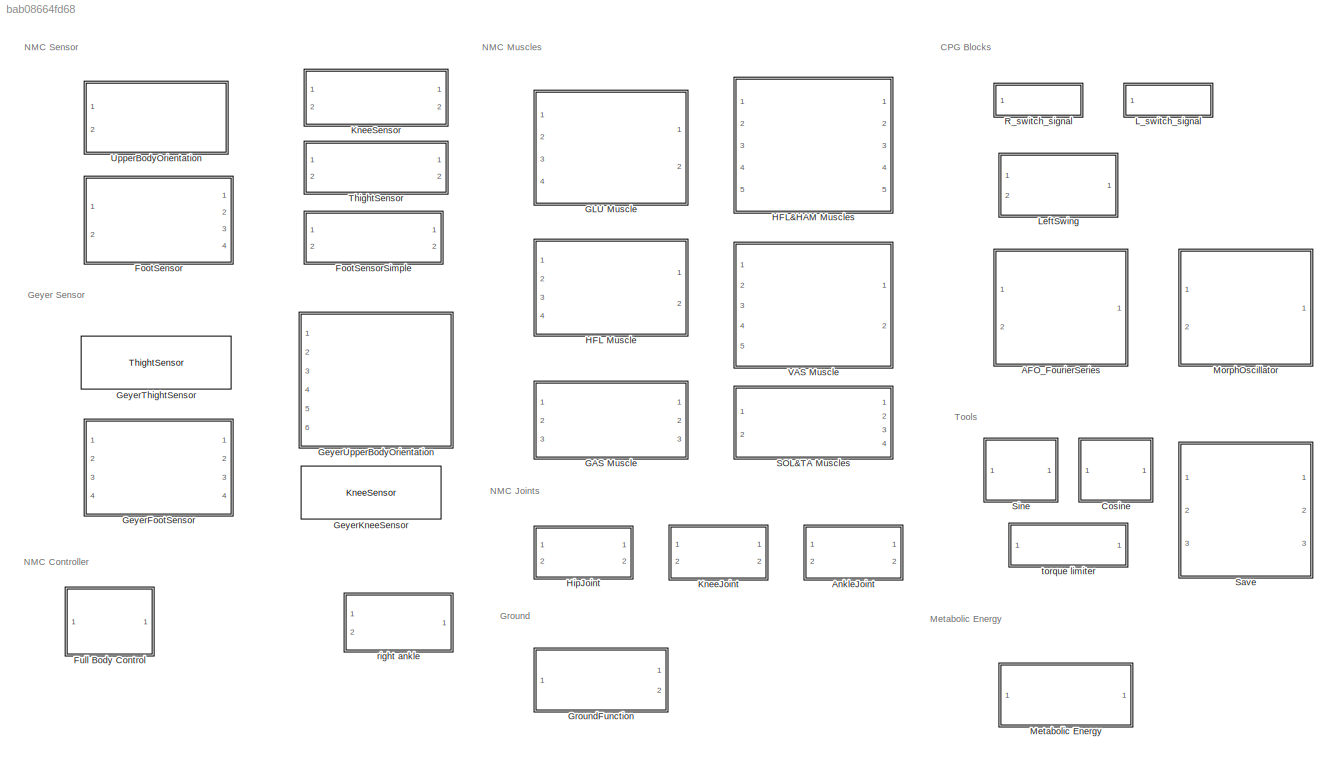
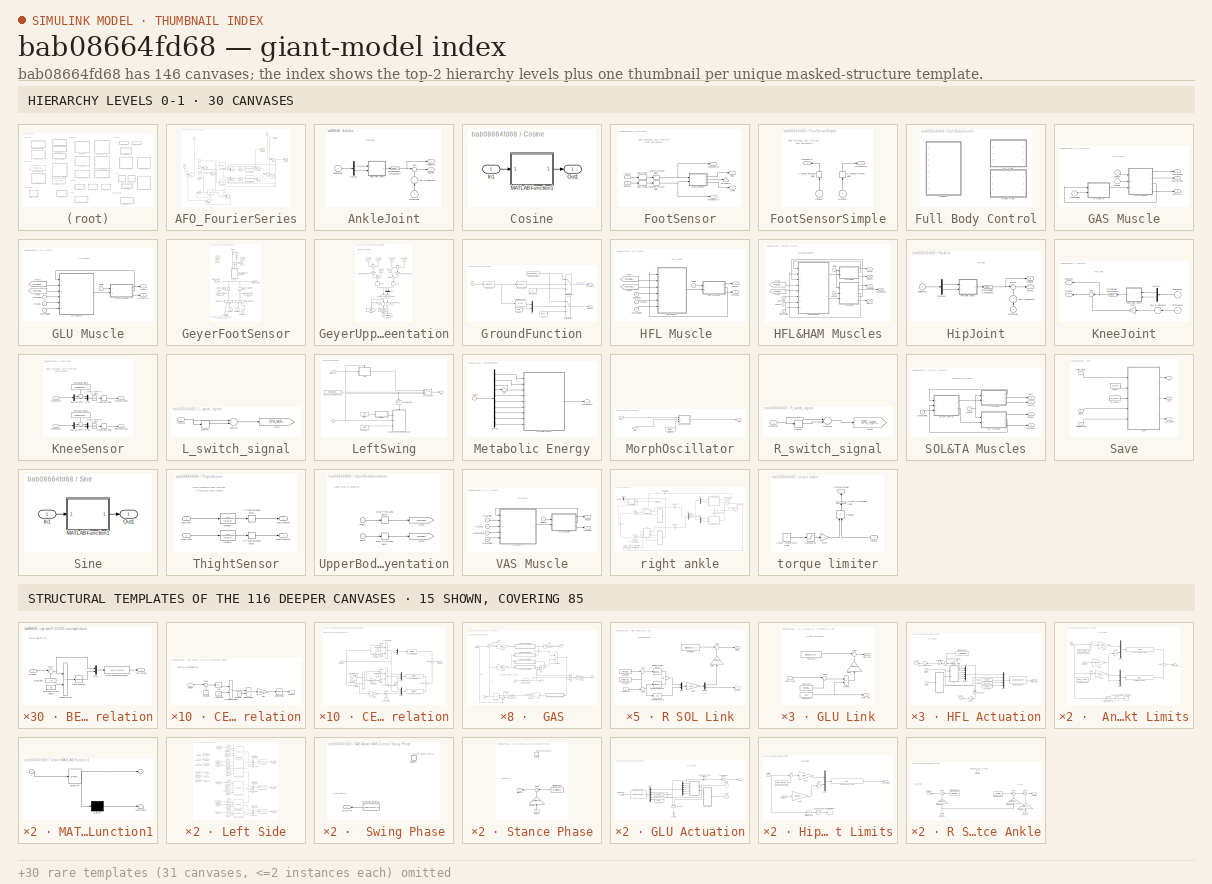
[diagram: thumbnail index - top-2 hierarchy levels (30 canvases) + 15 structural-template representatives of the remaining 116 canvases]
MODEL slx_bab08664fd68
KIND library
CONFIG AbsTol = auto
CONFIG EnableMultiTasking = on
CONFIG FixedStep = auto
CONFIG MaxStep = auto
CONFIG MinStep = auto
CONFIG RelTol = 1e-3
CONFIG SampleTimeConstraint = Unconstrained
CONFIG Solver = VariableStepAuto
CONFIG SolverName = VariableStepAuto
CONFIG StartTime = 0.0
CONFIG StopTime = 10.0
BLOCK [SubSystem] AFO_FourierSeries
  Ports = [2, 1]
  RequestExecContextInheritance = off
  Variant = off
BLOCK [Sum] AFO_FourierSeries/Add
  InputSameDT = off
  OutDataTypeStr = Inherit: Inherit via internal rule
  Ports = [2, 1]
  SaturateOnIntegerOverflow = off
BLOCK [Constant] AFO_FourierSeries/C
  Value = 0:1:AFOFS_DIM-1
BLOCK [Constant] AFO_FourierSeries/C1
BLOCK [Constant] AFO_FourierSeries/C3
  Value = 2*pi
BLOCK [Reference] AFO_FourierSeries/Cosine1  REF=cpg_lib/Cosine  (lib defined in slx_bab08664fd68)
  Ports = [1, 1]
  SourceBlock = cpg_lib/Cosine
  SourceType = SubSystem
BLOCK [Constant] AFO_FourierSeries/K
  Commented = on
  Value = -1
BLOCK [Product] AFO_FourierSeries/Product
  InputSameDT = off
  OutDataTypeStr = Inherit: Inherit via internal rule
  Ports = [2, 1]
  RndMeth = Floor
  SaturateOnIntegerOverflow = off
BLOCK [Product] AFO_FourierSeries/Product1
  InputSameDT = off
  Inputs = 3
  OutDataTypeStr = Inherit: Inherit via internal rule
  Ports = [3, 1]
  RndMeth = Floor
  SaturateOnIntegerOverflow = off
BLOCK [Product] AFO_FourierSeries/Product2
  InputSameDT = off
  Inputs = 3
  OutDataTypeStr = Inherit: Inherit via internal rule
  Ports = [3, 1]
  RndMeth = Floor
  SaturateOnIntegerOverflow = off
BLOCK [Product] AFO_FourierSeries/Product3
  InputSameDT = off
  OutDataTypeStr = Inherit: Inherit via internal rule
  Ports = [2, 1]
  RndMeth = Floor
  SaturateOnIntegerOverflow = off
BLOCK [Product] AFO_FourierSeries/Product4
  InputSameDT = off
  OutDataTypeStr = Inherit: Inherit via internal rule
  Ports = [2, 1]
  RndMeth = Floor
  SaturateOnIntegerOverflow = off
BLOCK [Product] AFO_FourierSeries/Product5
  Commented = on
  InputSameDT = off
  Inputs = 3
  OutDataTypeStr = Inherit: Inherit via internal rule
  Ports = [3, 1]
  RndMeth = Floor
  SaturateOnIntegerOverflow = off
BLOCK [Product] AFO_FourierSeries/Product6
  InputSameDT = off
  OutDataTypeStr = Inherit: Inherit via internal rule
  Ports = [2, 1]
  RndMeth = Floor
  SaturateOnIntegerOverflow = off
BLOCK [Product] AFO_FourierSeries/Product8
  InputSameDT = off
  OutDataTypeStr = Inherit: Inherit via internal rule
  Ports = [2, 1]
  RndMeth = Floor
  SaturateOnIntegerOverflow = off
BLOCK [Scope] AFO_FourierSeries/Scope1
  NumInputPorts = 1
  Ports = [1]
  ScopeSpecificationString = Simulink.scopes.TimeScopeBlockCfg('CurrentConfiguration', extmgr.ConfigurationSet(extmgr.Configuration('Core','General UI',true),extmgr.Configuration('Core','Source UI',true),extmgr.Configuration('Sources','WiredSimulink',true,'DataLoggingVariableName','ScopeData2'),extmgr.Configuration('Visuals','Time Domain',true,'SerializedDisplays',{struct('MinYLimReal','-0.02492','MaxYLimReal','0.03429','YLab...<+1762ch>
BLOCK [Scope] AFO_FourierSeries/Scope2
  NumInputPorts = 1
  Ports = [1]
  ScopeSpecificationString = Simulink.scopes.TimeScopeBlockCfg('CurrentConfiguration', extmgr.ConfigurationSet(extmgr.Configuration('Core','General UI',true),extmgr.Configuration('Core','Source UI',true),extmgr.Configuration('Sources','WiredSimulink',true,'DataLoggingVariableName','ScopeData3'),extmgr.Configuration('Visuals','Time Domain',true,'SerializedDisplays',{struct('MinYLimReal','-0.00257','MaxYLimReal','0.00104','YLab...<+1412ch>
BLOCK [Reference] AFO_FourierSeries/Sine  REF=cpg_lib/Sine  (lib defined in slx_bab08664fd68)
  Ports = [1, 1]
  SourceBlock = cpg_lib/Sine
  SourceType = SubSystem
BLOCK [Reference] AFO_FourierSeries/Sine1  REF=simulink/Lookup
Tables/Sine
  Commented = on
  Ports = [1, 1]
  SourceBlock = simulink/Lookup\nTables/Sine
  SourceType = Sine and Cosine
BLOCK [Sum] AFO_FourierSeries/Subtract
  InputSameDT = off
  Inputs = +-
  OutDataTypeStr = Inherit: Inherit via internal rule
  Ports = [2, 1]
  SaturateOnIntegerOverflow = off
BLOCK [Integrator] AFO_FourierSeries/alpha_c
  Ports = [1, 1]
BLOCK [Integrator] AFO_FourierSeries/beta_c
  Ports = [1, 1]
BLOCK [Sum] AFO_FourierSeries/error
  InputSameDT = off
  Inputs = +-
  OutDataTypeStr = Inherit: Inherit via internal rule
  Ports = [2, 1]
  SaturateOnIntegerOverflow = off
BLOCK [Inport] AFO_FourierSeries/freq
  IconDisplay = Port number
  Port = 2
BLOCK [Constant] AFO_FourierSeries/nu
  Value = 30
BLOCK [Integrator] AFO_FourierSeries/phi
  Ports = [1, 1]
BLOCK [Reference] AFO_FourierSeries/saveInMemory1  REF=cpg_lib/saveInMemory  (lib defined in slx_bab08664fd68)
  Ports = [1, 1]
  SourceBlock = cpg_lib/saveInMemory
  SourceType = SubSystem
BLOCK [Reference] AFO_FourierSeries/saveInMemory2  REF=cpg_lib/saveInMemory  (lib defined in slx_bab08664fd68)
  Ports = [1, 1]
  SourceBlock = cpg_lib/saveInMemory
  SourceType = SubSystem
BLOCK [Outport] AFO_FourierSeries/ylearn
  IconDisplay = Port number
BLOCK [Sum] AFO_FourierSeries/ylearned
  InputSameDT = off
  Inputs = +
  OutDataTypeStr = Inherit: Inherit via internal rule
  Ports = [1, 1]
  SaturateOnIntegerOverflow = off
BLOCK [Inport] AFO_FourierSeries/yteach
  IconDisplay = Port number
BLOCK [SubSystem] AnkleJoint
  Ports = [2, 2]
  RequestExecContextInheritance = off
  Variant = off
BLOCK [SubSystem] AnkleJoint/ Ankle Joint Limits
  Ports = [2, 1]
  RequestExecContextInheritance = off
  Variant = off
BLOCK [Gain] AnkleJoint/ Ankle Joint Limits/Gain1
  Gain = c_jointstop
  OutDataTypeStr = Inherit: Inherit via internal rule
  ParamDataTypeStr = Inherit: Inherit via internal rule
  SaturateOnIntegerOverflow = off
BLOCK [Gain] AnkleJoint/ Ankle Joint Limits/Gain2
  Gain = -1
  OutDataTypeStr = Inherit: Inherit via internal rule
  ParamDataTypeStr = Inherit: Inherit via internal rule
  SaturateOnIntegerOverflow = off
BLOCK [Gain] AnkleJoint/ Ankle Joint Limits/Gain3
  Gain = c_jointstop
  OutDataTypeStr = Inherit: Inherit via internal rule
  ParamDataTypeStr = Inherit: Inherit via internal rule
  SaturateOnIntegerOverflow = off
BLOCK [Gain] AnkleJoint/ Ankle Joint Limits/Gain4
  Gain = 1/w_max_jointstop
  OutDataTypeStr = Inherit: Inherit via internal rule
  ParamDataTypeStr = Inherit: Inherit via internal rule
  SaturateOnIntegerOverflow = off
BLOCK [Reference] AnkleJoint/ Ankle Joint Limits/Limit Ankle Range  REF=simulink/Logic and Bit
Operations/Interval Test
  Ports = [1, 1]
  SourceBlock = simulink/Logic and Bit\nOperations/Interval Test
  SourceType = Interval Test
BLOCK [Logic] AnkleJoint/ Ankle Joint Limits/Logical Operator3
  AllPortsSameDT = off
  Operator = NOT
  OutDataTypeStr = boolean
  Ports = [1, 1]
BLOCK [Outport] AnkleJoint/ Ankle Joint Limits/M_stop [Nm]
  IconDisplay = Port number
BLOCK [Mux] AnkleJoint/ Ankle Joint Limits/Mux1
  DisplayOption = bar
  Inputs = 2
  Ports = [2, 1]
BLOCK [Mux] AnkleJoint/ Ankle Joint Limits/Mux3
  DisplayOption = bar
  Inputs = 2
  Ports = [2, 1]
BLOCK [Fcn] AnkleJoint/ Ankle Joint Limits/Overextension Torque
  Expr = - u(1)  *  (1-u(2)) * (u(2)<1) * (u(1)>0)
BLOCK [Fcn] AnkleJoint/ Ankle Joint Limits/Overflexion Torque
  Expr = - u(1)  *  (1-u(2)) * (u(2)<1) * (u(1)<0)
BLOCK [Stop] AnkleJoint/ Ankle Joint Limits/Stop Simulation1
BLOCK [Sum] AnkleJoint/ Ankle Joint Limits/Sum
  IconShape = round
  InputSameDT = off
  Inputs = |+-
  OutDataTypeStr = Inherit: Inherit via internal rule
  Ports = [2, 1]
  SaturateOnIntegerOverflow = off
BLOCK [Sum] AnkleJoint/ Ankle Joint Limits/Sum1
  IconShape = round
  InputSameDT = off
  Inputs = |+-
  OutDataTypeStr = Inherit: Inherit via internal rule
  Ports = [2, 1]
  SaturateOnIntegerOverflow = off
BLOCK [Sum] AnkleJoint/ Ankle Joint Limits/Sum2
  IconShape = round
  InputSameDT = off
  OutDataTypeStr = Inherit: Inherit via internal rule
  Ports = [2, 1]
  SaturateOnIntegerOverflow = off
BLOCK [Inport] AnkleJoint/ Ankle Joint Limits/dphi [rad//s]
  IconDisplay = Port number
  Port = 2
BLOCK [Constant] AnkleJoint/ Ankle Joint Limits/overextension angle
  Value = phi12_UpLimit
BLOCK [Constant] AnkleJoint/ Ankle Joint Limits/overflexion angle
  Value = phi12_LowLimit
BLOCK [Inport] AnkleJoint/ Ankle Joint Limits/phi [rad]
  IconDisplay = Port number
BLOCK [Outport] AnkleJoint/AnkleStop
  IconDisplay = Port number
  Port = 2
BLOCK [Demux] AnkleJoint/Demux
  DisplayOption = bar
  Outputs = 2
  Ports = [1, 2]
BLOCK [Reference] AnkleJoint/GotoDisabler_Component1  REF=nmc/GotoDisabler_Component  (lib defined in slx_a1408701ce5b)
  Ports = [1, 1]
  SourceBlock = nmc/GotoDisabler_Component
BLOCK [Inport] AnkleJoint/PreTauAnkle
  IconDisplay = Port number
  Port = 2
BLOCK [Sum] AnkleJoint/Sum
  IconShape = round
  InputSameDT = off
  Inputs = |++
  OutDataTypeStr = Inherit: Inherit via internal rule
  Ports = [2, 1]
  SaturateOnIntegerOverflow = off
BLOCK [Sum] AnkleJoint/Sum of Elements
  InputSameDT = off
  Inputs = +
  OutDataTypeStr = Inherit: Inherit via internal rule
  Ports = [1, 1]
  SaturateOnIntegerOverflow = off
BLOCK [Outport] AnkleJoint/TauAnkle
  IconDisplay = Port number
BLOCK [Inport] AnkleJoint/phidphiAnkle
  IconDisplay = Port number
BLOCK [SubSystem] Cosine
  Ports = [1, 1]
  RequestExecContextInheritance = off
  Variant = off
BLOCK [Inport] Cosine/In1
  IconDisplay = Port number
BLOCK [SubSystem] Cosine/MATLAB Function1
  ErrorFcn = Stateflow.Translate.translate
  PermitHierarchicalResolution = ExplicitOnly
  Ports = [1, 1]
  RequestExecContextInheritance = off
  SFBlockType = MATLAB Function
  TreatAsAtomicUnit = on
  Variant = off
BLOCK [Demux] Cosine/MATLAB Function1/ Demux 
  Outputs = 1
  Ports = [1, 1]
BLOCK [S-Function] Cosine/MATLAB Function1/ SFunction 
  EnableBusSupport = off
  FunctionName = sf_sfun
  PortCounts = [1 2]
  Ports = [1, 2]
  SFcnIsStateOwnerBlock = off
  SFunctionDeploymentMode = off
  Tag = Stateflow S-Function cpg_lib 2
BLOCK [Terminator] Cosine/MATLAB Function1/ Terminator 
BLOCK [Inport] Cosine/MATLAB Function1/t
  IconDisplay = Port number
BLOCK [Outport] Cosine/MATLAB Function1/y
  IconDisplay = Port number
BLOCK [Outport] Cosine/Out1
  IconDisplay = Port number
BLOCK [SubSystem] FootSensor
  Ports = [2, 4]
  RequestExecContextInheritance = off
  Variant = off
BLOCK [DataTypeConversion] FootSensor/Data Type1
  OutDataTypeStr = double
  RndMeth = Floor
  SaturateOnIntegerOverflow = off
BLOCK [DataTypeConversion] FootSensor/Data Type3
  OutDataTypeStr = double
  RndMeth = Floor
  SaturateOnIntegerOverflow = off
BLOCK [TransportDelay] FootSensor/L Stance afferent delay
  DelayTime = MidDelay
  Ports = [1, 1]
BLOCK [Inport] FootSensor/LStance
  IconDisplay = Port number
BLOCK [Outport] FootSensor/LonR
  IconDisplay = Port number
  Port = 4
BLOCK [Outport] FootSensor/LstanceOut
  IconDisplay = Port number
BLOCK [TransportDelay] FootSensor/R Stance afferent delay
  DelayTime = MidDelay
  Ports = [1, 1]
BLOCK [Inport] FootSensor/RStance
  IconDisplay = Port number
  Port = 2
BLOCK [Outport] FootSensor/RonL
  IconDisplay = Port number
  Port = 3
BLOCK [Outport] FootSensor/RstanceOut
  IconDisplay = Port number
  Port = 2
BLOCK [Terminator] FootSensor/Terminator
BLOCK [SubSystem] FootSensor/cross_infulence
  Ports = [2, 3]
  RequestExecContextInheritance = off
  Variant = off
BLOCK [HitCross] FootSensor/cross_infulence/DSup ends
  HitCrossingDirection = falling
  HitCrossingOffset = 0.5
  Ports = [1, 1]
  ZeroCross = off
BLOCK [DataTypeConversion] FootSensor/cross_infulence/Data Type
  OutDataTypeStr = double
  RndMeth = Floor
  SaturateOnIntegerOverflow = off
BLOCK [DataTypeConversion] FootSensor/cross_infulence/Data Type1
  OutDataTypeStr = double
  RndMeth = Floor
  SaturateOnIntegerOverflow = off
BLOCK [DataTypeConversion] FootSensor/cross_infulence/Data Type2
  OutDataTypeStr = double
  RndMeth = Floor
  SaturateOnIntegerOverflow = off
BLOCK [DataTypeConversion] FootSensor/cross_infulence/Data Type3
  OutDataTypeStr = double
  RndMeth = Floor
  SaturateOnIntegerOverflow = off
BLOCK [Logic] FootSensor/cross_infulence/Double Support?
  AllPortsSameDT = off
  Ports = [2, 1]
BLOCK [Logic] FootSensor/cross_infulence/Double Support?1
  AllPortsSameDT = off
  Ports = [2, 1]
BLOCK [Logic] FootSensor/cross_infulence/Double Support?4
  AllPortsSameDT = off
  Ports = [2, 1]
BLOCK [Outport] FootSensor/cross_infulence/Flight
  IconDisplay = Port number
  OutDataTypeStr = double
  Port = 2
BLOCK [Logic] FootSensor/cross_infulence/Flight?
  AllPortsSameDT = off
  Operator = NOR
  Ports = [2, 1]
BLOCK [HitCross] FootSensor/cross_infulence/LLeg starts DSup
  HitCrossingDirection = rising
  HitCrossingOffset = 0.5
  Ports = [1, 1]
  ZeroCross = off
BLOCK [Inport] FootSensor/cross_infulence/LStance
  IconDisplay = Port number
  OutDataTypeStr = double
BLOCK [Outport] FootSensor/cross_infulence/LonR
  IconDisplay = Port number
  OutDataTypeStr = double
  Port = 3
BLOCK [Memory] FootSensor/cross_infulence/Memory
BLOCK [Memory] FootSensor/cross_infulence/Memory3
BLOCK [HitCross] FootSensor/cross_infulence/RLeg starts DSup
  HitCrossingDirection = rising
  HitCrossingOffset = 0.5
  Ports = [1, 1]
  ZeroCross = off
BLOCK [Inport] FootSensor/cross_infulence/RStance
  IconDisplay = Port number
  OutDataTypeStr = double
  Port = 2
BLOCK [Outport] FootSensor/cross_infulence/RonL
  IconDisplay = Port number
  OutDataTypeStr = double
BLOCK [Reference] FootSensor/cross_infulence/S-R Flip-Flop  REF=simulink_extras/Flip Flops/S-R
Flip-Flop
  Ports = [2, 2]
  SourceBlock = simulink_extras/Flip Flops/S-R\nFlip-Flop
  SourceType = SRFlipFlop
BLOCK [Reference] FootSensor/cross_infulence/S-R Flip-Flop1  REF=simulink_extras/Flip Flops/S-R
Flip-Flop
  Ports = [2, 2]
  SourceBlock = simulink_extras/Flip Flops/S-R\nFlip-Flop
  SourceType = SRFlipFlop
BLOCK [Terminator] FootSensor/cross_infulence/Terminator1
BLOCK [Terminator] FootSensor/cross_infulence/Terminator2
BLOCK [SubSystem] FootSensorSimple
  Ports = [2, 2]
  RequestExecContextInheritance = off
  Variant = off
BLOCK [TransportDelay] FootSensorSimple/L Stance afferent delay
  DelayTime = MidDelay
  Ports = [1, 1]
BLOCK [Inport] FootSensorSimple/LStance
  IconDisplay = Port number
BLOCK [Outport] FootSensorSimple/LstanceOut
  IconDisplay = Port number
BLOCK [TransportDelay] FootSensorSimple/R Stance afferent delay
  DelayTime = MidDelay
  Ports = [1, 1]
BLOCK [Inport] FootSensorSimple/RStance
  IconDisplay = Port number
  Port = 2
BLOCK [Outport] FootSensorSimple/RstanceOut
  IconDisplay = Port number
  Port = 2
BLOCK [SubSystem] Full Body Control
  Ports = []
  RequestExecContextInheritance = off
  Variant = off
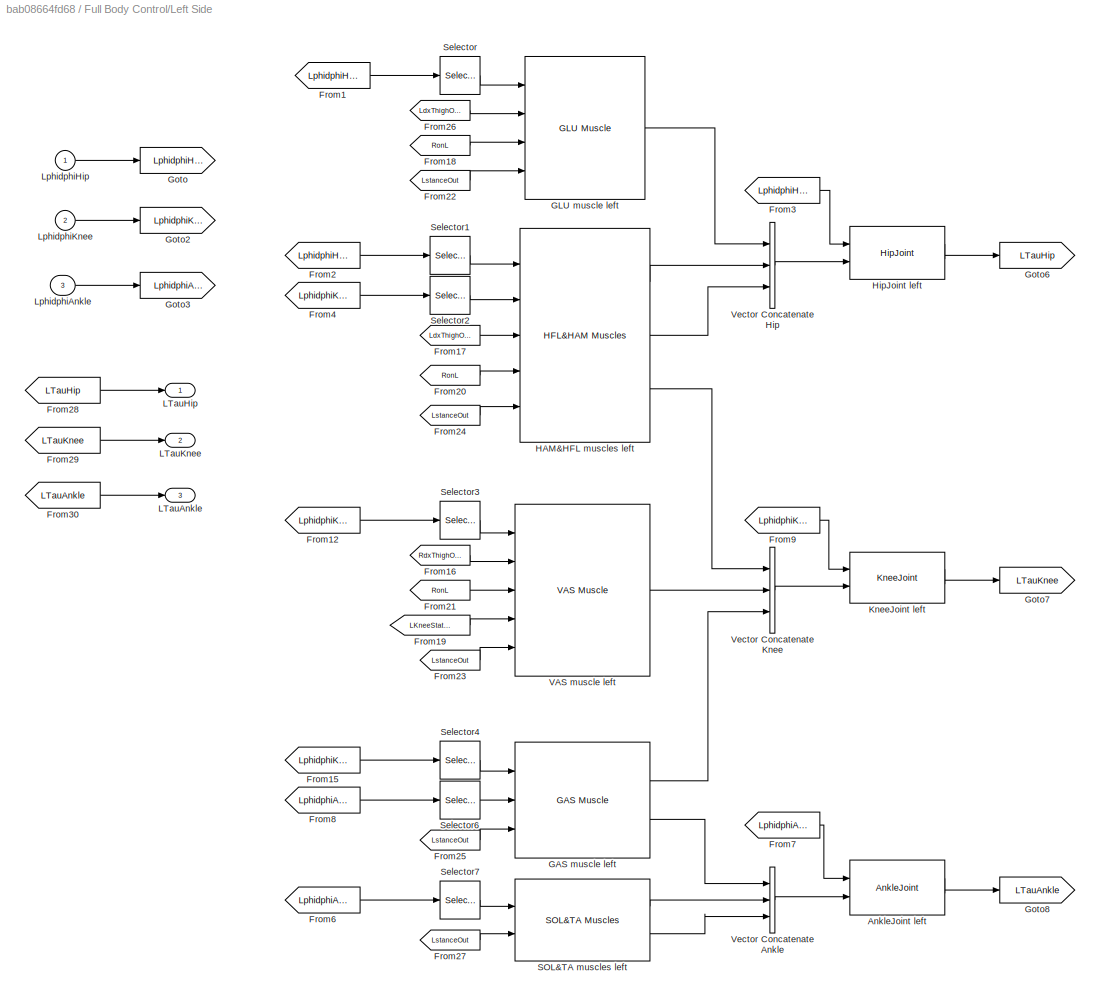
BLOCK [SubSystem] Full Body Control/Left Side
  Ports = [3, 3]
  RequestExecContextInheritance = off
  Variant = off
BLOCK [Reference] Full Body Control/Left Side/AnkleJoint left  REF=cpg_lib/AnkleJoint  (lib defined in slx_bab08664fd68)
  Ports = [2, 2]
  SourceBlock = cpg_lib/AnkleJoint
  SourceType = SubSystem
BLOCK [From] Full Body Control/Left Side/From1
  CloseFcn = tagdialog Close
  GotoTag = LphidphiHip
BLOCK [From] Full Body Control/Left Side/From12
  CloseFcn = tagdialog Close
  GotoTag = LphidphiKnee
BLOCK [From] Full Body Control/Left Side/From15
  CloseFcn = tagdialog Close
  GotoTag = LphidphiKnee
BLOCK [From] Full Body Control/Left Side/From16
  GotoTag = RdxThighOut
  TagVisibility = global
BLOCK [From] Full Body Control/Left Side/From17
  GotoTag = LdxThighOut
  TagVisibility = global
BLOCK [From] Full Body Control/Left Side/From18
  GotoTag = RonL
  TagVisibility = global
BLOCK [From] Full Body Control/Left Side/From19
  GotoTag = LKneeStateOut
  TagVisibility = global
BLOCK [From] Full Body Control/Left Side/From2
  CloseFcn = tagdialog Close
  GotoTag = LphidphiHip
BLOCK [From] Full Body Control/Left Side/From20
  GotoTag = RonL
  TagVisibility = global
BLOCK [From] Full Body Control/Left Side/From21
  GotoTag = RonL
  TagVisibility = global
BLOCK [From] Full Body Control/Left Side/From22
  GotoTag = LstanceOut
  TagVisibility = global
BLOCK [From] Full Body Control/Left Side/From23
  GotoTag = LstanceOut
  TagVisibility = global
BLOCK [From] Full Body Control/Left Side/From24
  GotoTag = LstanceOut
  TagVisibility = global
BLOCK [From] Full Body Control/Left Side/From25
  GotoTag = LstanceOut
  TagVisibility = global
BLOCK [From] Full Body Control/Left Side/From26
  GotoTag = LdxThighOut
  TagVisibility = global
BLOCK [From] Full Body Control/Left Side/From27
  GotoTag = LstanceOut
  TagVisibility = global
BLOCK [From] Full Body Control/Left Side/From28
  CloseFcn = tagdialog Close
  GotoTag = LTauHip
BLOCK [From] Full Body Control/Left Side/From29
  CloseFcn = tagdialog Close
  GotoTag = LTauKnee
BLOCK [From] Full Body Control/Left Side/From3
  CloseFcn = tagdialog Close
  GotoTag = LphidphiHip
BLOCK [From] Full Body Control/Left Side/From30
  CloseFcn = tagdialog Close
  GotoTag = LTauAnkle
BLOCK [From] Full Body Control/Left Side/From4
  CloseFcn = tagdialog Close
  GotoTag = LphidphiKnee
BLOCK [From] Full Body Control/Left Side/From6
  CloseFcn = tagdialog Close
  GotoTag = LphidphiAnkle
BLOCK [From] Full Body Control/Left Side/From7
  CloseFcn = tagdialog Close
  GotoTag = LphidphiAnkle
BLOCK [From] Full Body Control/Left Side/From8
  CloseFcn = tagdialog Close
  GotoTag = LphidphiAnkle
BLOCK [From] Full Body Control/Left Side/From9
  CloseFcn = tagdialog Close
  GotoTag = LphidphiKnee
BLOCK [Reference] Full Body Control/Left Side/GAS muscle left  REF=cpg_lib/GAS Muscle  (lib defined in slx_bab08664fd68)
  Ports = [3, 2]
  SourceBlock = cpg_lib/GAS Muscle
  SourceType = SubSystem
BLOCK [Reference] Full Body Control/Left Side/GLU muscle left  REF=cpg_lib/GLU Muscle  (lib defined in slx_bab08664fd68)
  Ports = [4, 1]
  SourceBlock = cpg_lib/GLU Muscle
  SourceType = SubSystem
BLOCK [Goto] Full Body Control/Left Side/Goto
  GotoTag = LphidphiHip
BLOCK [Goto] Full Body Control/Left Side/Goto2
  GotoTag = LphidphiKnee
BLOCK [Goto] Full Body Control/Left Side/Goto3
  GotoTag = LphidphiAnkle
BLOCK [Goto] Full Body Control/Left Side/Goto6
  GotoTag = LTauHip
BLOCK [Goto] Full Body Control/Left Side/Goto7
  GotoTag = LTauKnee
BLOCK [Goto] Full Body Control/Left Side/Goto8
  GotoTag = LTauAnkle
BLOCK [Reference] Full Body Control/Left Side/HAM&HFL muscles left  REF=cpg_lib/HFL&HAM Muscles  (lib defined in slx_bab08664fd68)
  Ports = [5, 3]
  SourceBlock = cpg_lib/HFL&HAM Muscles
  SourceType = SubSystem
BLOCK [Reference] Full Body Control/Left Side/HipJoint left  REF=cpg_lib/HipJoint  (lib defined in slx_bab08664fd68)
  Ports = [2, 2]
  SourceBlock = cpg_lib/HipJoint
  SourceType = SubSystem
BLOCK [Reference] Full Body Control/Left Side/KneeJoint left  REF=cpg_lib/KneeJoint  (lib defined in slx_bab08664fd68)
  Ports = [2, 2]
  SourceBlock = cpg_lib/KneeJoint
  SourceType = SubSystem
BLOCK [Outport] Full Body Control/Left Side/LTauAnkle
  IconDisplay = Port number
  Port = 3
BLOCK [Outport] Full Body Control/Left Side/LTauHip
  IconDisplay = Port number
BLOCK [Outport] Full Body Control/Left Side/LTauKnee
  IconDisplay = Port number
  Port = 2
BLOCK [Inport] Full Body Control/Left Side/LphidphiAnkle
  IconDisplay = Port number
  Port = 3
BLOCK [Inport] Full Body Control/Left Side/LphidphiHip
  IconDisplay = Port number
BLOCK [Inport] Full Body Control/Left Side/LphidphiKnee
  IconDisplay = Port number
  Port = 2
BLOCK [Reference] Full Body Control/Left Side/SOL&TA muscles left  REF=cpg_lib/SOL&TA Muscles  (lib defined in slx_bab08664fd68)
  Ports = [2, 2]
  SourceBlock = cpg_lib/SOL&TA Muscles
  SourceType = SubSystem
BLOCK [Selector] Full Body Control/Left Side/Selector
  IndexOptions = Index vector (dialog)
  Indices = [1 ]
  InputPortWidth = 2
  OutputSizes = 1
  Ports = [1, 1]
BLOCK [Selector] Full Body Control/Left Side/Selector1
  IndexOptions = Index vector (dialog)
  Indices = [1 ]
  InputPortWidth = 2
  OutputSizes = 1
  Ports = [1, 1]
BLOCK [Selector] Full Body Control/Left Side/Selector2
  IndexOptions = Index vector (dialog)
  Indices = [1 ]
  InputPortWidth = 2
  OutputSizes = 1
  Ports = [1, 1]
BLOCK [Selector] Full Body Control/Left Side/Selector3
  IndexOptions = Index vector (dialog)
  Indices = [1 ]
  InputPortWidth = 2
  OutputSizes = 1
  Ports = [1, 1]
BLOCK [Selector] Full Body Control/Left Side/Selector4
  IndexOptions = Index vector (dialog)
  Indices = [1 ]
  InputPortWidth = 2
  OutputSizes = 1
  Ports = [1, 1]
BLOCK [Selector] Full Body Control/Left Side/Selector6
  IndexOptions = Index vector (dialog)
  Indices = [1 ]
  InputPortWidth = 2
  OutputSizes = 1
  Ports = [1, 1]
BLOCK [Selector] Full Body Control/Left Side/Selector7
  IndexOptions = Index vector (dialog)
  Indices = [1 ]
  InputPortWidth = 2
  OutputSizes = 1
  Ports = [1, 1]
BLOCK [Reference] Full Body Control/Left Side/VAS muscle left  REF=cpg_lib/VAS Muscle  (lib defined in slx_bab08664fd68)
  Ports = [5, 1]
  SourceBlock = cpg_lib/VAS Muscle
  SourceType = SubSystem
BLOCK [Concatenate] Full Body Control/Left Side/Vector ConcatenateAnkle
  NumInputs = 3
  Ports = [3, 1]
BLOCK [Concatenate] Full Body Control/Left Side/Vector ConcatenateHip
  NumInputs = 3
  Ports = [3, 1]
BLOCK [Concatenate] Full Body Control/Left Side/Vector ConcatenateKnee
  NumInputs = 3
  Ports = [3, 1]
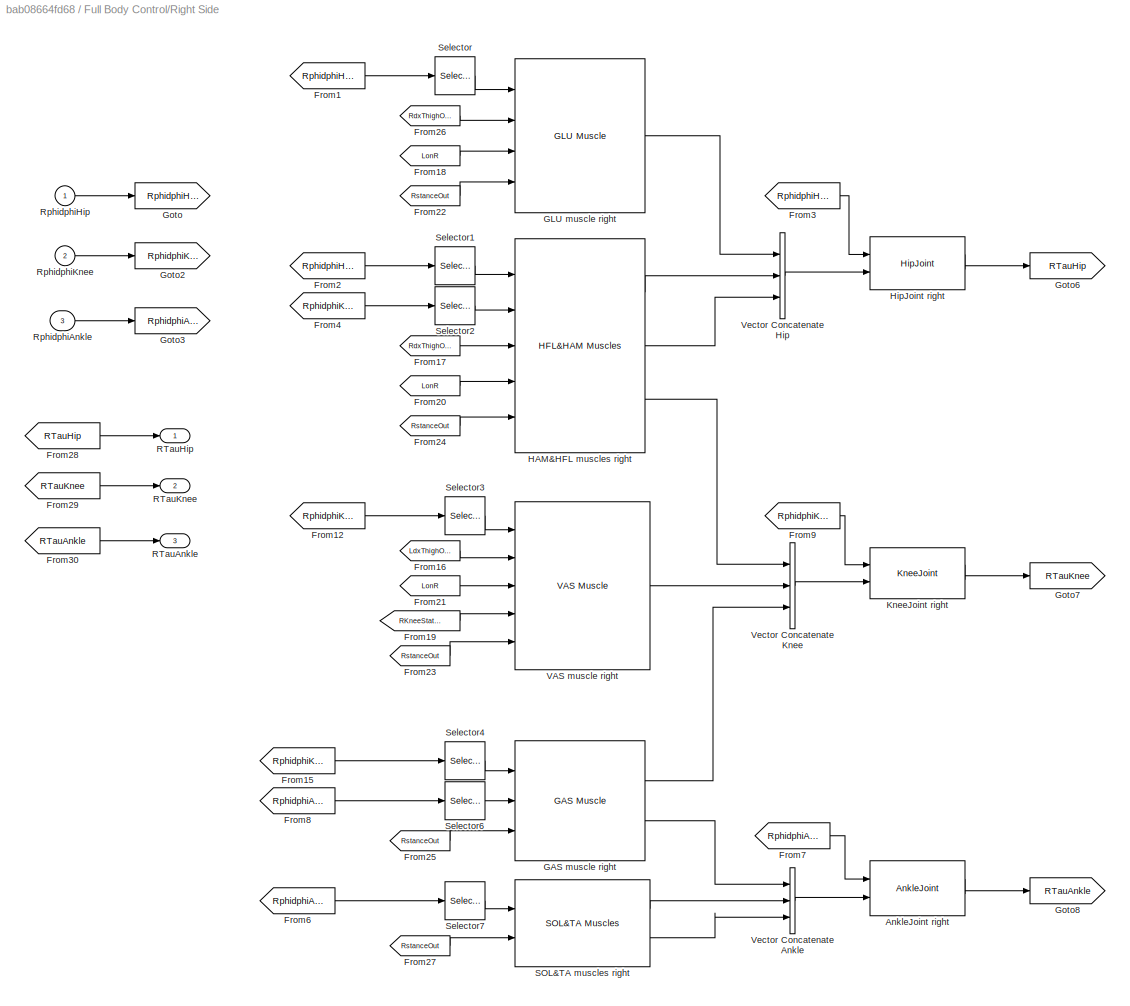
BLOCK [SubSystem] Full Body Control/Right Side
  Ports = [3, 3]
  RequestExecContextInheritance = off
  Variant = off
BLOCK [Reference] Full Body Control/Right Side/AnkleJoint right  REF=cpg_lib/AnkleJoint  (lib defined in slx_bab08664fd68)
  Ports = [2, 2]
  SourceBlock = cpg_lib/AnkleJoint
  SourceType = SubSystem
BLOCK [From] Full Body Control/Right Side/From1
  CloseFcn = tagdialog Close
  GotoTag = RphidphiHip
BLOCK [From] Full Body Control/Right Side/From12
  CloseFcn = tagdialog Close
  GotoTag = RphidphiKnee
BLOCK [From] Full Body Control/Right Side/From15
  CloseFcn = tagdialog Close
  GotoTag = RphidphiKnee
BLOCK [From] Full Body Control/Right Side/From16
  GotoTag = LdxThighOut
  TagVisibility = global
BLOCK [From] Full Body Control/Right Side/From17
  GotoTag = RdxThighOut
  TagVisibility = global
BLOCK [From] Full Body Control/Right Side/From18
  GotoTag = LonR
  TagVisibility = global
BLOCK [From] Full Body Control/Right Side/From19
  GotoTag = RKneeStateOut
  TagVisibility = global
BLOCK [From] Full Body Control/Right Side/From2
  CloseFcn = tagdialog Close
  GotoTag = RphidphiHip
BLOCK [From] Full Body Control/Right Side/From20
  GotoTag = LonR
  TagVisibility = global
BLOCK [From] Full Body Control/Right Side/From21
  GotoTag = LonR
  TagVisibility = global
BLOCK [From] Full Body Control/Right Side/From22
  GotoTag = RstanceOut
  TagVisibility = global
BLOCK [From] Full Body Control/Right Side/From23
  GotoTag = RstanceOut
  TagVisibility = global
BLOCK [From] Full Body Control/Right Side/From24
  GotoTag = RstanceOut
  TagVisibility = global
BLOCK [From] Full Body Control/Right Side/From25
  GotoTag = RstanceOut
  TagVisibility = global
BLOCK [From] Full Body Control/Right Side/From26
  GotoTag = RdxThighOut
  TagVisibility = global
BLOCK [From] Full Body Control/Right Side/From27
  GotoTag = RstanceOut
  TagVisibility = global
BLOCK [From] Full Body Control/Right Side/From28
  CloseFcn = tagdialog Close
  GotoTag = RTauHip
BLOCK [From] Full Body Control/Right Side/From29
  CloseFcn = tagdialog Close
  GotoTag = RTauKnee
BLOCK [From] Full Body Control/Right Side/From3
  CloseFcn = tagdialog Close
  GotoTag = RphidphiHip
BLOCK [From] Full Body Control/Right Side/From30
  CloseFcn = tagdialog Close
  GotoTag = RTauAnkle
BLOCK [From] Full Body Control/Right Side/From4
  CloseFcn = tagdialog Close
  GotoTag = RphidphiKnee
BLOCK [From] Full Body Control/Right Side/From6
  CloseFcn = tagdialog Close
  GotoTag = RphidphiAnkle
BLOCK [From] Full Body Control/Right Side/From7
  CloseFcn = tagdialog Close
  GotoTag = RphidphiAnkle
BLOCK [From] Full Body Control/Right Side/From8
  CloseFcn = tagdialog Close
  GotoTag = RphidphiAnkle
BLOCK [From] Full Body Control/Right Side/From9
  CloseFcn = tagdialog Close
  GotoTag = RphidphiKnee
BLOCK [Reference] Full Body Control/Right Side/GAS muscle right  REF=cpg_lib/GAS Muscle  (lib defined in slx_bab08664fd68)
  Ports = [3, 2]
  SourceBlock = cpg_lib/GAS Muscle
  SourceType = SubSystem
BLOCK [Reference] Full Body Control/Right Side/GLU muscle right  REF=cpg_lib/GLU Muscle  (lib defined in slx_bab08664fd68)
  Ports = [4, 1]
  SourceBlock = cpg_lib/GLU Muscle
  SourceType = SubSystem
BLOCK [Goto] Full Body Control/Right Side/Goto
  GotoTag = RphidphiHip
BLOCK [Goto] Full Body Control/Right Side/Goto2
  GotoTag = RphidphiKnee
BLOCK [Goto] Full Body Control/Right Side/Goto3
  GotoTag = RphidphiAnkle
BLOCK [Goto] Full Body Control/Right Side/Goto6
  GotoTag = RTauHip
BLOCK [Goto] Full Body Control/Right Side/Goto7
  GotoTag = RTauKnee
BLOCK [Goto] Full Body Control/Right Side/Goto8
  GotoTag = RTauAnkle
BLOCK [Reference] Full Body Control/Right Side/HAM&HFL muscles right  REF=cpg_lib/HFL&HAM Muscles  (lib defined in slx_bab08664fd68)
  Ports = [5, 3]
  SourceBlock = cpg_lib/HFL&HAM Muscles
  SourceType = SubSystem
BLOCK [Reference] Full Body Control/Right Side/HipJoint right  REF=cpg_lib/HipJoint  (lib defined in slx_bab08664fd68)
  Ports = [2, 2]
  SourceBlock = cpg_lib/HipJoint
  SourceType = SubSystem
BLOCK [Reference] Full Body Control/Right Side/KneeJoint right  REF=cpg_lib/KneeJoint  (lib defined in slx_bab08664fd68)
  Ports = [2, 2]
  SourceBlock = cpg_lib/KneeJoint
  SourceType = SubSystem
BLOCK [Outport] Full Body Control/Right Side/RTauAnkle
  IconDisplay = Port number
  Port = 3
BLOCK [Outport] Full Body Control/Right Side/RTauHip
  IconDisplay = Port number
BLOCK [Outport] Full Body Control/Right Side/RTauKnee
  IconDisplay = Port number
  Port = 2
BLOCK [Inport] Full Body Control/Right Side/RphidphiAnkle
  IconDisplay = Port number
  Port = 3
BLOCK [Inport] Full Body Control/Right Side/RphidphiHip
  IconDisplay = Port number
BLOCK [Inport] Full Body Control/Right Side/RphidphiKnee
  IconDisplay = Port number
  Port = 2
BLOCK [Reference] Full Body Control/Right Side/SOL&TA muscles right  REF=cpg_lib/SOL&TA Muscles  (lib defined in slx_bab08664fd68)
  Ports = [2, 2]
  SourceBlock = cpg_lib/SOL&TA Muscles
  SourceType = SubSystem
BLOCK [Selector] Full Body Control/Right Side/Selector
  IndexOptions = Index vector (dialog)
  Indices = [1 ]
  InputPortWidth = 2
  OutputSizes = 1
  Ports = [1, 1]
BLOCK [Selector] Full Body Control/Right Side/Selector1
  IndexOptions = Index vector (dialog)
  Indices = [1 ]
  InputPortWidth = 2
  OutputSizes = 1
  Ports = [1, 1]
BLOCK [Selector] Full Body Control/Right Side/Selector2
  IndexOptions = Index vector (dialog)
  Indices = [1 ]
  InputPortWidth = 2
  OutputSizes = 1
  Ports = [1, 1]
BLOCK [Selector] Full Body Control/Right Side/Selector3
  IndexOptions = Index vector (dialog)
  Indices = [1 ]
  InputPortWidth = 2
  OutputSizes = 1
  Ports = [1, 1]
BLOCK [Selector] Full Body Control/Right Side/Selector4
  IndexOptions = Index vector (dialog)
  Indices = [1 ]
  InputPortWidth = 2
  OutputSizes = 1
  Ports = [1, 1]
BLOCK [Selector] Full Body Control/Right Side/Selector6
  IndexOptions = Index vector (dialog)
  Indices = [1 ]
  InputPortWidth = 2
  OutputSizes = 1
  Ports = [1, 1]
BLOCK [Selector] Full Body Control/Right Side/Selector7
  IndexOptions = Index vector (dialog)
  Indices = [1 ]
  InputPortWidth = 2
  OutputSizes = 1
  Ports = [1, 1]
BLOCK [Reference] Full Body Control/Right Side/VAS muscle right  REF=cpg_lib/VAS Muscle  (lib defined in slx_bab08664fd68)
  Ports = [5, 1]
  SourceBlock = cpg_lib/VAS Muscle
  SourceType = SubSystem
BLOCK [Concatenate] Full Body Control/Right Side/Vector ConcatenateAnkle
  NumInputs = 3
  Ports = [3, 1]
BLOCK [Concatenate] Full Body Control/Right Side/Vector ConcatenateHip
  NumInputs = 3
  Ports = [3, 1]
BLOCK [Concatenate] Full Body Control/Right Side/Vector ConcatenateKnee
  NumInputs = 3
  Ports = [3, 1]
BLOCK [SubSystem] Full Body Control/Sensors
  Ports = [8]
  RequestExecContextInheritance = off
  Variant = off
BLOCK [Reference] Full Body Control/Sensors/FootSensor  REF=cpg_lib/FootSensor  (lib defined in slx_bab08664fd68)
  Ports = [2, 4]
  SourceBlock = cpg_lib/FootSensor
  SourceType = SubSystem
BLOCK [Goto] Full Body Control/Sensors/Goto10
  GotoTag = RonL
  TagVisibility = global
BLOCK [Goto] Full Body Control/Sensors/Goto3
  GotoTag = RdxThighOut
  TagVisibility = global
BLOCK [Goto] Full Body Control/Sensors/Goto4
  GotoTag = LdxThighOut
  TagVisibility = global
BLOCK [Goto] Full Body Control/Sensors/Goto5
  GotoTag = RKneeStateOut
  TagVisibility = global
BLOCK [Goto] Full Body Control/Sensors/Goto6
  GotoTag = LKneeStateOut
  TagVisibility = global
BLOCK [Goto] Full Body Control/Sensors/Goto7
  GotoTag = LstanceOut
  TagVisibility = global
BLOCK [Goto] Full Body Control/Sensors/Goto8
  GotoTag = RstanceOut
  TagVisibility = global
BLOCK [Goto] Full Body Control/Sensors/Goto9
  GotoTag = LonR
  TagVisibility = global
BLOCK [Reference] Full Body Control/Sensors/KneeSensor  REF=cpg_lib/KneeSensor  (lib defined in slx_bab08664fd68)
  Ports = [2, 2]
  SourceBlock = cpg_lib/KneeSensor
  SourceType = SubSystem
BLOCK [Inport] Full Body Control/Sensors/LKneeState
  IconDisplay = Port number
  Port = 5
BLOCK [Inport] Full Body Control/Sensors/LStance
  IconDisplay = Port number
  Port = 7
BLOCK [Inport] Full Body Control/Sensors/LdxThigh
  IconDisplay = Port number
  Port = 3
BLOCK [Inport] Full Body Control/Sensors/RKneeState
  IconDisplay = Port number
  Port = 6
BLOCK [Inport] Full Body Control/Sensors/RStance
  IconDisplay = Port number
  Port = 8
BLOCK [Inport] Full Body Control/Sensors/RdxThigh
  IconDisplay = Port number
  Port = 4
BLOCK [Inport] Full Body Control/Sensors/Theta
  IconDisplay = Port number
BLOCK [Reference] Full Body Control/Sensors/ThightSensor  REF=cpg_lib/ThightSensor  (lib defined in slx_bab08664fd68)
  Ports = [2, 2]
  SourceBlock = cpg_lib/ThightSensor
  SourceType = SubSystem
BLOCK [Reference] Full Body Control/Sensors/UpperBodyOrientation  REF=cpg_lib/UpperBodyOrientation  (lib defined in slx_bab08664fd68)
  Ports = [2]
  SourceBlock = cpg_lib/UpperBodyOrientation
  SourceType = SubSystem
BLOCK [Inport] Full Body Control/Sensors/dTheta
  IconDisplay = Port number
  Port = 2
BLOCK [SubSystem] GAS Muscle
  Ports = [3, 3]
  RequestExecContextInheritance = off
  Variant = off
BLOCK [SubSystem] GAS Muscle/GAS Actuation 
  Ports = [3, 4]
  RequestExecContextInheritance = off
  Variant = off
BLOCK [SubSystem] GAS Muscle/GAS Actuation / GAS
  Ports = [2, 6]
  RequestExecContextInheritance = off
  Variant = off
BLOCK [Gain] GAS Muscle/GAS Actuation / GAS Golgi Tendon Organs
  OutDataTypeStr = Inherit: Inherit via internal rule
  ParamDataTypeStr = Inherit: Inherit via internal rule
  SaturateOnIntegerOverflow = off
BLOCK [Product] GAS Muscle/GAS Actuation / GAS/1
  Inputs = **
  Ports = [2, 1]
  RndMeth = Floor
BLOCK [Gain] GAS Muscle/GAS Actuation / GAS/1//lslack
  Gain = 1/lslackGAS
BLOCK [Product] GAS Muscle/GAS Actuation / GAS/2
  Inputs = ***
  Ports = [3, 1]
  RndMeth = Floor
BLOCK [Outport] GAS Muscle/GAS Actuation / GAS/A
  IconDisplay = Port number
  InitialOutput = 0
  Port = 5
BLOCK [SubSystem] GAS Muscle/GAS Actuation / GAS/BE force-length relation
  Ports = [1, 1]
  RequestExecContextInheritance = off
  Variant = off
BLOCK [Constant] GAS Muscle/GAS Actuation / GAS/BE force-length relation/Constant1
  Value = 1-w
BLOCK [Math] GAS Muscle/GAS Actuation / GAS/BE force-length relation/Math Function
  Operator = square
  Ports = [1, 1]
BLOCK [Mux] GAS Muscle/GAS Actuation / GAS/BE force-length relation/Mux1
  DisplayOption = bar
  Inputs = 2
  Ports = [2, 1]
BLOCK [Sum] GAS Muscle/GAS Actuation / GAS/BE force-length relation/Sum4
  IconShape = round
  Inputs = |+-
  Ports = [2, 1]
BLOCK [Outport] GAS Muscle/GAS Actuation / GAS/BE force-length relation/fbe [Fmax]
  IconDisplay = Port number
BLOCK [Fcn] GAS Muscle/GAS Actuation / GAS/BE force-length relation/force above slack length
  Expr = u(2)*(u(1)<0)
BLOCK [Inport] GAS Muscle/GAS Actuation / GAS/BE force-length relation/lce [lopt]
  IconDisplay = Port number
BLOCK [Constant] GAS Muscle/GAS Actuation / GAS/BE force-length relation/reference strain [lslack]
  Value = w/2
BLOCK [Product] GAS Muscle/GAS Actuation / GAS/BE force-length relation/relative strain
  InputSameDT = off
  Inputs = */
  OutDataTypeStr = Inherit: Inherit via internal rule
  Ports = [2, 1]
  RndMeth = Floor
  SaturateOnIntegerOverflow = off
BLOCK [SubSystem] GAS Muscle/GAS Actuation / GAS/CE force-length relation
  Ports = [1, 1]
  RequestExecContextInheritance = off
  Variant = off
BLOCK [Abs] GAS Muscle/GAS Actuation / GAS/CE force-length relation/Abs
  SaturateOnIntegerOverflow = off
BLOCK [Constant] GAS Muscle/GAS Actuation / GAS/CE force-length relation/Constant1
BLOCK [Constant] GAS Muscle/GAS Actuation / GAS/CE force-length relation/Constant2
  Value = 3
BLOCK [Gain] GAS Muscle/GAS Actuation / GAS/CE force-length relation/Gain
  Gain = log(c)
  OutDataTypeStr = Inherit: Inherit via internal rule
  ParamDataTypeStr = Inherit: Inherit via internal rule
  SaturateOnIntegerOverflow = off
BLOCK [Math] GAS Muscle/GAS Actuation / GAS/CE force-length relation/Math Function
  Ports = [1, 1]
BLOCK [Math] GAS Muscle/GAS Actuation / GAS/CE force-length relation/Math Function1
  Operator = pow
  Ports = [2, 1]
BLOCK [Sum] GAS Muscle/GAS Actuation / GAS/CE force-length relation/Sum4
  IconShape = round
  Inputs = |+-
  Ports = [2, 1]
BLOCK [Outport] GAS Muscle/GAS Actuation / GAS/CE force-length relation/fce [Fmax]
  IconDisplay = Port number
BLOCK [Inport] GAS Muscle/GAS Actuation / GAS/CE force-length relation/lce [lopt]
  IconDisplay = Port number
BLOCK [Product] GAS Muscle/GAS Actuation / GAS/CE force-length relation/normalized position
  InputSameDT = off
  Inputs = */
  OutDataTypeStr = Inherit: Inherit via internal rule
  Ports = [2, 1]
  RndMeth = Floor
  SaturateOnIntegerOverflow = off
BLOCK [Constant] GAS Muscle/GAS Actuation / GAS/CE force-length relation/relative width
  Value = w
BLOCK [SubSystem] GAS Muscle/GAS Actuation / GAS/CE inverse force-velocity relation
  Ports = [1, 1]
  RequestExecContextInheritance = off
  Variant = off
BLOCK [Product] GAS Muscle/GAS Actuation / GAS/CE inverse force-velocity relation/1
  InputSameDT = off
  Inputs = /*
  OutDataTypeStr = Inherit: Inherit via internal rule
  Ports = [2, 1]
  RndMeth = Floor
  SaturateOnIntegerOverflow = off
BLOCK [Constant] GAS Muscle/GAS Actuation / GAS/CE inverse force-velocity relation/Constant1
BLOCK [Constant] GAS Muscle/GAS Actuation / GAS/CE inverse force-velocity relation/Constant2
  Value = N
BLOCK [Constant] GAS Muscle/GAS Actuation / GAS/CE inverse force-velocity relation/Constant3
BLOCK [Constant] GAS Muscle/GAS Actuation / GAS/CE inverse force-velocity relation/Constant4
BLOCK [Constant] GAS Muscle/GAS Actuation / GAS/CE inverse force-velocity relation/Constant5
  Value = N
BLOCK [Constant] GAS Muscle/GAS Actuation / GAS/CE inverse force-velocity relation/Constant8
BLOCK [Gain] GAS Muscle/GAS Actuation / GAS/CE inverse force-velocity relation/Curvature
  Gain = K
BLOCK [Gain] GAS Muscle/GAS Actuation / GAS/CE inverse force-velocity relation/Curvature1
  Gain = 7.56*K
BLOCK [Inport] GAS Muscle/GAS Actuation / GAS/CE inverse force-velocity relation/Fv[Fmax]
  IconDisplay = Port number
BLOCK [Mux] GAS Muscle/GAS Actuation / GAS/CE inverse force-velocity relation/Mux
  DisplayOption = bar
  Inputs = 2
  Ports = [2, 1]
BLOCK [Mux] GAS Muscle/GAS Actuation / GAS/CE inverse force-velocity relation/Mux1
  DisplayOption = bar
  Inputs = 3
  Ports = [3, 1]
BLOCK [Mux] GAS Muscle/GAS Actuation / GAS/CE inverse force-velocity relation/Mux2
  DisplayOption = bar
  Inputs = 3
  Ports = [3, 1]
BLOCK [Gain] GAS Muscle/GAS Actuation / GAS/CE inverse force-velocity relation/Slope
  Gain = 1e-2
BLOCK [Sum] GAS Muscle/GAS Actuation / GAS/CE inverse force-velocity relation/Sum1
  IconShape = round
  Inputs = |++
  Ports = [2, 1]
BLOCK [Sum] GAS Muscle/GAS Actuation / GAS/CE inverse force-velocity relation/Sum2
  IconShape = round
  Ports = [2, 1]
BLOCK [Sum] GAS Muscle/GAS Actuation / GAS/CE inverse force-velocity relation/Sum3
  IconShape = round
  Inputs = ++|
  Ports = [2, 1]
BLOCK [Sum] GAS Muscle/GAS Actuation / GAS/CE inverse force-velocity relation/Sum4
  IconShape = round
  Inputs = |+-
  Ports = [2, 1]
BLOCK [Sum] GAS Muscle/GAS Actuation / GAS/CE inverse force-velocity relation/Sum5
  IconShape = round
  Inputs = |-+
  Ports = [2, 1]
BLOCK [Sum] GAS Muscle/GAS Actuation / GAS/CE inverse force-velocity relation/Sum6
  IconShape = round
  Inputs = -+|
  Ports = [2, 1]
BLOCK [Sum] GAS Muscle/GAS Actuation / GAS/CE inverse force-velocity relation/Sum7
  IconShape = round
  Inputs = |++
  Ports = [2, 1]
BLOCK [Sum] GAS Muscle/GAS Actuation / GAS/CE inverse force-velocity relation/Sum8
  IconShape = round
  Inputs = +-|
  Ports = [2, 1]
BLOCK [Sum] GAS Muscle/GAS Actuation / GAS/CE inverse force-velocity relation/Sum9
  IconShape = round
  Ports = [2, 1]
BLOCK [Fcn] GAS Muscle/GAS Actuation / GAS/CE inverse force-velocity relation/concentric branch
  Expr = u(1) * (u(2)<=1)
BLOCK [Fcn] GAS Muscle/GAS Actuation / GAS/CE inverse force-velocity relation/excentric branch
  Expr = u(2) * (u(1)>1)*(u(1)<=u(3))
BLOCK [Fcn] GAS Muscle/GAS Actuation / GAS/CE inverse force-velocity relation/excentric overshoot
  Expr = u(3) * (u(2)>u(1))
BLOCK [Outport] GAS Muscle/GAS Actuation / GAS/CE inverse force-velocity relation/v[vmax]
  IconDisplay = Port number
BLOCK [Product] GAS Muscle/GAS Actuation / GAS/CE inverse force-velocity relation/v_concentric
  InputSameDT = off
  Inputs = */
  OutDataTypeStr = Inherit: Inherit via internal rule
  Ports = [2, 1]
  RndMeth = Floor
  SaturateOnIntegerOverflow = off
BLOCK [Product] GAS Muscle/GAS Actuation / GAS/CE inverse force-velocity relation/v_excentric <N
  InputSameDT = off
  Inputs = */
  OutDataTypeStr = Inherit: Inherit via internal rule
  Ports = [2, 1]
  RndMeth = Floor
  SaturateOnIntegerOverflow = off
BLOCK [Constant] GAS Muscle/GAS Actuation / GAS/Constant
  Value = lslackGAS
BLOCK [Reference] GAS Muscle/GAS Actuation / GAS/ECC TransferFcn  REF=simulink_extras/Additional
Linear/Transfer Fcn
(with initial outputs)
  AttributesFormatString = pre-activation: %<Y0>
  Ports = [1, 1]
  SourceBlock = simulink_extras/Additional\nLinear/Transfer Fcn\n(with initial outputs)
  SourceType = Transfer Function with Initial Outputs
BLOCK [Outport] GAS Muscle/GAS Actuation / GAS/Fac
  IconDisplay = Port number
  InitialOutput = 0
  Port = 6
BLOCK [Gain] GAS Muscle/GAS Actuation / GAS/Fmax
  Gain = FmaxGAS
BLOCK [Gain] GAS Muscle/GAS Actuation / GAS/Fmax1
  Gain = FmaxGAS
BLOCK [Outport] GAS Muscle/GAS Actuation / GAS/Fmtc
  IconDisplay = Port number
  InitialOutput = 0
BLOCK [Product] GAS Muscle/GAS Actuation / GAS/Fv = Fse // (A*Fce)
  Inputs = */
  Ports = [2, 1]
  RndMeth = Floor
BLOCK [Integrator] GAS Muscle/GAS Actuation / GAS/Integrator
  InitialConditionSource = external
  LowerSaturationLimit = 0.05
  Ports = [2, 1]
BLOCK [Outport] GAS Muscle/GAS Actuation / GAS/Lce
  IconDisplay = Port number
  InitialOutput = 0
  Port = 2
BLOCK [Outport] GAS Muscle/GAS Actuation / GAS/Lse
  IconDisplay = Port number
  InitialOutput = 0
  Port = 4
BLOCK [SubSystem] GAS Muscle/GAS Actuation / GAS/PE force-length relation
  Ports = [1, 1]
  RequestExecContextInheritance = off
  Variant = off
BLOCK [Constant] GAS Muscle/GAS Actuation / GAS/PE force-length relation/Constant3
BLOCK [Math] GAS Muscle/GAS Actuation / GAS/PE force-length relation/Math Function2
  Operator = square
  Ports = [1, 1]
BLOCK [Mux] GAS Muscle/GAS Actuation / GAS/PE force-length relation/Mux
  DisplayOption = bar
  Inputs = 2
  Ports = [2, 1]
BLOCK [Sum] GAS Muscle/GAS Actuation / GAS/PE force-length relation/Sum1
  IconShape = round
  Inputs = |+-
  Ports = [2, 1]
BLOCK [Fcn] GAS Muscle/GAS Actuation / GAS/PE force-length relation/force above slack length
  Expr = u(2) * (u(1)>1)
BLOCK [Outport] GAS Muscle/GAS Actuation / GAS/PE force-length relation/fpe [Fmax]
  IconDisplay = Port number
BLOCK [Inport] GAS Muscle/GAS Actuation / GAS/PE force-length relation/lce [lopt]
  IconDisplay = Port number
BLOCK [Constant] GAS Muscle/GAS Actuation / GAS/PE force-length relation/reference strain [lopt]
  Value = w
BLOCK [Product] GAS Muscle/GAS Actuation / GAS/PE force-length relation/relative strain
  InputSameDT = off
  Inputs = */
  OutDataTypeStr = Inherit: Inherit via internal rule
  Ports = [2, 1]
  RndMeth = Floor
  SaturateOnIntegerOverflow = off
BLOCK [SubSystem] GAS Muscle/GAS Actuation / GAS/SE force-length relation
  Ports = [1, 1]
  RequestExecContextInheritance = off
  Variant = off
BLOCK [Constant] GAS Muscle/GAS Actuation / GAS/SE force-length relation/Constant1
BLOCK [Math] GAS Muscle/GAS Actuation / GAS/SE force-length relation/Math Function
  Operator = square
  Ports = [1, 1]
BLOCK [Mux] GAS Muscle/GAS Actuation / GAS/SE force-length relation/Mux
  DisplayOption = bar
  Inputs = 2
  Ports = [2, 1]
BLOCK [Sum] GAS Muscle/GAS Actuation / GAS/SE force-length relation/Sum4
  IconShape = round
  Inputs = |+-
  Ports = [2, 1]
BLOCK [Fcn] GAS Muscle/GAS Actuation / GAS/SE force-length relation/force above slack length
  Expr = u(2)*(u(1)>1)
BLOCK [Outport] GAS Muscle/GAS Actuation / GAS/SE force-length relation/fse [Fmax]
  IconDisplay = Port number
BLOCK [Inport] GAS Muscle/GAS Actuation / GAS/SE force-length relation/lse [lslack]
  IconDisplay = Port number
BLOCK [Constant] GAS Muscle/GAS Actuation / GAS/SE force-length relation/reference strain [lslack]
  Value = eref
BLOCK [Product] GAS Muscle/GAS Actuation / GAS/SE force-length relation/relative strain
  InputSameDT = off
  Inputs = */
  OutDataTypeStr = Inherit: Inherit via internal rule
  Ports = [2, 1]
  RndMeth = Floor
  SaturateOnIntegerOverflow = off
BLOCK [Inport] GAS Muscle/GAS Actuation / GAS/STIM
  IconDisplay = Port number
BLOCK [Sum] GAS Muscle/GAS Actuation / GAS/Sum
  IconShape = round
  Inputs = |+-
  Ports = [2, 1]
BLOCK [Sum] GAS Muscle/GAS Actuation / GAS/Sum2
  IconShape = round
  Inputs = |-+
  Ports = [2, 1]
BLOCK [Sum] GAS Muscle/GAS Actuation / GAS/Sum3
  IconShape = round
  Ports = [2, 1]
BLOCK [Sum] GAS Muscle/GAS Actuation / GAS/Sum4
  IconShape = round
  Ports = [2, 1]
BLOCK [Outport] GAS Muscle/GAS Actuation / GAS/Vce
  IconDisplay = Port number
  InitialOutput = 0
  Port = 3
BLOCK [Gain] GAS Muscle/GAS Actuation / GAS/lce//lopt
  Gain = 1/loptGAS
BLOCK [Inport] GAS Muscle/GAS Actuation / GAS/lmtc [m]
  IconDisplay = Port number
  Port = 2
BLOCK [Gain] GAS Muscle/GAS Actuation / GAS/vmax*lopt
  Gain = vmaxGAS*loptGAS
BLOCK [Constant] GAS Muscle/GAS Actuation /Constant
  Value = loptGAS
BLOCK [Constant] GAS Muscle/GAS Actuation /Constant1
  Value = massGAS
BLOCK [Constant] GAS Muscle/GAS Actuation /Constant2
  Value = t1fGAS
BLOCK [Outport] GAS Muscle/GAS Actuation /FmGas
  IconDisplay = Port number
  Port = 3
BLOCK [SubSystem] GAS Muscle/GAS Actuation /GAS Link
  Ports = [2, 3]
  RequestExecContextInheritance = off
  Variant = off
BLOCK [Constant] GAS Muscle/GAS Actuation /GAS Link/Constant1
  Value = phirefGASk
BLOCK [Constant] GAS Muscle/GAS Actuation /GAS Link/Constant2
  Value = phimaxGASk
BLOCK [Constant] GAS Muscle/GAS Actuation /GAS Link/Constant4
  Value = lslackGAS+loptGAS
BLOCK [Constant] GAS Muscle/GAS Actuation /GAS Link/Constant6
  Value = phirefGASa
BLOCK [Constant] GAS Muscle/GAS Actuation /GAS Link/Constant7
  Value = phimaxGASa
BLOCK [Demux] GAS Muscle/GAS Actuation /GAS Link/Demux1
  DisplayOption = bar
  Outputs = 2
  Ports = [1, 2]
BLOCK [Demux] GAS Muscle/GAS Actuation /GAS Link/Demux2
  DisplayOption = bar
  Outputs = 2
  Ports = [1, 2]
BLOCK [Gain] GAS Muscle/GAS Actuation /GAS Link/Gain1
  Gain = rGASk
  OutDataTypeStr = Inherit: Inherit via internal rule
  ParamDataTypeStr = Inherit: Inherit via internal rule
  SaturateOnIntegerOverflow = off
BLOCK [Gain] GAS Muscle/GAS Actuation /GAS Link/Gain2
  Gain = rhoGASk
  OutDataTypeStr = Inherit: Inherit via internal rule
  ParamDataTypeStr = Inherit: Inherit via internal rule
  SaturateOnIntegerOverflow = off
BLOCK [Gain] GAS Muscle/GAS Actuation /GAS Link/Gain3
  Gain = rGASa
  OutDataTypeStr = Inherit: Inherit via internal rule
  ParamDataTypeStr = Inherit: Inherit via internal rule
  SaturateOnIntegerOverflow = off
BLOCK [Gain] GAS Muscle/GAS Actuation /GAS Link/Gain4
  Gain = rhoGASa
  OutDataTypeStr = Inherit: Inherit via internal rule
  ParamDataTypeStr = Inherit: Inherit via internal rule
  SaturateOnIntegerOverflow = off
BLOCK [Mux] GAS Muscle/GAS Actuation /GAS Link/Mux1
  DisplayOption = bar
  Inputs = 2
  Ports = [2, 1]
BLOCK [Mux] GAS Muscle/GAS Actuation /GAS Link/Mux2
  DisplayOption = bar
  Inputs = 2
  Ports = [2, 1]
BLOCK [Sum] GAS Muscle/GAS Actuation /GAS Link/Sum1
  IconShape = round
  InputSameDT = off
  Inputs = |+-
  OutDataTypeStr = Inherit: Inherit via internal rule
  Ports = [2, 1]
  SaturateOnIntegerOverflow = off
BLOCK [Sum] GAS Muscle/GAS Actuation /GAS Link/Sum2
  IconShape = round
  InputSameDT = off
  Inputs = -+|
  OutDataTypeStr = Inherit: Inherit via internal rule
  Ports = [2, 1]
  SaturateOnIntegerOverflow = off
BLOCK [Sum] GAS Muscle/GAS Actuation /GAS Link/Sum3
  IconShape = round
  InputSameDT = off
  Inputs = +-
  OutDataTypeStr = Inherit: Inherit via internal rule
  Ports = [2, 1]
  SaturateOnIntegerOverflow = off
BLOCK [Sum] GAS Muscle/GAS Actuation /GAS Link/Sum5
  IconShape = round
  InputSameDT = off
  Inputs = -++
  OutDataTypeStr = Inherit: Inherit via internal rule
  Ports = [3, 1]
  SaturateOnIntegerOverflow = off
BLOCK [Sum] GAS Muscle/GAS Actuation /GAS Link/Sum7
  IconShape = round
  InputSameDT = off
  Inputs = |+-
  OutDataTypeStr = Inherit: Inherit via internal rule
  Ports = [2, 1]
  SaturateOnIntegerOverflow = off
BLOCK [Sum] GAS Muscle/GAS Actuation /GAS Link/Sum8
  IconShape = round
  InputSameDT = off
  Inputs = -+|
  OutDataTypeStr = Inherit: Inherit via internal rule
  Ports = [2, 1]
  SaturateOnIntegerOverflow = off
BLOCK [Sum] GAS Muscle/GAS Actuation /GAS Link/Sum9
  IconShape = round
  InputSameDT = off
  Inputs = +-
  OutDataTypeStr = Inherit: Inherit via internal rule
  Ports = [2, 1]
  SaturateOnIntegerOverflow = off
BLOCK [Trigonometry] GAS Muscle/GAS Actuation /GAS Link/length change term ankle
  Ports = [1, 1]
BLOCK [Trigonometry] GAS Muscle/GAS Actuation /GAS Link/length change term ankle1
  Ports = [1, 1]
BLOCK [Outport] GAS Muscle/GAS Actuation /GAS Link/lever12 [m]
  IconDisplay = Port number
  Port = 3
BLOCK [Outport] GAS Muscle/GAS Actuation /GAS Link/lever23 [m]
  IconDisplay = Port number
  Port = 2
BLOCK [Outport] GAS Muscle/GAS Actuation /GAS Link/lmtu [m]
  IconDisplay = Port number
BLOCK [Trigonometry] GAS Muscle/GAS Actuation /GAS Link/offset correction term ankle
  Ports = [1, 1]
BLOCK [Trigonometry] GAS Muscle/GAS Actuation /GAS Link/offset correction term ankle1
  Ports = [1, 1]
BLOCK [Inport] GAS Muscle/GAS Actuation /GAS Link/phi12 [rad]
  IconDisplay = Port number
  Port = 2
BLOCK [Inport] GAS Muscle/GAS Actuation /GAS Link/phi23 [rad]
  IconDisplay = Port number
BLOCK [Trigonometry] GAS Muscle/GAS Actuation /GAS Link/variable lever term ankle
  Operator = cos
  Ports = [1, 1]
BLOCK [Trigonometry] GAS Muscle/GAS Actuation /GAS Link/variable lever term ankle1
  Operator = cos
  Ports = [1, 1]
BLOCK [TransportDelay] GAS Muscle/GAS Actuation /GAS loop delay
  DelayTime = LongDelay
  Ports = [1, 1]
BLOCK [Outport] GAS Muscle/GAS Actuation /MetaEnergy
  IconDisplay = Port number
  Port = 4
BLOCK [Reference] GAS Muscle/GAS Actuation /Metabolic Energy  REF=cpg_lib/Metabolic Energy  (lib defined in slx_bab08664fd68)
  Ports = [1, 1]
  SourceBlock = cpg_lib/Metabolic Energy
  SourceType = SubSystem
BLOCK [Mux] GAS Muscle/GAS Actuation /Mux
  DisplayOption = bar
  Inputs = 5
  Ports = [5, 1]
BLOCK [Mux] GAS Muscle/GAS Actuation /Mux2
  DisplayOption = bar
  Inputs = 6
  Ports = [6, 1]
BLOCK [Product] GAS Muscle/GAS Actuation /Product2
  InputSameDT = off
  OutDataTypeStr = Inherit: Inherit via internal rule
  Ports = [2, 1]
  SaturateOnIntegerOverflow = off
BLOCK [Product] GAS Muscle/GAS Actuation /Product3
  InputSameDT = off
  OutDataTypeStr = Inherit: Inherit via internal rule
  Ports = [2, 1]
  SaturateOnIntegerOverflow = off
BLOCK [Inport] GAS Muscle/GAS Actuation /StimGas
  IconDisplay = Port number
  Port = 3
BLOCK [Outport] GAS Muscle/GAS Actuation /TauGasAnkle
  IconDisplay = Port number
  Port = 2
BLOCK [Outport] GAS Muscle/GAS Actuation /TauGasKnee
  IconDisplay = Port number
BLOCK [Inport] GAS Muscle/GAS Actuation /phiAnkle
  IconDisplay = Port number
  Port = 2
BLOCK [Inport] GAS Muscle/GAS Actuation /phiKnee
  IconDisplay = Port number
BLOCK [SubSystem] GAS Muscle/GAS Control
  Ports = [2, 1]
  RequestExecContextInheritance = off
  Variant = off
BLOCK [SubSystem] GAS Muscle/GAS Control/ Swing Phase
  Ports = [0, 1, 1]
  RequestExecContextInheritance = off
  TreatAsAtomicUnit = on
  Variant = off
BLOCK [EnablePort] GAS Muscle/GAS Control/ Swing Phase/Enable
  Ports = []
  StatesWhenEnabling = reset
BLOCK [Outport] GAS Muscle/GAS Control/ Swing Phase/StimGAS
  IconDisplay = Port number
  InitialOutput = 0
  OutputWhenDisabled = reset
BLOCK [Constant] GAS Muscle/GAS Control/ Swing Phase/Stimulation Bias1
  Value = PreStimGAS
BLOCK [Concatenate] GAS Muscle/GAS Control/ANMC STIM 
  NumInputs = 1
  Ports = [1, 1]
BLOCK [Inport] GAS Muscle/GAS Control/FmGAS
  IconDisplay = Port number
BLOCK [Logic] GAS Muscle/GAS Control/Logical Operator
  AllPortsSameDT = off
  Operator = NOT
  OutDataTypeStr = boolean
  Ports = [1, 1]
BLOCK [Saturate] GAS Muscle/GAS Control/Saturation17
  InputPortMap = u0
  LowerLimit = 0.01
  Ports = [1, 1]
  UpperLimit = 1
  ZeroCross = off
BLOCK [SubSystem] GAS Muscle/GAS Control/Stance Phase
  Ports = [1, 1, 1]
  RequestExecContextInheritance = off
  TreatAsAtomicUnit = on
  Variant = off
BLOCK [EnablePort] GAS Muscle/GAS Control/Stance Phase/Enable
  Ports = []
  StatesWhenEnabling = reset
BLOCK [Gain] GAS Muscle/GAS Control/Stance Phase/FB Gain2
  Gain = GainGAS
BLOCK [Inport] GAS Muscle/GAS Control/Stance Phase/FmGAS
  IconDisplay = Port number
BLOCK [Outport] GAS Muscle/GAS Control/Stance Phase/StimGAS
  IconDisplay = Port number
  InitialOutput = 0
  OutputWhenDisabled = reset
BLOCK [Constant] GAS Muscle/GAS Control/Stance Phase/Stimulation Bias1
  Value = PreStimGAS
BLOCK [Sum] GAS Muscle/GAS Control/Stance Phase/Sum3
  IconShape = round
  Inputs = |++
  Ports = [2, 1]
BLOCK [Inport] GAS Muscle/GAS Control/StanceSwing
  IconDisplay = Port number
  Port = 2
BLOCK [Outport] GAS Muscle/GAS Control/StimGAS
  IconDisplay = Port number
BLOCK [Sum] GAS Muscle/GAS Control/Sum18
  IconShape = round
  InputSameDT = off
  OutDataTypeStr = Inherit: Inherit via internal rule
  Ports = [2, 1]
  SaturateOnIntegerOverflow = off
BLOCK [Outport] GAS Muscle/MetaGAS
  IconDisplay = Port number
  Port = 3
BLOCK [Inport] GAS Muscle/StanceSwing
  IconDisplay = Port number
  Port = 3
BLOCK [Outport] GAS Muscle/TauGasAnkle
  IconDisplay = Port number
  Port = 2
BLOCK [Outport] GAS Muscle/TauGasKnee
  IconDisplay = Port number
BLOCK [Inport] GAS Muscle/phiAnkle
  IconDisplay = Port number
  Port = 2
BLOCK [Inport] GAS Muscle/phiKnee
  IconDisplay = Port number
BLOCK [SubSystem] GLU Muscle
  Ports = [4, 2]
  RequestExecContextInheritance = off
  Variant = off
BLOCK [Inport] GLU Muscle/CLdxThigh
  IconDisplay = Port number
  Port = 2
BLOCK [From] GLU Muscle/From
  GotoTag = dThetaDelayed
BLOCK [From] GLU Muscle/From1
  GotoTag = ThetaDelayed
BLOCK [SubSystem] GLU Muscle/GLU Actuation
  Ports = [2, 3]
  RequestExecContextInheritance = off
  Variant = off
BLOCK [SubSystem] GLU Muscle/GLU Actuation/ GLU
  Ports = [2, 6]
  RequestExecContextInheritance = off
  Variant = off
BLOCK [TransportDelay] GLU Muscle/GLU Actuation/ GLU Fm loop delay
  DelayTime = ShortDelay
  Ports = [1, 1]
BLOCK [Product] GLU Muscle/GLU Actuation/ GLU/1
  Inputs = **
  Ports = [2, 1]
  RndMeth = Floor
BLOCK [Gain] GLU Muscle/GLU Actuation/ GLU/1//lslack
  Gain = 1/lslackGLU
BLOCK [Product] GLU Muscle/GLU Actuation/ GLU/2
  Inputs = ***
  Ports = [3, 1]
  RndMeth = Floor
BLOCK [Outport] GLU Muscle/GLU Actuation/ GLU/A
  IconDisplay = Port number
  InitialOutput = 0
  Port = 5
BLOCK [SubSystem] GLU Muscle/GLU Actuation/ GLU/BE force-length relation
  Ports = [1, 1]
  RequestExecContextInheritance = off
  Variant = off
BLOCK [Constant] GLU Muscle/GLU Actuation/ GLU/BE force-length relation/Constant1
  Value = 1-w
BLOCK [Math] GLU Muscle/GLU Actuation/ GLU/BE force-length relation/Math Function
  Operator = square
  Ports = [1, 1]
BLOCK [Mux] GLU Muscle/GLU Actuation/ GLU/BE force-length relation/Mux1
  DisplayOption = bar
  Inputs = 2
  Ports = [2, 1]
BLOCK [Sum] GLU Muscle/GLU Actuation/ GLU/BE force-length relation/Sum4
  IconShape = round
  Inputs = |+-
  Ports = [2, 1]
BLOCK [Outport] GLU Muscle/GLU Actuation/ GLU/BE force-length relation/fbe [Fmax]
  IconDisplay = Port number
BLOCK [Fcn] GLU Muscle/GLU Actuation/ GLU/BE force-length relation/force above slack length
  Expr = u(2)*(u(1)<0)
BLOCK [Inport] GLU Muscle/GLU Actuation/ GLU/BE force-length relation/lce [lopt]
  IconDisplay = Port number
BLOCK [Constant] GLU Muscle/GLU Actuation/ GLU/BE force-length relation/reference strain [lslack]
  Value = w/2
BLOCK [Product] GLU Muscle/GLU Actuation/ GLU/BE force-length relation/relative strain
  InputSameDT = off
  Inputs = */
  OutDataTypeStr = Inherit: Inherit via internal rule
  Ports = [2, 1]
  RndMeth = Floor
  SaturateOnIntegerOverflow = off
BLOCK [SubSystem] GLU Muscle/GLU Actuation/ GLU/CE force-length relation
  Ports = [1, 1]
  RequestExecContextInheritance = off
  Variant = off
BLOCK [Abs] GLU Muscle/GLU Actuation/ GLU/CE force-length relation/Abs
  SaturateOnIntegerOverflow = off
BLOCK [Constant] GLU Muscle/GLU Actuation/ GLU/CE force-length relation/Constant1
BLOCK [Constant] GLU Muscle/GLU Actuation/ GLU/CE force-length relation/Constant2
  Value = 3
BLOCK [Gain] GLU Muscle/GLU Actuation/ GLU/CE force-length relation/Gain
  Gain = log(c)
  OutDataTypeStr = Inherit: Inherit via internal rule
  ParamDataTypeStr = Inherit: Inherit via internal rule
  SaturateOnIntegerOverflow = off
BLOCK [Math] GLU Muscle/GLU Actuation/ GLU/CE force-length relation/Math Function
  Ports = [1, 1]
BLOCK [Math] GLU Muscle/GLU Actuation/ GLU/CE force-length relation/Math Function1
  Operator = pow
  Ports = [2, 1]
BLOCK [Sum] GLU Muscle/GLU Actuation/ GLU/CE force-length relation/Sum4
  IconShape = round
  Inputs = |+-
  Ports = [2, 1]
BLOCK [Outport] GLU Muscle/GLU Actuation/ GLU/CE force-length relation/fce [Fmax]
  IconDisplay = Port number
BLOCK [Inport] GLU Muscle/GLU Actuation/ GLU/CE force-length relation/lce [lopt]
  IconDisplay = Port number
BLOCK [Product] GLU Muscle/GLU Actuation/ GLU/CE force-length relation/normalized position
  InputSameDT = off
  Inputs = */
  OutDataTypeStr = Inherit: Inherit via internal rule
  Ports = [2, 1]
  RndMeth = Floor
  SaturateOnIntegerOverflow = off
BLOCK [Constant] GLU Muscle/GLU Actuation/ GLU/CE force-length relation/relative width
  Value = w
BLOCK [SubSystem] GLU Muscle/GLU Actuation/ GLU/CE inverse force-velocity relation
  Ports = [1, 1]
  RequestExecContextInheritance = off
  Variant = off
BLOCK [Product] GLU Muscle/GLU Actuation/ GLU/CE inverse force-velocity relation/1
  InputSameDT = off
  Inputs = /*
  OutDataTypeStr = Inherit: Inherit via internal rule
  Ports = [2, 1]
  RndMeth = Floor
  SaturateOnIntegerOverflow = off
BLOCK [Constant] GLU Muscle/GLU Actuation/ GLU/CE inverse force-velocity relation/Constant1
BLOCK [Constant] GLU Muscle/GLU Actuation/ GLU/CE inverse force-velocity relation/Constant2
  Value = N
BLOCK [Constant] GLU Muscle/GLU Actuation/ GLU/CE inverse force-velocity relation/Constant3
BLOCK [Constant] GLU Muscle/GLU Actuation/ GLU/CE inverse force-velocity relation/Constant4
BLOCK [Constant] GLU Muscle/GLU Actuation/ GLU/CE inverse force-velocity relation/Constant5
  Value = N
BLOCK [Constant] GLU Muscle/GLU Actuation/ GLU/CE inverse force-velocity relation/Constant8
BLOCK [Gain] GLU Muscle/GLU Actuation/ GLU/CE inverse force-velocity relation/Curvature
  Gain = K
BLOCK [Gain] GLU Muscle/GLU Actuation/ GLU/CE inverse force-velocity relation/Curvature1
  Gain = 7.56*K
BLOCK [Inport] GLU Muscle/GLU Actuation/ GLU/CE inverse force-velocity relation/Fv[Fmax]
  IconDisplay = Port number
BLOCK [Mux] GLU Muscle/GLU Actuation/ GLU/CE inverse force-velocity relation/Mux
  DisplayOption = bar
  Inputs = 2
  Ports = [2, 1]
BLOCK [Mux] GLU Muscle/GLU Actuation/ GLU/CE inverse force-velocity relation/Mux1
  DisplayOption = bar
  Inputs = 3
  Ports = [3, 1]
BLOCK [Mux] GLU Muscle/GLU Actuation/ GLU/CE inverse force-velocity relation/Mux2
  DisplayOption = bar
  Inputs = 3
  Ports = [3, 1]
BLOCK [Gain] GLU Muscle/GLU Actuation/ GLU/CE inverse force-velocity relation/Slope
  Gain = 1e-2
BLOCK [Sum] GLU Muscle/GLU Actuation/ GLU/CE inverse force-velocity relation/Sum1
  IconShape = round
  Inputs = |++
  Ports = [2, 1]
BLOCK [Sum] GLU Muscle/GLU Actuation/ GLU/CE inverse force-velocity relation/Sum2
  IconShape = round
  Ports = [2, 1]
BLOCK [Sum] GLU Muscle/GLU Actuation/ GLU/CE inverse force-velocity relation/Sum3
  IconShape = round
  Inputs = ++|
  Ports = [2, 1]
BLOCK [Sum] GLU Muscle/GLU Actuation/ GLU/CE inverse force-velocity relation/Sum4
  IconShape = round
  Inputs = |+-
  Ports = [2, 1]
BLOCK [Sum] GLU Muscle/GLU Actuation/ GLU/CE inverse force-velocity relation/Sum5
  IconShape = round
  Inputs = |-+
  Ports = [2, 1]
BLOCK [Sum] GLU Muscle/GLU Actuation/ GLU/CE inverse force-velocity relation/Sum6
  IconShape = round
  Inputs = -+|
  Ports = [2, 1]
BLOCK [Sum] GLU Muscle/GLU Actuation/ GLU/CE inverse force-velocity relation/Sum7
  IconShape = round
  Inputs = |++
  Ports = [2, 1]
BLOCK [Sum] GLU Muscle/GLU Actuation/ GLU/CE inverse force-velocity relation/Sum8
  IconShape = round
  Inputs = +-|
  Ports = [2, 1]
BLOCK [Sum] GLU Muscle/GLU Actuation/ GLU/CE inverse force-velocity relation/Sum9
  IconShape = round
  Ports = [2, 1]
BLOCK [Fcn] GLU Muscle/GLU Actuation/ GLU/CE inverse force-velocity relation/concentric branch
  Expr = u(1) * (u(2)<=1)
BLOCK [Fcn] GLU Muscle/GLU Actuation/ GLU/CE inverse force-velocity relation/excentric branch
  Expr = u(2) * (u(1)>1)*(u(1)<=u(3))
BLOCK [Fcn] GLU Muscle/GLU Actuation/ GLU/CE inverse force-velocity relation/excentric overshoot
  Expr = u(3) * (u(2)>u(1))
BLOCK [Outport] GLU Muscle/GLU Actuation/ GLU/CE inverse force-velocity relation/v[vmax]
  IconDisplay = Port number
BLOCK [Product] GLU Muscle/GLU Actuation/ GLU/CE inverse force-velocity relation/v_concentric
  InputSameDT = off
  Inputs = */
  OutDataTypeStr = Inherit: Inherit via internal rule
  Ports = [2, 1]
  RndMeth = Floor
  SaturateOnIntegerOverflow = off
BLOCK [Product] GLU Muscle/GLU Actuation/ GLU/CE inverse force-velocity relation/v_excentric <N
  InputSameDT = off
  Inputs = */
  OutDataTypeStr = Inherit: Inherit via internal rule
  Ports = [2, 1]
  RndMeth = Floor
  SaturateOnIntegerOverflow = off
BLOCK [Constant] GLU Muscle/GLU Actuation/ GLU/Constant
  Value = lslackGLU
BLOCK [Reference] GLU Muscle/GLU Actuation/ GLU/ECC TransferFcn  REF=simulink_extras/Additional
Linear/Transfer Fcn
(with initial outputs)
  AttributesFormatString = pre-activation: %<Y0>
  Ports = [1, 1]
  SourceBlock = simulink_extras/Additional\nLinear/Transfer Fcn\n(with initial outputs)
  SourceType = Transfer Function with Initial Outputs
BLOCK [Outport] GLU Muscle/GLU Actuation/ GLU/Fac
  IconDisplay = Port number
  InitialOutput = 0
  Port = 6
BLOCK [Gain] GLU Muscle/GLU Actuation/ GLU/Fmax
  Gain = FmaxGLU
BLOCK [Gain] GLU Muscle/GLU Actuation/ GLU/Fmax1
  Gain = FmaxGLU
BLOCK [Outport] GLU Muscle/GLU Actuation/ GLU/Fmtc
  IconDisplay = Port number
  InitialOutput = 0
BLOCK [Product] GLU Muscle/GLU Actuation/ GLU/Fv = Fse // (A*Fce)
  Inputs = */
  Ports = [2, 1]
  RndMeth = Floor
BLOCK [Integrator] GLU Muscle/GLU Actuation/ GLU/Integrator
  InitialConditionSource = external
  LowerSaturationLimit = 0.05
  Ports = [2, 1]
BLOCK [Outport] GLU Muscle/GLU Actuation/ GLU/Lce
  IconDisplay = Port number
  InitialOutput = 0
  Port = 2
BLOCK [Outport] GLU Muscle/GLU Actuation/ GLU/Lse
  IconDisplay = Port number
  InitialOutput = 0
  Port = 4
BLOCK [SubSystem] GLU Muscle/GLU Actuation/ GLU/PE force-length relation
  Ports = [1, 1]
  RequestExecContextInheritance = off
  Variant = off
BLOCK [Constant] GLU Muscle/GLU Actuation/ GLU/PE force-length relation/Constant3
BLOCK [Math] GLU Muscle/GLU Actuation/ GLU/PE force-length relation/Math Function2
  Operator = square
  Ports = [1, 1]
BLOCK [Mux] GLU Muscle/GLU Actuation/ GLU/PE force-length relation/Mux
  DisplayOption = bar
  Inputs = 2
  Ports = [2, 1]
BLOCK [Sum] GLU Muscle/GLU Actuation/ GLU/PE force-length relation/Sum1
  IconShape = round
  Inputs = |+-
  Ports = [2, 1]
BLOCK [Fcn] GLU Muscle/GLU Actuation/ GLU/PE force-length relation/force above slack length
  Expr = u(2) * (u(1)>1)
BLOCK [Outport] GLU Muscle/GLU Actuation/ GLU/PE force-length relation/fpe [Fmax]
  IconDisplay = Port number
BLOCK [Inport] GLU Muscle/GLU Actuation/ GLU/PE force-length relation/lce [lopt]
  IconDisplay = Port number
BLOCK [Constant] GLU Muscle/GLU Actuation/ GLU/PE force-length relation/reference strain [lopt]
  Value = w
BLOCK [Product] GLU Muscle/GLU Actuation/ GLU/PE force-length relation/relative strain
  InputSameDT = off
  Inputs = */
  OutDataTypeStr = Inherit: Inherit via internal rule
  Ports = [2, 1]
  RndMeth = Floor
  SaturateOnIntegerOverflow = off
BLOCK [SubSystem] GLU Muscle/GLU Actuation/ GLU/SE force-length relation
  Ports = [1, 1]
  RequestExecContextInheritance = off
  Variant = off
BLOCK [Constant] GLU Muscle/GLU Actuation/ GLU/SE force-length relation/Constant1
BLOCK [Math] GLU Muscle/GLU Actuation/ GLU/SE force-length relation/Math Function
  Operator = square
  Ports = [1, 1]
BLOCK [Mux] GLU Muscle/GLU Actuation/ GLU/SE force-length relation/Mux
  DisplayOption = bar
  Inputs = 2
  Ports = [2, 1]
BLOCK [Sum] GLU Muscle/GLU Actuation/ GLU/SE force-length relation/Sum4
  IconShape = round
  Inputs = |+-
  Ports = [2, 1]
BLOCK [Fcn] GLU Muscle/GLU Actuation/ GLU/SE force-length relation/force above slack length
  Expr = u(2)*(u(1)>1)
BLOCK [Outport] GLU Muscle/GLU Actuation/ GLU/SE force-length relation/fse [Fmax]
  IconDisplay = Port number
BLOCK [Inport] GLU Muscle/GLU Actuation/ GLU/SE force-length relation/lse [lslack]
  IconDisplay = Port number
BLOCK [Constant] GLU Muscle/GLU Actuation/ GLU/SE force-length relation/reference strain [lslack]
  Value = eref
BLOCK [Product] GLU Muscle/GLU Actuation/ GLU/SE force-length relation/relative strain
  InputSameDT = off
  Inputs = */
  OutDataTypeStr = Inherit: Inherit via internal rule
  Ports = [2, 1]
  RndMeth = Floor
  SaturateOnIntegerOverflow = off
BLOCK [Inport] GLU Muscle/GLU Actuation/ GLU/STIM
  IconDisplay = Port number
BLOCK [Sum] GLU Muscle/GLU Actuation/ GLU/Sum
  IconShape = round
  Inputs = |+-
  Ports = [2, 1]
BLOCK [Sum] GLU Muscle/GLU Actuation/ GLU/Sum2
  IconShape = round
  Inputs = |-+
  Ports = [2, 1]
BLOCK [Sum] GLU Muscle/GLU Actuation/ GLU/Sum3
  IconShape = round
  Ports = [2, 1]
BLOCK [Sum] GLU Muscle/GLU Actuation/ GLU/Sum4
  IconShape = round
  Ports = [2, 1]
BLOCK [Outport] GLU Muscle/GLU Actuation/ GLU/Vce
  IconDisplay = Port number
  InitialOutput = 0
  Port = 3
BLOCK [Gain] GLU Muscle/GLU Actuation/ GLU/lce//lopt
  Gain = 1/loptGLU
BLOCK [Inport] GLU Muscle/GLU Actuation/ GLU/lmtc [m]
  IconDisplay = Port number
  Port = 2
BLOCK [Gain] GLU Muscle/GLU Actuation/ GLU/vmax*lopt
  Gain = vmaxGLU*loptGLU
BLOCK [Constant] GLU Muscle/GLU Actuation/Constant
  Value = loptGLU
BLOCK [Constant] GLU Muscle/GLU Actuation/Constant1
  Value = massGLU
BLOCK [Constant] GLU Muscle/GLU Actuation/Constant2
  Value = t1fGLU
BLOCK [Outport] GLU Muscle/GLU Actuation/FmGlu
  IconDisplay = Port number
  Port = 2
BLOCK [Gain] GLU Muscle/GLU Actuation/GLU Golgi Tendon Organs
  OutDataTypeStr = Inherit: Inherit via internal rule
  ParamDataTypeStr = Inherit: Inherit via internal rule
  SaturateOnIntegerOverflow = off
BLOCK [SubSystem] GLU Muscle/GLU Actuation/GLU Link
  Ports = [1, 2]
  RequestExecContextInheritance = off
  Variant = off
BLOCK [Constant] GLU Muscle/GLU Actuation/GLU Link/Constant
  Value = lslackGLU+loptGLU
BLOCK [Constant] GLU Muscle/GLU Actuation/GLU Link/Constant1
  Value = rGLU
BLOCK [Constant] GLU Muscle/GLU Actuation/GLU Link/Constant2
  Value = phirefGLU
BLOCK [Gain] GLU Muscle/GLU Actuation/GLU Link/Gain2
  Gain = rhoGLU
  OutDataTypeStr = Inherit: Inherit via internal rule
  ParamDataTypeStr = Inherit: Inherit via internal rule
  SaturateOnIntegerOverflow = off
BLOCK [Product] GLU Muscle/GLU Actuation/GLU Link/Product
  InputSameDT = off
  OutDataTypeStr = Inherit: Inherit via internal rule
  Ports = [2, 1]
  SaturateOnIntegerOverflow = off
BLOCK [Sum] GLU Muscle/GLU Actuation/GLU Link/Sum2
  IconShape = round
  InputSameDT = off
  Inputs = |+-
  OutDataTypeStr = Inherit: Inherit via internal rule
  Ports = [2, 1]
  SaturateOnIntegerOverflow = off
BLOCK [Sum] GLU Muscle/GLU Actuation/GLU Link/Sum5
  IconShape = round
  InputSameDT = off
  Inputs = |+-
  OutDataTypeStr = Inherit: Inherit via internal rule
  Ports = [2, 1]
  SaturateOnIntegerOverflow = off
BLOCK [Outport] GLU Muscle/GLU Actuation/GLU Link/lever [m]
  IconDisplay = Port number
  Port = 2
BLOCK [Outport] GLU Muscle/GLU Actuation/GLU Link/lmtu [m]
  IconDisplay = Port number
BLOCK [Inport] GLU Muscle/GLU Actuation/GLU Link/phi34 [rad]
  IconDisplay = Port number
BLOCK [Outport] GLU Muscle/GLU Actuation/MetaEnergy
  IconDisplay = Port number
  Port = 3
BLOCK [Reference] GLU Muscle/GLU Actuation/Metabolic Energy  REF=cpg_lib/Metabolic Energy  (lib defined in slx_bab08664fd68)
  Ports = [1, 1]
  SourceBlock = cpg_lib/Metabolic Energy
  SourceType = SubSystem
BLOCK [Mux] GLU Muscle/GLU Actuation/Mux
  DisplayOption = bar
  Inputs = 6
  Ports = [6, 1]
BLOCK [Mux] GLU Muscle/GLU Actuation/Mux1
  DisplayOption = bar
  Inputs = 5
  Ports = [5, 1]
BLOCK [Product] GLU Muscle/GLU Actuation/Product6
  InputSameDT = off
  OutDataTypeStr = Inherit: Inherit via internal rule
  Ports = [2, 1]
  SaturateOnIntegerOverflow = off
BLOCK [Inport] GLU Muscle/GLU Actuation/StimGlu
  IconDisplay = Port number
  Port = 2
BLOCK [Outport] GLU Muscle/GLU Actuation/TauGlu
  IconDisplay = Port number
BLOCK [Inport] GLU Muscle/GLU Actuation/phiHip
  IconDisplay = Port number
BLOCK [SubSystem] GLU Muscle/GLU Control
  Ports = [6, 1]
  RequestExecContextInheritance = off
  Variant = off
BLOCK [SubSystem] GLU Muscle/GLU Control/ Swing Phase
  Ports = [1, 1, 1]
  RequestExecContextInheritance = off
  TreatAsAtomicUnit = on
  Variant = off
BLOCK [EnablePort] GLU Muscle/GLU Control/ Swing Phase/Enable
  Ports = []
  StatesWhenEnabling = reset
BLOCK [Gain] GLU Muscle/GLU Control/ Swing Phase/FB Gain2
  Gain = GainGLU
BLOCK [Inport] GLU Muscle/GLU Control/ Swing Phase/FmGLU
  IconDisplay = Port number
BLOCK [Outport] GLU Muscle/GLU Control/ Swing Phase/StimGLU
  IconDisplay = Port number
  InitialOutput = 0
  OutputWhenDisabled = reset
BLOCK [Constant] GLU Muscle/GLU Control/ Swing Phase/Stimulation Bias3
  Value = PreStimGLU
BLOCK [Sum] GLU Muscle/GLU Control/ Swing Phase/Sum4
  IconShape = round
  Inputs = |++
  Ports = [2, 1]
BLOCK [Concatenate] GLU Muscle/GLU Control/ANMC STIM 
  NumInputs = 1
  Ports = [1, 1]
BLOCK [Inport] GLU Muscle/GLU Control/CLdxThigh
  IconDisplay = Port number
  Port = 4
BLOCK [Inport] GLU Muscle/GLU Control/FmGlu
  IconDisplay = Port number
BLOCK [Logic] GLU Muscle/GLU Control/Logical Operator
  AllPortsSameDT = off
  Operator = NOT
  OutDataTypeStr = boolean
  Ports = [1, 1]
BLOCK [Inport] GLU Muscle/GLU Control/OLonCL
  IconDisplay = Port number
  Port = 5
BLOCK [Saturate] GLU Muscle/GLU Control/Saturation17
  InputPortMap = u0
  LowerLimit = 0.01
  Ports = [1, 1]
  UpperLimit = 1
  ZeroCross = off
BLOCK [SubSystem] GLU Muscle/GLU Control/Stance Phase
  Ports = [4, 1, 1]
  RequestExecContextInheritance = off
  TreatAsAtomicUnit = on
  Variant = off
BLOCK [Inport] GLU Muscle/GLU Control/Stance Phase/CLdxThigh [N]
  IconDisplay = Port number
  Port = 3
BLOCK [Product] GLU Muscle/GLU Control/Stance Phase/Divide
  InputSameDT = off
  OutDataTypeStr = Inherit: Inherit via internal rule
  Ports = [2, 1]
  RndMeth = Floor
  SaturateOnIntegerOverflow = off
BLOCK [EnablePort] GLU Muscle/GLU Control/Stance Phase/Enable
  Ports = []
  StatesWhenEnabling = reset
BLOCK [Gain] GLU Muscle/GLU Control/Stance Phase/FB Gain10
  Gain = SpeedGainGG
BLOCK [Gain] GLU Muscle/GLU Control/Stance Phase/FB Gain11
  Gain = PosGainGG
BLOCK [Gain] GLU Muscle/GLU Control/Stance Phase/FB Gain6
  Gain = 1/DeltaThRef
BLOCK [Gain] GLU Muscle/GLU Control/Stance Phase/Gain1
  Gain = 0.7
  OutDataTypeStr = Inherit: Inherit via internal rule
  ParamDataTypeStr = Inherit: Inherit via internal rule
  SaturateOnIntegerOverflow = off
BLOCK [Gain] GLU Muscle/GLU Control/Stance Phase/Gain4
  Gain = K_swing
  OutDataTypeStr = Inherit: Inherit via internal rule
  ParamDataTypeStr = Inherit: Inherit via internal rule
  SaturateOnIntegerOverflow = off
BLOCK [Inport] GLU Muscle/GLU Control/Stance Phase/OLonCL
  IconDisplay = Port number
  Port = 4
BLOCK [Saturate] GLU Muscle/GLU Control/Stance Phase/Saturation2
  InputPortMap = u0
  LowerLimit = 0
  Ports = [1, 1]
  UpperLimit = inf
  ZeroCross = off
BLOCK [Saturate] GLU Muscle/GLU Control/Stance Phase/Saturation3
  InputPortMap = u0
  LowerLimit = 0
  Ports = [1, 1]
  UpperLimit = 1
  ZeroCross = off
BLOCK [Outport] GLU Muscle/GLU Control/Stance Phase/StimGLU
  IconDisplay = Port number
  InitialOutput = 0
  OutputWhenDisabled = reset
BLOCK [Constant] GLU Muscle/GLU Control/Stance Phase/Stimulation Bias6
  Value = Theta0
BLOCK [Constant] GLU Muscle/GLU Control/Stance Phase/Stimulation Bias7
  Value = PreStimGG
BLOCK [Sum] GLU Muscle/GLU Control/Stance Phase/Sum10
  IconShape = round
  Inputs = |++
  Ports = [2, 1]
BLOCK [Sum] GLU Muscle/GLU Control/Stance Phase/Sum12
  IconShape = round
  Ports = [2, 1]
BLOCK [Sum] GLU Muscle/GLU Control/Stance Phase/Sum8
  IconShape = round
  Inputs = +-
  Ports = [2, 1]
BLOCK [Sum] GLU Muscle/GLU Control/Stance Phase/Sum9
  IconShape = round
  Inputs = |+-
  Ports = [2, 1]
BLOCK [Inport] GLU Muscle/GLU Control/Stance Phase/Theta
  IconDisplay = Port number
BLOCK [Inport] GLU Muscle/GLU Control/Stance Phase/dTheta [rad//s]
  IconDisplay = Port number
  Port = 2
BLOCK [Saturate] GLU Muscle/GLU Control/Stance Phase/positive half
  InputPortMap = u0
  LowerLimit = 0
  Ports = [1, 1]
  UpperLimit = inf
  ZeroCross = off
BLOCK [Inport] GLU Muscle/GLU Control/StanceSwing
  IconDisplay = Port number
  Port = 6
BLOCK [Outport] GLU Muscle/GLU Control/StimGlu
  IconDisplay = Port number
BLOCK [Sum] GLU Muscle/GLU Control/Sum18
  IconShape = round
  InputSameDT = off
  OutDataTypeStr = Inherit: Inherit via internal rule
  Ports = [2, 1]
  SaturateOnIntegerOverflow = off
BLOCK [Inport] GLU Muscle/GLU Control/Theta
  IconDisplay = Port number
  Port = 2
BLOCK [Inport] GLU Muscle/GLU Control/dTheta
  IconDisplay = Port number
  Port = 3
BLOCK [Outport] GLU Muscle/MetaGLU
  IconDisplay = Port number
  Port = 2
BLOCK [Inport] GLU Muscle/OLonCL
  IconDisplay = Port number
  Port = 3
BLOCK [Inport] GLU Muscle/StanceSwing
  IconDisplay = Port number
  Port = 4
BLOCK [Outport] GLU Muscle/TauGlu
  IconDisplay = Port number
BLOCK [Inport] GLU Muscle/phiHip
  IconDisplay = Port number
BLOCK [SubSystem] GeyerFootSensor
  Ports = [4, 4]
  RequestExecContextInheritance = off
  Variant = off
BLOCK [SubSystem] GeyerFootSensor/Cross Influence Detection
  Ports = [2, 3]
  RequestExecContextInheritance = off
  Variant = off
BLOCK [HitCross] GeyerFootSensor/Cross Influence Detection/DSup ends
  HitCrossingDirection = falling
  HitCrossingOffset = 0.5
  Ports = [1, 1]
  ZeroCross = off
BLOCK [Logic] GeyerFootSensor/Cross Influence Detection/Double Support?
  AllPortsSameDT = off
  Ports = [2, 1]
BLOCK [Logic] GeyerFootSensor/Cross Influence Detection/Double Support?1
  AllPortsSameDT = off
  Ports = [2, 1]
BLOCK [Logic] GeyerFootSensor/Cross Influence Detection/Double Support?4
  AllPortsSameDT = off
  Ports = [2, 1]
BLOCK [Outport] GeyerFootSensor/Cross Influence Detection/Flight
  IconDisplay = Port number
  OutDataTypeStr = double
  Port = 2
BLOCK [Logic] GeyerFootSensor/Cross Influence Detection/Flight?
  AllPortsSameDT = off
  Operator = NOR
  Ports = [2, 1]
BLOCK [HitCross] GeyerFootSensor/Cross Influence Detection/LLeg starts DSup
  HitCrossingDirection = rising
  HitCrossingOffset = 0.5
  Ports = [1, 1]
  ZeroCross = off
BLOCK [Inport] GeyerFootSensor/Cross Influence Detection/LStance
  IconDisplay = Port number
  OutDataTypeStr = double
BLOCK [Outport] GeyerFootSensor/Cross Influence Detection/LonR
  IconDisplay = Port number
  OutDataTypeStr = double
  Port = 3
BLOCK [Memory] GeyerFootSensor/Cross Influence Detection/Memory
BLOCK [Memory] GeyerFootSensor/Cross Influence Detection/Memory3
BLOCK [HitCross] GeyerFootSensor/Cross Influence Detection/RLeg starts DSup
  HitCrossingDirection = rising
  HitCrossingOffset = 0.5
  Ports = [1, 1]
  ZeroCross = off
BLOCK [Inport] GeyerFootSensor/Cross Influence Detection/RStance
  IconDisplay = Port number
  OutDataTypeStr = double
  Port = 2
BLOCK [Outport] GeyerFootSensor/Cross Influence Detection/RonL
  IconDisplay = Port number
  OutDataTypeStr = double
BLOCK [Reference] GeyerFootSensor/Cross Influence Detection/S-R Flip-Flop  REF=simulink_extras/Flip Flops/S-R
Flip-Flop
  Ports = [2, 2]
  SourceBlock = simulink_extras/Flip Flops/S-R\nFlip-Flop
  SourceType = SRFlipFlop
BLOCK [Reference] GeyerFootSensor/Cross Influence Detection/S-R Flip-Flop1  REF=simulink_extras/Flip Flops/S-R
Flip-Flop
  Ports = [2, 2]
  SourceBlock = simulink_extras/Flip Flops/S-R\nFlip-Flop
  SourceType = SRFlipFlop
BLOCK [Terminator] GeyerFootSensor/Cross Influence Detection/Terminator1
BLOCK [Terminator] GeyerFootSensor/Cross Influence Detection/Terminator2
BLOCK [Goto] GeyerFootSensor/Goto
  GotoTag = RStance
  TagVisibility = global
BLOCK [Goto] GeyerFootSensor/Goto3
  GotoTag = LStance
  TagVisibility = global
BLOCK [TransportDelay] GeyerFootSensor/L Stance afferent delay
  DelayTime = MidDelay
  Ports = [1, 1]
BLOCK [Inport] GeyerFootSensor/LBallCnt
  IconDisplay = Port number
BLOCK [Inport] GeyerFootSensor/LHellCnt
  IconDisplay = Port number
  Port = 2
BLOCK [Outport] GeyerFootSensor/LStanceOut
  IconDisplay = Port number
BLOCK [Logic] GeyerFootSensor/Left Stance?
  AllPortsSameDT = off
  Operator = OR
  Ports = [2, 1]
BLOCK [Outport] GeyerFootSensor/LonR
  IconDisplay = Port number
  Port = 3
BLOCK [TransportDelay] GeyerFootSensor/R Stance afferent delay
  DelayTime = MidDelay
  Ports = [1, 1]
BLOCK [Inport] GeyerFootSensor/RBallCnt
  IconDisplay = Port number
  Port = 3
BLOCK [Inport] GeyerFootSensor/RHellCnt
  IconDisplay = Port number
  Port = 4
BLOCK [Logic] GeyerFootSensor/Right Stance?
  AllPortsSameDT = off
  Operator = OR
  Ports = [2, 1]
BLOCK [Outport] GeyerFootSensor/RonL
  IconDisplay = Port number
  Port = 4
BLOCK [Outport] GeyerFootSensor/RstanceOut
  IconDisplay = Port number
  Port = 2
BLOCK [Terminator] GeyerFootSensor/Terminator
BLOCK [Reference] GeyerKneeSensor  REF=cpg_lib/KneeSensor  (lib defined in slx_bab08664fd68)
  Ports = [2, 2]
  SourceBlock = cpg_lib/KneeSensor
  SourceType = SubSystem
BLOCK [Reference] GeyerThightSensor  REF=cpg_lib/ThightSensor  (lib defined in slx_bab08664fd68)
  Ports = [2, 2]
  SourceBlock = cpg_lib/ThightSensor
  SourceType = SubSystem
BLOCK [SubSystem] GeyerUpperBodyOrientation
  Ports = [6]
  RequestExecContextInheritance = off
  Variant = off
BLOCK [Gain] GeyerUpperBodyOrientation/ Mean Hip Speed
  Gain = 1/2
  OutDataTypeStr = Inherit: Inherit via internal rule
  ParamDataTypeStr = Inherit: Inherit via internal rule
  SaturateOnIntegerOverflow = off
BLOCK [TransportDelay] GeyerUpperBodyOrientation/Body Pitch loop delay
  DelayTime = ShortDelay
  Ports = [1, 1]
BLOCK [TransportDelay] GeyerUpperBodyOrientation/Body Pitch loop delay.
  DelayTime = ShortDelay
  Ports = [1, 1]
BLOCK [Selector] GeyerUpperBodyOrientation/Dx, Dy
  IndexOptions = Index vector (dialog)
  Indices = [1 2]
  InputPortWidth = 3
  OutputSizes = 1
  Ports = [1, 1]
BLOCK [Goto] GeyerUpperBodyOrientation/Goto
  GotoTag = dThetaDelayed
  TagVisibility = global
BLOCK [Goto] GeyerUpperBodyOrientation/Goto1
  GotoTag = ThetaDelayed
  TagVisibility = global
BLOCK [Goto] GeyerUpperBodyOrientation/Goto2
  GotoTag = theta
  TagVisibility = global
BLOCK [Gain] GeyerUpperBodyOrientation/Mean Hip Position
  Gain = 1/2
  OutDataTypeStr = Inherit: Inherit via internal rule
  ParamDataTypeStr = Inherit: Inherit via internal rule
  SaturateOnIntegerOverflow = off
BLOCK [Mux] GeyerUpperBodyOrientation/Mux2
  DisplayOption = bar
  Inputs = 2
  Ports = [2, 1]
BLOCK [Sum] GeyerUpperBodyOrientation/Sum1
  IconShape = round
  InputSameDT = off
  OutDataTypeStr = Inherit: Inherit via internal rule
  Ports = [2, 1]
  SaturateOnIntegerOverflow = off
BLOCK [Sum] GeyerUpperBodyOrientation/Sum2
  IconShape = round
  InputSameDT = off
  OutDataTypeStr = Inherit: Inherit via internal rule
  Ports = [2, 1]
  SaturateOnIntegerOverflow = off
BLOCK [Sum] GeyerUpperBodyOrientation/Sum4
  IconShape = round
  InputSameDT = off
  Inputs = -+
  OutDataTypeStr = Inherit: Inherit via internal rule
  Ports = [2, 1]
  SaturateOnIntegerOverflow = off
BLOCK [Sum] GeyerUpperBodyOrientation/Sum5
  IconShape = round
  InputSameDT = off
  Inputs = +-
  OutDataTypeStr = Inherit: Inherit via internal rule
  Ports = [2, 1]
  SaturateOnIntegerOverflow = off
BLOCK [Fcn] GeyerUpperBodyOrientation/Theta
  Expr = atan2(u(1),u(2))
BLOCK [Selector] GeyerUpperBodyOrientation/dDx
  IndexOptions = Index vector (dialog)
  Indices = [1 2]
  InputPortWidth = 3
  OutputSizes = 1
  Ports = [1, 1]
BLOCK [Fcn] GeyerUpperBodyOrientation/dTheta
  Expr = ( u(2)*u(3) - u(1)*u(4) ) / D1G_HAT^2
BLOCK [Inport] GeyerUpperBodyOrientation/dxyzHAT
  IconDisplay = Port number
  Port = 6
BLOCK [Inport] GeyerUpperBodyOrientation/dxyzLHip
  IconDisplay = Port number
  Port = 3
BLOCK [Inport] GeyerUpperBodyOrientation/dxyzRHip
  IconDisplay = Port number
  Port = 4
BLOCK [Inport] GeyerUpperBodyOrientation/xyzHAT
  IconDisplay = Port number
  Port = 5
BLOCK [Inport] GeyerUpperBodyOrientation/xyzLHip
  IconDisplay = Port number
BLOCK [Inport] GeyerUpperBodyOrientation/xyzRHip
  IconDisplay = Port number
  Port = 2
BLOCK [SubSystem] GroundFunction
  Ports = [1, 2]
  RequestExecContextInheritance = off
  Variant = off
BLOCK [Outport] GroundFunction/EnvHeight
  IconDisplay = Port number
BLOCK [Constant] GroundFunction/GroundFunction
  Value = GroundFunction
BLOCK [Fcn] GroundFunction/HeightFunction
  Expr = (a1*u(1)+c2) * (u(1)>=b2) + ((a1/(2*(b2-b1)))*(u(1)*u(1))-((a1*b1)/(b2-b1))*u(1)+c1) *(u(1)>=b1) * (u(1)<b2)
BLOCK [MultiPortSwitch] GroundFunction/Multiport Switch
  InputSameDT = off
  Inputs = 2
  Ports = [3, 1]
  SaturateOnIntegerOverflow = off
BLOCK [MultiPortSwitch] GroundFunction/Multiport Switch1
  InputSameDT = off
  Inputs = 2
  Ports = [3, 1]
  SaturateOnIntegerOverflow = off
BLOCK [Mux] GroundFunction/Mux
  DisplayOption = bar
  Inputs = 2
  Ports = [2, 1]
BLOCK [Outport] GroundFunction/NormVect
  IconDisplay = Port number
  Port = 2
BLOCK [Fcn] GroundFunction/NormalFunction
  Expr = 0 * u(1)
BLOCK [Inport] GroundFunction/Pos
  IconDisplay = Port number
BLOCK [Fcn] GroundFunction/RotFunction
  Expr = cos(theta)*u(1) - sin(theta)*u(3)
BLOCK [Constant] GroundFunction/Zero_Ground
  Value = 0
BLOCK [Constant] GroundFunction/nVec1
  Value = [0 1 0]
BLOCK [Constant] GroundFunction/nVec2
  Value = [1 0]
BLOCK [SubSystem] HFL Muscle 
  Ports = [4, 2]
  RequestExecContextInheritance = off
  Variant = off
BLOCK [Inport] HFL Muscle /CLdxThigh
  IconDisplay = Port number
  Port = 2
BLOCK [From] HFL Muscle /From
  GotoTag = dThetaDelayed
BLOCK [From] HFL Muscle /From1
  GotoTag = ThetaDelayed
BLOCK [SubSystem] HFL Muscle /HFL Actuation
  Ports = [2, 3]
  RequestExecContextInheritance = off
  Variant = off
BLOCK [SubSystem] HFL Muscle /HFL Actuation/ HFL
  Ports = [2, 6]
  RequestExecContextInheritance = off
  Variant = off
BLOCK [SubSystem] HFL Muscle /HFL Actuation/ HFL Link
  Ports = [1, 2]
  RequestExecContextInheritance = off
  Variant = off
BLOCK [Constant] HFL Muscle /HFL Actuation/ HFL Link/Constant
  Value = lslackHFL+loptHFL
BLOCK [Constant] HFL Muscle /HFL Actuation/ HFL Link/Constant1
  Value = rHFL
BLOCK [Constant] HFL Muscle /HFL Actuation/ HFL Link/Constant2
  Value = phirefHFL
BLOCK [Gain] HFL Muscle /HFL Actuation/ HFL Link/Gain2
  Gain = rhoHFL
  OutDataTypeStr = Inherit: Inherit via internal rule
  ParamDataTypeStr = Inherit: Inherit via internal rule
  SaturateOnIntegerOverflow = off
BLOCK [Product] HFL Muscle /HFL Actuation/ HFL Link/Product
  InputSameDT = off
  OutDataTypeStr = Inherit: Inherit via internal rule
  Ports = [2, 1]
  SaturateOnIntegerOverflow = off
BLOCK [Sum] HFL Muscle /HFL Actuation/ HFL Link/Sum2
  IconShape = round
  InputSameDT = off
  Inputs = |+-
  OutDataTypeStr = Inherit: Inherit via internal rule
  Ports = [2, 1]
  SaturateOnIntegerOverflow = off
BLOCK [Sum] HFL Muscle /HFL Actuation/ HFL Link/Sum5
  IconShape = round
  InputSameDT = off
  Inputs = |++
  OutDataTypeStr = Inherit: Inherit via internal rule
  Ports = [2, 1]
  SaturateOnIntegerOverflow = off
BLOCK [Outport] HFL Muscle /HFL Actuation/ HFL Link/lever [m]
  IconDisplay = Port number
  Port = 2
BLOCK [Outport] HFL Muscle /HFL Actuation/ HFL Link/lmtu [m]
  IconDisplay = Port number
BLOCK [Inport] HFL Muscle /HFL Actuation/ HFL Link/phi34 [rad]
  IconDisplay = Port number
BLOCK [Gain] HFL Muscle /HFL Actuation/ HFL Muscle Spindles
  Gain = 1/loptHFL
  OutDataTypeStr = Inherit: Inherit via internal rule
  ParamDataTypeStr = Inherit: Inherit via internal rule
  SaturateOnIntegerOverflow = off
BLOCK [Product] HFL Muscle /HFL Actuation/ HFL/1
  Inputs = **
  Ports = [2, 1]
  RndMeth = Floor
BLOCK [Gain] HFL Muscle /HFL Actuation/ HFL/1//lslack
  Gain = 1/lslackHFL
BLOCK [Product] HFL Muscle /HFL Actuation/ HFL/2
  Inputs = ***
  Ports = [3, 1]
  RndMeth = Floor
BLOCK [Outport] HFL Muscle /HFL Actuation/ HFL/A
  IconDisplay = Port number
  InitialOutput = 0
  Port = 5
BLOCK [SubSystem] HFL Muscle /HFL Actuation/ HFL/BE force-length relation
  Ports = [1, 1]
  RequestExecContextInheritance = off
  Variant = off
BLOCK [Constant] HFL Muscle /HFL Actuation/ HFL/BE force-length relation/Constant1
  Value = 1-w
BLOCK [Math] HFL Muscle /HFL Actuation/ HFL/BE force-length relation/Math Function
  Operator = square
  Ports = [1, 1]
BLOCK [Mux] HFL Muscle /HFL Actuation/ HFL/BE force-length relation/Mux1
  DisplayOption = bar
  Inputs = 2
  Ports = [2, 1]
BLOCK [Sum] HFL Muscle /HFL Actuation/ HFL/BE force-length relation/Sum4
  IconShape = round
  Inputs = |+-
  Ports = [2, 1]
BLOCK [Outport] HFL Muscle /HFL Actuation/ HFL/BE force-length relation/fbe [Fmax]
  IconDisplay = Port number
BLOCK [Fcn] HFL Muscle /HFL Actuation/ HFL/BE force-length relation/force above slack length
  Expr = u(2)*(u(1)<0)
BLOCK [Inport] HFL Muscle /HFL Actuation/ HFL/BE force-length relation/lce [lopt]
  IconDisplay = Port number
BLOCK [Constant] HFL Muscle /HFL Actuation/ HFL/BE force-length relation/reference strain [lslack]
  Value = w/2
BLOCK [Product] HFL Muscle /HFL Actuation/ HFL/BE force-length relation/relative strain
  InputSameDT = off
  Inputs = */
  OutDataTypeStr = Inherit: Inherit via internal rule
  Ports = [2, 1]
  RndMeth = Floor
  SaturateOnIntegerOverflow = off
BLOCK [SubSystem] HFL Muscle /HFL Actuation/ HFL/CE force-length relation
  Ports = [1, 1]
  RequestExecContextInheritance = off
  Variant = off
BLOCK [Abs] HFL Muscle /HFL Actuation/ HFL/CE force-length relation/Abs
  SaturateOnIntegerOverflow = off
BLOCK [Constant] HFL Muscle /HFL Actuation/ HFL/CE force-length relation/Constant1
BLOCK [Constant] HFL Muscle /HFL Actuation/ HFL/CE force-length relation/Constant2
  Value = 3
BLOCK [Gain] HFL Muscle /HFL Actuation/ HFL/CE force-length relation/Gain
  Gain = log(c)
  OutDataTypeStr = Inherit: Inherit via internal rule
  ParamDataTypeStr = Inherit: Inherit via internal rule
  SaturateOnIntegerOverflow = off
BLOCK [Math] HFL Muscle /HFL Actuation/ HFL/CE force-length relation/Math Function
  Ports = [1, 1]
BLOCK [Math] HFL Muscle /HFL Actuation/ HFL/CE force-length relation/Math Function1
  Operator = pow
  Ports = [2, 1]
BLOCK [Sum] HFL Muscle /HFL Actuation/ HFL/CE force-length relation/Sum4
  IconShape = round
  Inputs = |+-
  Ports = [2, 1]
BLOCK [Outport] HFL Muscle /HFL Actuation/ HFL/CE force-length relation/fce [Fmax]
  IconDisplay = Port number
BLOCK [Inport] HFL Muscle /HFL Actuation/ HFL/CE force-length relation/lce [lopt]
  IconDisplay = Port number
BLOCK [Product] HFL Muscle /HFL Actuation/ HFL/CE force-length relation/normalized position
  InputSameDT = off
  Inputs = */
  OutDataTypeStr = Inherit: Inherit via internal rule
  Ports = [2, 1]
  RndMeth = Floor
  SaturateOnIntegerOverflow = off
BLOCK [Constant] HFL Muscle /HFL Actuation/ HFL/CE force-length relation/relative width
  Value = w
BLOCK [SubSystem] HFL Muscle /HFL Actuation/ HFL/CE inverse force-velocity relation
  Ports = [1, 1]
  RequestExecContextInheritance = off
  Variant = off
BLOCK [Product] HFL Muscle /HFL Actuation/ HFL/CE inverse force-velocity relation/1
  InputSameDT = off
  Inputs = /*
  OutDataTypeStr = Inherit: Inherit via internal rule
  Ports = [2, 1]
  RndMeth = Floor
  SaturateOnIntegerOverflow = off
BLOCK [Constant] HFL Muscle /HFL Actuation/ HFL/CE inverse force-velocity relation/Constant1
BLOCK [Constant] HFL Muscle /HFL Actuation/ HFL/CE inverse force-velocity relation/Constant2
  Value = N
BLOCK [Constant] HFL Muscle /HFL Actuation/ HFL/CE inverse force-velocity relation/Constant3
BLOCK [Constant] HFL Muscle /HFL Actuation/ HFL/CE inverse force-velocity relation/Constant4
BLOCK [Constant] HFL Muscle /HFL Actuation/ HFL/CE inverse force-velocity relation/Constant5
  Value = N
BLOCK [Constant] HFL Muscle /HFL Actuation/ HFL/CE inverse force-velocity relation/Constant8
BLOCK [Gain] HFL Muscle /HFL Actuation/ HFL/CE inverse force-velocity relation/Curvature
  Gain = K
BLOCK [Gain] HFL Muscle /HFL Actuation/ HFL/CE inverse force-velocity relation/Curvature1
  Gain = 7.56*K
BLOCK [Inport] HFL Muscle /HFL Actuation/ HFL/CE inverse force-velocity relation/Fv[Fmax]
  IconDisplay = Port number
BLOCK [Mux] HFL Muscle /HFL Actuation/ HFL/CE inverse force-velocity relation/Mux
  DisplayOption = bar
  Inputs = 2
  Ports = [2, 1]
BLOCK [Mux] HFL Muscle /HFL Actuation/ HFL/CE inverse force-velocity relation/Mux1
  DisplayOption = bar
  Inputs = 3
  Ports = [3, 1]
BLOCK [Mux] HFL Muscle /HFL Actuation/ HFL/CE inverse force-velocity relation/Mux2
  DisplayOption = bar
  Inputs = 3
  Ports = [3, 1]
BLOCK [Gain] HFL Muscle /HFL Actuation/ HFL/CE inverse force-velocity relation/Slope
  Gain = 1e-2
BLOCK [Sum] HFL Muscle /HFL Actuation/ HFL/CE inverse force-velocity relation/Sum1
  IconShape = round
  Inputs = |++
  Ports = [2, 1]
BLOCK [Sum] HFL Muscle /HFL Actuation/ HFL/CE inverse force-velocity relation/Sum2
  IconShape = round
  Ports = [2, 1]
BLOCK [Sum] HFL Muscle /HFL Actuation/ HFL/CE inverse force-velocity relation/Sum3
  IconShape = round
  Inputs = ++|
  Ports = [2, 1]
BLOCK [Sum] HFL Muscle /HFL Actuation/ HFL/CE inverse force-velocity relation/Sum4
  IconShape = round
  Inputs = |+-
  Ports = [2, 1]
BLOCK [Sum] HFL Muscle /HFL Actuation/ HFL/CE inverse force-velocity relation/Sum5
  IconShape = round
  Inputs = |-+
  Ports = [2, 1]
BLOCK [Sum] HFL Muscle /HFL Actuation/ HFL/CE inverse force-velocity relation/Sum6
  IconShape = round
  Inputs = -+|
  Ports = [2, 1]
BLOCK [Sum] HFL Muscle /HFL Actuation/ HFL/CE inverse force-velocity relation/Sum7
  IconShape = round
  Inputs = |++
  Ports = [2, 1]
BLOCK [Sum] HFL Muscle /HFL Actuation/ HFL/CE inverse force-velocity relation/Sum8
  IconShape = round
  Inputs = +-|
  Ports = [2, 1]
BLOCK [Sum] HFL Muscle /HFL Actuation/ HFL/CE inverse force-velocity relation/Sum9
  IconShape = round
  Ports = [2, 1]
BLOCK [Fcn] HFL Muscle /HFL Actuation/ HFL/CE inverse force-velocity relation/concentric branch
  Expr = u(1) * (u(2)<=1)
BLOCK [Fcn] HFL Muscle /HFL Actuation/ HFL/CE inverse force-velocity relation/excentric branch
  Expr = u(2) * (u(1)>1)*(u(1)<=u(3))
BLOCK [Fcn] HFL Muscle /HFL Actuation/ HFL/CE inverse force-velocity relation/excentric overshoot
  Expr = u(3) * (u(2)>u(1))
BLOCK [Outport] HFL Muscle /HFL Actuation/ HFL/CE inverse force-velocity relation/v[vmax]
  IconDisplay = Port number
BLOCK [Product] HFL Muscle /HFL Actuation/ HFL/CE inverse force-velocity relation/v_concentric
  InputSameDT = off
  Inputs = */
  OutDataTypeStr = Inherit: Inherit via internal rule
  Ports = [2, 1]
  RndMeth = Floor
  SaturateOnIntegerOverflow = off
BLOCK [Product] HFL Muscle /HFL Actuation/ HFL/CE inverse force-velocity relation/v_excentric <N
  InputSameDT = off
  Inputs = */
  OutDataTypeStr = Inherit: Inherit via internal rule
  Ports = [2, 1]
  RndMeth = Floor
  SaturateOnIntegerOverflow = off
BLOCK [Constant] HFL Muscle /HFL Actuation/ HFL/Constant
  Value = lslackHFL
BLOCK [Reference] HFL Muscle /HFL Actuation/ HFL/ECC TransferFcn  REF=simulink_extras/Additional
Linear/Transfer Fcn
(with initial outputs)
  AttributesFormatString = pre-activation: %<Y0>
  Ports = [1, 1]
  SourceBlock = simulink_extras/Additional\nLinear/Transfer Fcn\n(with initial outputs)
  SourceType = Transfer Function with Initial Outputs
BLOCK [Outport] HFL Muscle /HFL Actuation/ HFL/Fac
  IconDisplay = Port number
  InitialOutput = 0
  Port = 6
BLOCK [Gain] HFL Muscle /HFL Actuation/ HFL/Fmax
  Gain = FmaxHFL
BLOCK [Gain] HFL Muscle /HFL Actuation/ HFL/Fmax1
  Gain = FmaxHFL
BLOCK [Outport] HFL Muscle /HFL Actuation/ HFL/Fmtc
  IconDisplay = Port number
  InitialOutput = 0
BLOCK [Product] HFL Muscle /HFL Actuation/ HFL/Fv = Fse // (A*Fce)
  Inputs = */
  Ports = [2, 1]
  RndMeth = Floor
BLOCK [Integrator] HFL Muscle /HFL Actuation/ HFL/Integrator
  InitialConditionSource = external
  LowerSaturationLimit = 0.05
  Ports = [2, 1]
BLOCK [Outport] HFL Muscle /HFL Actuation/ HFL/Lce
  IconDisplay = Port number
  InitialOutput = 0
  Port = 2
BLOCK [Outport] HFL Muscle /HFL Actuation/ HFL/Lse
  IconDisplay = Port number
  InitialOutput = 0
  Port = 4
BLOCK [SubSystem] HFL Muscle /HFL Actuation/ HFL/PE force-length relation
  Ports = [1, 1]
  RequestExecContextInheritance = off
  Variant = off
BLOCK [Constant] HFL Muscle /HFL Actuation/ HFL/PE force-length relation/Constant3
BLOCK [Math] HFL Muscle /HFL Actuation/ HFL/PE force-length relation/Math Function2
  Operator = square
  Ports = [1, 1]
BLOCK [Mux] HFL Muscle /HFL Actuation/ HFL/PE force-length relation/Mux
  DisplayOption = bar
  Inputs = 2
  Ports = [2, 1]
BLOCK [Sum] HFL Muscle /HFL Actuation/ HFL/PE force-length relation/Sum1
  IconShape = round
  Inputs = |+-
  Ports = [2, 1]
BLOCK [Fcn] HFL Muscle /HFL Actuation/ HFL/PE force-length relation/force above slack length
  Expr = u(2) * (u(1)>1)
BLOCK [Outport] HFL Muscle /HFL Actuation/ HFL/PE force-length relation/fpe [Fmax]
  IconDisplay = Port number
BLOCK [Inport] HFL Muscle /HFL Actuation/ HFL/PE force-length relation/lce [lopt]
  IconDisplay = Port number
BLOCK [Constant] HFL Muscle /HFL Actuation/ HFL/PE force-length relation/reference strain [lopt]
  Value = w
BLOCK [Product] HFL Muscle /HFL Actuation/ HFL/PE force-length relation/relative strain
  InputSameDT = off
  Inputs = */
  OutDataTypeStr = Inherit: Inherit via internal rule
  Ports = [2, 1]
  RndMeth = Floor
  SaturateOnIntegerOverflow = off
BLOCK [SubSystem] HFL Muscle /HFL Actuation/ HFL/SE force-length relation
  Ports = [1, 1]
  RequestExecContextInheritance = off
  Variant = off
BLOCK [Constant] HFL Muscle /HFL Actuation/ HFL/SE force-length relation/Constant1
BLOCK [Math] HFL Muscle /HFL Actuation/ HFL/SE force-length relation/Math Function
  Operator = square
  Ports = [1, 1]
BLOCK [Mux] HFL Muscle /HFL Actuation/ HFL/SE force-length relation/Mux
  DisplayOption = bar
  Inputs = 2
  Ports = [2, 1]
BLOCK [Sum] HFL Muscle /HFL Actuation/ HFL/SE force-length relation/Sum4
  IconShape = round
  Inputs = |+-
  Ports = [2, 1]
BLOCK [Fcn] HFL Muscle /HFL Actuation/ HFL/SE force-length relation/force above slack length
  Expr = u(2)*(u(1)>1)
BLOCK [Outport] HFL Muscle /HFL Actuation/ HFL/SE force-length relation/fse [Fmax]
  IconDisplay = Port number
BLOCK [Inport] HFL Muscle /HFL Actuation/ HFL/SE force-length relation/lse [lslack]
  IconDisplay = Port number
BLOCK [Constant] HFL Muscle /HFL Actuation/ HFL/SE force-length relation/reference strain [lslack]
  Value = eref
BLOCK [Product] HFL Muscle /HFL Actuation/ HFL/SE force-length relation/relative strain
  InputSameDT = off
  Inputs = */
  OutDataTypeStr = Inherit: Inherit via internal rule
  Ports = [2, 1]
  RndMeth = Floor
  SaturateOnIntegerOverflow = off
BLOCK [Inport] HFL Muscle /HFL Actuation/ HFL/STIM
  IconDisplay = Port number
BLOCK [Sum] HFL Muscle /HFL Actuation/ HFL/Sum
  IconShape = round
  Inputs = |+-
  Ports = [2, 1]
BLOCK [Sum] HFL Muscle /HFL Actuation/ HFL/Sum2
  IconShape = round
  Inputs = |-+
  Ports = [2, 1]
BLOCK [Sum] HFL Muscle /HFL Actuation/ HFL/Sum3
  IconShape = round
  Ports = [2, 1]
BLOCK [Sum] HFL Muscle /HFL Actuation/ HFL/Sum4
  IconShape = round
  Ports = [2, 1]
BLOCK [Outport] HFL Muscle /HFL Actuation/ HFL/Vce
  IconDisplay = Port number
  InitialOutput = 0
  Port = 3
BLOCK [Gain] HFL Muscle /HFL Actuation/ HFL/lce//lopt
  Gain = 1/loptHFL
BLOCK [Inport] HFL Muscle /HFL Actuation/ HFL/lmtc [m]
  IconDisplay = Port number
  Port = 2
BLOCK [Gain] HFL Muscle /HFL Actuation/ HFL/vmax*lopt
  Gain = vmaxHFL*loptHFL
BLOCK [Constant] HFL Muscle /HFL Actuation/Constant
  Value = loptHFL
BLOCK [Constant] HFL Muscle /HFL Actuation/Constant1
  Value = massHFL
BLOCK [Constant] HFL Muscle /HFL Actuation/Constant2
  Value = t1fHFL
BLOCK [Gain] HFL Muscle /HFL Actuation/Gain
  Gain = -1
  OutDataTypeStr = Inherit: Inherit via internal rule
  ParamDataTypeStr = Inherit: Inherit via internal rule
  SaturateOnIntegerOverflow = off
BLOCK [TransportDelay] HFL Muscle /HFL Actuation/HFL Lce loop delay
  DelayTime = ShortDelay
  Ports = [1, 1]
BLOCK [Outport] HFL Muscle /HFL Actuation/LceHFL
  IconDisplay = Port number
  Port = 2
BLOCK [Outport] HFL Muscle /HFL Actuation/MetaEnergy
  IconDisplay = Port number
  Port = 3
BLOCK [Reference] HFL Muscle /HFL Actuation/Metabolic Energy  REF=cpg_lib/Metabolic Energy  (lib defined in slx_bab08664fd68)
  Ports = [1, 1]
  SourceBlock = cpg_lib/Metabolic Energy
  SourceType = SubSystem
BLOCK [Mux] HFL Muscle /HFL Actuation/Mux
  DisplayOption = bar
  Inputs = 5
  Ports = [5, 1]
BLOCK [Mux] HFL Muscle /HFL Actuation/Mux10
  DisplayOption = bar
  Inputs = 6
  Ports = [6, 1]
BLOCK [Product] HFL Muscle /HFL Actuation/Product7
  InputSameDT = off
  OutDataTypeStr = Inherit: Inherit via internal rule
  Ports = [2, 1]
  SaturateOnIntegerOverflow = off
BLOCK [Saturate] HFL Muscle /HFL Actuation/Saturation5
  InputPortMap = u0
  LowerLimit = 0
  Ports = [1, 1]
  UpperLimit = inf
  ZeroCross = off
BLOCK [Inport] HFL Muscle /HFL Actuation/StimHFL
  IconDisplay = Port number
  Port = 2
BLOCK [Constant] HFL Muscle /HFL Actuation/Stimulation Bias5
  Value = LceOffsetHFL
BLOCK [Sum] HFL Muscle /HFL Actuation/Sum24
  IconShape = round
  Inputs = -+|
  Ports = [2, 1]
BLOCK [Outport] HFL Muscle /HFL Actuation/TauHFL
  IconDisplay = Port number
BLOCK [Inport] HFL Muscle /HFL Actuation/phiHip
  IconDisplay = Port number
BLOCK [SubSystem] HFL Muscle /HFL Control
  Ports = [6, 1]
  RequestExecContextInheritance = off
  Variant = off
BLOCK [Concatenate] HFL Muscle /HFL Control/ANMC STIM 
  NumInputs = 1
  Ports = [1, 1]
BLOCK [Inport] HFL Muscle /HFL Control/CLdxThigh
  IconDisplay = Port number
  Port = 4
BLOCK [Inport] HFL Muscle /HFL Control/LceHFL
  IconDisplay = Port number
BLOCK [Logic] HFL Muscle /HFL Control/Logical Operator
  AllPortsSameDT = off
  Operator = NOT
  OutDataTypeStr = boolean
  Ports = [1, 1]
BLOCK [Inport] HFL Muscle /HFL Control/OLonCL
  IconDisplay = Port number
  Port = 5
BLOCK [Saturate] HFL Muscle /HFL Control/Saturation17
  InputPortMap = u0
  LowerLimit = 0.01
  Ports = [1, 1]
  UpperLimit = 1
  ZeroCross = off
BLOCK [SubSystem] HFL Muscle /HFL Control/Stance Phase
  Ports = [4, 2, 1]
  RequestExecContextInheritance = off
  TreatAsAtomicUnit = on
  Variant = off
BLOCK [Inport] HFL Muscle /HFL Control/Stance Phase/CLdxThigh [N]
  IconDisplay = Port number
  Port = 3
BLOCK [Outport] HFL Muscle /HFL Control/Stance Phase/Delta_Theta
  IconDisplay = Port number
  InitialOutput = 0
  Port = 2
BLOCK [Product] HFL Muscle /HFL Control/Stance Phase/Divide1
  InputSameDT = off
  OutDataTypeStr = Inherit: Inherit via internal rule
  Ports = [2, 1]
  RndMeth = Floor
  SaturateOnIntegerOverflow = off
BLOCK [EnablePort] HFL Muscle /HFL Control/Stance Phase/Enable
  Ports = []
  StatesWhenEnabling = reset
BLOCK [Gain] HFL Muscle /HFL Control/Stance Phase/FB Gain10
  Gain = SpeedGainGG
BLOCK [Gain] HFL Muscle /HFL Control/Stance Phase/FB Gain11
  Gain = PosGainGG
BLOCK [Gain] HFL Muscle /HFL Control/Stance Phase/FB Gain6
  Gain = 1/DeltaThRef
BLOCK [Gain] HFL Muscle /HFL Control/Stance Phase/Gain3
  Gain = K_swing
  OutDataTypeStr = Inherit: Inherit via internal rule
  ParamDataTypeStr = Inherit: Inherit via internal rule
  SaturateOnIntegerOverflow = off
BLOCK [Inport] HFL Muscle /HFL Control/Stance Phase/OLonCL
  IconDisplay = Port number
  Port = 4
BLOCK [Saturate] HFL Muscle /HFL Control/Stance Phase/Saturation1
  InputPortMap = u0
  LowerLimit = 0
  Ports = [1, 1]
  UpperLimit = 1
  ZeroCross = off
BLOCK [Saturate] HFL Muscle /HFL Control/Stance Phase/Saturation2
  InputPortMap = u0
  LowerLimit = 0
  Ports = [1, 1]
  UpperLimit = inf
  ZeroCross = off
BLOCK [Outport] HFL Muscle /HFL Control/Stance Phase/StimHFL
  IconDisplay = Port number
  InitialOutput = 0
  OutputWhenDisabled = reset
BLOCK [Constant] HFL Muscle /HFL Control/Stance Phase/Stimulation Bias6
  Value = Theta0
BLOCK [Constant] HFL Muscle /HFL Control/Stance Phase/Stimulation Bias7
  Value = PreStimGG
BLOCK [Sum] HFL Muscle /HFL Control/Stance Phase/Sum11
  IconShape = round
  Inputs = -+|
  Ports = [2, 1]
BLOCK [Sum] HFL Muscle /HFL Control/Stance Phase/Sum12
  IconShape = round
  Ports = [2, 1]
BLOCK [Sum] HFL Muscle /HFL Control/Stance Phase/Sum13
  IconShape = round
  Ports = [2, 1]
BLOCK [Sum] HFL Muscle /HFL Control/Stance Phase/Sum9
  IconShape = round
  Inputs = |+-
  Ports = [2, 1]
BLOCK [Inport] HFL Muscle /HFL Control/Stance Phase/Theta
  IconDisplay = Port number
BLOCK [Inport] HFL Muscle /HFL Control/Stance Phase/dTheta [rad//s]
  IconDisplay = Port number
  Port = 2
BLOCK [Saturate] HFL Muscle /HFL Control/Stance Phase/negative half
  InputPortMap = u0
  LowerLimit = -inf
  Ports = [1, 1]
  UpperLimit = 0
  ZeroCross = off
BLOCK [Inport] HFL Muscle /HFL Control/StanceSwing
  IconDisplay = Port number
  Port = 6
BLOCK [Outport] HFL Muscle /HFL Control/StimHFL
  IconDisplay = Port number
BLOCK [Sum] HFL Muscle /HFL Control/Sum18
  IconShape = round
  InputSameDT = off
  OutDataTypeStr = Inherit: Inherit via internal rule
  Ports = [2, 1]
  SaturateOnIntegerOverflow = off
BLOCK [SubSystem] HFL Muscle /HFL Control/Swing Phase
  Ports = [2, 1, 1]
  RequestExecContextInheritance = off
  TreatAsAtomicUnit = on
  Variant = off
BLOCK [Inport] HFL Muscle /HFL Control/Swing Phase/Delta_Theta
  IconDisplay = Port number
BLOCK [EnablePort] HFL Muscle /HFL Control/Swing Phase/Enable
  Ports = []
  StatesWhenEnabling = reset
BLOCK [Gain] HFL Muscle /HFL Control/Swing Phase/L+: 0.18 F+: 0.9//Fmax
  Gain = GainHFL
BLOCK [Gain] HFL Muscle /HFL Control/Swing Phase/L+: 2
  Gain = GainDeltaTheta
BLOCK [Inport] HFL Muscle /HFL Control/Swing Phase/LceHFL
  IconDisplay = Port number
  Port = 2
BLOCK [Outport] HFL Muscle /HFL Control/Swing Phase/StimHFL
  IconDisplay = Port number
  InitialOutput = 0
  OutputWhenDisabled = reset
BLOCK [Sum] HFL Muscle /HFL Control/Swing Phase/Sum2
  IconShape = round
  Ports = [2, 1]
BLOCK [Sum] HFL Muscle /HFL Control/Swing Phase/Sum6
  IconShape = round
  Inputs = |++
  Ports = [2, 1]
BLOCK [Constant] HFL Muscle /HFL Control/Swing Phase/d
  Value = PreStimHFL
BLOCK [Inport] HFL Muscle /HFL Control/Theta
  IconDisplay = Port number
  Port = 2
BLOCK [Inport] HFL Muscle /HFL Control/dTheta
  IconDisplay = Port number
  Port = 3
BLOCK [Outport] HFL Muscle /MetaHFL
  IconDisplay = Port number
  Port = 2
BLOCK [Inport] HFL Muscle /OLonCL
  IconDisplay = Port number
  Port = 3
BLOCK [Inport] HFL Muscle /StanceSwing
  IconDisplay = Port number
  Port = 4
BLOCK [Outport] HFL Muscle /TauHFL
  IconDisplay = Port number
BLOCK [Inport] HFL Muscle /phiHip
  IconDisplay = Port number
BLOCK [SubSystem] HFL&HAM Muscles
  Ports = [5, 5]
  RequestExecContextInheritance = off
  Variant = off
BLOCK [Inport] HFL&HAM Muscles/CLdxThigh
  IconDisplay = Port number
  Port = 3
BLOCK [From] HFL&HAM Muscles/From
  GotoTag = dThetaDelayed
BLOCK [From] HFL&HAM Muscles/From1
  GotoTag = ThetaDelayed
BLOCK [SubSystem] HFL&HAM Muscles/HAM Actuation 
  Ports = [3, 5]
  RequestExecContextInheritance = off
  Variant = off
BLOCK [TransportDelay] HFL&HAM Muscles/HAM Actuation / HAM Fm loop delay
  DelayTime = ShortDelay
  Ports = [1, 1]
BLOCK [SubSystem] HFL&HAM Muscles/HAM Actuation / HAM Link
  Ports = [2, 3]
  RequestExecContextInheritance = off
  Variant = off
BLOCK [Constant] HFL&HAM Muscles/HAM Actuation / HAM Link/Constant3
  Value = rHAMh
BLOCK [Constant] HFL&HAM Muscles/HAM Actuation / HAM Link/Constant4
  Value = lslackHAM+loptHAM
BLOCK [Constant] HFL&HAM Muscles/HAM Actuation / HAM Link/Constant5
  Value = phirefHAMh
BLOCK [Constant] HFL&HAM Muscles/HAM Actuation / HAM Link/Constant6
  Value = phirefHAMk
BLOCK [Constant] HFL&HAM Muscles/HAM Actuation / HAM Link/Constant7
  Value = phimaxHAMk
  VectorParams1D = off
BLOCK [Demux] HFL&HAM Muscles/HAM Actuation / HAM Link/Demux1
  DisplayOption = bar
  Outputs = 2
  Ports = [1, 2]
BLOCK [Gain] HFL&HAM Muscles/HAM Actuation / HAM Link/Gain2
  Gain = rhoHAMh
  OutDataTypeStr = Inherit: Inherit via internal rule
  ParamDataTypeStr = Inherit: Inherit via internal rule
  SaturateOnIntegerOverflow = off
BLOCK [Gain] HFL&HAM Muscles/HAM Actuation / HAM Link/Gain3
  Gain = rHAMk
  OutDataTypeStr = Inherit: Inherit via internal rule
  ParamDataTypeStr = Inherit: Inherit via internal rule
  SaturateOnIntegerOverflow = off
BLOCK [Gain] HFL&HAM Muscles/HAM Actuation / HAM Link/Gain4
  Gain = rhoHAMk
  OutDataTypeStr = Inherit: Inherit via internal rule
  ParamDataTypeStr = Inherit: Inherit via internal rule
  SaturateOnIntegerOverflow = off
BLOCK [Mux] HFL&HAM Muscles/HAM Actuation / HAM Link/Mux1
  DisplayOption = bar
  Inputs = 2
  Ports = [2, 1]
BLOCK [Product] HFL&HAM Muscles/HAM Actuation / HAM Link/Product
  InputSameDT = off
  OutDataTypeStr = Inherit: Inherit via internal rule
  Ports = [2, 1]
  SaturateOnIntegerOverflow = off
BLOCK [Sum] HFL&HAM Muscles/HAM Actuation / HAM Link/Sum4
  IconShape = round
  InputSameDT = off
  Inputs = |+-
  OutDataTypeStr = Inherit: Inherit via internal rule
  Ports = [2, 1]
  SaturateOnIntegerOverflow = off
BLOCK [Sum] HFL&HAM Muscles/HAM Actuation / HAM Link/Sum5
  IconShape = round
  InputSameDT = off
  Inputs = -+-
  OutDataTypeStr = Inherit: Inherit via internal rule
  Ports = [3, 1]
  SaturateOnIntegerOverflow = off
BLOCK [Sum] HFL&HAM Muscles/HAM Actuation / HAM Link/Sum7
  IconShape = round
  InputSameDT = off
  Inputs = |+-
  OutDataTypeStr = Inherit: Inherit via internal rule
  Ports = [2, 1]
  SaturateOnIntegerOverflow = off
BLOCK [Sum] HFL&HAM Muscles/HAM Actuation / HAM Link/Sum8
  IconShape = round
  InputSameDT = off
  Inputs = -+|
  OutDataTypeStr = Inherit: Inherit via internal rule
  Ports = [2, 1]
  SaturateOnIntegerOverflow = off
BLOCK [Sum] HFL&HAM Muscles/HAM Actuation / HAM Link/Sum9
  IconShape = round
  InputSameDT = off
  Inputs = +-
  OutDataTypeStr = Inherit: Inherit via internal rule
  Ports = [2, 1]
  SaturateOnIntegerOverflow = off
BLOCK [Trigonometry] HFL&HAM Muscles/HAM Actuation / HAM Link/length change term ankle
  Ports = [1, 1]
BLOCK [Outport] HFL&HAM Muscles/HAM Actuation / HAM Link/lever23 [m]
  IconDisplay = Port number
  Port = 3
BLOCK [Outport] HFL&HAM Muscles/HAM Actuation / HAM Link/lever34 [m]
  IconDisplay = Port number
  Port = 2
BLOCK [Outport] HFL&HAM Muscles/HAM Actuation / HAM Link/lmtu [m]
  IconDisplay = Port number
BLOCK [Trigonometry] HFL&HAM Muscles/HAM Actuation / HAM Link/offset correction term ankle
  Ports = [1, 1]
BLOCK [Inport] HFL&HAM Muscles/HAM Actuation / HAM Link/phi23 [rad]
  IconDisplay = Port number
  Port = 2
BLOCK [Inport] HFL&HAM Muscles/HAM Actuation / HAM Link/phi34 [rad]
  IconDisplay = Port number
BLOCK [Trigonometry] HFL&HAM Muscles/HAM Actuation / HAM Link/variable lever term ankle
  Operator = cos
  Ports = [1, 1]
BLOCK [Gain] HFL&HAM Muscles/HAM Actuation / HAM Muscle Spindles
  Gain = 1/loptHAM
  OutDataTypeStr = Inherit: Inherit via internal rule
  ParamDataTypeStr = Inherit: Inherit via internal rule
  SaturateOnIntegerOverflow = off
BLOCK [Constant] HFL&HAM Muscles/HAM Actuation /Constant
  Value = loptHAM
BLOCK [Constant] HFL&HAM Muscles/HAM Actuation /Constant1
  Value = massHAM
BLOCK [Constant] HFL&HAM Muscles/HAM Actuation /Constant2
  Value = t1fHAM
BLOCK [Outport] HFL&HAM Muscles/HAM Actuation /FmHam
  IconDisplay = Port number
  Port = 4
BLOCK [SubSystem] HFL&HAM Muscles/HAM Actuation /HAM
  Ports = [2, 6]
  RequestExecContextInheritance = off
  Variant = off
BLOCK [Gain] HFL&HAM Muscles/HAM Actuation /HAM Golgi Tendon Organs
  OutDataTypeStr = Inherit: Inherit via internal rule
  ParamDataTypeStr = Inherit: Inherit via internal rule
  SaturateOnIntegerOverflow = off
BLOCK [TransportDelay] HFL&HAM Muscles/HAM Actuation /HAM Lce loop delay
  DelayTime = ShortDelay
  Ports = [1, 1]
BLOCK [Product] HFL&HAM Muscles/HAM Actuation /HAM/1
  Inputs = **
  Ports = [2, 1]
  RndMeth = Floor
BLOCK [Gain] HFL&HAM Muscles/HAM Actuation /HAM/1//lslack
  Gain = 1/lslackHAM
BLOCK [Product] HFL&HAM Muscles/HAM Actuation /HAM/2
  Inputs = ***
  Ports = [3, 1]
  RndMeth = Floor
BLOCK [Outport] HFL&HAM Muscles/HAM Actuation /HAM/A
  IconDisplay = Port number
  InitialOutput = 0
  Port = 5
BLOCK [SubSystem] HFL&HAM Muscles/HAM Actuation /HAM/BE force-length relation
  Ports = [1, 1]
  RequestExecContextInheritance = off
  Variant = off
BLOCK [Constant] HFL&HAM Muscles/HAM Actuation /HAM/BE force-length relation/Constant1
  Value = 1-w
BLOCK [Math] HFL&HAM Muscles/HAM Actuation /HAM/BE force-length relation/Math Function
  Operator = square
  Ports = [1, 1]
BLOCK [Mux] HFL&HAM Muscles/HAM Actuation /HAM/BE force-length relation/Mux1
  DisplayOption = bar
  Inputs = 2
  Ports = [2, 1]
BLOCK [Sum] HFL&HAM Muscles/HAM Actuation /HAM/BE force-length relation/Sum4
  IconShape = round
  Inputs = |+-
  Ports = [2, 1]
BLOCK [Outport] HFL&HAM Muscles/HAM Actuation /HAM/BE force-length relation/fbe [Fmax]
  IconDisplay = Port number
BLOCK [Fcn] HFL&HAM Muscles/HAM Actuation /HAM/BE force-length relation/force above slack length
  Expr = u(2)*(u(1)<0)
BLOCK [Inport] HFL&HAM Muscles/HAM Actuation /HAM/BE force-length relation/lce [lopt]
  IconDisplay = Port number
BLOCK [Constant] HFL&HAM Muscles/HAM Actuation /HAM/BE force-length relation/reference strain [lslack]
  Value = w/2
BLOCK [Product] HFL&HAM Muscles/HAM Actuation /HAM/BE force-length relation/relative strain
  InputSameDT = off
  Inputs = */
  OutDataTypeStr = Inherit: Inherit via internal rule
  Ports = [2, 1]
  RndMeth = Floor
  SaturateOnIntegerOverflow = off
BLOCK [SubSystem] HFL&HAM Muscles/HAM Actuation /HAM/CE force-length relation
  Ports = [1, 1]
  RequestExecContextInheritance = off
  Variant = off
BLOCK [Abs] HFL&HAM Muscles/HAM Actuation /HAM/CE force-length relation/Abs
  SaturateOnIntegerOverflow = off
BLOCK [Constant] HFL&HAM Muscles/HAM Actuation /HAM/CE force-length relation/Constant1
BLOCK [Constant] HFL&HAM Muscles/HAM Actuation /HAM/CE force-length relation/Constant2
  Value = 3
BLOCK [Gain] HFL&HAM Muscles/HAM Actuation /HAM/CE force-length relation/Gain
  Gain = log(c)
  OutDataTypeStr = Inherit: Inherit via internal rule
  ParamDataTypeStr = Inherit: Inherit via internal rule
  SaturateOnIntegerOverflow = off
BLOCK [Math] HFL&HAM Muscles/HAM Actuation /HAM/CE force-length relation/Math Function
  Ports = [1, 1]
BLOCK [Math] HFL&HAM Muscles/HAM Actuation /HAM/CE force-length relation/Math Function1
  Operator = pow
  Ports = [2, 1]
BLOCK [Sum] HFL&HAM Muscles/HAM Actuation /HAM/CE force-length relation/Sum4
  IconShape = round
  Inputs = |+-
  Ports = [2, 1]
BLOCK [Outport] HFL&HAM Muscles/HAM Actuation /HAM/CE force-length relation/fce [Fmax]
  IconDisplay = Port number
BLOCK [Inport] HFL&HAM Muscles/HAM Actuation /HAM/CE force-length relation/lce [lopt]
  IconDisplay = Port number
BLOCK [Product] HFL&HAM Muscles/HAM Actuation /HAM/CE force-length relation/normalized position
  InputSameDT = off
  Inputs = */
  OutDataTypeStr = Inherit: Inherit via internal rule
  Ports = [2, 1]
  RndMeth = Floor
  SaturateOnIntegerOverflow = off
BLOCK [Constant] HFL&HAM Muscles/HAM Actuation /HAM/CE force-length relation/relative width
  Value = w
BLOCK [SubSystem] HFL&HAM Muscles/HAM Actuation /HAM/CE inverse force-velocity relation
  Ports = [1, 1]
  RequestExecContextInheritance = off
  Variant = off
BLOCK [Product] HFL&HAM Muscles/HAM Actuation /HAM/CE inverse force-velocity relation/1
  InputSameDT = off
  Inputs = /*
  OutDataTypeStr = Inherit: Inherit via internal rule
  Ports = [2, 1]
  RndMeth = Floor
  SaturateOnIntegerOverflow = off
BLOCK [Constant] HFL&HAM Muscles/HAM Actuation /HAM/CE inverse force-velocity relation/Constant1
BLOCK [Constant] HFL&HAM Muscles/HAM Actuation /HAM/CE inverse force-velocity relation/Constant2
  Value = N
BLOCK [Constant] HFL&HAM Muscles/HAM Actuation /HAM/CE inverse force-velocity relation/Constant3
BLOCK [Constant] HFL&HAM Muscles/HAM Actuation /HAM/CE inverse force-velocity relation/Constant4
BLOCK [Constant] HFL&HAM Muscles/HAM Actuation /HAM/CE inverse force-velocity relation/Constant5
  Value = N
BLOCK [Constant] HFL&HAM Muscles/HAM Actuation /HAM/CE inverse force-velocity relation/Constant8
BLOCK [Gain] HFL&HAM Muscles/HAM Actuation /HAM/CE inverse force-velocity relation/Curvature
  Gain = K
BLOCK [Gain] HFL&HAM Muscles/HAM Actuation /HAM/CE inverse force-velocity relation/Curvature1
  Gain = 7.56*K
BLOCK [Inport] HFL&HAM Muscles/HAM Actuation /HAM/CE inverse force-velocity relation/Fv[Fmax]
  IconDisplay = Port number
BLOCK [Mux] HFL&HAM Muscles/HAM Actuation /HAM/CE inverse force-velocity relation/Mux
  DisplayOption = bar
  Inputs = 2
  Ports = [2, 1]
BLOCK [Mux] HFL&HAM Muscles/HAM Actuation /HAM/CE inverse force-velocity relation/Mux1
  DisplayOption = bar
  Inputs = 3
  Ports = [3, 1]
BLOCK [Mux] HFL&HAM Muscles/HAM Actuation /HAM/CE inverse force-velocity relation/Mux2
  DisplayOption = bar
  Inputs = 3
  Ports = [3, 1]
BLOCK [Gain] HFL&HAM Muscles/HAM Actuation /HAM/CE inverse force-velocity relation/Slope
  Gain = 1e-2
BLOCK [Sum] HFL&HAM Muscles/HAM Actuation /HAM/CE inverse force-velocity relation/Sum1
  IconShape = round
  Inputs = |++
  Ports = [2, 1]
BLOCK [Sum] HFL&HAM Muscles/HAM Actuation /HAM/CE inverse force-velocity relation/Sum2
  IconShape = round
  Ports = [2, 1]
BLOCK [Sum] HFL&HAM Muscles/HAM Actuation /HAM/CE inverse force-velocity relation/Sum3
  IconShape = round
  Inputs = ++|
  Ports = [2, 1]
BLOCK [Sum] HFL&HAM Muscles/HAM Actuation /HAM/CE inverse force-velocity relation/Sum4
  IconShape = round
  Inputs = |+-
  Ports = [2, 1]
BLOCK [Sum] HFL&HAM Muscles/HAM Actuation /HAM/CE inverse force-velocity relation/Sum5
  IconShape = round
  Inputs = |-+
  Ports = [2, 1]
BLOCK [Sum] HFL&HAM Muscles/HAM Actuation /HAM/CE inverse force-velocity relation/Sum6
  IconShape = round
  Inputs = -+|
  Ports = [2, 1]
BLOCK [Sum] HFL&HAM Muscles/HAM Actuation /HAM/CE inverse force-velocity relation/Sum7
  IconShape = round
  Inputs = |++
  Ports = [2, 1]
BLOCK [Sum] HFL&HAM Muscles/HAM Actuation /HAM/CE inverse force-velocity relation/Sum8
  IconShape = round
  Inputs = +-|
  Ports = [2, 1]
BLOCK [Sum] HFL&HAM Muscles/HAM Actuation /HAM/CE inverse force-velocity relation/Sum9
  IconShape = round
  Ports = [2, 1]
BLOCK [Fcn] HFL&HAM Muscles/HAM Actuation /HAM/CE inverse force-velocity relation/concentric branch
  Expr = u(1) * (u(2)<=1)
BLOCK [Fcn] HFL&HAM Muscles/HAM Actuation /HAM/CE inverse force-velocity relation/excentric branch
  Expr = u(2) * (u(1)>1)*(u(1)<=u(3))
BLOCK [Fcn] HFL&HAM Muscles/HAM Actuation /HAM/CE inverse force-velocity relation/excentric overshoot
  Expr = u(3) * (u(2)>u(1))
BLOCK [Outport] HFL&HAM Muscles/HAM Actuation /HAM/CE inverse force-velocity relation/v[vmax]
  IconDisplay = Port number
BLOCK [Product] HFL&HAM Muscles/HAM Actuation /HAM/CE inverse force-velocity relation/v_concentric
  InputSameDT = off
  Inputs = */
  OutDataTypeStr = Inherit: Inherit via internal rule
  Ports = [2, 1]
  RndMeth = Floor
  SaturateOnIntegerOverflow = off
BLOCK [Product] HFL&HAM Muscles/HAM Actuation /HAM/CE inverse force-velocity relation/v_excentric <N
  InputSameDT = off
  Inputs = */
  OutDataTypeStr = Inherit: Inherit via internal rule
  Ports = [2, 1]
  RndMeth = Floor
  SaturateOnIntegerOverflow = off
BLOCK [Constant] HFL&HAM Muscles/HAM Actuation /HAM/Constant
  Value = lslackHAM
BLOCK [Reference] HFL&HAM Muscles/HAM Actuation /HAM/ECC TransferFcn  REF=simulink_extras/Additional
Linear/Transfer Fcn
(with initial outputs)
  AttributesFormatString = pre-activation: %<Y0>
  Ports = [1, 1]
  SourceBlock = simulink_extras/Additional\nLinear/Transfer Fcn\n(with initial outputs)
  SourceType = Transfer Function with Initial Outputs
BLOCK [Outport] HFL&HAM Muscles/HAM Actuation /HAM/Fac
  IconDisplay = Port number
  InitialOutput = 0
  Port = 6
BLOCK [Gain] HFL&HAM Muscles/HAM Actuation /HAM/Fmax
  Gain = FmaxHAM
BLOCK [Gain] HFL&HAM Muscles/HAM Actuation /HAM/Fmax1
  Gain = FmaxHAM
BLOCK [Outport] HFL&HAM Muscles/HAM Actuation /HAM/Fmtc
  IconDisplay = Port number
  InitialOutput = 0
BLOCK [Product] HFL&HAM Muscles/HAM Actuation /HAM/Fv = Fse // (A*Fce)
  Inputs = */
  Ports = [2, 1]
  RndMeth = Floor
BLOCK [Integrator] HFL&HAM Muscles/HAM Actuation /HAM/Integrator
  InitialConditionSource = external
  LowerSaturationLimit = 0.05
  Ports = [2, 1]
BLOCK [Outport] HFL&HAM Muscles/HAM Actuation /HAM/Lce
  IconDisplay = Port number
  InitialOutput = 0
  Port = 2
BLOCK [Outport] HFL&HAM Muscles/HAM Actuation /HAM/Lse
  IconDisplay = Port number
  InitialOutput = 0
  Port = 4
BLOCK [SubSystem] HFL&HAM Muscles/HAM Actuation /HAM/PE force-length relation
  Ports = [1, 1]
  RequestExecContextInheritance = off
  Variant = off
BLOCK [Constant] HFL&HAM Muscles/HAM Actuation /HAM/PE force-length relation/Constant3
BLOCK [Math] HFL&HAM Muscles/HAM Actuation /HAM/PE force-length relation/Math Function2
  Operator = square
  Ports = [1, 1]
BLOCK [Mux] HFL&HAM Muscles/HAM Actuation /HAM/PE force-length relation/Mux
  DisplayOption = bar
  Inputs = 2
  Ports = [2, 1]
BLOCK [Sum] HFL&HAM Muscles/HAM Actuation /HAM/PE force-length relation/Sum1
  IconShape = round
  Inputs = |+-
  Ports = [2, 1]
BLOCK [Fcn] HFL&HAM Muscles/HAM Actuation /HAM/PE force-length relation/force above slack length
  Expr = u(2) * (u(1)>1)
BLOCK [Outport] HFL&HAM Muscles/HAM Actuation /HAM/PE force-length relation/fpe [Fmax]
  IconDisplay = Port number
BLOCK [Inport] HFL&HAM Muscles/HAM Actuation /HAM/PE force-length relation/lce [lopt]
  IconDisplay = Port number
BLOCK [Constant] HFL&HAM Muscles/HAM Actuation /HAM/PE force-length relation/reference strain [lopt]
  Value = w
BLOCK [Product] HFL&HAM Muscles/HAM Actuation /HAM/PE force-length relation/relative strain
  InputSameDT = off
  Inputs = */
  OutDataTypeStr = Inherit: Inherit via internal rule
  Ports = [2, 1]
  RndMeth = Floor
  SaturateOnIntegerOverflow = off
BLOCK [SubSystem] HFL&HAM Muscles/HAM Actuation /HAM/SE force-length relation
  Ports = [1, 1]
  RequestExecContextInheritance = off
  Variant = off
BLOCK [Constant] HFL&HAM Muscles/HAM Actuation /HAM/SE force-length relation/Constant1
BLOCK [Math] HFL&HAM Muscles/HAM Actuation /HAM/SE force-length relation/Math Function
  Operator = square
  Ports = [1, 1]
BLOCK [Mux] HFL&HAM Muscles/HAM Actuation /HAM/SE force-length relation/Mux
  DisplayOption = bar
  Inputs = 2
  Ports = [2, 1]
BLOCK [Sum] HFL&HAM Muscles/HAM Actuation /HAM/SE force-length relation/Sum4
  IconShape = round
  Inputs = |+-
  Ports = [2, 1]
BLOCK [Fcn] HFL&HAM Muscles/HAM Actuation /HAM/SE force-length relation/force above slack length
  Expr = u(2)*(u(1)>1)
BLOCK [Outport] HFL&HAM Muscles/HAM Actuation /HAM/SE force-length relation/fse [Fmax]
  IconDisplay = Port number
BLOCK [Inport] HFL&HAM Muscles/HAM Actuation /HAM/SE force-length relation/lse [lslack]
  IconDisplay = Port number
BLOCK [Constant] HFL&HAM Muscles/HAM Actuation /HAM/SE force-length relation/reference strain [lslack]
  Value = eref
BLOCK [Product] HFL&HAM Muscles/HAM Actuation /HAM/SE force-length relation/relative strain
  InputSameDT = off
  Inputs = */
  OutDataTypeStr = Inherit: Inherit via internal rule
  Ports = [2, 1]
  RndMeth = Floor
  SaturateOnIntegerOverflow = off
BLOCK [Inport] HFL&HAM Muscles/HAM Actuation /HAM/STIM
  IconDisplay = Port number
BLOCK [Sum] HFL&HAM Muscles/HAM Actuation /HAM/Sum
  IconShape = round
  Inputs = |+-
  Ports = [2, 1]
BLOCK [Sum] HFL&HAM Muscles/HAM Actuation /HAM/Sum2
  IconShape = round
  Inputs = |-+
  Ports = [2, 1]
BLOCK [Sum] HFL&HAM Muscles/HAM Actuation /HAM/Sum3
  IconShape = round
  Ports = [2, 1]
BLOCK [Sum] HFL&HAM Muscles/HAM Actuation /HAM/Sum4
  IconShape = round
  Ports = [2, 1]
BLOCK [Outport] HFL&HAM Muscles/HAM Actuation /HAM/Vce
  IconDisplay = Port number
  InitialOutput = 0
  Port = 3
BLOCK [Gain] HFL&HAM Muscles/HAM Actuation /HAM/lce//lopt
  Gain = 1/loptHAM
BLOCK [Inport] HFL&HAM Muscles/HAM Actuation /HAM/lmtc [m]
  IconDisplay = Port number
  Port = 2
BLOCK [Gain] HFL&HAM Muscles/HAM Actuation /HAM/vmax*lopt
  Gain = vmaxHAM*loptHAM
BLOCK [Outport] HFL&HAM Muscles/HAM Actuation /LceHam
  IconDisplay = Port number
  Port = 3
BLOCK [Outport] HFL&HAM Muscles/HAM Actuation /MetaEnergy
  IconDisplay = Port number
  Port = 5
BLOCK [Reference] HFL&HAM Muscles/HAM Actuation /Metabolic Energy  REF=cpg_lib/Metabolic Energy  (lib defined in slx_bab08664fd68)
  Ports = [1, 1]
  SourceBlock = cpg_lib/Metabolic Energy
  SourceType = SubSystem
BLOCK [Mux] HFL&HAM Muscles/HAM Actuation /Mux
  DisplayOption = bar
  Inputs = 5
  Ports = [5, 1]
BLOCK [Mux] HFL&HAM Muscles/HAM Actuation /Mux1
  DisplayOption = bar
  Inputs = 6
  Ports = [6, 1]
BLOCK [Product] HFL&HAM Muscles/HAM Actuation /Product8
  InputSameDT = off
  OutDataTypeStr = Inherit: Inherit via internal rule
  Ports = [2, 1]
  SaturateOnIntegerOverflow = off
BLOCK [Product] HFL&HAM Muscles/HAM Actuation /Product9
  InputSameDT = off
  OutDataTypeStr = Inherit: Inherit via internal rule
  Ports = [2, 1]
  SaturateOnIntegerOverflow = off
BLOCK [Saturate] HFL&HAM Muscles/HAM Actuation /Saturation7
  InputPortMap = u0
  LowerLimit = 0
  Ports = [1, 1]
  UpperLimit = inf
  ZeroCross = off
BLOCK [Inport] HFL&HAM Muscles/HAM Actuation /StimHam
  IconDisplay = Port number
  Port = 3
BLOCK [Constant] HFL&HAM Muscles/HAM Actuation /Stimulation Bias7
  Value = LceOffsetHAM
BLOCK [Sum] HFL&HAM Muscles/HAM Actuation /Sum26
  IconShape = round
  Inputs = -+|
  Ports = [2, 1]
BLOCK [Outport] HFL&HAM Muscles/HAM Actuation /TauHamHip
  IconDisplay = Port number
BLOCK [Outport] HFL&HAM Muscles/HAM Actuation /TauHamKnee
  IconDisplay = Port number
  Port = 2
BLOCK [Inport] HFL&HAM Muscles/HAM Actuation /phiHip
  IconDisplay = Port number
BLOCK [Inport] HFL&HAM Muscles/HAM Actuation /phiKnee
  IconDisplay = Port number
  Port = 2
BLOCK [SubSystem] HFL&HAM Muscles/HFL Actuation
  Ports = [2, 3]
  RequestExecContextInheritance = off
  Variant = off
BLOCK [SubSystem] HFL&HAM Muscles/HFL Actuation/ HFL
  Ports = [2, 6]
  RequestExecContextInheritance = off
  Variant = off
BLOCK [SubSystem] HFL&HAM Muscles/HFL Actuation/ HFL Link
  Ports = [1, 2]
  RequestExecContextInheritance = off
  Variant = off
BLOCK [Constant] HFL&HAM Muscles/HFL Actuation/ HFL Link/Constant
  Value = lslackHFL+loptHFL
BLOCK [Constant] HFL&HAM Muscles/HFL Actuation/ HFL Link/Constant1
  Value = rHFL
BLOCK [Constant] HFL&HAM Muscles/HFL Actuation/ HFL Link/Constant2
  Value = phirefHFL
BLOCK [Gain] HFL&HAM Muscles/HFL Actuation/ HFL Link/Gain2
  Gain = rhoHFL
  OutDataTypeStr = Inherit: Inherit via internal rule
  ParamDataTypeStr = Inherit: Inherit via internal rule
  SaturateOnIntegerOverflow = off
BLOCK [Product] HFL&HAM Muscles/HFL Actuation/ HFL Link/Product
  InputSameDT = off
  OutDataTypeStr = Inherit: Inherit via internal rule
  Ports = [2, 1]
  SaturateOnIntegerOverflow = off
BLOCK [Sum] HFL&HAM Muscles/HFL Actuation/ HFL Link/Sum2
  IconShape = round
  InputSameDT = off
  Inputs = |+-
  OutDataTypeStr = Inherit: Inherit via internal rule
  Ports = [2, 1]
  SaturateOnIntegerOverflow = off
BLOCK [Sum] HFL&HAM Muscles/HFL Actuation/ HFL Link/Sum5
  IconShape = round
  InputSameDT = off
  Inputs = |++
  OutDataTypeStr = Inherit: Inherit via internal rule
  Ports = [2, 1]
  SaturateOnIntegerOverflow = off
BLOCK [Outport] HFL&HAM Muscles/HFL Actuation/ HFL Link/lever [m]
  IconDisplay = Port number
  Port = 2
BLOCK [Outport] HFL&HAM Muscles/HFL Actuation/ HFL Link/lmtu [m]
  IconDisplay = Port number
BLOCK [Inport] HFL&HAM Muscles/HFL Actuation/ HFL Link/phi34 [rad]
  IconDisplay = Port number
BLOCK [Gain] HFL&HAM Muscles/HFL Actuation/ HFL Muscle Spindles
  Gain = 1/loptHFL
  OutDataTypeStr = Inherit: Inherit via internal rule
  ParamDataTypeStr = Inherit: Inherit via internal rule
  SaturateOnIntegerOverflow = off
BLOCK [Product] HFL&HAM Muscles/HFL Actuation/ HFL/1
  Inputs = **
  Ports = [2, 1]
  RndMeth = Floor
BLOCK [Gain] HFL&HAM Muscles/HFL Actuation/ HFL/1//lslack
  Gain = 1/lslackHFL
BLOCK [Product] HFL&HAM Muscles/HFL Actuation/ HFL/2
  Inputs = ***
  Ports = [3, 1]
  RndMeth = Floor
BLOCK [Outport] HFL&HAM Muscles/HFL Actuation/ HFL/A
  IconDisplay = Port number
  InitialOutput = 0
  Port = 5
BLOCK [SubSystem] HFL&HAM Muscles/HFL Actuation/ HFL/BE force-length relation
  Ports = [1, 1]
  RequestExecContextInheritance = off
  Variant = off
BLOCK [Constant] HFL&HAM Muscles/HFL Actuation/ HFL/BE force-length relation/Constant1
  Value = 1-w
BLOCK [Math] HFL&HAM Muscles/HFL Actuation/ HFL/BE force-length relation/Math Function
  Operator = square
  Ports = [1, 1]
BLOCK [Mux] HFL&HAM Muscles/HFL Actuation/ HFL/BE force-length relation/Mux1
  DisplayOption = bar
  Inputs = 2
  Ports = [2, 1]
BLOCK [Sum] HFL&HAM Muscles/HFL Actuation/ HFL/BE force-length relation/Sum4
  IconShape = round
  Inputs = |+-
  Ports = [2, 1]
BLOCK [Outport] HFL&HAM Muscles/HFL Actuation/ HFL/BE force-length relation/fbe [Fmax]
  IconDisplay = Port number
BLOCK [Fcn] HFL&HAM Muscles/HFL Actuation/ HFL/BE force-length relation/force above slack length
  Expr = u(2)*(u(1)<0)
BLOCK [Inport] HFL&HAM Muscles/HFL Actuation/ HFL/BE force-length relation/lce [lopt]
  IconDisplay = Port number
BLOCK [Constant] HFL&HAM Muscles/HFL Actuation/ HFL/BE force-length relation/reference strain [lslack]
  Value = w/2
BLOCK [Product] HFL&HAM Muscles/HFL Actuation/ HFL/BE force-length relation/relative strain
  InputSameDT = off
  Inputs = */
  OutDataTypeStr = Inherit: Inherit via internal rule
  Ports = [2, 1]
  RndMeth = Floor
  SaturateOnIntegerOverflow = off
BLOCK [SubSystem] HFL&HAM Muscles/HFL Actuation/ HFL/CE force-length relation
  Ports = [1, 1]
  RequestExecContextInheritance = off
  Variant = off
BLOCK [Abs] HFL&HAM Muscles/HFL Actuation/ HFL/CE force-length relation/Abs
  SaturateOnIntegerOverflow = off
BLOCK [Constant] HFL&HAM Muscles/HFL Actuation/ HFL/CE force-length relation/Constant1
BLOCK [Constant] HFL&HAM Muscles/HFL Actuation/ HFL/CE force-length relation/Constant2
  Value = 3
BLOCK [Gain] HFL&HAM Muscles/HFL Actuation/ HFL/CE force-length relation/Gain
  Gain = log(c)
  OutDataTypeStr = Inherit: Inherit via internal rule
  ParamDataTypeStr = Inherit: Inherit via internal rule
  SaturateOnIntegerOverflow = off
BLOCK [Math] HFL&HAM Muscles/HFL Actuation/ HFL/CE force-length relation/Math Function
  Ports = [1, 1]
BLOCK [Math] HFL&HAM Muscles/HFL Actuation/ HFL/CE force-length relation/Math Function1
  Operator = pow
  Ports = [2, 1]
BLOCK [Sum] HFL&HAM Muscles/HFL Actuation/ HFL/CE force-length relation/Sum4
  IconShape = round
  Inputs = |+-
  Ports = [2, 1]
BLOCK [Outport] HFL&HAM Muscles/HFL Actuation/ HFL/CE force-length relation/fce [Fmax]
  IconDisplay = Port number
BLOCK [Inport] HFL&HAM Muscles/HFL Actuation/ HFL/CE force-length relation/lce [lopt]
  IconDisplay = Port number
BLOCK [Product] HFL&HAM Muscles/HFL Actuation/ HFL/CE force-length relation/normalized position
  InputSameDT = off
  Inputs = */
  OutDataTypeStr = Inherit: Inherit via internal rule
  Ports = [2, 1]
  RndMeth = Floor
  SaturateOnIntegerOverflow = off
BLOCK [Constant] HFL&HAM Muscles/HFL Actuation/ HFL/CE force-length relation/relative width
  Value = w
BLOCK [SubSystem] HFL&HAM Muscles/HFL Actuation/ HFL/CE inverse force-velocity relation
  Ports = [1, 1]
  RequestExecContextInheritance = off
  Variant = off
BLOCK [Product] HFL&HAM Muscles/HFL Actuation/ HFL/CE inverse force-velocity relation/1
  InputSameDT = off
  Inputs = /*
  OutDataTypeStr = Inherit: Inherit via internal rule
  Ports = [2, 1]
  RndMeth = Floor
  SaturateOnIntegerOverflow = off
BLOCK [Constant] HFL&HAM Muscles/HFL Actuation/ HFL/CE inverse force-velocity relation/Constant1
BLOCK [Constant] HFL&HAM Muscles/HFL Actuation/ HFL/CE inverse force-velocity relation/Constant2
  Value = N
BLOCK [Constant] HFL&HAM Muscles/HFL Actuation/ HFL/CE inverse force-velocity relation/Constant3
BLOCK [Constant] HFL&HAM Muscles/HFL Actuation/ HFL/CE inverse force-velocity relation/Constant4
BLOCK [Constant] HFL&HAM Muscles/HFL Actuation/ HFL/CE inverse force-velocity relation/Constant5
  Value = N
BLOCK [Constant] HFL&HAM Muscles/HFL Actuation/ HFL/CE inverse force-velocity relation/Constant8
BLOCK [Gain] HFL&HAM Muscles/HFL Actuation/ HFL/CE inverse force-velocity relation/Curvature
  Gain = K
BLOCK [Gain] HFL&HAM Muscles/HFL Actuation/ HFL/CE inverse force-velocity relation/Curvature1
  Gain = 7.56*K
BLOCK [Inport] HFL&HAM Muscles/HFL Actuation/ HFL/CE inverse force-velocity relation/Fv[Fmax]
  IconDisplay = Port number
BLOCK [Mux] HFL&HAM Muscles/HFL Actuation/ HFL/CE inverse force-velocity relation/Mux
  DisplayOption = bar
  Inputs = 2
  Ports = [2, 1]
BLOCK [Mux] HFL&HAM Muscles/HFL Actuation/ HFL/CE inverse force-velocity relation/Mux1
  DisplayOption = bar
  Inputs = 3
  Ports = [3, 1]
BLOCK [Mux] HFL&HAM Muscles/HFL Actuation/ HFL/CE inverse force-velocity relation/Mux2
  DisplayOption = bar
  Inputs = 3
  Ports = [3, 1]
BLOCK [Gain] HFL&HAM Muscles/HFL Actuation/ HFL/CE inverse force-velocity relation/Slope
  Gain = 1e-2
BLOCK [Sum] HFL&HAM Muscles/HFL Actuation/ HFL/CE inverse force-velocity relation/Sum1
  IconShape = round
  Inputs = |++
  Ports = [2, 1]
BLOCK [Sum] HFL&HAM Muscles/HFL Actuation/ HFL/CE inverse force-velocity relation/Sum2
  IconShape = round
  Ports = [2, 1]
BLOCK [Sum] HFL&HAM Muscles/HFL Actuation/ HFL/CE inverse force-velocity relation/Sum3
  IconShape = round
  Inputs = ++|
  Ports = [2, 1]
BLOCK [Sum] HFL&HAM Muscles/HFL Actuation/ HFL/CE inverse force-velocity relation/Sum4
  IconShape = round
  Inputs = |+-
  Ports = [2, 1]
BLOCK [Sum] HFL&HAM Muscles/HFL Actuation/ HFL/CE inverse force-velocity relation/Sum5
  IconShape = round
  Inputs = |-+
  Ports = [2, 1]
BLOCK [Sum] HFL&HAM Muscles/HFL Actuation/ HFL/CE inverse force-velocity relation/Sum6
  IconShape = round
  Inputs = -+|
  Ports = [2, 1]
BLOCK [Sum] HFL&HAM Muscles/HFL Actuation/ HFL/CE inverse force-velocity relation/Sum7
  IconShape = round
  Inputs = |++
  Ports = [2, 1]
BLOCK [Sum] HFL&HAM Muscles/HFL Actuation/ HFL/CE inverse force-velocity relation/Sum8
  IconShape = round
  Inputs = +-|
  Ports = [2, 1]
BLOCK [Sum] HFL&HAM Muscles/HFL Actuation/ HFL/CE inverse force-velocity relation/Sum9
  IconShape = round
  Ports = [2, 1]
BLOCK [Fcn] HFL&HAM Muscles/HFL Actuation/ HFL/CE inverse force-velocity relation/concentric branch
  Expr = u(1) * (u(2)<=1)
BLOCK [Fcn] HFL&HAM Muscles/HFL Actuation/ HFL/CE inverse force-velocity relation/excentric branch
  Expr = u(2) * (u(1)>1)*(u(1)<=u(3))
BLOCK [Fcn] HFL&HAM Muscles/HFL Actuation/ HFL/CE inverse force-velocity relation/excentric overshoot
  Expr = u(3) * (u(2)>u(1))
BLOCK [Outport] HFL&HAM Muscles/HFL Actuation/ HFL/CE inverse force-velocity relation/v[vmax]
  IconDisplay = Port number
BLOCK [Product] HFL&HAM Muscles/HFL Actuation/ HFL/CE inverse force-velocity relation/v_concentric
  InputSameDT = off
  Inputs = */
  OutDataTypeStr = Inherit: Inherit via internal rule
  Ports = [2, 1]
  RndMeth = Floor
  SaturateOnIntegerOverflow = off
BLOCK [Product] HFL&HAM Muscles/HFL Actuation/ HFL/CE inverse force-velocity relation/v_excentric <N
  InputSameDT = off
  Inputs = */
  OutDataTypeStr = Inherit: Inherit via internal rule
  Ports = [2, 1]
  RndMeth = Floor
  SaturateOnIntegerOverflow = off
BLOCK [Constant] HFL&HAM Muscles/HFL Actuation/ HFL/Constant
  Value = lslackHFL
BLOCK [Reference] HFL&HAM Muscles/HFL Actuation/ HFL/ECC TransferFcn  REF=simulink_extras/Additional
Linear/Transfer Fcn
(with initial outputs)
  AttributesFormatString = pre-activation: %<Y0>
  Ports = [1, 1]
  SourceBlock = simulink_extras/Additional\nLinear/Transfer Fcn\n(with initial outputs)
  SourceType = Transfer Function with Initial Outputs
BLOCK [Outport] HFL&HAM Muscles/HFL Actuation/ HFL/Fac
  IconDisplay = Port number
  InitialOutput = 0
  Port = 6
BLOCK [Gain] HFL&HAM Muscles/HFL Actuation/ HFL/Fmax
  Gain = FmaxHFL
BLOCK [Gain] HFL&HAM Muscles/HFL Actuation/ HFL/Fmax1
  Gain = FmaxHFL
BLOCK [Outport] HFL&HAM Muscles/HFL Actuation/ HFL/Fmtc
  IconDisplay = Port number
  InitialOutput = 0
BLOCK [Product] HFL&HAM Muscles/HFL Actuation/ HFL/Fv = Fse // (A*Fce)
  Inputs = */
  Ports = [2, 1]
  RndMeth = Floor
BLOCK [Integrator] HFL&HAM Muscles/HFL Actuation/ HFL/Integrator
  InitialConditionSource = external
  LowerSaturationLimit = 0.05
  Ports = [2, 1]
BLOCK [Outport] HFL&HAM Muscles/HFL Actuation/ HFL/Lce
  IconDisplay = Port number
  InitialOutput = 0
  Port = 2
BLOCK [Outport] HFL&HAM Muscles/HFL Actuation/ HFL/Lse
  IconDisplay = Port number
  InitialOutput = 0
  Port = 4
BLOCK [SubSystem] HFL&HAM Muscles/HFL Actuation/ HFL/PE force-length relation
  Ports = [1, 1]
  RequestExecContextInheritance = off
  Variant = off
BLOCK [Constant] HFL&HAM Muscles/HFL Actuation/ HFL/PE force-length relation/Constant3
BLOCK [Math] HFL&HAM Muscles/HFL Actuation/ HFL/PE force-length relation/Math Function2
  Operator = square
  Ports = [1, 1]
BLOCK [Mux] HFL&HAM Muscles/HFL Actuation/ HFL/PE force-length relation/Mux
  DisplayOption = bar
  Inputs = 2
  Ports = [2, 1]
BLOCK [Sum] HFL&HAM Muscles/HFL Actuation/ HFL/PE force-length relation/Sum1
  IconShape = round
  Inputs = |+-
  Ports = [2, 1]
BLOCK [Fcn] HFL&HAM Muscles/HFL Actuation/ HFL/PE force-length relation/force above slack length
  Expr = u(2) * (u(1)>1)
BLOCK [Outport] HFL&HAM Muscles/HFL Actuation/ HFL/PE force-length relation/fpe [Fmax]
  IconDisplay = Port number
BLOCK [Inport] HFL&HAM Muscles/HFL Actuation/ HFL/PE force-length relation/lce [lopt]
  IconDisplay = Port number
BLOCK [Constant] HFL&HAM Muscles/HFL Actuation/ HFL/PE force-length relation/reference strain [lopt]
  Value = w
BLOCK [Product] HFL&HAM Muscles/HFL Actuation/ HFL/PE force-length relation/relative strain
  InputSameDT = off
  Inputs = */
  OutDataTypeStr = Inherit: Inherit via internal rule
  Ports = [2, 1]
  RndMeth = Floor
  SaturateOnIntegerOverflow = off
BLOCK [SubSystem] HFL&HAM Muscles/HFL Actuation/ HFL/SE force-length relation
  Ports = [1, 1]
  RequestExecContextInheritance = off
  Variant = off
BLOCK [Constant] HFL&HAM Muscles/HFL Actuation/ HFL/SE force-length relation/Constant1
BLOCK [Math] HFL&HAM Muscles/HFL Actuation/ HFL/SE force-length relation/Math Function
  Operator = square
  Ports = [1, 1]
BLOCK [Mux] HFL&HAM Muscles/HFL Actuation/ HFL/SE force-length relation/Mux
  DisplayOption = bar
  Inputs = 2
  Ports = [2, 1]
BLOCK [Sum] HFL&HAM Muscles/HFL Actuation/ HFL/SE force-length relation/Sum4
  IconShape = round
  Inputs = |+-
  Ports = [2, 1]
BLOCK [Fcn] HFL&HAM Muscles/HFL Actuation/ HFL/SE force-length relation/force above slack length
  Expr = u(2)*(u(1)>1)
BLOCK [Outport] HFL&HAM Muscles/HFL Actuation/ HFL/SE force-length relation/fse [Fmax]
  IconDisplay = Port number
BLOCK [Inport] HFL&HAM Muscles/HFL Actuation/ HFL/SE force-length relation/lse [lslack]
  IconDisplay = Port number
BLOCK [Constant] HFL&HAM Muscles/HFL Actuation/ HFL/SE force-length relation/reference strain [lslack]
  Value = eref
BLOCK [Product] HFL&HAM Muscles/HFL Actuation/ HFL/SE force-length relation/relative strain
  InputSameDT = off
  Inputs = */
  OutDataTypeStr = Inherit: Inherit via internal rule
  Ports = [2, 1]
  RndMeth = Floor
  SaturateOnIntegerOverflow = off
BLOCK [Inport] HFL&HAM Muscles/HFL Actuation/ HFL/STIM
  IconDisplay = Port number
BLOCK [Sum] HFL&HAM Muscles/HFL Actuation/ HFL/Sum
  IconShape = round
  Inputs = |+-
  Ports = [2, 1]
BLOCK [Sum] HFL&HAM Muscles/HFL Actuation/ HFL/Sum2
  IconShape = round
  Inputs = |-+
  Ports = [2, 1]
BLOCK [Sum] HFL&HAM Muscles/HFL Actuation/ HFL/Sum3
  IconShape = round
  Ports = [2, 1]
BLOCK [Sum] HFL&HAM Muscles/HFL Actuation/ HFL/Sum4
  IconShape = round
  Ports = [2, 1]
BLOCK [Outport] HFL&HAM Muscles/HFL Actuation/ HFL/Vce
  IconDisplay = Port number
  InitialOutput = 0
  Port = 3
BLOCK [Gain] HFL&HAM Muscles/HFL Actuation/ HFL/lce//lopt
  Gain = 1/loptHFL
BLOCK [Inport] HFL&HAM Muscles/HFL Actuation/ HFL/lmtc [m]
  IconDisplay = Port number
  Port = 2
BLOCK [Gain] HFL&HAM Muscles/HFL Actuation/ HFL/vmax*lopt
  Gain = vmaxHFL*loptHFL
BLOCK [Constant] HFL&HAM Muscles/HFL Actuation/Constant
  Value = loptHFL
BLOCK [Constant] HFL&HAM Muscles/HFL Actuation/Constant1
  Value = massHFL
BLOCK [Constant] HFL&HAM Muscles/HFL Actuation/Constant2
  Value = t1fHFL
BLOCK [Gain] HFL&HAM Muscles/HFL Actuation/Gain
  Gain = -1
  OutDataTypeStr = Inherit: Inherit via internal rule
  ParamDataTypeStr = Inherit: Inherit via internal rule
  SaturateOnIntegerOverflow = off
BLOCK [TransportDelay] HFL&HAM Muscles/HFL Actuation/HFL Lce loop delay
  DelayTime = ShortDelay
  Ports = [1, 1]
BLOCK [Outport] HFL&HAM Muscles/HFL Actuation/LceHFL
  IconDisplay = Port number
  Port = 2
BLOCK [Outport] HFL&HAM Muscles/HFL Actuation/MetaEnergy
  IconDisplay = Port number
  Port = 3
BLOCK [Reference] HFL&HAM Muscles/HFL Actuation/Metabolic Energy  REF=cpg_lib/Metabolic Energy  (lib defined in slx_bab08664fd68)
  Ports = [1, 1]
  SourceBlock = cpg_lib/Metabolic Energy
  SourceType = SubSystem
BLOCK [Mux] HFL&HAM Muscles/HFL Actuation/Mux
  DisplayOption = bar
  Inputs = 5
  Ports = [5, 1]
BLOCK [Mux] HFL&HAM Muscles/HFL Actuation/Mux10
  DisplayOption = bar
  Inputs = 6
  Ports = [6, 1]
BLOCK [Product] HFL&HAM Muscles/HFL Actuation/Product7
  InputSameDT = off
  OutDataTypeStr = Inherit: Inherit via internal rule
  Ports = [2, 1]
  SaturateOnIntegerOverflow = off
BLOCK [Saturate] HFL&HAM Muscles/HFL Actuation/Saturation5
  InputPortMap = u0
  LowerLimit = 0
  Ports = [1, 1]
  UpperLimit = inf
  ZeroCross = off
BLOCK [Inport] HFL&HAM Muscles/HFL Actuation/StimHFL
  IconDisplay = Port number
  Port = 2
BLOCK [Constant] HFL&HAM Muscles/HFL Actuation/Stimulation Bias5
  Value = LceOffsetHFL
BLOCK [Sum] HFL&HAM Muscles/HFL Actuation/Sum24
  IconShape = round
  Inputs = -+|
  Ports = [2, 1]
BLOCK [Outport] HFL&HAM Muscles/HFL Actuation/TauHFL
  IconDisplay = Port number
BLOCK [Inport] HFL&HAM Muscles/HFL Actuation/phiHip
  IconDisplay = Port number
BLOCK [SubSystem] HFL&HAM Muscles/HFL&HAM Control
  Ports = [8, 2]
  RequestExecContextInheritance = off
  Variant = off
BLOCK [Concatenate] HFL&HAM Muscles/HFL&HAM Control/ANMC STIM 
  NumInputs = 1
  Ports = [1, 1]
BLOCK [Concatenate] HFL&HAM Muscles/HFL&HAM Control/ANMC STIM 1
  NumInputs = 1
  Ports = [1, 1]
BLOCK [Inport] HFL&HAM Muscles/HFL&HAM Control/CLdxThigh
  IconDisplay = Port number
  Port = 6
BLOCK [Demux] HFL&HAM Muscles/HFL&HAM Control/Demux
  DisplayOption = bar
  Outputs = 2
  Ports = [1, 2]
BLOCK [Inport] HFL&HAM Muscles/HFL&HAM Control/FmHam
  IconDisplay = Port number
  Port = 3
BLOCK [Inport] HFL&HAM Muscles/HFL&HAM Control/LceHFL
  IconDisplay = Port number
BLOCK [Inport] HFL&HAM Muscles/HFL&HAM Control/LceHam
  IconDisplay = Port number
  Port = 2
BLOCK [Logic] HFL&HAM Muscles/HFL&HAM Control/Logical Operator
  AllPortsSameDT = off
  Operator = NOT
  OutDataTypeStr = boolean
  Ports = [1, 1]
BLOCK [Mux] HFL&HAM Muscles/HFL&HAM Control/Mux1
  DisplayOption = bar
  Inputs = 2
  Ports = [2, 1]
BLOCK [Mux] HFL&HAM Muscles/HFL&HAM Control/Mux2
  DisplayOption = bar
  Inputs = 2
  Ports = [2, 1]
BLOCK [Inport] HFL&HAM Muscles/HFL&HAM Control/OLonCL
  IconDisplay = Port number
  Port = 7
BLOCK [Saturate] HFL&HAM Muscles/HFL&HAM Control/Saturation17
  InputPortMap = u0
  LowerLimit = 0.01
  Ports = [1, 1]
  UpperLimit = 1
  ZeroCross = off
BLOCK [SubSystem] HFL&HAM Muscles/HFL&HAM Control/Stance Phase
  Ports = [4, 3, 1]
  RequestExecContextInheritance = off
  TreatAsAtomicUnit = on
  Variant = off
BLOCK [Inport] HFL&HAM Muscles/HFL&HAM Control/Stance Phase/CLdxThigh [N]
  IconDisplay = Port number
  Port = 3
BLOCK [Outport] HFL&HAM Muscles/HFL&HAM Control/Stance Phase/Delta_Theta
  IconDisplay = Port number
  InitialOutput = 0
  Port = 3
BLOCK [Product] HFL&HAM Muscles/HFL&HAM Control/Stance Phase/Divide
  InputSameDT = off
  OutDataTypeStr = Inherit: Inherit via internal rule
  Ports = [2, 1]
  RndMeth = Floor
  SaturateOnIntegerOverflow = off
BLOCK [Product] HFL&HAM Muscles/HFL&HAM Control/Stance Phase/Divide1
  InputSameDT = off
  OutDataTypeStr = Inherit: Inherit via internal rule
  Ports = [2, 1]
  RndMeth = Floor
  SaturateOnIntegerOverflow = off
BLOCK [EnablePort] HFL&HAM Muscles/HFL&HAM Control/Stance Phase/Enable
  Ports = []
  StatesWhenEnabling = reset
BLOCK [Gain] HFL&HAM Muscles/HFL&HAM Control/Stance Phase/FB Gain10
  Gain = SpeedGainGG
BLOCK [Gain] HFL&HAM Muscles/HFL&HAM Control/Stance Phase/FB Gain11
  Gain = PosGainGG
BLOCK [Gain] HFL&HAM Muscles/HFL&HAM Control/Stance Phase/FB Gain6
  Gain = 1/DeltaThRef
BLOCK [Gain] HFL&HAM Muscles/HFL&HAM Control/Stance Phase/Gain
  OutDataTypeStr = Inherit: Inherit via internal rule
  ParamDataTypeStr = Inherit: Inherit via internal rule
  SaturateOnIntegerOverflow = off
BLOCK [Gain] HFL&HAM Muscles/HFL&HAM Control/Stance Phase/Gain3
  Gain = K_swing
  OutDataTypeStr = Inherit: Inherit via internal rule
  ParamDataTypeStr = Inherit: Inherit via internal rule
  SaturateOnIntegerOverflow = off
BLOCK [Inport] HFL&HAM Muscles/HFL&HAM Control/Stance Phase/OLonCL
  IconDisplay = Port number
  Port = 4
BLOCK [Saturate] HFL&HAM Muscles/HFL&HAM Control/Stance Phase/Saturation1
  InputPortMap = u0
  LowerLimit = 0
  Ports = [1, 1]
  UpperLimit = 1
  ZeroCross = off
BLOCK [Saturate] HFL&HAM Muscles/HFL&HAM Control/Stance Phase/Saturation2
  InputPortMap = u0
  LowerLimit = 0
  Ports = [1, 1]
  UpperLimit = inf
  ZeroCross = off
BLOCK [Saturate] HFL&HAM Muscles/HFL&HAM Control/Stance Phase/Saturation3
  InputPortMap = u0
  LowerLimit = 0
  Ports = [1, 1]
  UpperLimit = 1
  ZeroCross = off
BLOCK [Outport] HFL&HAM Muscles/HFL&HAM Control/Stance Phase/StimHAM
  IconDisplay = Port number
  InitialOutput = 0
  OutputWhenDisabled = reset
  Port = 2
BLOCK [Outport] HFL&HAM Muscles/HFL&HAM Control/Stance Phase/StimHFL
  IconDisplay = Port number
  InitialOutput = 0
  OutputWhenDisabled = reset
BLOCK [Constant] HFL&HAM Muscles/HFL&HAM Control/Stance Phase/Stimulation Bias6
  Value = Theta0
BLOCK [Constant] HFL&HAM Muscles/HFL&HAM Control/Stance Phase/Stimulation Bias7
  Value = PreStimGG
BLOCK [Sum] HFL&HAM Muscles/HFL&HAM Control/Stance Phase/Sum10
  IconShape = round
  Inputs = |++
  Ports = [2, 1]
BLOCK [Sum] HFL&HAM Muscles/HFL&HAM Control/Stance Phase/Sum11
  IconShape = round
  Inputs = -+|
  Ports = [2, 1]
BLOCK [Sum] HFL&HAM Muscles/HFL&HAM Control/Stance Phase/Sum12
  IconShape = round
  Ports = [2, 1]
BLOCK [Sum] HFL&HAM Muscles/HFL&HAM Control/Stance Phase/Sum13
  IconShape = round
  Ports = [2, 1]
BLOCK [Sum] HFL&HAM Muscles/HFL&HAM Control/Stance Phase/Sum9
  IconShape = round
  Inputs = |+-
  Ports = [2, 1]
BLOCK [Inport] HFL&HAM Muscles/HFL&HAM Control/Stance Phase/Theta
  IconDisplay = Port number
BLOCK [Inport] HFL&HAM Muscles/HFL&HAM Control/Stance Phase/dTheta [rad//s]
  IconDisplay = Port number
  Port = 2
BLOCK [Saturate] HFL&HAM Muscles/HFL&HAM Control/Stance Phase/negative half
  InputPortMap = u0
  LowerLimit = -inf
  Ports = [1, 1]
  UpperLimit = 0
  ZeroCross = off
BLOCK [Saturate] HFL&HAM Muscles/HFL&HAM Control/Stance Phase/positive half
  InputPortMap = u0
  LowerLimit = 0
  Ports = [1, 1]
  UpperLimit = inf
  ZeroCross = off
BLOCK [Inport] HFL&HAM Muscles/HFL&HAM Control/StanceSwing
  IconDisplay = Port number
  Port = 8
BLOCK [Outport] HFL&HAM Muscles/HFL&HAM Control/StimHAM
  IconDisplay = Port number
  Port = 2
BLOCK [Outport] HFL&HAM Muscles/HFL&HAM Control/StimHFL
  IconDisplay = Port number
BLOCK [Sum] HFL&HAM Muscles/HFL&HAM Control/Sum18
  IconShape = round
  InputSameDT = off
  OutDataTypeStr = Inherit: Inherit via internal rule
  Ports = [2, 1]
  SaturateOnIntegerOverflow = off
BLOCK [SubSystem] HFL&HAM Muscles/HFL&HAM Control/Swing Phase
  Ports = [4, 2, 1]
  RequestExecContextInheritance = off
  TreatAsAtomicUnit = on
  Variant = off
BLOCK [Inport] HFL&HAM Muscles/HFL&HAM Control/Swing Phase/Delta_Theta
  IconDisplay = Port number
BLOCK [EnablePort] HFL&HAM Muscles/HFL&HAM Control/Swing Phase/Enable
  Ports = []
  StatesWhenEnabling = reset
BLOCK [Gain] HFL&HAM Muscles/HFL&HAM Control/Swing Phase/FB Gain1
  Gain = GainHAM
BLOCK [Inport] HFL&HAM Muscles/HFL&HAM Control/Swing Phase/FmHAM
  IconDisplay = Port number
  Port = 4
BLOCK [Gain] HFL&HAM Muscles/HFL&HAM Control/Swing Phase/L+: 0.18 F+: 0.9//Fmax
  Gain = GainHFL
BLOCK [Gain] HFL&HAM Muscles/HFL&HAM Control/Swing Phase/L+: 2
  Gain = GainDeltaTheta
BLOCK [Gain] HFL&HAM Muscles/HFL&HAM Control/Swing Phase/L+: 3
  Gain = GainHAMHFL
BLOCK [Inport] HFL&HAM Muscles/HFL&HAM Control/Swing Phase/LceHAM
  IconDisplay = Port number
  Port = 3
BLOCK [Inport] HFL&HAM Muscles/HFL&HAM Control/Swing Phase/LceHFL
  IconDisplay = Port number
  Port = 2
BLOCK [Outport] HFL&HAM Muscles/HFL&HAM Control/Swing Phase/StimHAM
  IconDisplay = Port number
  InitialOutput = 0
  OutputWhenDisabled = reset
  Port = 2
BLOCK [Outport] HFL&HAM Muscles/HFL&HAM Control/Swing Phase/StimHFL
  IconDisplay = Port number
  InitialOutput = 0
  OutputWhenDisabled = reset
BLOCK [Constant] HFL&HAM Muscles/HFL&HAM Control/Swing Phase/Stimulation Bias4
  Value = PreStimHAM
BLOCK [Sum] HFL&HAM Muscles/HFL&HAM Control/Swing Phase/Sum12
  IconShape = round
  Inputs = |+-
  Ports = [2, 1]
BLOCK [Sum] HFL&HAM Muscles/HFL&HAM Control/Swing Phase/Sum2
  IconShape = round
  Ports = [2, 1]
BLOCK [Sum] HFL&HAM Muscles/HFL&HAM Control/Swing Phase/Sum3
  IconShape = round
  Inputs = |++
  Ports = [2, 1]
BLOCK [Sum] HFL&HAM Muscles/HFL&HAM Control/Swing Phase/Sum6
  IconShape = round
  Inputs = |++
  Ports = [2, 1]
BLOCK [Constant] HFL&HAM Muscles/HFL&HAM Control/Swing Phase/d
  Value = PreStimHFL
BLOCK [Inport] HFL&HAM Muscles/HFL&HAM Control/Theta
  IconDisplay = Port number
  Port = 4
BLOCK [Inport] HFL&HAM Muscles/HFL&HAM Control/dTheta
  IconDisplay = Port number
  Port = 5
BLOCK [Outport] HFL&HAM Muscles/MetaHAM
  IconDisplay = Port number
  Port = 5
BLOCK [Outport] HFL&HAM Muscles/MetaHFL
  IconDisplay = Port number
  Port = 4
BLOCK [Inport] HFL&HAM Muscles/OLonCL
  IconDisplay = Port number
  Port = 4
BLOCK [Inport] HFL&HAM Muscles/StanceSwing
  IconDisplay = Port number
  Port = 5
BLOCK [Outport] HFL&HAM Muscles/TauHFL
  IconDisplay = Port number
BLOCK [Outport] HFL&HAM Muscles/TauHamHip
  IconDisplay = Port number
  Port = 2
BLOCK [Outport] HFL&HAM Muscles/TauHamKnee
  IconDisplay = Port number
  Port = 3
BLOCK [Inport] HFL&HAM Muscles/phiHip
  IconDisplay = Port number
BLOCK [Inport] HFL&HAM Muscles/phiKnee
  IconDisplay = Port number
  Port = 2
BLOCK [SubSystem] HipJoint
  Ports = [2, 2]
  RequestExecContextInheritance = off
  Variant = off
BLOCK [Demux] HipJoint/Demux2
  DisplayOption = bar
  Outputs = 2
  Ports = [1, 2]
BLOCK [Reference] HipJoint/GotoDisabler_Component1  REF=nmc/GotoDisabler_Component  (lib defined in slx_a1408701ce5b)
  Ports = [1, 1]
  SourceBlock = nmc/GotoDisabler_Component
BLOCK [SubSystem] HipJoint/Hip Joint Limits
  Ports = [2, 1]
  RequestExecContextInheritance = off
  Variant = off
BLOCK [Gain] HipJoint/Hip Joint Limits/Gain2
  Gain = -1
  OutDataTypeStr = Inherit: Inherit via internal rule
  ParamDataTypeStr = Inherit: Inherit via internal rule
  SaturateOnIntegerOverflow = off
BLOCK [Gain] HipJoint/Hip Joint Limits/Gain3
  Gain = c_jointstop
  OutDataTypeStr = Inherit: Inherit via internal rule
  ParamDataTypeStr = Inherit: Inherit via internal rule
  SaturateOnIntegerOverflow = off
BLOCK [Gain] HipJoint/Hip Joint Limits/Gain4
  Gain = 1/w_max_jointstop
  OutDataTypeStr = Inherit: Inherit via internal rule
  ParamDataTypeStr = Inherit: Inherit via internal rule
  SaturateOnIntegerOverflow = off
BLOCK [Reference] HipJoint/Hip Joint Limits/Limit Hip Range  REF=simulink/Logic and Bit
Operations/Interval Test
  Ports = [1, 1]
  SourceBlock = simulink/Logic and Bit\nOperations/Interval Test
  SourceType = Interval Test
BLOCK [Logic] HipJoint/Hip Joint Limits/Logical Operator3
  AllPortsSameDT = off
  Operator = NOT
  OutDataTypeStr = boolean
  Ports = [1, 1]
BLOCK [Outport] HipJoint/Hip Joint Limits/M_stop [Nm]
  IconDisplay = Port number
BLOCK [Mux] HipJoint/Hip Joint Limits/Mux3
  DisplayOption = bar
  Inputs = 2
  Ports = [2, 1]
BLOCK [Fcn] HipJoint/Hip Joint Limits/Overextension Torque
  Expr = - u(1)  *  (1-u(2)) * (u(2)<1) * (u(1)>0)
BLOCK [Stop] HipJoint/Hip Joint Limits/Stop Simulation1
BLOCK [Sum] HipJoint/Hip Joint Limits/Sum
  IconShape = round
  InputSameDT = off
  Inputs = |+-
  OutDataTypeStr = Inherit: Inherit via internal rule
  Ports = [2, 1]
  SaturateOnIntegerOverflow = off
BLOCK [Inport] HipJoint/Hip Joint Limits/dphi [rad//s]
  IconDisplay = Port number
  Port = 2
BLOCK [Constant] HipJoint/Hip Joint Limits/overextension angle
  Value = phi34_UpLimit
BLOCK [Inport] HipJoint/Hip Joint Limits/phi [rad]
  IconDisplay = Port number
BLOCK [Outport] HipJoint/HipStop
  IconDisplay = Port number
  Port = 2
BLOCK [Inport] HipJoint/PreTauHip
  IconDisplay = Port number
  Port = 2
BLOCK [Sum] HipJoint/Sum of Elements
  InputSameDT = off
  Inputs = +
  OutDataTypeStr = Inherit: Inherit via internal rule
  Ports = [1, 1]
  SaturateOnIntegerOverflow = off
BLOCK [Sum] HipJoint/Sum16
  IconShape = round
  InputSameDT = off
  Inputs = |++
  OutDataTypeStr = Inherit: Inherit via internal rule
  Ports = [2, 1]
  SaturateOnIntegerOverflow = off
BLOCK [Outport] HipJoint/TauHip
  IconDisplay = Port number
BLOCK [Inport] HipJoint/phidphiHip
  IconDisplay = Port number
BLOCK [SubSystem] KneeJoint
  Ports = [2, 2]
  RequestExecContextInheritance = off
  Variant = off
BLOCK [Demux] KneeJoint/Demux1
  DisplayOption = bar
  Outputs = 2
  Ports = [1, 2]
BLOCK [Gain] KneeJoint/Gain
  Gain = -1
  OutDataTypeStr = Inherit: Inherit via internal rule
  ParamDataTypeStr = Inherit: Inherit via internal rule
  SaturateOnIntegerOverflow = off
BLOCK [Reference] KneeJoint/GotoDisabler_Component1  REF=nmc/GotoDisabler_Component  (lib defined in slx_a1408701ce5b)
  Ports = [1, 1]
  SourceBlock = nmc/GotoDisabler_Component
BLOCK [SubSystem] KneeJoint/Knee Joint Limits
  Ports = [2, 1]
  RequestExecContextInheritance = off
  Variant = off
BLOCK [Gain] KneeJoint/Knee Joint Limits/Gain2
  Gain = -1
  OutDataTypeStr = Inherit: Inherit via internal rule
  ParamDataTypeStr = Inherit: Inherit via internal rule
  SaturateOnIntegerOverflow = off
BLOCK [Gain] KneeJoint/Knee Joint Limits/Gain3
  Gain = c_jointstop
  OutDataTypeStr = Inherit: Inherit via internal rule
  ParamDataTypeStr = Inherit: Inherit via internal rule
  SaturateOnIntegerOverflow = off
BLOCK [Gain] KneeJoint/Knee Joint Limits/Gain4
  Gain = 1/w_max_jointstop
  OutDataTypeStr = Inherit: Inherit via internal rule
  ParamDataTypeStr = Inherit: Inherit via internal rule
  SaturateOnIntegerOverflow = off
BLOCK [Reference] KneeJoint/Knee Joint Limits/Limit Knee Range  REF=simulink/Logic and Bit
Operations/Interval Test
  Ports = [1, 1]
  SourceBlock = simulink/Logic and Bit\nOperations/Interval Test
  SourceType = Interval Test
BLOCK [Logic] KneeJoint/Knee Joint Limits/Logical Operator3
  AllPortsSameDT = off
  Operator = NOT
  OutDataTypeStr = boolean
  Ports = [1, 1]
BLOCK [Outport] KneeJoint/Knee Joint Limits/M_stop [Nm]
  IconDisplay = Port number
BLOCK [Mux] KneeJoint/Knee Joint Limits/Mux3
  DisplayOption = bar
  Inputs = 2
  Ports = [2, 1]
BLOCK [Fcn] KneeJoint/Knee Joint Limits/Overextension Torque
  Expr = - u(1)  *  (1-u(2)) * (u(2)<1) * (u(1)>0)
BLOCK [Stop] KneeJoint/Knee Joint Limits/Stop Simulation1
BLOCK [Sum] KneeJoint/Knee Joint Limits/Sum
  IconShape = round
  InputSameDT = off
  Inputs = |+-
  OutDataTypeStr = Inherit: Inherit via internal rule
  Ports = [2, 1]
  SaturateOnIntegerOverflow = off
BLOCK [Inport] KneeJoint/Knee Joint Limits/dphi [rad//s]
  IconDisplay = Port number
  Port = 2
BLOCK [Constant] KneeJoint/Knee Joint Limits/overextension angle
  Value = phi23_UpLimit
BLOCK [Inport] KneeJoint/Knee Joint Limits/phi [rad]
  IconDisplay = Port number
BLOCK [Outport] KneeJoint/KneeStop
  IconDisplay = Port number
  Port = 2
BLOCK [Inport] KneeJoint/PreTauKnee
  IconDisplay = Port number
  Port = 2
BLOCK [Sum] KneeJoint/Sum
  IconShape = round
  InputSameDT = off
  Inputs = |++
  OutDataTypeStr = Inherit: Inherit via internal rule
  Ports = [2, 1]
  SaturateOnIntegerOverflow = off
BLOCK [Sum] KneeJoint/Sum of Elements
  InputSameDT = off
  Inputs = +
  OutDataTypeStr = Inherit: Inherit via internal rule
  Ports = [1, 1]
  SaturateOnIntegerOverflow = off
BLOCK [Outport] KneeJoint/TauKnee
  IconDisplay = Port number
BLOCK [Inport] KneeJoint/phidphiKnee
  IconDisplay = Port number
BLOCK [SubSystem] KneeSensor
  Ports = [2, 2]
  RequestExecContextInheritance = off
  Variant = off
BLOCK [Demux] KneeSensor/Demux1
  DisplayOption = bar
  Outputs = 2
  Ports = [1, 2]
BLOCK [Demux] KneeSensor/Demux2
  DisplayOption = bar
  Outputs = 2
  Ports = [1, 2]
BLOCK [TransportDelay] KneeSensor/L Knee loop delay
  DelayTime = MidDelay
  Ports = [1, 1]
BLOCK [Inport] KneeSensor/LKneeState
  IconDisplay = Port number
BLOCK [Outport] KneeSensor/LKneeStateOut
  IconDisplay = Port number
BLOCK [Mux] KneeSensor/Mux1
  DisplayOption = bar
  Inputs = 2
  Ports = [2, 1]
BLOCK [Mux] KneeSensor/Mux6
  DisplayOption = bar
  Inputs = 2
  Ports = [2, 1]
BLOCK [TransportDelay] KneeSensor/R Knee loop delay
  DelayTime = MidDelay
  Ports = [1, 1]
BLOCK [Inport] KneeSensor/RKneeState
  IconDisplay = Port number
  Port = 2
BLOCK [Outport] KneeSensor/RKneeStateOut
  IconDisplay = Port number
  Port = 2
BLOCK [Constant] KneeSensor/Stimulation Bias1
  Value = KneePh23Offset
BLOCK [Constant] KneeSensor/Stimulation Bias10
  Value = KneePh23Offset
BLOCK [Sum] KneeSensor/Sum1
  IconShape = round
  Inputs = -+|
  Ports = [2, 1]
BLOCK [Sum] KneeSensor/Sum6
  IconShape = round
  Inputs = -+|
  Ports = [2, 1]
BLOCK [Fcn] KneeSensor/map (-pi,pi] to [0,2pi)1
  Expr = u(1)*(u(1)>0)*(u(2)>0)
BLOCK [Fcn] KneeSensor/map (-pi,pi] to [0,2pi)2
  Expr = u(1)*(u(1)>0)*(u(2)>0)
BLOCK [SubSystem] L_switch_signal
  Ports = [1]
  RequestExecContextInheritance = off
  Variant = off
BLOCK [Goto] L_switch_signal/Goto
  GotoTag = CPG_leftSwitchSignal
  TagVisibility = global
BLOCK [Inport] L_switch_signal/Lfootfall
  IconDisplay = Port number
BLOCK [Memory] L_switch_signal/Memory
BLOCK [Sum] L_switch_signal/Subtract
  InputSameDT = off
  Inputs = +-
  OutDataTypeStr = Inherit: Inherit via internal rule
  Ports = [2, 1]
  SaturateOnIntegerOverflow = off
BLOCK [SubSystem] LeftSwing
  CopyFcn = CPG.initCPG_automaticName();
  InitFcn = CPG.initCurrent();
  Ports = [2, 1]
  RequestExecContextInheritance = off
  StopFcn = CPG.saveCurrent();
  Variant = off
BLOCK [Constant] LeftSwing/AlreadySavedInWorkspace
  Value = CPG.Signals.NominalShape1.Enabled
BLOCK [SubSystem] LeftSwing/CPG
  Ports = [1, 1, 1]
  RequestExecContextInheritance = off
  Variant = off
BLOCK [EnablePort] LeftSwing/CPG/Enable
  Ports = []
BLOCK [FromWorkspace] LeftSwing/CPG/LoadFromWorkspace
  SampleTime = 0
  VariableName = CPG.Signals.NominalShape1.Value
  ZeroCross = on
BLOCK [Reference] LeftSwing/CPG/MorphOscillator  REF=cpg_lib/MorphOscillator  (lib defined in slx_bab08664fd68)
  Ports = [2, 1]
  SourceBlock = cpg_lib/MorphOscillator
  SourceType = SubSystem
BLOCK [Inport] LeftSwing/CPG/freq
  IconDisplay = Port number
BLOCK [Outport] LeftSwing/CPG/y
  IconDisplay = Port number
BLOCK [Switch] LeftSwing/ChooseOutput
  Criteria = u2 > Threshold
  InputSameDT = off
  SaturateOnIntegerOverflow = off
  Threshold = 0.5
BLOCK [SubSystem] LeftSwing/GenerateAndSaveNominalShape
  Ports = [3, 0, 1]
  RequestExecContextInheritance = off
  Variant = off
BLOCK [EnablePort] LeftSwing/GenerateAndSaveNominalShape/Enable
  Ports = []
BLOCK [Reference] LeftSwing/GenerateAndSaveNominalShape/NominalShapeGenerator  REF=cpg_lib/Save  (lib defined in slx_bab08664fd68)
  Ports = [3, 3]
  SourceBlock = cpg_lib/Save
BLOCK [SubSystem] LeftSwing/GenerateAndSaveNominalShape/SaveToWorkspace
  Ports = [1, 0, 1]
  RequestExecContextInheritance = off
  Variant = off
BLOCK [EnablePort] LeftSwing/GenerateAndSaveNominalShape/SaveToWorkspace/Enable
  Ports = []
BLOCK [Inport] LeftSwing/GenerateAndSaveNominalShape/SaveToWorkspace/In1
  IconDisplay = Port number
BLOCK [ToWorkspace] LeftSwing/GenerateAndSaveNominalShape/SaveToWorkspace/saveGto
  FixptAsFi = on
  MaxDataPoints = 1
  Ports = [1]
  SampleTime = -1
  Save2DSignal = 3-D array (concatenate along third dimension)
  SaveFormat = Structure
  VariableName = NominalShape1
BLOCK [Inport] LeftSwing/GenerateAndSaveNominalShape/signal
  IconDisplay = Port number
  Port = 2
BLOCK [Inport] LeftSwing/GenerateAndSaveNominalShape/swingOrstance
  IconDisplay = Port number
  Port = 3
BLOCK [Inport] LeftSwing/GenerateAndSaveNominalShape/switch_signal
  IconDisplay = Port number
BLOCK [SubSystem] LeftSwing/LeftOrRight
  Ports = [1, 1]
  RequestExecContextInheritance = off
  Variant = off
BLOCK [From] LeftSwing/LeftOrRight/From
  GotoTag = CPG_leftSwitchSignal
  TagVisibility = global
BLOCK [From] LeftSwing/LeftOrRight/From1
  GotoTag = CPG_rightSwitchSignal
  TagVisibility = global
BLOCK [Switch] LeftSwing/LeftOrRight/Switch
  Criteria = u2 > Threshold
  InputSameDT = off
  SaturateOnIntegerOverflow = off
BLOCK [Inport] LeftSwing/LeftOrRight/side
  IconDisplay = Port number
BLOCK [Outport] LeftSwing/LeftOrRight/switch_signal
  IconDisplay = Port number
BLOCK [Logic] LeftSwing/Logical Operator
  AllPortsSameDT = off
  Inputs = 1
  Operator = NOT
  OutDataTypeStr = boolean
  Ports = [1, 1]
BLOCK [Inport] LeftSwing/fb
  IconDisplay = Port number
BLOCK [Outport] LeftSwing/ff+fb
  IconDisplay = Port number
BLOCK [Inport] LeftSwing/frequency
  IconDisplay = Port number
  Port = 2
BLOCK [Constant] LeftSwing/leftOrright
  Value = left
BLOCK [Constant] LeftSwing/swingOrstance
  Value = swing
BLOCK [SubSystem] Metabolic Energy
  Ports = [1, 1]
  RequestExecContextInheritance = off
  Variant = off
BLOCK [Demux] Metabolic Energy/Demux
  DisplayOption = bar
  Outputs = 10
  Ports = [1, 10]
BLOCK [Inport] Metabolic Energy/Inputs
  IconDisplay = Port number
BLOCK [Terminator] Metabolic Energy/Lse
BLOCK [Outport] Metabolic Energy/MetaEnergy
  IconDisplay = Port number
BLOCK [SubSystem] Metabolic Energy/Metabolic Energy
  ErrorFcn = Stateflow.Translate.translate
  PermitHierarchicalResolution = ExplicitOnly
  Ports = [9, 1]
  RequestExecContextInheritance = off
  SFBlockType = MATLAB Function
  TreatAsAtomicUnit = on
  Variant = off
BLOCK [Demux] Metabolic Energy/Metabolic Energy/ Demux 
  Outputs = 1
  Ports = [1, 1]
BLOCK [S-Function] Metabolic Energy/Metabolic Energy/ SFunction 
  EnableBusSupport = off
  FunctionName = sf_sfun
  PortCounts = [9 2]
  Ports = [9, 2]
  SFcnIsStateOwnerBlock = off
  SFunctionDeploymentMode = off
  Tag = Stateflow S-Function cpg_lib 15
BLOCK [Terminator] Metabolic Energy/Metabolic Energy/ Terminator 
BLOCK [Inport] Metabolic Energy/Metabolic Energy/A
  IconDisplay = Port number
  Port = 4
BLOCK [Outport] Metabolic Energy/Metabolic Energy/E
  IconDisplay = Port number
BLOCK [Inport] Metabolic Energy/Metabolic Energy/Fact
  IconDisplay = Port number
  Port = 5
BLOCK [Inport] Metabolic Energy/Metabolic Energy/Fmtc
  IconDisplay = Port number
BLOCK [Inport] Metabolic Energy/Metabolic Energy/Lce
  IconDisplay = Port number
  Port = 2
BLOCK [Inport] Metabolic Energy/Metabolic Energy/Lopt
  IconDisplay = Port number
  Port = 7
BLOCK [Inport] Metabolic Energy/Metabolic Energy/Vce
  IconDisplay = Port number
  Port = 3
BLOCK [Inport] Metabolic Energy/Metabolic Energy/mass
  IconDisplay = Port number
  Port = 8
BLOCK [Inport] Metabolic Energy/Metabolic Energy/stim
  IconDisplay = Port number
  Port = 6
BLOCK [Inport] Metabolic Energy/Metabolic Energy/typeI_fiber
  IconDisplay = Port number
  Port = 9
BLOCK [SubSystem] MorphOscillator
  Ports = [2, 1]
  RequestExecContextInheritance = off
  Variant = off
BLOCK [DigitalClock] MorphOscillator/Digital Clock
  SampleTime = 0.001
BLOCK [SubSystem] MorphOscillator/MATLAB Function
  ErrorFcn = Stateflow.Translate.translate
  PermitHierarchicalResolution = ExplicitOnly
  Ports = [3, 1]
  RequestExecContextInheritance = off
  SFBlockType = MATLAB Function
  TreatAsAtomicUnit = on
  Variant = off
BLOCK [Demux] MorphOscillator/MATLAB Function/ Demux 
  Outputs = 1
  Ports = [1, 1]
BLOCK [S-Function] MorphOscillator/MATLAB Function/ SFunction 
  EnableBusSupport = off
  FunctionName = sf_sfun
  PortCounts = [3 2]
  Ports = [3, 2]
  SFcnIsStateOwnerBlock = off
  SFunctionDeploymentMode = off
  Tag = Stateflow S-Function cpg_lib 3
BLOCK [Terminator] MorphOscillator/MATLAB Function/ Terminator 
BLOCK [Inport] MorphOscillator/MATLAB Function/freq
  IconDisplay = Port number
  Port = 2
BLOCK [Inport] MorphOscillator/MATLAB Function/g
  IconDisplay = Port number
BLOCK [Inport] MorphOscillator/MATLAB Function/t
  IconDisplay = Port number
  Port = 3
BLOCK [Outport] MorphOscillator/MATLAB Function/y
  IconDisplay = Port number
BLOCK [Inport] MorphOscillator/freq
  IconDisplay = Port number
  Port = 2
BLOCK [Outport] MorphOscillator/ylearn
  IconDisplay = Port number
  SampleTime = 0.001
  SignalType = real
  VarSizeSig = No
BLOCK [Inport] MorphOscillator/yteach
  IconDisplay = Port number
BLOCK [SubSystem] R_switch_signal
  Ports = [1]
  RequestExecContextInheritance = off
  Variant = off
BLOCK [Goto] R_switch_signal/Goto
  GotoTag = CPG_rightSwitchSignal
  TagVisibility = global
BLOCK [Memory] R_switch_signal/Memory
BLOCK [Inport] R_switch_signal/Rfootfall
  IconDisplay = Port number
BLOCK [Sum] R_switch_signal/Subtract
  InputSameDT = off
  Inputs = +-
  OutDataTypeStr = Inherit: Inherit via internal rule
  Ports = [2, 1]
  SaturateOnIntegerOverflow = off
BLOCK [SubSystem] SOL&TA Muscles
  Ports = [2, 4]
  RequestExecContextInheritance = off
  Variant = off
BLOCK [Outport] SOL&TA Muscles/MetaSOL
  IconDisplay = Port number
  Port = 4
BLOCK [Outport] SOL&TA Muscles/MetaTA
  IconDisplay = Port number
  Port = 3
BLOCK [SubSystem] SOL&TA Muscles/SOL Actuation
  Ports = [2, 3]
  RequestExecContextInheritance = off
  Variant = off
BLOCK [SubSystem] SOL&TA Muscles/SOL Actuation/ SOL
  Ports = [2, 6]
  RequestExecContextInheritance = off
  Variant = off
BLOCK [Gain] SOL&TA Muscles/SOL Actuation/ SOL Golgi Tendon Organs
  OutDataTypeStr = Inherit: Inherit via internal rule
  ParamDataTypeStr = Inherit: Inherit via internal rule
  SaturateOnIntegerOverflow = off
BLOCK [Product] SOL&TA Muscles/SOL Actuation/ SOL/1
  Inputs = **
  Ports = [2, 1]
  RndMeth = Floor
BLOCK [Gain] SOL&TA Muscles/SOL Actuation/ SOL/1//lslack
  Gain = 1/lslackSOL
BLOCK [Product] SOL&TA Muscles/SOL Actuation/ SOL/2
  Inputs = ***
  Ports = [3, 1]
  RndMeth = Floor
BLOCK [Outport] SOL&TA Muscles/SOL Actuation/ SOL/A
  IconDisplay = Port number
  InitialOutput = 0
  Port = 5
BLOCK [SubSystem] SOL&TA Muscles/SOL Actuation/ SOL/BE force-length relation
  Ports = [1, 1]
  RequestExecContextInheritance = off
  Variant = off
BLOCK [Constant] SOL&TA Muscles/SOL Actuation/ SOL/BE force-length relation/Constant1
  Value = 1-w
BLOCK [Math] SOL&TA Muscles/SOL Actuation/ SOL/BE force-length relation/Math Function
  Operator = square
  Ports = [1, 1]
BLOCK [Mux] SOL&TA Muscles/SOL Actuation/ SOL/BE force-length relation/Mux1
  DisplayOption = bar
  Inputs = 2
  Ports = [2, 1]
BLOCK [Sum] SOL&TA Muscles/SOL Actuation/ SOL/BE force-length relation/Sum4
  IconShape = round
  Inputs = |+-
  Ports = [2, 1]
BLOCK [Outport] SOL&TA Muscles/SOL Actuation/ SOL/BE force-length relation/fbe [Fmax]
  IconDisplay = Port number
BLOCK [Fcn] SOL&TA Muscles/SOL Actuation/ SOL/BE force-length relation/force above slack length
  Expr = u(2)*(u(1)<0)
BLOCK [Inport] SOL&TA Muscles/SOL Actuation/ SOL/BE force-length relation/lce [lopt]
  IconDisplay = Port number
BLOCK [Constant] SOL&TA Muscles/SOL Actuation/ SOL/BE force-length relation/reference strain [lslack]
  Value = w/2
BLOCK [Product] SOL&TA Muscles/SOL Actuation/ SOL/BE force-length relation/relative strain
  InputSameDT = off
  Inputs = */
  OutDataTypeStr = Inherit: Inherit via internal rule
  Ports = [2, 1]
  RndMeth = Floor
  SaturateOnIntegerOverflow = off
BLOCK [SubSystem] SOL&TA Muscles/SOL Actuation/ SOL/CE force-length relation
  Ports = [1, 1]
  RequestExecContextInheritance = off
  Variant = off
BLOCK [Abs] SOL&TA Muscles/SOL Actuation/ SOL/CE force-length relation/Abs
  SaturateOnIntegerOverflow = off
BLOCK [Constant] SOL&TA Muscles/SOL Actuation/ SOL/CE force-length relation/Constant1
BLOCK [Constant] SOL&TA Muscles/SOL Actuation/ SOL/CE force-length relation/Constant2
  Value = 3
BLOCK [Gain] SOL&TA Muscles/SOL Actuation/ SOL/CE force-length relation/Gain
  Gain = log(c)
  OutDataTypeStr = Inherit: Inherit via internal rule
  ParamDataTypeStr = Inherit: Inherit via internal rule
  SaturateOnIntegerOverflow = off
BLOCK [Math] SOL&TA Muscles/SOL Actuation/ SOL/CE force-length relation/Math Function
  Ports = [1, 1]
BLOCK [Math] SOL&TA Muscles/SOL Actuation/ SOL/CE force-length relation/Math Function1
  Operator = pow
  Ports = [2, 1]
BLOCK [Sum] SOL&TA Muscles/SOL Actuation/ SOL/CE force-length relation/Sum4
  IconShape = round
  Inputs = |+-
  Ports = [2, 1]
BLOCK [Outport] SOL&TA Muscles/SOL Actuation/ SOL/CE force-length relation/fce [Fmax]
  IconDisplay = Port number
BLOCK [Inport] SOL&TA Muscles/SOL Actuation/ SOL/CE force-length relation/lce [lopt]
  IconDisplay = Port number
BLOCK [Product] SOL&TA Muscles/SOL Actuation/ SOL/CE force-length relation/normalized position
  InputSameDT = off
  Inputs = */
  OutDataTypeStr = Inherit: Inherit via internal rule
  Ports = [2, 1]
  RndMeth = Floor
  SaturateOnIntegerOverflow = off
BLOCK [Constant] SOL&TA Muscles/SOL Actuation/ SOL/CE force-length relation/relative width
  Value = w
BLOCK [SubSystem] SOL&TA Muscles/SOL Actuation/ SOL/CE inverse force-velocity relation
  Ports = [1, 1]
  RequestExecContextInheritance = off
  Variant = off
BLOCK [Product] SOL&TA Muscles/SOL Actuation/ SOL/CE inverse force-velocity relation/1
  InputSameDT = off
  Inputs = /*
  OutDataTypeStr = Inherit: Inherit via internal rule
  Ports = [2, 1]
  RndMeth = Floor
  SaturateOnIntegerOverflow = off
BLOCK [Constant] SOL&TA Muscles/SOL Actuation/ SOL/CE inverse force-velocity relation/Constant1
BLOCK [Constant] SOL&TA Muscles/SOL Actuation/ SOL/CE inverse force-velocity relation/Constant2
  Value = N
BLOCK [Constant] SOL&TA Muscles/SOL Actuation/ SOL/CE inverse force-velocity relation/Constant3
BLOCK [Constant] SOL&TA Muscles/SOL Actuation/ SOL/CE inverse force-velocity relation/Constant4
BLOCK [Constant] SOL&TA Muscles/SOL Actuation/ SOL/CE inverse force-velocity relation/Constant5
  Value = N
BLOCK [Constant] SOL&TA Muscles/SOL Actuation/ SOL/CE inverse force-velocity relation/Constant8
BLOCK [Gain] SOL&TA Muscles/SOL Actuation/ SOL/CE inverse force-velocity relation/Curvature
  Gain = K
BLOCK [Gain] SOL&TA Muscles/SOL Actuation/ SOL/CE inverse force-velocity relation/Curvature1
  Gain = 7.56*K
BLOCK [Inport] SOL&TA Muscles/SOL Actuation/ SOL/CE inverse force-velocity relation/Fv[Fmax]
  IconDisplay = Port number
BLOCK [Mux] SOL&TA Muscles/SOL Actuation/ SOL/CE inverse force-velocity relation/Mux
  DisplayOption = bar
  Inputs = 2
  Ports = [2, 1]
BLOCK [Mux] SOL&TA Muscles/SOL Actuation/ SOL/CE inverse force-velocity relation/Mux1
  DisplayOption = bar
  Inputs = 3
  Ports = [3, 1]
BLOCK [Mux] SOL&TA Muscles/SOL Actuation/ SOL/CE inverse force-velocity relation/Mux2
  DisplayOption = bar
  Inputs = 3
  Ports = [3, 1]
BLOCK [Gain] SOL&TA Muscles/SOL Actuation/ SOL/CE inverse force-velocity relation/Slope
  Gain = 1e-2
BLOCK [Sum] SOL&TA Muscles/SOL Actuation/ SOL/CE inverse force-velocity relation/Sum1
  IconShape = round
  Inputs = |++
  Ports = [2, 1]
BLOCK [Sum] SOL&TA Muscles/SOL Actuation/ SOL/CE inverse force-velocity relation/Sum2
  IconShape = round
  Ports = [2, 1]
BLOCK [Sum] SOL&TA Muscles/SOL Actuation/ SOL/CE inverse force-velocity relation/Sum3
  IconShape = round
  Inputs = ++|
  Ports = [2, 1]
BLOCK [Sum] SOL&TA Muscles/SOL Actuation/ SOL/CE inverse force-velocity relation/Sum4
  IconShape = round
  Inputs = |+-
  Ports = [2, 1]
BLOCK [Sum] SOL&TA Muscles/SOL Actuation/ SOL/CE inverse force-velocity relation/Sum5
  IconShape = round
  Inputs = |-+
  Ports = [2, 1]
BLOCK [Sum] SOL&TA Muscles/SOL Actuation/ SOL/CE inverse force-velocity relation/Sum6
  IconShape = round
  Inputs = -+|
  Ports = [2, 1]
BLOCK [Sum] SOL&TA Muscles/SOL Actuation/ SOL/CE inverse force-velocity relation/Sum7
  IconShape = round
  Inputs = |++
  Ports = [2, 1]
BLOCK [Sum] SOL&TA Muscles/SOL Actuation/ SOL/CE inverse force-velocity relation/Sum8
  IconShape = round
  Inputs = +-|
  Ports = [2, 1]
BLOCK [Sum] SOL&TA Muscles/SOL Actuation/ SOL/CE inverse force-velocity relation/Sum9
  IconShape = round
  Ports = [2, 1]
BLOCK [Fcn] SOL&TA Muscles/SOL Actuation/ SOL/CE inverse force-velocity relation/concentric branch
  Expr = u(1) * (u(2)<=1)
BLOCK [Fcn] SOL&TA Muscles/SOL Actuation/ SOL/CE inverse force-velocity relation/excentric branch
  Expr = u(2) * (u(1)>1)*(u(1)<=u(3))
BLOCK [Fcn] SOL&TA Muscles/SOL Actuation/ SOL/CE inverse force-velocity relation/excentric overshoot
  Expr = u(3) * (u(2)>u(1))
BLOCK [Outport] SOL&TA Muscles/SOL Actuation/ SOL/CE inverse force-velocity relation/v[vmax]
  IconDisplay = Port number
BLOCK [Product] SOL&TA Muscles/SOL Actuation/ SOL/CE inverse force-velocity relation/v_concentric
  InputSameDT = off
  Inputs = */
  OutDataTypeStr = Inherit: Inherit via internal rule
  Ports = [2, 1]
  RndMeth = Floor
  SaturateOnIntegerOverflow = off
BLOCK [Product] SOL&TA Muscles/SOL Actuation/ SOL/CE inverse force-velocity relation/v_excentric <N
  InputSameDT = off
  Inputs = */
  OutDataTypeStr = Inherit: Inherit via internal rule
  Ports = [2, 1]
  RndMeth = Floor
  SaturateOnIntegerOverflow = off
BLOCK [Constant] SOL&TA Muscles/SOL Actuation/ SOL/Constant
  Value = lslackSOL
BLOCK [Reference] SOL&TA Muscles/SOL Actuation/ SOL/ECC TransferFcn  REF=simulink_extras/Additional
Linear/Transfer Fcn
(with initial outputs)
  AttributesFormatString = pre-activation: %<Y0>
  Ports = [1, 1]
  SourceBlock = simulink_extras/Additional\nLinear/Transfer Fcn\n(with initial outputs)
  SourceType = Transfer Function with Initial Outputs
BLOCK [Outport] SOL&TA Muscles/SOL Actuation/ SOL/Fac
  IconDisplay = Port number
  InitialOutput = 0
  Port = 6
BLOCK [Gain] SOL&TA Muscles/SOL Actuation/ SOL/Fmax
  Gain = FmaxSOL
BLOCK [Gain] SOL&TA Muscles/SOL Actuation/ SOL/Fmax1
  Gain = FmaxSOL
BLOCK [Outport] SOL&TA Muscles/SOL Actuation/ SOL/Fmtc
  IconDisplay = Port number
  InitialOutput = 0
BLOCK [Product] SOL&TA Muscles/SOL Actuation/ SOL/Fv = Fse // (A*Fce)
  Inputs = */
  Ports = [2, 1]
  RndMeth = Floor
BLOCK [Integrator] SOL&TA Muscles/SOL Actuation/ SOL/Integrator
  InitialConditionSource = external
  LowerSaturationLimit = 0.05
  Ports = [2, 1]
BLOCK [Outport] SOL&TA Muscles/SOL Actuation/ SOL/Lce
  IconDisplay = Port number
  InitialOutput = 0
  Port = 2
BLOCK [Outport] SOL&TA Muscles/SOL Actuation/ SOL/Lse
  IconDisplay = Port number
  InitialOutput = 0
  Port = 4
BLOCK [SubSystem] SOL&TA Muscles/SOL Actuation/ SOL/PE force-length relation
  Ports = [1, 1]
  RequestExecContextInheritance = off
  Variant = off
BLOCK [Constant] SOL&TA Muscles/SOL Actuation/ SOL/PE force-length relation/Constant3
BLOCK [Math] SOL&TA Muscles/SOL Actuation/ SOL/PE force-length relation/Math Function2
  Operator = square
  Ports = [1, 1]
BLOCK [Mux] SOL&TA Muscles/SOL Actuation/ SOL/PE force-length relation/Mux
  DisplayOption = bar
  Inputs = 2
  Ports = [2, 1]
BLOCK [Sum] SOL&TA Muscles/SOL Actuation/ SOL/PE force-length relation/Sum1
  IconShape = round
  Inputs = |+-
  Ports = [2, 1]
BLOCK [Fcn] SOL&TA Muscles/SOL Actuation/ SOL/PE force-length relation/force above slack length
  Expr = u(2) * (u(1)>1)
BLOCK [Outport] SOL&TA Muscles/SOL Actuation/ SOL/PE force-length relation/fpe [Fmax]
  IconDisplay = Port number
BLOCK [Inport] SOL&TA Muscles/SOL Actuation/ SOL/PE force-length relation/lce [lopt]
  IconDisplay = Port number
BLOCK [Constant] SOL&TA Muscles/SOL Actuation/ SOL/PE force-length relation/reference strain [lopt]
  Value = w
BLOCK [Product] SOL&TA Muscles/SOL Actuation/ SOL/PE force-length relation/relative strain
  InputSameDT = off
  Inputs = */
  OutDataTypeStr = Inherit: Inherit via internal rule
  Ports = [2, 1]
  RndMeth = Floor
  SaturateOnIntegerOverflow = off
BLOCK [SubSystem] SOL&TA Muscles/SOL Actuation/ SOL/SE force-length relation
  Ports = [1, 1]
  RequestExecContextInheritance = off
  Variant = off
BLOCK [Constant] SOL&TA Muscles/SOL Actuation/ SOL/SE force-length relation/Constant1
BLOCK [Math] SOL&TA Muscles/SOL Actuation/ SOL/SE force-length relation/Math Function
  Operator = square
  Ports = [1, 1]
BLOCK [Mux] SOL&TA Muscles/SOL Actuation/ SOL/SE force-length relation/Mux
  DisplayOption = bar
  Inputs = 2
  Ports = [2, 1]
BLOCK [Sum] SOL&TA Muscles/SOL Actuation/ SOL/SE force-length relation/Sum4
  IconShape = round
  Inputs = |+-
  Ports = [2, 1]
BLOCK [Fcn] SOL&TA Muscles/SOL Actuation/ SOL/SE force-length relation/force above slack length
  Expr = u(2)*(u(1)>1)
BLOCK [Outport] SOL&TA Muscles/SOL Actuation/ SOL/SE force-length relation/fse [Fmax]
  IconDisplay = Port number
BLOCK [Inport] SOL&TA Muscles/SOL Actuation/ SOL/SE force-length relation/lse [lslack]
  IconDisplay = Port number
BLOCK [Constant] SOL&TA Muscles/SOL Actuation/ SOL/SE force-length relation/reference strain [lslack]
  Value = eref
BLOCK [Product] SOL&TA Muscles/SOL Actuation/ SOL/SE force-length relation/relative strain
  InputSameDT = off
  Inputs = */
  OutDataTypeStr = Inherit: Inherit via internal rule
  Ports = [2, 1]
  RndMeth = Floor
  SaturateOnIntegerOverflow = off
BLOCK [Inport] SOL&TA Muscles/SOL Actuation/ SOL/STIM
  IconDisplay = Port number
BLOCK [Sum] SOL&TA Muscles/SOL Actuation/ SOL/Sum
  IconShape = round
  Inputs = |+-
  Ports = [2, 1]
BLOCK [Sum] SOL&TA Muscles/SOL Actuation/ SOL/Sum2
  IconShape = round
  Inputs = |-+
  Ports = [2, 1]
BLOCK [Sum] SOL&TA Muscles/SOL Actuation/ SOL/Sum3
  IconShape = round
  Ports = [2, 1]
BLOCK [Sum] SOL&TA Muscles/SOL Actuation/ SOL/Sum4
  IconShape = round
  Ports = [2, 1]
BLOCK [Outport] SOL&TA Muscles/SOL Actuation/ SOL/Vce
  IconDisplay = Port number
  InitialOutput = 0
  Port = 3
BLOCK [Gain] SOL&TA Muscles/SOL Actuation/ SOL/lce//lopt
  Gain = 1/loptSOL
BLOCK [Inport] SOL&TA Muscles/SOL Actuation/ SOL/lmtc [m]
  IconDisplay = Port number
  Port = 2
BLOCK [Gain] SOL&TA Muscles/SOL Actuation/ SOL/vmax*lopt
  Gain = vmaxSOL*loptSOL
BLOCK [Constant] SOL&TA Muscles/SOL Actuation/Constant
  Value = loptSOL
BLOCK [Constant] SOL&TA Muscles/SOL Actuation/Constant1
  Value = massSOL
BLOCK [Constant] SOL&TA Muscles/SOL Actuation/Constant2
  Value = t1fSOL
BLOCK [Outport] SOL&TA Muscles/SOL Actuation/FmSOL
  IconDisplay = Port number
  Port = 2
BLOCK [Outport] SOL&TA Muscles/SOL Actuation/MetaEnergy
  IconDisplay = Port number
  Port = 3
BLOCK [Reference] SOL&TA Muscles/SOL Actuation/Metabolic Energy  REF=cpg_lib/Metabolic Energy  (lib defined in slx_bab08664fd68)
  Ports = [1, 1]
  SourceBlock = cpg_lib/Metabolic Energy
  SourceType = SubSystem
BLOCK [Mux] SOL&TA Muscles/SOL Actuation/Mux
  DisplayOption = bar
  Inputs = 5
  Ports = [5, 1]
BLOCK [Mux] SOL&TA Muscles/SOL Actuation/Mux3
  DisplayOption = bar
  Inputs = 6
  Ports = [6, 1]
BLOCK [Product] SOL&TA Muscles/SOL Actuation/Product
  InputSameDT = off
  OutDataTypeStr = Inherit: Inherit via internal rule
  Ports = [2, 1]
  SaturateOnIntegerOverflow = off
BLOCK [SubSystem] SOL&TA Muscles/SOL Actuation/SOL Link
  Ports = [1, 2]
  RequestExecContextInheritance = off
  Variant = off
BLOCK [Constant] SOL&TA Muscles/SOL Actuation/SOL Link/Constant
  Value = lslackSOL+loptSOL
BLOCK [Constant] SOL&TA Muscles/SOL Actuation/SOL Link/Constant2
  Value = phirefSOL
BLOCK [Constant] SOL&TA Muscles/SOL Actuation/SOL Link/Constant3
  Value = phimaxSOL
BLOCK [Demux] SOL&TA Muscles/SOL Actuation/SOL Link/Demux
  DisplayOption = bar
  Outputs = 2
  Ports = [1, 2]
BLOCK [Gain] SOL&TA Muscles/SOL Actuation/SOL Link/Gain2
  Gain = rSOL
  OutDataTypeStr = Inherit: Inherit via internal rule
  ParamDataTypeStr = Inherit: Inherit via internal rule
  SaturateOnIntegerOverflow = off
BLOCK [Gain] SOL&TA Muscles/SOL Actuation/SOL Link/Gain4
  Gain = rhoSOL
  OutDataTypeStr = Inherit: Inherit via internal rule
  ParamDataTypeStr = Inherit: Inherit via internal rule
  SaturateOnIntegerOverflow = off
BLOCK [Mux] SOL&TA Muscles/SOL Actuation/SOL Link/Mux
  DisplayOption = bar
  Inputs = 2
  Ports = [2, 1]
BLOCK [Sum] SOL&TA Muscles/SOL Actuation/SOL Link/Sum2
  IconShape = round
  InputSameDT = off
  Inputs = |+-
  OutDataTypeStr = Inherit: Inherit via internal rule
  Ports = [2, 1]
  SaturateOnIntegerOverflow = off
BLOCK [Sum] SOL&TA Muscles/SOL Actuation/SOL Link/Sum3
  IconShape = round
  InputSameDT = off
  Inputs = -+|
  OutDataTypeStr = Inherit: Inherit via internal rule
  Ports = [2, 1]
  SaturateOnIntegerOverflow = off
BLOCK [Sum] SOL&TA Muscles/SOL Actuation/SOL Link/Sum4
  IconShape = round
  InputSameDT = off
  Inputs = +-
  OutDataTypeStr = Inherit: Inherit via internal rule
  Ports = [2, 1]
  SaturateOnIntegerOverflow = off
BLOCK [Sum] SOL&TA Muscles/SOL Actuation/SOL Link/Sum5
  IconShape = round
  InputSameDT = off
  Inputs = |++
  OutDataTypeStr = Inherit: Inherit via internal rule
  Ports = [2, 1]
  SaturateOnIntegerOverflow = off
BLOCK [Trigonometry] SOL&TA Muscles/SOL Actuation/SOL Link/length change term
  Ports = [1, 1]
BLOCK [Outport] SOL&TA Muscles/SOL Actuation/SOL Link/lever [m]
  IconDisplay = Port number
  Port = 2
BLOCK [Outport] SOL&TA Muscles/SOL Actuation/SOL Link/lmtc [m]
  IconDisplay = Port number
BLOCK [Trigonometry] SOL&TA Muscles/SOL Actuation/SOL Link/offset correction term
  Ports = [1, 1]
BLOCK [Inport] SOL&TA Muscles/SOL Actuation/SOL Link/phi12 [rad]
  IconDisplay = Port number
BLOCK [Trigonometry] SOL&TA Muscles/SOL Actuation/SOL Link/variable lever term
  Operator = cos
  Ports = [1, 1]
BLOCK [TransportDelay] SOL&TA Muscles/SOL Actuation/SOL loop delay
  DelayTime = LongDelay
  Ports = [1, 1]
BLOCK [Inport] SOL&TA Muscles/SOL Actuation/StimSOL
  IconDisplay = Port number
  Port = 2
BLOCK [Outport] SOL&TA Muscles/SOL Actuation/TauSOL
  IconDisplay = Port number
BLOCK [Inport] SOL&TA Muscles/SOL Actuation/phiAnkle
  IconDisplay = Port number
BLOCK [SubSystem] SOL&TA Muscles/SOL&TA Control
  Ports = [3, 2]
  RequestExecContextInheritance = off
  Variant = off
BLOCK [SubSystem] SOL&TA Muscles/SOL&TA Control/ Stance Phase
  Ports = [2, 2, 1]
  RequestExecContextInheritance = off
  TreatAsAtomicUnit = on
  Variant = off
BLOCK [EnablePort] SOL&TA Muscles/SOL&TA Control/ Stance Phase/Enable
  Ports = []
  StatesWhenEnabling = reset
BLOCK [Gain] SOL&TA Muscles/SOL&TA Control/ Stance Phase/FB Gain3
  Gain = GainSOLTA
BLOCK [Gain] SOL&TA Muscles/SOL&TA Control/ Stance Phase/FB Gain4
  Gain = GainSOL
BLOCK [Gain] SOL&TA Muscles/SOL&TA Control/ Stance Phase/FB Gain8
  Gain = GainTA
BLOCK [Inport] SOL&TA Muscles/SOL&TA Control/ Stance Phase/FmSOL
  IconDisplay = Port number
BLOCK [Inport] SOL&TA Muscles/SOL&TA Control/ Stance Phase/LceTA
  IconDisplay = Port number
  Port = 2
BLOCK [Outport] SOL&TA Muscles/SOL&TA Control/ Stance Phase/StimSOL
  IconDisplay = Port number
  InitialOutput = 0
  OutputWhenDisabled = reset
  Port = 2
BLOCK [Outport] SOL&TA Muscles/SOL&TA Control/ Stance Phase/StimTA
  IconDisplay = Port number
  InitialOutput = 0
  OutputWhenDisabled = reset
BLOCK [Constant] SOL&TA Muscles/SOL&TA Control/ Stance Phase/Stimulation Bias2
  Value = PreStimTA
BLOCK [Constant] SOL&TA Muscles/SOL&TA Control/ Stance Phase/Stimulation Bias3
  Value = PreStimSOL
BLOCK [Sum] SOL&TA Muscles/SOL&TA Control/ Stance Phase/Sum4
  IconShape = round
  Inputs = |+-
  Ports = [2, 1]
BLOCK [Sum] SOL&TA Muscles/SOL&TA Control/ Stance Phase/Sum6
  IconShape = round
  Inputs = |++
  Ports = [2, 1]
BLOCK [Sum] SOL&TA Muscles/SOL&TA Control/ Stance Phase/Sum7
  IconShape = round
  Inputs = |++
  Ports = [2, 1]
BLOCK [Concatenate] SOL&TA Muscles/SOL&TA Control/ANMC STIM 
  NumInputs = 1
  Ports = [1, 1]
BLOCK [Concatenate] SOL&TA Muscles/SOL&TA Control/ANMC STIM 1
  NumInputs = 1
  Ports = [1, 1]
BLOCK [Demux] SOL&TA Muscles/SOL&TA Control/Demux
  DisplayOption = bar
  Outputs = 2
  Ports = [1, 2]
BLOCK [Inport] SOL&TA Muscles/SOL&TA Control/FmSOL
  IconDisplay = Port number
  Port = 2
BLOCK [Inport] SOL&TA Muscles/SOL&TA Control/LceTA
  IconDisplay = Port number
BLOCK [Logic] SOL&TA Muscles/SOL&TA Control/Logical Operator
  AllPortsSameDT = off
  Operator = NOT
  OutDataTypeStr = boolean
  Ports = [1, 1]
BLOCK [Mux] SOL&TA Muscles/SOL&TA Control/Mux1
  DisplayOption = bar
  Inputs = 2
  Ports = [2, 1]
BLOCK [Mux] SOL&TA Muscles/SOL&TA Control/Mux2
  DisplayOption = bar
  Inputs = 2
  Ports = [2, 1]
BLOCK [Saturate] SOL&TA Muscles/SOL&TA Control/Saturation17
  InputPortMap = u0
  LowerLimit = 0.01
  Ports = [1, 1]
  UpperLimit = 1
  ZeroCross = off
BLOCK [Inport] SOL&TA Muscles/SOL&TA Control/StanceSwing
  IconDisplay = Port number
  Port = 3
BLOCK [Outport] SOL&TA Muscles/SOL&TA Control/StimSOL
  IconDisplay = Port number
  Port = 2
BLOCK [Outport] SOL&TA Muscles/SOL&TA Control/StimTA
  IconDisplay = Port number
BLOCK [Sum] SOL&TA Muscles/SOL&TA Control/Sum18
  IconShape = round
  InputSameDT = off
  OutDataTypeStr = Inherit: Inherit via internal rule
  Ports = [2, 1]
  SaturateOnIntegerOverflow = off
BLOCK [SubSystem] SOL&TA Muscles/SOL&TA Control/Swing Phase
  Ports = [1, 2, 1]
  RequestExecContextInheritance = off
  TreatAsAtomicUnit = on
  Variant = off
BLOCK [EnablePort] SOL&TA Muscles/SOL&TA Control/Swing Phase/Enable
  Ports = []
  StatesWhenEnabling = reset
BLOCK [Gain] SOL&TA Muscles/SOL&TA Control/Swing Phase/Gain1
  Gain = GainTA
  OutDataTypeStr = Inherit: Inherit via internal rule
  ParamDataTypeStr = Inherit: Inherit via internal rule
  SaturateOnIntegerOverflow = off
BLOCK [Inport] SOL&TA Muscles/SOL&TA Control/Swing Phase/LceTA
  IconDisplay = Port number
BLOCK [Outport] SOL&TA Muscles/SOL&TA Control/Swing Phase/StimSOL
  IconDisplay = Port number
  InitialOutput = 0
  OutputWhenDisabled = reset
  Port = 2
BLOCK [Outport] SOL&TA Muscles/SOL&TA Control/Swing Phase/StimTA
  IconDisplay = Port number
  InitialOutput = 0
  OutputWhenDisabled = reset
BLOCK [Constant] SOL&TA Muscles/SOL&TA Control/Swing Phase/Stimulation Bias2
  Value = PreStimSOL
BLOCK [Constant] SOL&TA Muscles/SOL&TA Control/Swing Phase/Stimulation Bias7
  Value = PreStimTA
BLOCK [Sum] SOL&TA Muscles/SOL&TA Control/Swing Phase/Sum1
  IconShape = round
  Inputs = |++
  Ports = [2, 1]
BLOCK [Inport] SOL&TA Muscles/StanceSwing
  IconDisplay = Port number
  Port = 2
BLOCK [SubSystem] SOL&TA Muscles/TA Actuation
  Ports = [2, 3]
  RequestExecContextInheritance = off
  Variant = off
BLOCK [Gain] SOL&TA Muscles/TA Actuation/ TA Muscle Spindles
  Gain = 1/loptTA
  OutDataTypeStr = Inherit: Inherit via internal rule
  ParamDataTypeStr = Inherit: Inherit via internal rule
  SaturateOnIntegerOverflow = off
BLOCK [TransportDelay] SOL&TA Muscles/TA Actuation/ TA loop delay
  DelayTime = LongDelay
  Ports = [1, 1]
BLOCK [Constant] SOL&TA Muscles/TA Actuation/Constant
  Value = loptTA
BLOCK [Constant] SOL&TA Muscles/TA Actuation/Constant1
  Value = massTA
BLOCK [Constant] SOL&TA Muscles/TA Actuation/Constant2
  Value = t1fTA
BLOCK [Gain] SOL&TA Muscles/TA Actuation/Gain
  Gain = -1
  OutDataTypeStr = Inherit: Inherit via internal rule
  ParamDataTypeStr = Inherit: Inherit via internal rule
  SaturateOnIntegerOverflow = off
BLOCK [Outport] SOL&TA Muscles/TA Actuation/LceTA
  IconDisplay = Port number
BLOCK [Outport] SOL&TA Muscles/TA Actuation/MetaEnergy
  IconDisplay = Port number
  Port = 3
BLOCK [Reference] SOL&TA Muscles/TA Actuation/Metabolic Energy  REF=cpg_lib/Metabolic Energy  (lib defined in slx_bab08664fd68)
  Ports = [1, 1]
  SourceBlock = cpg_lib/Metabolic Energy
  SourceType = SubSystem
BLOCK [Mux] SOL&TA Muscles/TA Actuation/Mux
  DisplayOption = bar
  Inputs = 5
  Ports = [5, 1]
BLOCK [Mux] SOL&TA Muscles/TA Actuation/Mux8
  DisplayOption = bar
  Inputs = 6
  Ports = [6, 1]
BLOCK [Product] SOL&TA Muscles/TA Actuation/Product1
  InputSameDT = off
  OutDataTypeStr = Inherit: Inherit via internal rule
  Ports = [2, 1]
  SaturateOnIntegerOverflow = off
BLOCK [Saturate] SOL&TA Muscles/TA Actuation/Saturation2
  InputPortMap = u0
  LowerLimit = 0
  Ports = [1, 1]
  UpperLimit = inf
  ZeroCross = off
BLOCK [Inport] SOL&TA Muscles/TA Actuation/StimTA
  IconDisplay = Port number
  Port = 2
BLOCK [Constant] SOL&TA Muscles/TA Actuation/Stimulation Bias3
  Value = LceOffsetTA
BLOCK [Sum] SOL&TA Muscles/TA Actuation/Sum21
  IconShape = round
  Inputs = -+|
  Ports = [2, 1]
BLOCK [SubSystem] SOL&TA Muscles/TA Actuation/TA
  Ports = [2, 6]
  RequestExecContextInheritance = off
  Variant = off
BLOCK [SubSystem] SOL&TA Muscles/TA Actuation/TA Link
  Ports = [1, 2]
  RequestExecContextInheritance = off
  Variant = off
BLOCK [Constant] SOL&TA Muscles/TA Actuation/TA Link/Constant
  Value = lslackTA+loptTA
BLOCK [Constant] SOL&TA Muscles/TA Actuation/TA Link/Constant2
  Value = phirefTA
BLOCK [Constant] SOL&TA Muscles/TA Actuation/TA Link/Constant3
  Value = phimaxTA
BLOCK [Demux] SOL&TA Muscles/TA Actuation/TA Link/Demux
  DisplayOption = bar
  Outputs = 2
  Ports = [1, 2]
BLOCK [Gain] SOL&TA Muscles/TA Actuation/TA Link/Gain2
  Gain = rTA
  OutDataTypeStr = Inherit: Inherit via internal rule
  ParamDataTypeStr = Inherit: Inherit via internal rule
  SaturateOnIntegerOverflow = off
BLOCK [Gain] SOL&TA Muscles/TA Actuation/TA Link/Gain4
  Gain = rhoTA
  OutDataTypeStr = Inherit: Inherit via internal rule
  ParamDataTypeStr = Inherit: Inherit via internal rule
  SaturateOnIntegerOverflow = off
BLOCK [Mux] SOL&TA Muscles/TA Actuation/TA Link/Mux
  DisplayOption = bar
  Inputs = 2
  Ports = [2, 1]
BLOCK [Sum] SOL&TA Muscles/TA Actuation/TA Link/Sum2
  IconShape = round
  InputSameDT = off
  Inputs = |+-
  OutDataTypeStr = Inherit: Inherit via internal rule
  Ports = [2, 1]
  SaturateOnIntegerOverflow = off
BLOCK [Sum] SOL&TA Muscles/TA Actuation/TA Link/Sum3
  IconShape = round
  InputSameDT = off
  Inputs = -+|
  OutDataTypeStr = Inherit: Inherit via internal rule
  Ports = [2, 1]
  SaturateOnIntegerOverflow = off
BLOCK [Sum] SOL&TA Muscles/TA Actuation/TA Link/Sum4
  IconShape = round
  InputSameDT = off
  Inputs = +-
  OutDataTypeStr = Inherit: Inherit via internal rule
  Ports = [2, 1]
  SaturateOnIntegerOverflow = off
BLOCK [Sum] SOL&TA Muscles/TA Actuation/TA Link/Sum5
  IconShape = round
  InputSameDT = off
  Inputs = |+-
  OutDataTypeStr = Inherit: Inherit via internal rule
  Ports = [2, 1]
  SaturateOnIntegerOverflow = off
BLOCK [Trigonometry] SOL&TA Muscles/TA Actuation/TA Link/length change term
  Ports = [1, 1]
BLOCK [Outport] SOL&TA Muscles/TA Actuation/TA Link/lever [m]
  IconDisplay = Port number
  Port = 2
BLOCK [Outport] SOL&TA Muscles/TA Actuation/TA Link/lmtc [m]
  IconDisplay = Port number
BLOCK [Trigonometry] SOL&TA Muscles/TA Actuation/TA Link/offset correction term
  Ports = [1, 1]
BLOCK [Inport] SOL&TA Muscles/TA Actuation/TA Link/phi12 [rad]
  IconDisplay = Port number
BLOCK [Trigonometry] SOL&TA Muscles/TA Actuation/TA Link/variable lever term
  Operator = cos
  Ports = [1, 1]
BLOCK [Product] SOL&TA Muscles/TA Actuation/TA/1
  Inputs = **
  Ports = [2, 1]
  RndMeth = Floor
BLOCK [Gain] SOL&TA Muscles/TA Actuation/TA/1//lslack
  Gain = 1/lslackTA
BLOCK [Product] SOL&TA Muscles/TA Actuation/TA/2
  Inputs = ***
  Ports = [3, 1]
  RndMeth = Floor
BLOCK [Outport] SOL&TA Muscles/TA Actuation/TA/A
  IconDisplay = Port number
  InitialOutput = 0
  Port = 5
BLOCK [SubSystem] SOL&TA Muscles/TA Actuation/TA/BE force-length relation
  Ports = [1, 1]
  RequestExecContextInheritance = off
  Variant = off
BLOCK [Constant] SOL&TA Muscles/TA Actuation/TA/BE force-length relation/Constant1
  Value = 1-w
BLOCK [Math] SOL&TA Muscles/TA Actuation/TA/BE force-length relation/Math Function
  Operator = square
  Ports = [1, 1]
BLOCK [Mux] SOL&TA Muscles/TA Actuation/TA/BE force-length relation/Mux1
  DisplayOption = bar
  Inputs = 2
  Ports = [2, 1]
BLOCK [Sum] SOL&TA Muscles/TA Actuation/TA/BE force-length relation/Sum4
  IconShape = round
  Inputs = |+-
  Ports = [2, 1]
BLOCK [Outport] SOL&TA Muscles/TA Actuation/TA/BE force-length relation/fbe [Fmax]
  IconDisplay = Port number
BLOCK [Fcn] SOL&TA Muscles/TA Actuation/TA/BE force-length relation/force above slack length
  Expr = u(2)*(u(1)<0)
BLOCK [Inport] SOL&TA Muscles/TA Actuation/TA/BE force-length relation/lce [lopt]
  IconDisplay = Port number
BLOCK [Constant] SOL&TA Muscles/TA Actuation/TA/BE force-length relation/reference strain [lslack]
  Value = w/2
BLOCK [Product] SOL&TA Muscles/TA Actuation/TA/BE force-length relation/relative strain
  InputSameDT = off
  Inputs = */
  OutDataTypeStr = Inherit: Inherit via internal rule
  Ports = [2, 1]
  RndMeth = Floor
  SaturateOnIntegerOverflow = off
BLOCK [SubSystem] SOL&TA Muscles/TA Actuation/TA/CE force-length relation
  Ports = [1, 1]
  RequestExecContextInheritance = off
  Variant = off
BLOCK [Abs] SOL&TA Muscles/TA Actuation/TA/CE force-length relation/Abs
  SaturateOnIntegerOverflow = off
BLOCK [Constant] SOL&TA Muscles/TA Actuation/TA/CE force-length relation/Constant1
BLOCK [Constant] SOL&TA Muscles/TA Actuation/TA/CE force-length relation/Constant2
  Value = 3
BLOCK [Gain] SOL&TA Muscles/TA Actuation/TA/CE force-length relation/Gain
  Gain = log(c)
  OutDataTypeStr = Inherit: Inherit via internal rule
  ParamDataTypeStr = Inherit: Inherit via internal rule
  SaturateOnIntegerOverflow = off
BLOCK [Math] SOL&TA Muscles/TA Actuation/TA/CE force-length relation/Math Function
  Ports = [1, 1]
BLOCK [Math] SOL&TA Muscles/TA Actuation/TA/CE force-length relation/Math Function1
  Operator = pow
  Ports = [2, 1]
BLOCK [Sum] SOL&TA Muscles/TA Actuation/TA/CE force-length relation/Sum4
  IconShape = round
  Inputs = |+-
  Ports = [2, 1]
BLOCK [Outport] SOL&TA Muscles/TA Actuation/TA/CE force-length relation/fce [Fmax]
  IconDisplay = Port number
BLOCK [Inport] SOL&TA Muscles/TA Actuation/TA/CE force-length relation/lce [lopt]
  IconDisplay = Port number
BLOCK [Product] SOL&TA Muscles/TA Actuation/TA/CE force-length relation/normalized position
  InputSameDT = off
  Inputs = */
  OutDataTypeStr = Inherit: Inherit via internal rule
  Ports = [2, 1]
  RndMeth = Floor
  SaturateOnIntegerOverflow = off
BLOCK [Constant] SOL&TA Muscles/TA Actuation/TA/CE force-length relation/relative width
  Value = w
BLOCK [SubSystem] SOL&TA Muscles/TA Actuation/TA/CE inverse force-velocity relation
  Ports = [1, 1]
  RequestExecContextInheritance = off
  Variant = off
BLOCK [Product] SOL&TA Muscles/TA Actuation/TA/CE inverse force-velocity relation/1
  InputSameDT = off
  Inputs = /*
  OutDataTypeStr = Inherit: Inherit via internal rule
  Ports = [2, 1]
  RndMeth = Floor
  SaturateOnIntegerOverflow = off
BLOCK [Constant] SOL&TA Muscles/TA Actuation/TA/CE inverse force-velocity relation/Constant1
BLOCK [Constant] SOL&TA Muscles/TA Actuation/TA/CE inverse force-velocity relation/Constant2
  Value = N
BLOCK [Constant] SOL&TA Muscles/TA Actuation/TA/CE inverse force-velocity relation/Constant3
BLOCK [Constant] SOL&TA Muscles/TA Actuation/TA/CE inverse force-velocity relation/Constant4
BLOCK [Constant] SOL&TA Muscles/TA Actuation/TA/CE inverse force-velocity relation/Constant5
  Value = N
BLOCK [Constant] SOL&TA Muscles/TA Actuation/TA/CE inverse force-velocity relation/Constant8
BLOCK [Gain] SOL&TA Muscles/TA Actuation/TA/CE inverse force-velocity relation/Curvature
  Gain = K
BLOCK [Gain] SOL&TA Muscles/TA Actuation/TA/CE inverse force-velocity relation/Curvature1
  Gain = 7.56*K
BLOCK [Inport] SOL&TA Muscles/TA Actuation/TA/CE inverse force-velocity relation/Fv[Fmax]
  IconDisplay = Port number
BLOCK [Mux] SOL&TA Muscles/TA Actuation/TA/CE inverse force-velocity relation/Mux
  DisplayOption = bar
  Inputs = 2
  Ports = [2, 1]
BLOCK [Mux] SOL&TA Muscles/TA Actuation/TA/CE inverse force-velocity relation/Mux1
  DisplayOption = bar
  Inputs = 3
  Ports = [3, 1]
BLOCK [Mux] SOL&TA Muscles/TA Actuation/TA/CE inverse force-velocity relation/Mux2
  DisplayOption = bar
  Inputs = 3
  Ports = [3, 1]
BLOCK [Gain] SOL&TA Muscles/TA Actuation/TA/CE inverse force-velocity relation/Slope
  Gain = 1e-2
BLOCK [Sum] SOL&TA Muscles/TA Actuation/TA/CE inverse force-velocity relation/Sum1
  IconShape = round
  Inputs = |++
  Ports = [2, 1]
BLOCK [Sum] SOL&TA Muscles/TA Actuation/TA/CE inverse force-velocity relation/Sum2
  IconShape = round
  Ports = [2, 1]
BLOCK [Sum] SOL&TA Muscles/TA Actuation/TA/CE inverse force-velocity relation/Sum3
  IconShape = round
  Inputs = ++|
  Ports = [2, 1]
BLOCK [Sum] SOL&TA Muscles/TA Actuation/TA/CE inverse force-velocity relation/Sum4
  IconShape = round
  Inputs = |+-
  Ports = [2, 1]
BLOCK [Sum] SOL&TA Muscles/TA Actuation/TA/CE inverse force-velocity relation/Sum5
  IconShape = round
  Inputs = |-+
  Ports = [2, 1]
BLOCK [Sum] SOL&TA Muscles/TA Actuation/TA/CE inverse force-velocity relation/Sum6
  IconShape = round
  Inputs = -+|
  Ports = [2, 1]
BLOCK [Sum] SOL&TA Muscles/TA Actuation/TA/CE inverse force-velocity relation/Sum7
  IconShape = round
  Inputs = |++
  Ports = [2, 1]
BLOCK [Sum] SOL&TA Muscles/TA Actuation/TA/CE inverse force-velocity relation/Sum8
  IconShape = round
  Inputs = +-|
  Ports = [2, 1]
BLOCK [Sum] SOL&TA Muscles/TA Actuation/TA/CE inverse force-velocity relation/Sum9
  IconShape = round
  Ports = [2, 1]
BLOCK [Fcn] SOL&TA Muscles/TA Actuation/TA/CE inverse force-velocity relation/concentric branch
  Expr = u(1) * (u(2)<=1)
BLOCK [Fcn] SOL&TA Muscles/TA Actuation/TA/CE inverse force-velocity relation/excentric branch
  Expr = u(2) * (u(1)>1)*(u(1)<=u(3))
BLOCK [Fcn] SOL&TA Muscles/TA Actuation/TA/CE inverse force-velocity relation/excentric overshoot
  Expr = u(3) * (u(2)>u(1))
BLOCK [Outport] SOL&TA Muscles/TA Actuation/TA/CE inverse force-velocity relation/v[vmax]
  IconDisplay = Port number
BLOCK [Product] SOL&TA Muscles/TA Actuation/TA/CE inverse force-velocity relation/v_concentric
  InputSameDT = off
  Inputs = */
  OutDataTypeStr = Inherit: Inherit via internal rule
  Ports = [2, 1]
  RndMeth = Floor
  SaturateOnIntegerOverflow = off
BLOCK [Product] SOL&TA Muscles/TA Actuation/TA/CE inverse force-velocity relation/v_excentric <N
  InputSameDT = off
  Inputs = */
  OutDataTypeStr = Inherit: Inherit via internal rule
  Ports = [2, 1]
  RndMeth = Floor
  SaturateOnIntegerOverflow = off
BLOCK [Constant] SOL&TA Muscles/TA Actuation/TA/Constant
  Value = lslackTA
BLOCK [Reference] SOL&TA Muscles/TA Actuation/TA/ECC TransferFcn  REF=simulink_extras/Additional
Linear/Transfer Fcn
(with initial outputs)
  AttributesFormatString = pre-activation: %<Y0>
  Ports = [1, 1]
  SourceBlock = simulink_extras/Additional\nLinear/Transfer Fcn\n(with initial outputs)
  SourceType = Transfer Function with Initial Outputs
BLOCK [Outport] SOL&TA Muscles/TA Actuation/TA/Fac
  IconDisplay = Port number
  InitialOutput = 0
  Port = 6
BLOCK [Gain] SOL&TA Muscles/TA Actuation/TA/Fmax
  Gain = FmaxTA
BLOCK [Gain] SOL&TA Muscles/TA Actuation/TA/Fmax1
  Gain = FmaxTA
BLOCK [Outport] SOL&TA Muscles/TA Actuation/TA/Fmtc
  IconDisplay = Port number
  InitialOutput = 0
BLOCK [Product] SOL&TA Muscles/TA Actuation/TA/Fv = Fse // (A*Fce)
  Inputs = */
  Ports = [2, 1]
  RndMeth = Floor
BLOCK [Integrator] SOL&TA Muscles/TA Actuation/TA/Integrator
  InitialConditionSource = external
  LowerSaturationLimit = 0.05
  Ports = [2, 1]
BLOCK [Outport] SOL&TA Muscles/TA Actuation/TA/Lce
  IconDisplay = Port number
  InitialOutput = 0
  Port = 2
BLOCK [Outport] SOL&TA Muscles/TA Actuation/TA/Lse
  IconDisplay = Port number
  InitialOutput = 0
  Port = 4
BLOCK [SubSystem] SOL&TA Muscles/TA Actuation/TA/PE force-length relation
  Ports = [1, 1]
  RequestExecContextInheritance = off
  Variant = off
BLOCK [Constant] SOL&TA Muscles/TA Actuation/TA/PE force-length relation/Constant3
BLOCK [Math] SOL&TA Muscles/TA Actuation/TA/PE force-length relation/Math Function2
  Operator = square
  Ports = [1, 1]
BLOCK [Mux] SOL&TA Muscles/TA Actuation/TA/PE force-length relation/Mux
  DisplayOption = bar
  Inputs = 2
  Ports = [2, 1]
BLOCK [Sum] SOL&TA Muscles/TA Actuation/TA/PE force-length relation/Sum1
  IconShape = round
  Inputs = |+-
  Ports = [2, 1]
BLOCK [Fcn] SOL&TA Muscles/TA Actuation/TA/PE force-length relation/force above slack length
  Expr = u(2) * (u(1)>1)
BLOCK [Outport] SOL&TA Muscles/TA Actuation/TA/PE force-length relation/fpe [Fmax]
  IconDisplay = Port number
BLOCK [Inport] SOL&TA Muscles/TA Actuation/TA/PE force-length relation/lce [lopt]
  IconDisplay = Port number
BLOCK [Constant] SOL&TA Muscles/TA Actuation/TA/PE force-length relation/reference strain [lopt]
  Value = w
BLOCK [Product] SOL&TA Muscles/TA Actuation/TA/PE force-length relation/relative strain
  InputSameDT = off
  Inputs = */
  OutDataTypeStr = Inherit: Inherit via internal rule
  Ports = [2, 1]
  RndMeth = Floor
  SaturateOnIntegerOverflow = off
BLOCK [SubSystem] SOL&TA Muscles/TA Actuation/TA/SE force-length relation
  Ports = [1, 1]
  RequestExecContextInheritance = off
  Variant = off
BLOCK [Constant] SOL&TA Muscles/TA Actuation/TA/SE force-length relation/Constant1
BLOCK [Math] SOL&TA Muscles/TA Actuation/TA/SE force-length relation/Math Function
  Operator = square
  Ports = [1, 1]
BLOCK [Mux] SOL&TA Muscles/TA Actuation/TA/SE force-length relation/Mux
  DisplayOption = bar
  Inputs = 2
  Ports = [2, 1]
BLOCK [Sum] SOL&TA Muscles/TA Actuation/TA/SE force-length relation/Sum4
  IconShape = round
  Inputs = |+-
  Ports = [2, 1]
BLOCK [Fcn] SOL&TA Muscles/TA Actuation/TA/SE force-length relation/force above slack length
  Expr = u(2)*(u(1)>1)
BLOCK [Outport] SOL&TA Muscles/TA Actuation/TA/SE force-length relation/fse [Fmax]
  IconDisplay = Port number
BLOCK [Inport] SOL&TA Muscles/TA Actuation/TA/SE force-length relation/lse [lslack]
  IconDisplay = Port number
BLOCK [Constant] SOL&TA Muscles/TA Actuation/TA/SE force-length relation/reference strain [lslack]
  Value = eref
BLOCK [Product] SOL&TA Muscles/TA Actuation/TA/SE force-length relation/relative strain
  InputSameDT = off
  Inputs = */
  OutDataTypeStr = Inherit: Inherit via internal rule
  Ports = [2, 1]
  RndMeth = Floor
  SaturateOnIntegerOverflow = off
BLOCK [Inport] SOL&TA Muscles/TA Actuation/TA/STIM
  IconDisplay = Port number
BLOCK [Sum] SOL&TA Muscles/TA Actuation/TA/Sum
  IconShape = round
  Inputs = |+-
  Ports = [2, 1]
BLOCK [Sum] SOL&TA Muscles/TA Actuation/TA/Sum2
  IconShape = round
  Inputs = |-+
  Ports = [2, 1]
BLOCK [Sum] SOL&TA Muscles/TA Actuation/TA/Sum3
  IconShape = round
  Ports = [2, 1]
BLOCK [Sum] SOL&TA Muscles/TA Actuation/TA/Sum4
  IconShape = round
  Ports = [2, 1]
BLOCK [Outport] SOL&TA Muscles/TA Actuation/TA/Vce
  IconDisplay = Port number
  InitialOutput = 0
  Port = 3
BLOCK [Gain] SOL&TA Muscles/TA Actuation/TA/lce//lopt
  Gain = 1/loptTA
BLOCK [Inport] SOL&TA Muscles/TA Actuation/TA/lmtc [m]
  IconDisplay = Port number
  Port = 2
BLOCK [Gain] SOL&TA Muscles/TA Actuation/TA/vmax*lopt
  Gain = vmaxTA*loptTA
BLOCK [Outport] SOL&TA Muscles/TA Actuation/TauTa
  IconDisplay = Port number
  Port = 2
BLOCK [Inport] SOL&TA Muscles/TA Actuation/phiAnkle
  IconDisplay = Port number
BLOCK [Outport] SOL&TA Muscles/TauSOL
  IconDisplay = Port number
  Port = 2
BLOCK [Outport] SOL&TA Muscles/TauTA
  IconDisplay = Port number
BLOCK [Inport] SOL&TA Muscles/phiAnkle
  IconDisplay = Port number
BLOCK [SubSystem] Save
  Ports = [3, 3]
  RequestExecContextInheritance = off
  Variant = off
BLOCK [Constant] Save/N_record
  Value = N_record
BLOCK [Constant] Save/N_start
  Value = N_start
BLOCK [Outport] Save/freq
  IconDisplay = Port number
  Port = 3
BLOCK [Outport] Save/g
  IconDisplay = Port number
  Port = 2
BLOCK [Outport] Save/g_is_saved
  IconDisplay = Port number
BLOCK [SubSystem] Save/save
  ErrorFcn = Stateflow.Translate.translate
  PermitHierarchicalResolution = ExplicitOnly
  Ports = [5, 3]
  RequestExecContextInheritance = off
  SFBlockType = Chart
  TreatAsAtomicUnit = on
  Variant = off
BLOCK [Demux] Save/save/ Demux 
  Outputs = 1
  Ports = [1, 1]
BLOCK [S-Function] Save/save/ SFunction 
  EnableBusSupport = off
  FunctionName = sf_sfun
  PortCounts = [5 4]
  Ports = [5, 4]
  SFcnIsStateOwnerBlock = off
  SFunctionDeploymentMode = off
  Tag = Stateflow S-Function cpg_lib 5
BLOCK [Terminator] Save/save/ Terminator 
BLOCK [Inport] Save/save/N_record
  IconDisplay = Port number
  Port = 3
BLOCK [Inport] Save/save/N_start
  IconDisplay = Port number
  Port = 2
BLOCK [Outport] Save/save/freq
  IconDisplay = Port number
  Port = 2
BLOCK [Outport] Save/save/g
  IconDisplay = Port number
BLOCK [Outport] Save/save/saved
  IconDisplay = Port number
  Port = 3
BLOCK [Inport] Save/save/signal
  IconDisplay = Port number
  Port = 4
BLOCK [Inport] Save/save/swingOrstance
  IconDisplay = Port number
  Port = 5
BLOCK [Inport] Save/save/switch_signal
  IconDisplay = Port number
BLOCK [Inport] Save/signal
  IconDisplay = Port number
  Port = 2
BLOCK [Inport] Save/swingOrstance 
  IconDisplay = Port number
  Port = 3
BLOCK [Inport] Save/switch_signal
  IconDisplay = Port number
BLOCK [SubSystem] Sine
  Ports = [1, 1]
  RequestExecContextInheritance = off
  Variant = off
BLOCK [Inport] Sine/In1
  IconDisplay = Port number
BLOCK [SubSystem] Sine/MATLAB Function1
  ErrorFcn = Stateflow.Translate.translate
  PermitHierarchicalResolution = ExplicitOnly
  Ports = [1, 1]
  RequestExecContextInheritance = off
  SFBlockType = MATLAB Function
  TreatAsAtomicUnit = on
  Variant = off
BLOCK [Demux] Sine/MATLAB Function1/ Demux 
  Outputs = 1
  Ports = [1, 1]
BLOCK [S-Function] Sine/MATLAB Function1/ SFunction 
  EnableBusSupport = off
  FunctionName = sf_sfun
  PortCounts = [1 2]
  Ports = [1, 2]
  SFcnIsStateOwnerBlock = off
  SFunctionDeploymentMode = off
  Tag = Stateflow S-Function cpg_lib 1
BLOCK [Terminator] Sine/MATLAB Function1/ Terminator 
BLOCK [Inport] Sine/MATLAB Function1/t
  IconDisplay = Port number
BLOCK [Outport] Sine/MATLAB Function1/y
  IconDisplay = Port number
BLOCK [Outport] Sine/Out1
  IconDisplay = Port number
BLOCK [SubSystem] ThightSensor
  Ports = [2, 2]
  RequestExecContextInheritance = off
  Variant = off
BLOCK [TransportDelay] ThightSensor/L Thigh afferent delay
  DelayTime = ShortDelay
  Ports = [1, 1]
BLOCK [Inport] ThightSensor/LdxThigh
  IconDisplay = Port number
BLOCK [Outport] ThightSensor/LdxThighOut
  IconDisplay = Port number
BLOCK [TransportDelay] ThightSensor/R Thigh afferent delay
  DelayTime = ShortDelay
  Ports = [1, 1]
BLOCK [Inport] ThightSensor/RdxThigh
  IconDisplay = Port number
  Port = 2
BLOCK [Outport] ThightSensor/RdxThighOut
  IconDisplay = Port number
  Port = 2
BLOCK [TransferFcn] ThightSensor/smooth
  Denominator = [0.02 1]
BLOCK [TransferFcn] ThightSensor/smooth1
  Denominator = [0.02 1]
BLOCK [SubSystem] UpperBodyOrientation
  Ports = [2]
  RequestExecContextInheritance = off
  Variant = off
BLOCK [TransportDelay] UpperBodyOrientation/Body Pitch loop delay
  DelayTime = ShortDelay
  Ports = [1, 1]
BLOCK [TransportDelay] UpperBodyOrientation/Body Pitch loop delay.
  DelayTime = ShortDelay
  Ports = [1, 1]
BLOCK [Goto] UpperBodyOrientation/Goto
  GotoTag = dThetaDelayed
  TagVisibility = global
BLOCK [Goto] UpperBodyOrientation/Goto1
  GotoTag = ThetaDelayed
  TagVisibility = global
BLOCK [Inport] UpperBodyOrientation/Theta
  IconDisplay = Port number
BLOCK [Inport] UpperBodyOrientation/dTheta
  IconDisplay = Port number
  Port = 2
BLOCK [SubSystem] VAS Muscle
  Ports = [5, 2]
  RequestExecContextInheritance = off
  Variant = off
BLOCK [Inport] VAS Muscle/CLKneeState
  IconDisplay = Port number
  Port = 4
BLOCK [Outport] VAS Muscle/MetaVas
  IconDisplay = Port number
  Port = 2
BLOCK [Inport] VAS Muscle/OLdxThigh
  IconDisplay = Port number
  Port = 2
BLOCK [Inport] VAS Muscle/OLonCL
  IconDisplay = Port number
  Port = 3
BLOCK [Inport] VAS Muscle/StanceSwing
  IconDisplay = Port number
  Port = 5
BLOCK [Outport] VAS Muscle/TauVas
  IconDisplay = Port number
BLOCK [SubSystem] VAS Muscle/VAS Actuation 
  Ports = [2, 3]
  RequestExecContextInheritance = off
  Variant = off
BLOCK [Gain] VAS Muscle/VAS Actuation / VAS Golgi Tendon Organs
  OutDataTypeStr = Inherit: Inherit via internal rule
  ParamDataTypeStr = Inherit: Inherit via internal rule
  SaturateOnIntegerOverflow = off
BLOCK [Constant] VAS Muscle/VAS Actuation /Constant
  Value = loptVAS
BLOCK [Constant] VAS Muscle/VAS Actuation /Constant1
  Value = massVAS
BLOCK [Constant] VAS Muscle/VAS Actuation /Constant2
  Value = t1fVAS
BLOCK [Outport] VAS Muscle/VAS Actuation /FmVas
  IconDisplay = Port number
  Port = 2
BLOCK [Gain] VAS Muscle/VAS Actuation /Gain
  Gain = -1
  OutDataTypeStr = Inherit: Inherit via internal rule
  ParamDataTypeStr = Inherit: Inherit via internal rule
  SaturateOnIntegerOverflow = off
BLOCK [Outport] VAS Muscle/VAS Actuation /MetaEnergy
  IconDisplay = Port number
  Port = 3
BLOCK [Reference] VAS Muscle/VAS Actuation /Metabolic Energy  REF=cpg_lib/Metabolic Energy  (lib defined in slx_bab08664fd68)
  Ports = [1, 1]
  SourceBlock = cpg_lib/Metabolic Energy
  SourceType = SubSystem
BLOCK [Mux] VAS Muscle/VAS Actuation /Mux
  DisplayOption = bar
  Inputs = 5
  Ports = [5, 1]
BLOCK [Mux] VAS Muscle/VAS Actuation /Mux9
  DisplayOption = bar
  Inputs = 6
  Ports = [6, 1]
BLOCK [Product] VAS Muscle/VAS Actuation /Product4
  InputSameDT = off
  OutDataTypeStr = Inherit: Inherit via internal rule
  Ports = [2, 1]
  SaturateOnIntegerOverflow = off
BLOCK [Inport] VAS Muscle/VAS Actuation /StimVas
  IconDisplay = Port number
  Port = 2
BLOCK [Outport] VAS Muscle/VAS Actuation /TauVas
  IconDisplay = Port number
BLOCK [SubSystem] VAS Muscle/VAS Actuation /VAS
  Ports = [2, 6]
  RequestExecContextInheritance = off
  Variant = off
BLOCK [SubSystem] VAS Muscle/VAS Actuation /VAS Link
  Ports = [1, 2]
  RequestExecContextInheritance = off
  Variant = off
BLOCK [Constant] VAS Muscle/VAS Actuation /VAS Link/Constant
  Value = lslackVAS+loptVAS
BLOCK [Constant] VAS Muscle/VAS Actuation /VAS Link/Constant2
  Value = phirefVAS
BLOCK [Constant] VAS Muscle/VAS Actuation /VAS Link/Constant3
  Value = phimaxVAS
BLOCK [Demux] VAS Muscle/VAS Actuation /VAS Link/Demux
  DisplayOption = bar
  Outputs = 2
  Ports = [1, 2]
BLOCK [Gain] VAS Muscle/VAS Actuation /VAS Link/Gain2
  Gain = rVAS
  OutDataTypeStr = Inherit: Inherit via internal rule
  ParamDataTypeStr = Inherit: Inherit via internal rule
  SaturateOnIntegerOverflow = off
BLOCK [Gain] VAS Muscle/VAS Actuation /VAS Link/Gain4
  Gain = rhoVAS
  OutDataTypeStr = Inherit: Inherit via internal rule
  ParamDataTypeStr = Inherit: Inherit via internal rule
  SaturateOnIntegerOverflow = off
BLOCK [Mux] VAS Muscle/VAS Actuation /VAS Link/Mux
  DisplayOption = bar
  Inputs = 2
  Ports = [2, 1]
BLOCK [Sum] VAS Muscle/VAS Actuation /VAS Link/Sum2
  IconShape = round
  InputSameDT = off
  Inputs = |+-
  OutDataTypeStr = Inherit: Inherit via internal rule
  Ports = [2, 1]
  SaturateOnIntegerOverflow = off
BLOCK [Sum] VAS Muscle/VAS Actuation /VAS Link/Sum3
  IconShape = round
  InputSameDT = off
  Inputs = -+|
  OutDataTypeStr = Inherit: Inherit via internal rule
  Ports = [2, 1]
  SaturateOnIntegerOverflow = off
BLOCK [Sum] VAS Muscle/VAS Actuation /VAS Link/Sum4
  IconShape = round
  InputSameDT = off
  Inputs = +-
  OutDataTypeStr = Inherit: Inherit via internal rule
  Ports = [2, 1]
  SaturateOnIntegerOverflow = off
BLOCK [Sum] VAS Muscle/VAS Actuation /VAS Link/Sum5
  IconShape = round
  InputSameDT = off
  Inputs = |++
  OutDataTypeStr = Inherit: Inherit via internal rule
  Ports = [2, 1]
  SaturateOnIntegerOverflow = off
BLOCK [Trigonometry] VAS Muscle/VAS Actuation /VAS Link/length change term
  Ports = [1, 1]
BLOCK [Outport] VAS Muscle/VAS Actuation /VAS Link/lever [m]
  IconDisplay = Port number
  Port = 2
BLOCK [Outport] VAS Muscle/VAS Actuation /VAS Link/lmtu [m]
  IconDisplay = Port number
BLOCK [Trigonometry] VAS Muscle/VAS Actuation /VAS Link/offset correction term
  Ports = [1, 1]
BLOCK [Inport] VAS Muscle/VAS Actuation /VAS Link/phi23 [rad]
  IconDisplay = Port number
BLOCK [Trigonometry] VAS Muscle/VAS Actuation /VAS Link/variable lever term
  Operator = cos
  Ports = [1, 1]
BLOCK [TransportDelay] VAS Muscle/VAS Actuation /VAS loop delay
  DelayTime = MidDelay
  Ports = [1, 1]
BLOCK [Product] VAS Muscle/VAS Actuation /VAS/1
  Inputs = **
  Ports = [2, 1]
  RndMeth = Floor
BLOCK [Gain] VAS Muscle/VAS Actuation /VAS/1//lslack
  Gain = 1/lslackVAS
BLOCK [Product] VAS Muscle/VAS Actuation /VAS/2
  Inputs = ***
  Ports = [3, 1]
  RndMeth = Floor
BLOCK [Outport] VAS Muscle/VAS Actuation /VAS/A
  IconDisplay = Port number
  InitialOutput = 0
  Port = 5
BLOCK [SubSystem] VAS Muscle/VAS Actuation /VAS/BE force-length relation
  Ports = [1, 1]
  RequestExecContextInheritance = off
  Variant = off
BLOCK [Constant] VAS Muscle/VAS Actuation /VAS/BE force-length relation/Constant1
  Value = 1-w
BLOCK [Math] VAS Muscle/VAS Actuation /VAS/BE force-length relation/Math Function
  Operator = square
  Ports = [1, 1]
BLOCK [Mux] VAS Muscle/VAS Actuation /VAS/BE force-length relation/Mux1
  DisplayOption = bar
  Inputs = 2
  Ports = [2, 1]
BLOCK [Sum] VAS Muscle/VAS Actuation /VAS/BE force-length relation/Sum4
  IconShape = round
  Inputs = |+-
  Ports = [2, 1]
BLOCK [Outport] VAS Muscle/VAS Actuation /VAS/BE force-length relation/fbe [Fmax]
  IconDisplay = Port number
BLOCK [Fcn] VAS Muscle/VAS Actuation /VAS/BE force-length relation/force above slack length
  Expr = u(2)*(u(1)<0)
BLOCK [Inport] VAS Muscle/VAS Actuation /VAS/BE force-length relation/lce [lopt]
  IconDisplay = Port number
BLOCK [Constant] VAS Muscle/VAS Actuation /VAS/BE force-length relation/reference strain [lslack]
  Value = w/2
BLOCK [Product] VAS Muscle/VAS Actuation /VAS/BE force-length relation/relative strain
  InputSameDT = off
  Inputs = */
  OutDataTypeStr = Inherit: Inherit via internal rule
  Ports = [2, 1]
  RndMeth = Floor
  SaturateOnIntegerOverflow = off
BLOCK [SubSystem] VAS Muscle/VAS Actuation /VAS/CE force-length relation
  Ports = [1, 1]
  RequestExecContextInheritance = off
  Variant = off
BLOCK [Abs] VAS Muscle/VAS Actuation /VAS/CE force-length relation/Abs
  SaturateOnIntegerOverflow = off
BLOCK [Constant] VAS Muscle/VAS Actuation /VAS/CE force-length relation/Constant1
BLOCK [Constant] VAS Muscle/VAS Actuation /VAS/CE force-length relation/Constant2
  Value = 3
BLOCK [Gain] VAS Muscle/VAS Actuation /VAS/CE force-length relation/Gain
  Gain = log(c)
  OutDataTypeStr = Inherit: Inherit via internal rule
  ParamDataTypeStr = Inherit: Inherit via internal rule
  SaturateOnIntegerOverflow = off
BLOCK [Math] VAS Muscle/VAS Actuation /VAS/CE force-length relation/Math Function
  Ports = [1, 1]
BLOCK [Math] VAS Muscle/VAS Actuation /VAS/CE force-length relation/Math Function1
  Operator = pow
  Ports = [2, 1]
BLOCK [Sum] VAS Muscle/VAS Actuation /VAS/CE force-length relation/Sum4
  IconShape = round
  Inputs = |+-
  Ports = [2, 1]
BLOCK [Outport] VAS Muscle/VAS Actuation /VAS/CE force-length relation/fce [Fmax]
  IconDisplay = Port number
BLOCK [Inport] VAS Muscle/VAS Actuation /VAS/CE force-length relation/lce [lopt]
  IconDisplay = Port number
BLOCK [Product] VAS Muscle/VAS Actuation /VAS/CE force-length relation/normalized position
  InputSameDT = off
  Inputs = */
  OutDataTypeStr = Inherit: Inherit via internal rule
  Ports = [2, 1]
  RndMeth = Floor
  SaturateOnIntegerOverflow = off
BLOCK [Constant] VAS Muscle/VAS Actuation /VAS/CE force-length relation/relative width
  Value = w
BLOCK [SubSystem] VAS Muscle/VAS Actuation /VAS/CE inverse force-velocity relation
  Ports = [1, 1]
  RequestExecContextInheritance = off
  Variant = off
BLOCK [Product] VAS Muscle/VAS Actuation /VAS/CE inverse force-velocity relation/1
  InputSameDT = off
  Inputs = /*
  OutDataTypeStr = Inherit: Inherit via internal rule
  Ports = [2, 1]
  RndMeth = Floor
  SaturateOnIntegerOverflow = off
BLOCK [Constant] VAS Muscle/VAS Actuation /VAS/CE inverse force-velocity relation/Constant1
BLOCK [Constant] VAS Muscle/VAS Actuation /VAS/CE inverse force-velocity relation/Constant2
  Value = N
BLOCK [Constant] VAS Muscle/VAS Actuation /VAS/CE inverse force-velocity relation/Constant3
BLOCK [Constant] VAS Muscle/VAS Actuation /VAS/CE inverse force-velocity relation/Constant4
BLOCK [Constant] VAS Muscle/VAS Actuation /VAS/CE inverse force-velocity relation/Constant5
  Value = N
BLOCK [Constant] VAS Muscle/VAS Actuation /VAS/CE inverse force-velocity relation/Constant8
BLOCK [Gain] VAS Muscle/VAS Actuation /VAS/CE inverse force-velocity relation/Curvature
  Gain = K
BLOCK [Gain] VAS Muscle/VAS Actuation /VAS/CE inverse force-velocity relation/Curvature1
  Gain = 7.56*K
BLOCK [Inport] VAS Muscle/VAS Actuation /VAS/CE inverse force-velocity relation/Fv[Fmax]
  IconDisplay = Port number
BLOCK [Mux] VAS Muscle/VAS Actuation /VAS/CE inverse force-velocity relation/Mux
  DisplayOption = bar
  Inputs = 2
  Ports = [2, 1]
BLOCK [Mux] VAS Muscle/VAS Actuation /VAS/CE inverse force-velocity relation/Mux1
  DisplayOption = bar
  Inputs = 3
  Ports = [3, 1]
BLOCK [Mux] VAS Muscle/VAS Actuation /VAS/CE inverse force-velocity relation/Mux2
  DisplayOption = bar
  Inputs = 3
  Ports = [3, 1]
BLOCK [Gain] VAS Muscle/VAS Actuation /VAS/CE inverse force-velocity relation/Slope
  Gain = 1e-2
BLOCK [Sum] VAS Muscle/VAS Actuation /VAS/CE inverse force-velocity relation/Sum1
  IconShape = round
  Inputs = |++
  Ports = [2, 1]
BLOCK [Sum] VAS Muscle/VAS Actuation /VAS/CE inverse force-velocity relation/Sum2
  IconShape = round
  Ports = [2, 1]
BLOCK [Sum] VAS Muscle/VAS Actuation /VAS/CE inverse force-velocity relation/Sum3
  IconShape = round
  Inputs = ++|
  Ports = [2, 1]
BLOCK [Sum] VAS Muscle/VAS Actuation /VAS/CE inverse force-velocity relation/Sum4
  IconShape = round
  Inputs = |+-
  Ports = [2, 1]
BLOCK [Sum] VAS Muscle/VAS Actuation /VAS/CE inverse force-velocity relation/Sum5
  IconShape = round
  Inputs = |-+
  Ports = [2, 1]
BLOCK [Sum] VAS Muscle/VAS Actuation /VAS/CE inverse force-velocity relation/Sum6
  IconShape = round
  Inputs = -+|
  Ports = [2, 1]
BLOCK [Sum] VAS Muscle/VAS Actuation /VAS/CE inverse force-velocity relation/Sum7
  IconShape = round
  Inputs = |++
  Ports = [2, 1]
BLOCK [Sum] VAS Muscle/VAS Actuation /VAS/CE inverse force-velocity relation/Sum8
  IconShape = round
  Inputs = +-|
  Ports = [2, 1]
BLOCK [Sum] VAS Muscle/VAS Actuation /VAS/CE inverse force-velocity relation/Sum9
  IconShape = round
  Ports = [2, 1]
BLOCK [Fcn] VAS Muscle/VAS Actuation /VAS/CE inverse force-velocity relation/concentric branch
  Expr = u(1) * (u(2)<=1)
BLOCK [Fcn] VAS Muscle/VAS Actuation /VAS/CE inverse force-velocity relation/excentric branch
  Expr = u(2) * (u(1)>1)*(u(1)<=u(3))
BLOCK [Fcn] VAS Muscle/VAS Actuation /VAS/CE inverse force-velocity relation/excentric overshoot
  Expr = u(3) * (u(2)>u(1))
BLOCK [Outport] VAS Muscle/VAS Actuation /VAS/CE inverse force-velocity relation/v[vmax]
  IconDisplay = Port number
BLOCK [Product] VAS Muscle/VAS Actuation /VAS/CE inverse force-velocity relation/v_concentric
  InputSameDT = off
  Inputs = */
  OutDataTypeStr = Inherit: Inherit via internal rule
  Ports = [2, 1]
  RndMeth = Floor
  SaturateOnIntegerOverflow = off
BLOCK [Product] VAS Muscle/VAS Actuation /VAS/CE inverse force-velocity relation/v_excentric <N
  InputSameDT = off
  Inputs = */
  OutDataTypeStr = Inherit: Inherit via internal rule
  Ports = [2, 1]
  RndMeth = Floor
  SaturateOnIntegerOverflow = off
BLOCK [Constant] VAS Muscle/VAS Actuation /VAS/Constant
  Value = lslackVAS
BLOCK [Reference] VAS Muscle/VAS Actuation /VAS/ECC TransferFcn  REF=simulink_extras/Additional
Linear/Transfer Fcn
(with initial outputs)
  AttributesFormatString = pre-activation: %<Y0>
  Ports = [1, 1]
  SourceBlock = simulink_extras/Additional\nLinear/Transfer Fcn\n(with initial outputs)
  SourceType = Transfer Function with Initial Outputs
BLOCK [Outport] VAS Muscle/VAS Actuation /VAS/Fac
  IconDisplay = Port number
  InitialOutput = 0
  Port = 6
BLOCK [Gain] VAS Muscle/VAS Actuation /VAS/Fmax
  Gain = FmaxVAS
BLOCK [Gain] VAS Muscle/VAS Actuation /VAS/Fmax1
  Gain = FmaxVAS
BLOCK [Outport] VAS Muscle/VAS Actuation /VAS/Fmtc
  IconDisplay = Port number
  InitialOutput = 0
BLOCK [Product] VAS Muscle/VAS Actuation /VAS/Fv = Fse // (A*Fce)
  Inputs = */
  Ports = [2, 1]
  RndMeth = Floor
BLOCK [Integrator] VAS Muscle/VAS Actuation /VAS/Integrator
  InitialConditionSource = external
  LowerSaturationLimit = 0.05
  Ports = [2, 1]
BLOCK [Outport] VAS Muscle/VAS Actuation /VAS/Lce
  IconDisplay = Port number
  InitialOutput = 0
  Port = 2
BLOCK [Outport] VAS Muscle/VAS Actuation /VAS/Lse
  IconDisplay = Port number
  InitialOutput = 0
  Port = 4
BLOCK [SubSystem] VAS Muscle/VAS Actuation /VAS/PE force-length relation
  Ports = [1, 1]
  RequestExecContextInheritance = off
  Variant = off
BLOCK [Constant] VAS Muscle/VAS Actuation /VAS/PE force-length relation/Constant3
BLOCK [Math] VAS Muscle/VAS Actuation /VAS/PE force-length relation/Math Function2
  Operator = square
  Ports = [1, 1]
BLOCK [Mux] VAS Muscle/VAS Actuation /VAS/PE force-length relation/Mux
  DisplayOption = bar
  Inputs = 2
  Ports = [2, 1]
BLOCK [Sum] VAS Muscle/VAS Actuation /VAS/PE force-length relation/Sum1
  IconShape = round
  Inputs = |+-
  Ports = [2, 1]
BLOCK [Fcn] VAS Muscle/VAS Actuation /VAS/PE force-length relation/force above slack length
  Expr = u(2) * (u(1)>1)
BLOCK [Outport] VAS Muscle/VAS Actuation /VAS/PE force-length relation/fpe [Fmax]
  IconDisplay = Port number
BLOCK [Inport] VAS Muscle/VAS Actuation /VAS/PE force-length relation/lce [lopt]
  IconDisplay = Port number
BLOCK [Constant] VAS Muscle/VAS Actuation /VAS/PE force-length relation/reference strain [lopt]
  Value = w
BLOCK [Product] VAS Muscle/VAS Actuation /VAS/PE force-length relation/relative strain
  InputSameDT = off
  Inputs = */
  OutDataTypeStr = Inherit: Inherit via internal rule
  Ports = [2, 1]
  RndMeth = Floor
  SaturateOnIntegerOverflow = off
BLOCK [SubSystem] VAS Muscle/VAS Actuation /VAS/SE force-length relation
  Ports = [1, 1]
  RequestExecContextInheritance = off
  Variant = off
BLOCK [Constant] VAS Muscle/VAS Actuation /VAS/SE force-length relation/Constant1
BLOCK [Math] VAS Muscle/VAS Actuation /VAS/SE force-length relation/Math Function
  Operator = square
  Ports = [1, 1]
BLOCK [Mux] VAS Muscle/VAS Actuation /VAS/SE force-length relation/Mux
  DisplayOption = bar
  Inputs = 2
  Ports = [2, 1]
BLOCK [Sum] VAS Muscle/VAS Actuation /VAS/SE force-length relation/Sum4
  IconShape = round
  Inputs = |+-
  Ports = [2, 1]
BLOCK [Fcn] VAS Muscle/VAS Actuation /VAS/SE force-length relation/force above slack length
  Expr = u(2)*(u(1)>1)
BLOCK [Outport] VAS Muscle/VAS Actuation /VAS/SE force-length relation/fse [Fmax]
  IconDisplay = Port number
BLOCK [Inport] VAS Muscle/VAS Actuation /VAS/SE force-length relation/lse [lslack]
  IconDisplay = Port number
BLOCK [Constant] VAS Muscle/VAS Actuation /VAS/SE force-length relation/reference strain [lslack]
  Value = eref
BLOCK [Product] VAS Muscle/VAS Actuation /VAS/SE force-length relation/relative strain
  InputSameDT = off
  Inputs = */
  OutDataTypeStr = Inherit: Inherit via internal rule
  Ports = [2, 1]
  RndMeth = Floor
  SaturateOnIntegerOverflow = off
BLOCK [Inport] VAS Muscle/VAS Actuation /VAS/STIM
  IconDisplay = Port number
BLOCK [Sum] VAS Muscle/VAS Actuation /VAS/Sum
  IconShape = round
  Inputs = |+-
  Ports = [2, 1]
BLOCK [Sum] VAS Muscle/VAS Actuation /VAS/Sum2
  IconShape = round
  Inputs = |-+
  Ports = [2, 1]
BLOCK [Sum] VAS Muscle/VAS Actuation /VAS/Sum3
  IconShape = round
  Ports = [2, 1]
BLOCK [Sum] VAS Muscle/VAS Actuation /VAS/Sum4
  IconShape = round
  Ports = [2, 1]
BLOCK [Outport] VAS Muscle/VAS Actuation /VAS/Vce
  IconDisplay = Port number
  InitialOutput = 0
  Port = 3
BLOCK [Gain] VAS Muscle/VAS Actuation /VAS/lce//lopt
  Gain = 1/loptVAS
BLOCK [Inport] VAS Muscle/VAS Actuation /VAS/lmtc [m]
  IconDisplay = Port number
  Port = 2
BLOCK [Gain] VAS Muscle/VAS Actuation /VAS/vmax*lopt
  Gain = vmaxVAS*loptVAS
BLOCK [Inport] VAS Muscle/VAS Actuation /phiKnee
  IconDisplay = Port number
BLOCK [SubSystem] VAS Muscle/VAS Control
  Ports = [5, 1]
  RequestExecContextInheritance = off
  Variant = off
BLOCK [SubSystem] VAS Muscle/VAS Control/ Swing Phase
  Ports = [0, 1, 1]
  RequestExecContextInheritance = off
  TreatAsAtomicUnit = on
  Variant = off
BLOCK [EnablePort] VAS Muscle/VAS Control/ Swing Phase/Enable
  Ports = []
  StatesWhenEnabling = reset
BLOCK [Outport] VAS Muscle/VAS Control/ Swing Phase/StimVAS
  IconDisplay = Port number
  InitialOutput = 0
  OutputWhenDisabled = reset
BLOCK [Constant] VAS Muscle/VAS Control/ Swing Phase/Stimulation Bias5
  Value = 0
BLOCK [Concatenate] VAS Muscle/VAS Control/ANMC STIM 
  NumInputs = 1
  Ports = [1, 1]
BLOCK [Inport] VAS Muscle/VAS Control/CLKneeState
  IconDisplay = Port number
  Port = 4
BLOCK [Inport] VAS Muscle/VAS Control/FmVAS
  IconDisplay = Port number
BLOCK [Logic] VAS Muscle/VAS Control/Logical Operator
  AllPortsSameDT = off
  Operator = NOT
  OutDataTypeStr = boolean
  Ports = [1, 1]
BLOCK [Inport] VAS Muscle/VAS Control/OLdxThigh
  IconDisplay = Port number
  Port = 2
BLOCK [Inport] VAS Muscle/VAS Control/OLonCL
  IconDisplay = Port number
  Port = 3
BLOCK [Saturate] VAS Muscle/VAS Control/Saturation17
  InputPortMap = u0
  LowerLimit = 0.01
  Ports = [1, 1]
  UpperLimit = 1
  ZeroCross = off
BLOCK [SubSystem] VAS Muscle/VAS Control/Stance Phase
  Ports = [4, 1, 1]
  RequestExecContextInheritance = off
  TreatAsAtomicUnit = on
  Variant = off
BLOCK [Inport] VAS Muscle/VAS Control/Stance Phase/CLKneeState
  IconDisplay = Port number
BLOCK [EnablePort] VAS Muscle/VAS Control/Stance Phase/Enable
  Ports = []
  StatesWhenEnabling = reset
BLOCK [Gain] VAS Muscle/VAS Control/Stance Phase/FB Gain
  Gain = GainVAS
BLOCK [Gain] VAS Muscle/VAS Control/Stance Phase/FB Gain1
  Gain = 1/DeltaThRef
BLOCK [Inport] VAS Muscle/VAS Control/Stance Phase/FmVAS
  IconDisplay = Port number
  Port = 4
BLOCK [Gain] VAS Muscle/VAS Control/Stance Phase/Gain2
  Gain = GainKneOverExt
  OutDataTypeStr = Inherit: Inherit via internal rule
  ParamDataTypeStr = Inherit: Inherit via internal rule
  SaturateOnIntegerOverflow = off
BLOCK [Inport] VAS Muscle/VAS Control/Stance Phase/OLdxThigh [N]
  IconDisplay = Port number
  Port = 3
BLOCK [Inport] VAS Muscle/VAS Control/Stance Phase/OLonCL
  IconDisplay = Port number
  Port = 2
BLOCK [Product] VAS Muscle/VAS Control/Stance Phase/Product1
  InputSameDT = off
  OutDataTypeStr = Inherit: Inherit via internal rule
  Ports = [2, 1]
  SaturateOnIntegerOverflow = off
BLOCK [Saturate] VAS Muscle/VAS Control/Stance Phase/Saturation4
  InputPortMap = u0
  LowerLimit = 0
  Ports = [1, 1]
  UpperLimit = inf
  ZeroCross = off
BLOCK [Outport] VAS Muscle/VAS Control/Stance Phase/StimVAS
  IconDisplay = Port number
  InitialOutput = 0
  OutputWhenDisabled = reset
BLOCK [Constant] VAS Muscle/VAS Control/Stance Phase/Stimulation Bias
  Value = PreStimVAS
BLOCK [Sum] VAS Muscle/VAS Control/Stance Phase/Sum1
  IconShape = round
  Inputs = -+|
  Ports = [2, 1]
BLOCK [Sum] VAS Muscle/VAS Control/Stance Phase/Sum14
  IconShape = round
  Inputs = |+-
  Ports = [2, 1]
BLOCK [Sum] VAS Muscle/VAS Control/Stance Phase/Sum2
  IconShape = round
  Inputs = |++
  Ports = [2, 1]
BLOCK [Inport] VAS Muscle/VAS Control/StanceSwing
  IconDisplay = Port number
  Port = 5
BLOCK [Outport] VAS Muscle/VAS Control/StimVAS
  IconDisplay = Port number
BLOCK [Sum] VAS Muscle/VAS Control/Sum18
  IconShape = round
  InputSameDT = off
  OutDataTypeStr = Inherit: Inherit via internal rule
  Ports = [2, 1]
  SaturateOnIntegerOverflow = off
BLOCK [Inport] VAS Muscle/phiKnee
  IconDisplay = Port number
BLOCK [SubSystem] right ankle
  Ports = [2, 1]
  RequestExecContextInheritance = off
  Variant = off
BLOCK [Concatenate] right ankle/ANMC STIM SOL right
  NumInputs = 1
  Ports = [1, 1]
BLOCK [Concatenate] right ankle/ANMC STIM TA right
  NumInputs = 1
  Ports = [1, 1]
BLOCK [Demux] right ankle/Demux6
  DisplayOption = bar
  Outputs = 2
  Ports = [1, 2]
BLOCK [Demux] right ankle/Demux8
  DisplayOption = bar
  Outputs = 2
  Ports = [1, 2]
BLOCK [Inport] right ankle/LAphidphi
  IconDisplay = Port number
  Port = 2
BLOCK [Logic] right ankle/Logical Operator2
  AllPortsSameDT = off
  Operator = NOT
  OutDataTypeStr = boolean
  Ports = [1, 1]
BLOCK [Mux] right ankle/Mux15
  DisplayOption = bar
  Inputs = 2
  Ports = [2, 1]
BLOCK [Mux] right ankle/Mux16
  DisplayOption = bar
  Inputs = 2
  Ports = [2, 1]
BLOCK [Product] right ankle/Product15
  InputSameDT = off
  OutDataTypeStr = Inherit: Inherit via internal rule
  Ports = [2, 1]
  SaturateOnIntegerOverflow = off
BLOCK [Product] right ankle/Product5
  InputSameDT = off
  OutDataTypeStr = Inherit: Inherit via internal rule
  Ports = [2, 1]
  SaturateOnIntegerOverflow = off
BLOCK [SubSystem] right ankle/R Ankle Joint Limits
  Ports = [2, 1]
  RequestExecContextInheritance = off
  Variant = off
BLOCK [Gain] right ankle/R Ankle Joint Limits/Gain1
  Gain = c_jointstop
  OutDataTypeStr = Inherit: Inherit via internal rule
  ParamDataTypeStr = Inherit: Inherit via internal rule
  SaturateOnIntegerOverflow = off
BLOCK [Gain] right ankle/R Ankle Joint Limits/Gain2
  Gain = -1
  OutDataTypeStr = Inherit: Inherit via internal rule
  ParamDataTypeStr = Inherit: Inherit via internal rule
  SaturateOnIntegerOverflow = off
BLOCK [Gain] right ankle/R Ankle Joint Limits/Gain3
  Gain = c_jointstop
  OutDataTypeStr = Inherit: Inherit via internal rule
  ParamDataTypeStr = Inherit: Inherit via internal rule
  SaturateOnIntegerOverflow = off
BLOCK [Gain] right ankle/R Ankle Joint Limits/Gain4
  Gain = 1/w_max_jointstop
  OutDataTypeStr = Inherit: Inherit via internal rule
  ParamDataTypeStr = Inherit: Inherit via internal rule
  SaturateOnIntegerOverflow = off
BLOCK [Reference] right ankle/R Ankle Joint Limits/Limit Ankle Range  REF=simulink/Logic and Bit
Operations/Interval Test
  Ports = [1, 1]
  SourceBlock = simulink/Logic and Bit\nOperations/Interval Test
  SourceType = Interval Test
BLOCK [Logic] right ankle/R Ankle Joint Limits/Logical Operator3
  AllPortsSameDT = off
  Operator = NOT
  OutDataTypeStr = boolean
  Ports = [1, 1]
BLOCK [Outport] right ankle/R Ankle Joint Limits/M_stop [Nm]
  IconDisplay = Port number
BLOCK [Mux] right ankle/R Ankle Joint Limits/Mux1
  DisplayOption = bar
  Inputs = 2
  Ports = [2, 1]
BLOCK [Mux] right ankle/R Ankle Joint Limits/Mux3
  DisplayOption = bar
  Inputs = 2
  Ports = [2, 1]
BLOCK [Fcn] right ankle/R Ankle Joint Limits/Overextension Torque
  Expr = - u(1)  *  (1-u(2)) * (u(2)<1) * (u(1)>0)
BLOCK [Fcn] right ankle/R Ankle Joint Limits/Overflexion Torque
  Expr = - u(1)  *  (1-u(2)) * (u(2)<1) * (u(1)<0)
BLOCK [Stop] right ankle/R Ankle Joint Limits/Stop Simulation1
BLOCK [Sum] right ankle/R Ankle Joint Limits/Sum
  IconShape = round
  InputSameDT = off
  Inputs = |+-
  OutDataTypeStr = Inherit: Inherit via internal rule
  Ports = [2, 1]
  SaturateOnIntegerOverflow = off
BLOCK [Sum] right ankle/R Ankle Joint Limits/Sum1
  IconShape = round
  InputSameDT = off
  Inputs = |+-
  OutDataTypeStr = Inherit: Inherit via internal rule
  Ports = [2, 1]
  SaturateOnIntegerOverflow = off
BLOCK [Sum] right ankle/R Ankle Joint Limits/Sum2
  IconShape = round
  InputSameDT = off
  OutDataTypeStr = Inherit: Inherit via internal rule
  Ports = [2, 1]
  SaturateOnIntegerOverflow = off
BLOCK [Inport] right ankle/R Ankle Joint Limits/dphi [rad//s]
  IconDisplay = Port number
  Port = 2
BLOCK [Constant] right ankle/R Ankle Joint Limits/overextension angle
  Value = phi12_UpLimit
BLOCK [Constant] right ankle/R Ankle Joint Limits/overflexion angle
  Value = phi12_LowLimit
BLOCK [Inport] right ankle/R Ankle Joint Limits/phi [rad]
  IconDisplay = Port number
BLOCK [SubSystem] right ankle/R SOL
  Ports = [2, 1]
  RequestExecContextInheritance = off
  Variant = off
BLOCK [Gain] right ankle/R SOL Golgi Tendon Organs
  OutDataTypeStr = Inherit: Inherit via internal rule
  ParamDataTypeStr = Inherit: Inherit via internal rule
  SaturateOnIntegerOverflow = off
BLOCK [SubSystem] right ankle/R SOL Link
  Ports = [1, 2]
  RequestExecContextInheritance = off
  Variant = off
BLOCK [Constant] right ankle/R SOL Link/Constant
  Value = lslackSOL+loptSOL
BLOCK [Constant] right ankle/R SOL Link/Constant2
  Value = phirefSOL
BLOCK [Constant] right ankle/R SOL Link/Constant3
  Value = phimaxSOL
BLOCK [Demux] right ankle/R SOL Link/Demux
  DisplayOption = bar
  Outputs = 2
  Ports = [1, 2]
BLOCK [Gain] right ankle/R SOL Link/Gain2
  Gain = rSOL
  OutDataTypeStr = Inherit: Inherit via internal rule
  ParamDataTypeStr = Inherit: Inherit via internal rule
  SaturateOnIntegerOverflow = off
BLOCK [Gain] right ankle/R SOL Link/Gain4
  Gain = rhoSOL
  OutDataTypeStr = Inherit: Inherit via internal rule
  ParamDataTypeStr = Inherit: Inherit via internal rule
  SaturateOnIntegerOverflow = off
BLOCK [Mux] right ankle/R SOL Link/Mux
  DisplayOption = bar
  Inputs = 2
  Ports = [2, 1]
BLOCK [Sum] right ankle/R SOL Link/Sum2
  IconShape = round
  InputSameDT = off
  Inputs = |+-
  OutDataTypeStr = Inherit: Inherit via internal rule
  Ports = [2, 1]
  SaturateOnIntegerOverflow = off
BLOCK [Sum] right ankle/R SOL Link/Sum3
  IconShape = round
  InputSameDT = off
  Inputs = -+|
  OutDataTypeStr = Inherit: Inherit via internal rule
  Ports = [2, 1]
  SaturateOnIntegerOverflow = off
BLOCK [Sum] right ankle/R SOL Link/Sum4
  IconShape = round
  InputSameDT = off
  Inputs = +-
  OutDataTypeStr = Inherit: Inherit via internal rule
  Ports = [2, 1]
  SaturateOnIntegerOverflow = off
BLOCK [Sum] right ankle/R SOL Link/Sum5
  IconShape = round
  InputSameDT = off
  Inputs = |++
  OutDataTypeStr = Inherit: Inherit via internal rule
  Ports = [2, 1]
  SaturateOnIntegerOverflow = off
BLOCK [Trigonometry] right ankle/R SOL Link/length change term
  Ports = [1, 1]
BLOCK [Outport] right ankle/R SOL Link/lever [m]
  IconDisplay = Port number
  Port = 2
BLOCK [Outport] right ankle/R SOL Link/lmtc [m]
  IconDisplay = Port number
BLOCK [Trigonometry] right ankle/R SOL Link/offset correction term
  Ports = [1, 1]
BLOCK [Inport] right ankle/R SOL Link/phi12 [rad]
  IconDisplay = Port number
BLOCK [Trigonometry] right ankle/R SOL Link/variable lever term
  Operator = cos
  Ports = [1, 1]
BLOCK [TransportDelay] right ankle/R SOL loop delay
  DelayTime = LongDelay
  Ports = [1, 1]
BLOCK [Product] right ankle/R SOL/1
  Inputs = **
  Ports = [2, 1]
  RndMeth = Floor
BLOCK [Gain] right ankle/R SOL/1//lslack
  Gain = 1/lslackSOL
BLOCK [SubSystem] right ankle/R SOL/BE force-length relation
  Ports = [1, 1]
  RequestExecContextInheritance = off
  Variant = off
BLOCK [Constant] right ankle/R SOL/BE force-length relation/Constant1
  Value = 1-w
BLOCK [Math] right ankle/R SOL/BE force-length relation/Math Function
  Operator = square
  Ports = [1, 1]
BLOCK [Mux] right ankle/R SOL/BE force-length relation/Mux1
  DisplayOption = bar
  Inputs = 2
  Ports = [2, 1]
BLOCK [Sum] right ankle/R SOL/BE force-length relation/Sum4
  IconShape = round
  Inputs = |+-
  Ports = [2, 1]
BLOCK [Outport] right ankle/R SOL/BE force-length relation/fbe [Fmax]
  IconDisplay = Port number
BLOCK [Fcn] right ankle/R SOL/BE force-length relation/force above slack length
  Expr = u(2)*(u(1)<0)
BLOCK [Inport] right ankle/R SOL/BE force-length relation/lce [lopt]
  IconDisplay = Port number
BLOCK [Constant] right ankle/R SOL/BE force-length relation/reference strain [lslack]
  Value = w/2
BLOCK [Product] right ankle/R SOL/BE force-length relation/relative strain
  InputSameDT = off
  Inputs = */
  OutDataTypeStr = Inherit: Inherit via internal rule
  Ports = [2, 1]
  RndMeth = Floor
  SaturateOnIntegerOverflow = off
BLOCK [SubSystem] right ankle/R SOL/CE force-length relation
  Ports = [1, 1]
  RequestExecContextInheritance = off
  Variant = off
BLOCK [Abs] right ankle/R SOL/CE force-length relation/Abs
  SaturateOnIntegerOverflow = off
BLOCK [Constant] right ankle/R SOL/CE force-length relation/Constant1
BLOCK [Constant] right ankle/R SOL/CE force-length relation/Constant2
  Value = 3
BLOCK [Gain] right ankle/R SOL/CE force-length relation/Gain
  Gain = log(c)
  OutDataTypeStr = Inherit: Inherit via internal rule
  ParamDataTypeStr = Inherit: Inherit via internal rule
  SaturateOnIntegerOverflow = off
BLOCK [Math] right ankle/R SOL/CE force-length relation/Math Function
  Ports = [1, 1]
BLOCK [Math] right ankle/R SOL/CE force-length relation/Math Function1
  Operator = pow
  Ports = [2, 1]
BLOCK [Sum] right ankle/R SOL/CE force-length relation/Sum4
  IconShape = round
  Inputs = |+-
  Ports = [2, 1]
BLOCK [Outport] right ankle/R SOL/CE force-length relation/fce [Fmax]
  IconDisplay = Port number
BLOCK [Inport] right ankle/R SOL/CE force-length relation/lce [lopt]
  IconDisplay = Port number
BLOCK [Product] right ankle/R SOL/CE force-length relation/normalized position
  InputSameDT = off
  Inputs = */
  OutDataTypeStr = Inherit: Inherit via internal rule
  Ports = [2, 1]
  RndMeth = Floor
  SaturateOnIntegerOverflow = off
BLOCK [Constant] right ankle/R SOL/CE force-length relation/relative width
  Value = w
BLOCK [SubSystem] right ankle/R SOL/CE inverse force-velocity relation
  Ports = [1, 1]
  RequestExecContextInheritance = off
  Variant = off
BLOCK [Product] right ankle/R SOL/CE inverse force-velocity relation/1
  InputSameDT = off
  Inputs = /*
  OutDataTypeStr = Inherit: Inherit via internal rule
  Ports = [2, 1]
  RndMeth = Floor
  SaturateOnIntegerOverflow = off
BLOCK [Constant] right ankle/R SOL/CE inverse force-velocity relation/Constant1
BLOCK [Constant] right ankle/R SOL/CE inverse force-velocity relation/Constant2
  Value = N
BLOCK [Constant] right ankle/R SOL/CE inverse force-velocity relation/Constant3
BLOCK [Constant] right ankle/R SOL/CE inverse force-velocity relation/Constant4
BLOCK [Constant] right ankle/R SOL/CE inverse force-velocity relation/Constant5
  Value = N
BLOCK [Constant] right ankle/R SOL/CE inverse force-velocity relation/Constant8
BLOCK [Gain] right ankle/R SOL/CE inverse force-velocity relation/Curvature
  Gain = K
BLOCK [Gain] right ankle/R SOL/CE inverse force-velocity relation/Curvature1
  Gain = 7.56*K
BLOCK [Inport] right ankle/R SOL/CE inverse force-velocity relation/Fv[Fmax]
  IconDisplay = Port number
BLOCK [Mux] right ankle/R SOL/CE inverse force-velocity relation/Mux
  DisplayOption = bar
  Inputs = 2
  Ports = [2, 1]
BLOCK [Mux] right ankle/R SOL/CE inverse force-velocity relation/Mux1
  DisplayOption = bar
  Inputs = 3
  Ports = [3, 1]
BLOCK [Mux] right ankle/R SOL/CE inverse force-velocity relation/Mux2
  DisplayOption = bar
  Inputs = 3
  Ports = [3, 1]
BLOCK [Gain] right ankle/R SOL/CE inverse force-velocity relation/Slope
  Gain = 1e-2
BLOCK [Sum] right ankle/R SOL/CE inverse force-velocity relation/Sum1
  IconShape = round
  Inputs = |++
  Ports = [2, 1]
BLOCK [Sum] right ankle/R SOL/CE inverse force-velocity relation/Sum2
  IconShape = round
  Ports = [2, 1]
BLOCK [Sum] right ankle/R SOL/CE inverse force-velocity relation/Sum3
  IconShape = round
  Inputs = ++|
  Ports = [2, 1]
BLOCK [Sum] right ankle/R SOL/CE inverse force-velocity relation/Sum4
  IconShape = round
  Inputs = |+-
  Ports = [2, 1]
BLOCK [Sum] right ankle/R SOL/CE inverse force-velocity relation/Sum5
  IconShape = round
  Inputs = |-+
  Ports = [2, 1]
BLOCK [Sum] right ankle/R SOL/CE inverse force-velocity relation/Sum6
  IconShape = round
  Inputs = -+|
  Ports = [2, 1]
BLOCK [Sum] right ankle/R SOL/CE inverse force-velocity relation/Sum7
  IconShape = round
  Inputs = |++
  Ports = [2, 1]
BLOCK [Sum] right ankle/R SOL/CE inverse force-velocity relation/Sum8
  IconShape = round
  Inputs = +-|
  Ports = [2, 1]
BLOCK [Sum] right ankle/R SOL/CE inverse force-velocity relation/Sum9
  IconShape = round
  Ports = [2, 1]
BLOCK [Fcn] right ankle/R SOL/CE inverse force-velocity relation/concentric branch
  Expr = u(1) * (u(2)<=1)
BLOCK [Fcn] right ankle/R SOL/CE inverse force-velocity relation/excentric branch
  Expr = u(2) * (u(1)>1)*(u(1)<=u(3))
BLOCK [Fcn] right ankle/R SOL/CE inverse force-velocity relation/excentric overshoot
  Expr = u(3) * (u(2)>u(1))
BLOCK [Outport] right ankle/R SOL/CE inverse force-velocity relation/v[vmax]
  IconDisplay = Port number
BLOCK [Product] right ankle/R SOL/CE inverse force-velocity relation/v_concentric
  InputSameDT = off
  Inputs = */
  OutDataTypeStr = Inherit: Inherit via internal rule
  Ports = [2, 1]
  RndMeth = Floor
  SaturateOnIntegerOverflow = off
BLOCK [Product] right ankle/R SOL/CE inverse force-velocity relation/v_excentric <N
  InputSameDT = off
  Inputs = */
  OutDataTypeStr = Inherit: Inherit via internal rule
  Ports = [2, 1]
  RndMeth = Floor
  SaturateOnIntegerOverflow = off
BLOCK [Constant] right ankle/R SOL/Constant
  Value = lslackSOL
BLOCK [Reference] right ankle/R SOL/ECC TransferFcn  REF=simulink_extras/Additional
Linear/Transfer Fcn
(with initial outputs)
  AttributesFormatString = pre-activation: %<Y0>
  Ports = [1, 1]
  SourceBlock = simulink_extras/Additional\nLinear/Transfer Fcn\n(with initial outputs)
  SourceType = Transfer Function with Initial Outputs
BLOCK [Gain] right ankle/R SOL/Fmax
  Gain = FmaxSOL
BLOCK [Outport] right ankle/R SOL/Fmtc
  IconDisplay = Port number
  InitialOutput = 0
BLOCK [Product] right ankle/R SOL/Fv = Fse // (A*Fce)
  Inputs = */
  Ports = [2, 1]
  RndMeth = Floor
BLOCK [Integrator] right ankle/R SOL/Integrator
  InitialConditionSource = external
  LowerSaturationLimit = 0.05
  Ports = [2, 1]
BLOCK [SubSystem] right ankle/R SOL/PE force-length relation
  Ports = [1, 1]
  RequestExecContextInheritance = off
  Variant = off
BLOCK [Constant] right ankle/R SOL/PE force-length relation/Constant3
BLOCK [Math] right ankle/R SOL/PE force-length relation/Math Function2
  Operator = square
  Ports = [1, 1]
BLOCK [Mux] right ankle/R SOL/PE force-length relation/Mux
  DisplayOption = bar
  Inputs = 2
  Ports = [2, 1]
BLOCK [Sum] right ankle/R SOL/PE force-length relation/Sum1
  IconShape = round
  Inputs = |+-
  Ports = [2, 1]
BLOCK [Fcn] right ankle/R SOL/PE force-length relation/force above slack length
  Expr = u(2) * (u(1)>1)
BLOCK [Outport] right ankle/R SOL/PE force-length relation/fpe [Fmax]
  IconDisplay = Port number
BLOCK [Inport] right ankle/R SOL/PE force-length relation/lce [lopt]
  IconDisplay = Port number
BLOCK [Constant] right ankle/R SOL/PE force-length relation/reference strain [lopt]
  Value = w
BLOCK [Product] right ankle/R SOL/PE force-length relation/relative strain
  InputSameDT = off
  Inputs = */
  OutDataTypeStr = Inherit: Inherit via internal rule
  Ports = [2, 1]
  RndMeth = Floor
  SaturateOnIntegerOverflow = off
BLOCK [SubSystem] right ankle/R SOL/SE force-length relation
  Ports = [1, 1]
  RequestExecContextInheritance = off
  Variant = off
BLOCK [Constant] right ankle/R SOL/SE force-length relation/Constant1
BLOCK [Math] right ankle/R SOL/SE force-length relation/Math Function
  Operator = square
  Ports = [1, 1]
BLOCK [Mux] right ankle/R SOL/SE force-length relation/Mux
  DisplayOption = bar
  Inputs = 2
  Ports = [2, 1]
BLOCK [Sum] right ankle/R SOL/SE force-length relation/Sum4
  IconShape = round
  Inputs = |+-
  Ports = [2, 1]
BLOCK [Fcn] right ankle/R SOL/SE force-length relation/force above slack length
  Expr = u(2)*(u(1)>1)
BLOCK [Outport] right ankle/R SOL/SE force-length relation/fse [Fmax]
  IconDisplay = Port number
BLOCK [Inport] right ankle/R SOL/SE force-length relation/lse [lslack]
  IconDisplay = Port number
BLOCK [Constant] right ankle/R SOL/SE force-length relation/reference strain [lslack]
  Value = eref
BLOCK [Product] right ankle/R SOL/SE force-length relation/relative strain
  InputSameDT = off
  Inputs = */
  OutDataTypeStr = Inherit: Inherit via internal rule
  Ports = [2, 1]
  RndMeth = Floor
  SaturateOnIntegerOverflow = off
BLOCK [Inport] right ankle/R SOL/STIM
  IconDisplay = Port number
BLOCK [Sum] right ankle/R SOL/Sum
  IconShape = round
  Inputs = |+-
  Ports = [2, 1]
BLOCK [Sum] right ankle/R SOL/Sum2
  IconShape = round
  Inputs = |-+
  Ports = [2, 1]
BLOCK [Sum] right ankle/R SOL/Sum3
  IconShape = round
  Ports = [2, 1]
BLOCK [Sum] right ankle/R SOL/Sum4
  IconShape = round
  Ports = [2, 1]
BLOCK [Gain] right ankle/R SOL/lce//lopt
  Gain = 1/loptSOL
BLOCK [Inport] right ankle/R SOL/lmtc [m]
  IconDisplay = Port number
  Port = 2
BLOCK [Gain] right ankle/R SOL/vmax*lopt
  Gain = vmaxSOL*loptSOL
BLOCK [SubSystem] right ankle/R Stance Ankle
  Ports = [2, 2, 1]
  RequestExecContextInheritance = off
  TreatAsAtomicUnit = on
  Variant = off
BLOCK [EnablePort] right ankle/R Stance Ankle/Enable
  Ports = []
  StatesWhenEnabling = reset
BLOCK [Gain] right ankle/R Stance Ankle/FB Gain3
  Gain = GainSOLTA
BLOCK [Gain] right ankle/R Stance Ankle/FB Gain4
  Gain = GainSOL
BLOCK [Gain] right ankle/R Stance Ankle/FB Gain8
  Gain = GainTA
BLOCK [Inport] right ankle/R Stance Ankle/RFmSOL
  IconDisplay = Port number
BLOCK [Inport] right ankle/R Stance Ankle/RLceTA
  IconDisplay = Port number
  Port = 2
BLOCK [Outport] right ankle/R Stance Ankle/RStimSOL
  IconDisplay = Port number
  InitialOutput = 0
  OutputWhenDisabled = reset
  Port = 2
BLOCK [Outport] right ankle/R Stance Ankle/RStimTA
  IconDisplay = Port number
  InitialOutput = 0
  OutputWhenDisabled = reset
BLOCK [Constant] right ankle/R Stance Ankle/Stimulation Bias2
  Value = PreStimTA
BLOCK [Constant] right ankle/R Stance Ankle/Stimulation Bias3
  Value = PreStimSOL
BLOCK [Sum] right ankle/R Stance Ankle/Sum4
  IconShape = round
  Inputs = |+-
  Ports = [2, 1]
BLOCK [Sum] right ankle/R Stance Ankle/Sum6
  IconShape = round
  Inputs = |++
  Ports = [2, 1]
BLOCK [Sum] right ankle/R Stance Ankle/Sum7
  IconShape = round
  Inputs = |++
  Ports = [2, 1]
BLOCK [TransportDelay] right ankle/R Stance afferent delay
  DelayTime = MidDelay
  Ports = [1, 1]
BLOCK [SubSystem] right ankle/R Swing Phase1
  Ports = [1, 2, 1]
  RequestExecContextInheritance = off
  TreatAsAtomicUnit = on
  Variant = off
BLOCK [EnablePort] right ankle/R Swing Phase1/Enable
  Ports = []
  StatesWhenEnabling = reset
BLOCK [Gain] right ankle/R Swing Phase1/Gain1
  Gain = GainTA
  OutDataTypeStr = Inherit: Inherit via internal rule
  ParamDataTypeStr = Inherit: Inherit via internal rule
  SaturateOnIntegerOverflow = off
BLOCK [Inport] right ankle/R Swing Phase1/RLceTA
  IconDisplay = Port number
BLOCK [Outport] right ankle/R Swing Phase1/RStimSOL
  IconDisplay = Port number
  InitialOutput = 0
  OutputWhenDisabled = reset
  Port = 2
BLOCK [Outport] right ankle/R Swing Phase1/RStimTA
  IconDisplay = Port number
  InitialOutput = 0
  OutputWhenDisabled = reset
BLOCK [Constant] right ankle/R Swing Phase1/Stimulation Bias2
  Value = PreStimSOL
BLOCK [Constant] right ankle/R Swing Phase1/Stimulation Bias7
  Value = PreStimTA
BLOCK [Sum] right ankle/R Swing Phase1/Sum1
  IconShape = round
  Inputs = |++
  Ports = [2, 1]
BLOCK [SubSystem] right ankle/R TA
  Ports = [2, 2]
  RequestExecContextInheritance = off
  Variant = off
BLOCK [SubSystem] right ankle/R TA Link
  Ports = [1, 2]
  RequestExecContextInheritance = off
  Variant = off
BLOCK [Constant] right ankle/R TA Link/Constant
  Value = lslackTA+loptTA
BLOCK [Constant] right ankle/R TA Link/Constant2
  Value = phirefTA
BLOCK [Constant] right ankle/R TA Link/Constant3
  Value = phimaxTA
BLOCK [Demux] right ankle/R TA Link/Demux
  DisplayOption = bar
  Outputs = 2
  Ports = [1, 2]
BLOCK [Gain] right ankle/R TA Link/Gain2
  Gain = rTA
  OutDataTypeStr = Inherit: Inherit via internal rule
  ParamDataTypeStr = Inherit: Inherit via internal rule
  SaturateOnIntegerOverflow = off
BLOCK [Gain] right ankle/R TA Link/Gain4
  Gain = rhoTA
  OutDataTypeStr = Inherit: Inherit via internal rule
  ParamDataTypeStr = Inherit: Inherit via internal rule
  SaturateOnIntegerOverflow = off
BLOCK [Mux] right ankle/R TA Link/Mux
  DisplayOption = bar
  Inputs = 2
  Ports = [2, 1]
BLOCK [Sum] right ankle/R TA Link/Sum2
  IconShape = round
  InputSameDT = off
  Inputs = |+-
  OutDataTypeStr = Inherit: Inherit via internal rule
  Ports = [2, 1]
  SaturateOnIntegerOverflow = off
BLOCK [Sum] right ankle/R TA Link/Sum3
  IconShape = round
  InputSameDT = off
  Inputs = -+|
  OutDataTypeStr = Inherit: Inherit via internal rule
  Ports = [2, 1]
  SaturateOnIntegerOverflow = off
BLOCK [Sum] right ankle/R TA Link/Sum4
  IconShape = round
  InputSameDT = off
  Inputs = +-
  OutDataTypeStr = Inherit: Inherit via internal rule
  Ports = [2, 1]
  SaturateOnIntegerOverflow = off
BLOCK [Sum] right ankle/R TA Link/Sum5
  IconShape = round
  InputSameDT = off
  Inputs = |+-
  OutDataTypeStr = Inherit: Inherit via internal rule
  Ports = [2, 1]
  SaturateOnIntegerOverflow = off
BLOCK [Trigonometry] right ankle/R TA Link/length change term
  Ports = [1, 1]
BLOCK [Outport] right ankle/R TA Link/lever [m]
  IconDisplay = Port number
  Port = 2
BLOCK [Outport] right ankle/R TA Link/lmtc [m]
  IconDisplay = Port number
BLOCK [Trigonometry] right ankle/R TA Link/offset correction term
  Ports = [1, 1]
BLOCK [Inport] right ankle/R TA Link/phi12 [rad]
  IconDisplay = Port number
BLOCK [Trigonometry] right ankle/R TA Link/variable lever term
  Operator = cos
  Ports = [1, 1]
BLOCK [Gain] right ankle/R TA Muscle Spindles1
  Gain = 1/loptTA
  OutDataTypeStr = Inherit: Inherit via internal rule
  ParamDataTypeStr = Inherit: Inherit via internal rule
  SaturateOnIntegerOverflow = off
BLOCK [TransportDelay] right ankle/R TA loop delay
  DelayTime = LongDelay
  Ports = [1, 1]
BLOCK [Product] right ankle/R TA/1
  Inputs = **
  Ports = [2, 1]
  RndMeth = Floor
BLOCK [Gain] right ankle/R TA/1//lslack
  Gain = 1/lslackTA
BLOCK [SubSystem] right ankle/R TA/BE force-length relation
  Ports = [1, 1]
  RequestExecContextInheritance = off
  Variant = off
BLOCK [Constant] right ankle/R TA/BE force-length relation/Constant1
  Value = 1-w
BLOCK [Math] right ankle/R TA/BE force-length relation/Math Function
  Operator = square
  Ports = [1, 1]
BLOCK [Mux] right ankle/R TA/BE force-length relation/Mux1
  DisplayOption = bar
  Inputs = 2
  Ports = [2, 1]
BLOCK [Sum] right ankle/R TA/BE force-length relation/Sum4
  IconShape = round
  Inputs = |+-
  Ports = [2, 1]
BLOCK [Outport] right ankle/R TA/BE force-length relation/fbe [Fmax]
  IconDisplay = Port number
BLOCK [Fcn] right ankle/R TA/BE force-length relation/force above slack length
  Expr = u(2)*(u(1)<0)
BLOCK [Inport] right ankle/R TA/BE force-length relation/lce [lopt]
  IconDisplay = Port number
BLOCK [Constant] right ankle/R TA/BE force-length relation/reference strain [lslack]
  Value = w/2
BLOCK [Product] right ankle/R TA/BE force-length relation/relative strain
  InputSameDT = off
  Inputs = */
  OutDataTypeStr = Inherit: Inherit via internal rule
  Ports = [2, 1]
  RndMeth = Floor
  SaturateOnIntegerOverflow = off
BLOCK [SubSystem] right ankle/R TA/CE force-length relation
  Ports = [1, 1]
  RequestExecContextInheritance = off
  Variant = off
BLOCK [Abs] right ankle/R TA/CE force-length relation/Abs
  SaturateOnIntegerOverflow = off
BLOCK [Constant] right ankle/R TA/CE force-length relation/Constant1
BLOCK [Constant] right ankle/R TA/CE force-length relation/Constant2
  Value = 3
BLOCK [Gain] right ankle/R TA/CE force-length relation/Gain
  Gain = log(c)
  OutDataTypeStr = Inherit: Inherit via internal rule
  ParamDataTypeStr = Inherit: Inherit via internal rule
  SaturateOnIntegerOverflow = off
BLOCK [Math] right ankle/R TA/CE force-length relation/Math Function
  Ports = [1, 1]
BLOCK [Math] right ankle/R TA/CE force-length relation/Math Function1
  Operator = pow
  Ports = [2, 1]
BLOCK [Sum] right ankle/R TA/CE force-length relation/Sum4
  IconShape = round
  Inputs = |+-
  Ports = [2, 1]
BLOCK [Outport] right ankle/R TA/CE force-length relation/fce [Fmax]
  IconDisplay = Port number
BLOCK [Inport] right ankle/R TA/CE force-length relation/lce [lopt]
  IconDisplay = Port number
BLOCK [Product] right ankle/R TA/CE force-length relation/normalized position
  InputSameDT = off
  Inputs = */
  OutDataTypeStr = Inherit: Inherit via internal rule
  Ports = [2, 1]
  RndMeth = Floor
  SaturateOnIntegerOverflow = off
BLOCK [Constant] right ankle/R TA/CE force-length relation/relative width
  Value = w
BLOCK [SubSystem] right ankle/R TA/CE inverse force-velocity relation
  Ports = [1, 1]
  RequestExecContextInheritance = off
  Variant = off
BLOCK [Product] right ankle/R TA/CE inverse force-velocity relation/1
  InputSameDT = off
  Inputs = /*
  OutDataTypeStr = Inherit: Inherit via internal rule
  Ports = [2, 1]
  RndMeth = Floor
  SaturateOnIntegerOverflow = off
BLOCK [Constant] right ankle/R TA/CE inverse force-velocity relation/Constant1
BLOCK [Constant] right ankle/R TA/CE inverse force-velocity relation/Constant2
  Value = N
BLOCK [Constant] right ankle/R TA/CE inverse force-velocity relation/Constant3
BLOCK [Constant] right ankle/R TA/CE inverse force-velocity relation/Constant4
BLOCK [Constant] right ankle/R TA/CE inverse force-velocity relation/Constant5
  Value = N
BLOCK [Constant] right ankle/R TA/CE inverse force-velocity relation/Constant8
BLOCK [Gain] right ankle/R TA/CE inverse force-velocity relation/Curvature
  Gain = K
BLOCK [Gain] right ankle/R TA/CE inverse force-velocity relation/Curvature1
  Gain = 7.56*K
BLOCK [Inport] right ankle/R TA/CE inverse force-velocity relation/Fv[Fmax]
  IconDisplay = Port number
BLOCK [Mux] right ankle/R TA/CE inverse force-velocity relation/Mux
  DisplayOption = bar
  Inputs = 2
  Ports = [2, 1]
BLOCK [Mux] right ankle/R TA/CE inverse force-velocity relation/Mux1
  DisplayOption = bar
  Inputs = 3
  Ports = [3, 1]
BLOCK [Mux] right ankle/R TA/CE inverse force-velocity relation/Mux2
  DisplayOption = bar
  Inputs = 3
  Ports = [3, 1]
BLOCK [Gain] right ankle/R TA/CE inverse force-velocity relation/Slope
  Gain = 1e-2
BLOCK [Sum] right ankle/R TA/CE inverse force-velocity relation/Sum1
  IconShape = round
  Inputs = |++
  Ports = [2, 1]
BLOCK [Sum] right ankle/R TA/CE inverse force-velocity relation/Sum2
  IconShape = round
  Ports = [2, 1]
BLOCK [Sum] right ankle/R TA/CE inverse force-velocity relation/Sum3
  IconShape = round
  Inputs = ++|
  Ports = [2, 1]
BLOCK [Sum] right ankle/R TA/CE inverse force-velocity relation/Sum4
  IconShape = round
  Inputs = |+-
  Ports = [2, 1]
BLOCK [Sum] right ankle/R TA/CE inverse force-velocity relation/Sum5
  IconShape = round
  Inputs = |-+
  Ports = [2, 1]
BLOCK [Sum] right ankle/R TA/CE inverse force-velocity relation/Sum6
  IconShape = round
  Inputs = -+|
  Ports = [2, 1]
BLOCK [Sum] right ankle/R TA/CE inverse force-velocity relation/Sum7
  IconShape = round
  Inputs = |++
  Ports = [2, 1]
BLOCK [Sum] right ankle/R TA/CE inverse force-velocity relation/Sum8
  IconShape = round
  Inputs = +-|
  Ports = [2, 1]
BLOCK [Sum] right ankle/R TA/CE inverse force-velocity relation/Sum9
  IconShape = round
  Ports = [2, 1]
BLOCK [Fcn] right ankle/R TA/CE inverse force-velocity relation/concentric branch
  Expr = u(1) * (u(2)<=1)
BLOCK [Fcn] right ankle/R TA/CE inverse force-velocity relation/excentric branch
  Expr = u(2) * (u(1)>1)*(u(1)<=u(3))
BLOCK [Fcn] right ankle/R TA/CE inverse force-velocity relation/excentric overshoot
  Expr = u(3) * (u(2)>u(1))
BLOCK [Outport] right ankle/R TA/CE inverse force-velocity relation/v[vmax]
  IconDisplay = Port number
BLOCK [Product] right ankle/R TA/CE inverse force-velocity relation/v_concentric
  InputSameDT = off
  Inputs = */
  OutDataTypeStr = Inherit: Inherit via internal rule
  Ports = [2, 1]
  RndMeth = Floor
  SaturateOnIntegerOverflow = off
BLOCK [Product] right ankle/R TA/CE inverse force-velocity relation/v_excentric <N
  InputSameDT = off
  Inputs = */
  OutDataTypeStr = Inherit: Inherit via internal rule
  Ports = [2, 1]
  RndMeth = Floor
  SaturateOnIntegerOverflow = off
BLOCK [Constant] right ankle/R TA/Constant
  Value = lslackTA
BLOCK [Reference] right ankle/R TA/ECC TransferFcn  REF=simulink_extras/Additional
Linear/Transfer Fcn
(with initial outputs)
  AttributesFormatString = pre-activation: %<Y0>
  Ports = [1, 1]
  SourceBlock = simulink_extras/Additional\nLinear/Transfer Fcn\n(with initial outputs)
  SourceType = Transfer Function with Initial Outputs
BLOCK [Gain] right ankle/R TA/Fmax
  Gain = FmaxTA
BLOCK [Outport] right ankle/R TA/Fmtc
  IconDisplay = Port number
  InitialOutput = 0
BLOCK [Product] right ankle/R TA/Fv = Fse // (A*Fce)
  Inputs = */
  Ports = [2, 1]
  RndMeth = Floor
BLOCK [Integrator] right ankle/R TA/Integrator
  InitialConditionSource = external
  LowerSaturationLimit = 0.05
  Ports = [2, 1]
BLOCK [Outport] right ankle/R TA/Lce
  IconDisplay = Port number
  InitialOutput = 0
  Port = 2
BLOCK [SubSystem] right ankle/R TA/PE force-length relation
  Ports = [1, 1]
  RequestExecContextInheritance = off
  Variant = off
BLOCK [Constant] right ankle/R TA/PE force-length relation/Constant3
BLOCK [Math] right ankle/R TA/PE force-length relation/Math Function2
  Operator = square
  Ports = [1, 1]
BLOCK [Mux] right ankle/R TA/PE force-length relation/Mux
  DisplayOption = bar
  Inputs = 2
  Ports = [2, 1]
BLOCK [Sum] right ankle/R TA/PE force-length relation/Sum1
  IconShape = round
  Inputs = |+-
  Ports = [2, 1]
BLOCK [Fcn] right ankle/R TA/PE force-length relation/force above slack length
  Expr = u(2) * (u(1)>1)
BLOCK [Outport] right ankle/R TA/PE force-length relation/fpe [Fmax]
  IconDisplay = Port number
BLOCK [Inport] right ankle/R TA/PE force-length relation/lce [lopt]
  IconDisplay = Port number
BLOCK [Constant] right ankle/R TA/PE force-length relation/reference strain [lopt]
  Value = w
BLOCK [Product] right ankle/R TA/PE force-length relation/relative strain
  InputSameDT = off
  Inputs = */
  OutDataTypeStr = Inherit: Inherit via internal rule
  Ports = [2, 1]
  RndMeth = Floor
  SaturateOnIntegerOverflow = off
BLOCK [SubSystem] right ankle/R TA/SE force-length relation
  Ports = [1, 1]
  RequestExecContextInheritance = off
  Variant = off
BLOCK [Constant] right ankle/R TA/SE force-length relation/Constant1
BLOCK [Math] right ankle/R TA/SE force-length relation/Math Function
  Operator = square
  Ports = [1, 1]
BLOCK [Mux] right ankle/R TA/SE force-length relation/Mux
  DisplayOption = bar
  Inputs = 2
  Ports = [2, 1]
BLOCK [Sum] right ankle/R TA/SE force-length relation/Sum4
  IconShape = round
  Inputs = |+-
  Ports = [2, 1]
BLOCK [Fcn] right ankle/R TA/SE force-length relation/force above slack length
  Expr = u(2)*(u(1)>1)
BLOCK [Outport] right ankle/R TA/SE force-length relation/fse [Fmax]
  IconDisplay = Port number
BLOCK [Inport] right ankle/R TA/SE force-length relation/lse [lslack]
  IconDisplay = Port number
BLOCK [Constant] right ankle/R TA/SE force-length relation/reference strain [lslack]
  Value = eref
BLOCK [Product] right ankle/R TA/SE force-length relation/relative strain
  InputSameDT = off
  Inputs = */
  OutDataTypeStr = Inherit: Inherit via internal rule
  Ports = [2, 1]
  RndMeth = Floor
  SaturateOnIntegerOverflow = off
BLOCK [Inport] right ankle/R TA/STIM
  IconDisplay = Port number
BLOCK [Sum] right ankle/R TA/Sum
  IconShape = round
  Inputs = |+-
  Ports = [2, 1]
BLOCK [Sum] right ankle/R TA/Sum2
  IconShape = round
  Inputs = |-+
  Ports = [2, 1]
BLOCK [Sum] right ankle/R TA/Sum3
  IconShape = round
  Ports = [2, 1]
BLOCK [Sum] right ankle/R TA/Sum4
  IconShape = round
  Ports = [2, 1]
BLOCK [Gain] right ankle/R TA/lce//lopt
  Gain = 1/loptTA
BLOCK [Inport] right ankle/R TA/lmtc [m]
  IconDisplay = Port number
  Port = 2
BLOCK [Gain] right ankle/R TA/vmax*lopt
  Gain = vmaxTA*loptTA
BLOCK [Inport] right ankle/Rstance
  IconDisplay = Port number
BLOCK [Saturate] right ankle/Saturation3
  InputPortMap = u0
  LowerLimit = 0.01
  Ports = [1, 1]
  UpperLimit = 1
  ZeroCross = off
BLOCK [Saturate] right ankle/Saturation8
  InputPortMap = u0
  LowerLimit = 0
  Ports = [1, 1]
  UpperLimit = inf
  ZeroCross = off
BLOCK [Constant] right ankle/Stimulation Bias3
  Value = LceOffsetTA
BLOCK [Sum] right ankle/Sum11
  IconShape = round
  InputSameDT = off
  OutDataTypeStr = Inherit: Inherit via internal rule
  Ports = [2, 1]
  SaturateOnIntegerOverflow = off
BLOCK [Sum] right ankle/Sum22
  IconShape = round
  InputSameDT = off
  Inputs = |++
  OutDataTypeStr = Inherit: Inherit via internal rule
  Ports = [2, 1]
  SaturateOnIntegerOverflow = off
BLOCK [Sum] right ankle/Sum23
  IconShape = round
  Inputs = -+|
  Ports = [2, 1]
BLOCK [Sum] right ankle/Sum27
  IconShape = round
  InputSameDT = off
  Inputs = +-
  OutDataTypeStr = Inherit: Inherit via internal rule
  Ports = [2, 1]
  SaturateOnIntegerOverflow = off
BLOCK [Outport] right ankle/tauASOLTA
  IconDisplay = Port number
BLOCK [SubSystem] torque limiter
  Ports = [1, 1]
  RequestExecContextInheritance = off
  Variant = off
BLOCK [Concatenate] torque limiter/ANMC limtorque right
  NumInputs = 1
  Ports = [1, 1]
BLOCK [Constant] torque limiter/ANMC torque ratio right
  Value = 0
BLOCK [Gain] torque limiter/Gain
  Gain = -1
  OutDataTypeStr = Inherit: Inherit via internal rule
  ParamDataTypeStr = Inherit: Inherit via internal rule
  SaturateOnIntegerOverflow = off
BLOCK [Product] torque limiter/Product
  InputSameDT = off
  OutDataTypeStr = Inherit: Inherit via internal rule
  Ports = [2, 1]
  RndMeth = Floor
  SaturateOnIntegerOverflow = off
BLOCK [Saturate] torque limiter/Saturation
  InputPortMap = u0
  LowerLimit = 0
  Ports = [1, 1]
  UpperLimit = 1
BLOCK [Outport] torque limiter/limited torque
  IconDisplay = Port number
BLOCK [Inport] torque limiter/torque
  IconDisplay = Port number
ANNOTATION (root): CPG Blocks
ANNOTATION (root): Geyer Sensor
ANNOTATION (root): Ground
ANNOTATION (root): Metabolic Energy
ANNOTATION (root): NMC Controller
ANNOTATION (root): NMC Joints
ANNOTATION (root): NMC Muscles
ANNOTATION (root): NMC Sensor
ANNOTATION (root): Tools
ANNOTATION AnkleJoint: Ankle Joint
ANNOTATION AnkleJoint/ Ankle Joint Limits: Ankle Joint Limits
ANNOTATION FootSensor: Body Mechanics Layer Interface (Foot Skin Sensors)
ANNOTATION FootSensor/cross_infulence: left leg is leading
ANNOTATION FootSensor/cross_infulence: right leg is leading
ANNOTATION FootSensorSimple: Body Mechanics Layer Interface (Foot Skin Sensors)
ANNOTATION GAS Muscle: GAS Muscle
ANNOTATION GAS Muscle/GAS Actuation : GAS Actuation
ANNOTATION GAS Muscle/GAS Actuation / GAS: Excitation Contraction Coupling
ANNOTATION GAS Muscle/GAS Actuation / GAS: SOLEUS Muscle-Tendon Dynamics
ANNOTATION GAS Muscle/GAS Actuation / GAS/BE force-length relation: Buffer Elasticity BE
ANNOTATION GAS Muscle/GAS Actuation / GAS/CE force-length relation: CE Force-Length Relationship
ANNOTATION GAS Muscle/GAS Actuation / GAS/CE inverse force-velocity relation: CE Inverse Force-Velocity Relationship
ANNOTATION GAS Muscle/GAS Actuation / GAS/PE force-length relation: Parallel Elasticity PE
ANNOTATION GAS Muscle/GAS Actuation / GAS/SE force-length relation: SE Force-Length Relationship
ANNOTATION GAS Muscle/GAS Actuation /GAS Link: GAS Attachment
ANNOTATION GAS Muscle/GAS Control: GAS sControl
ANNOTATION GAS Muscle/GAS Control/ Swing Phase: Swing Phase Control
ANNOTATION GAS Muscle/GAS Control/ Swing Phase: GAS Control
ANNOTATION GAS Muscle/GAS Control/Stance Phase: GAS Control
ANNOTATION GAS Muscle/GAS Control/Stance Phase: Stance Phase Control
ANNOTATION GLU Muscle: GLU Muscle
ANNOTATION GLU Muscle/GLU Actuation: GLU Actuation
ANNOTATION GLU Muscle/GLU Actuation/ GLU: Excitation Contraction Coupling
ANNOTATION GLU Muscle/GLU Actuation/ GLU: SOLEUS Muscle-Tendon Dynamics
ANNOTATION GLU Muscle/GLU Actuation/ GLU/BE force-length relation: Buffer Elasticity BE
ANNOTATION GLU Muscle/GLU Actuation/ GLU/CE force-length relation: CE Force-Length Relationship
ANNOTATION GLU Muscle/GLU Actuation/ GLU/CE inverse force-velocity relation: CE Inverse Force-Velocity Relationship
ANNOTATION GLU Muscle/GLU Actuation/ GLU/PE force-length relation: Parallel Elasticity PE
ANNOTATION GLU Muscle/GLU Actuation/ GLU/SE force-length relation: SE Force-Length Relationship
ANNOTATION GLU Muscle/GLU Actuation/GLU Link: GLUTEUS Attachment
ANNOTATION GLU Muscle/GLU Control: GLU Control
ANNOTATION GLU Muscle/GLU Control/ Swing Phase: Swing Phase Control
ANNOTATION GLU Muscle/GLU Control/ Swing Phase: GLU Control
ANNOTATION GLU Muscle/GLU Control/Stance Phase: Stance Phase Control
ANNOTATION GLU Muscle/GLU Control/Stance Phase: GLU Control
ANNOTATION GLU Muscle/GLU Control/Stance Phase: load bearing potential
ANNOTATION GeyerFootSensor: Body Mechanics Layer Interface (Foot Skin Sensors)
ANNOTATION GeyerFootSensor: Muscle Actuation Layer Interface (Left Muscle Sensors)
ANNOTATION GeyerFootSensor: Muscle Actuation Layer Interface (Right Muscle Sensors)
ANNOTATION GeyerFootSensor/Cross Influence Detection: Double Support Cross Influences
ANNOTATION GeyerFootSensor/Cross Influence Detection: left leg is leading
ANNOTATION GeyerFootSensor/Cross Influence Detection: right leg is leading
ANNOTATION GeyerUpperBodyOrientation: Upper Body Orientation
ANNOTATION HFL Muscle : HFL Muscle
ANNOTATION HFL Muscle /HFL Actuation: HFL Actuation
ANNOTATION HFL Muscle /HFL Actuation/ HFL: Excitation Contraction Coupling
ANNOTATION HFL Muscle /HFL Actuation/ HFL: SOLEUS Muscle-Tendon Dynamics
ANNOTATION HFL Muscle /HFL Actuation/ HFL Link: HFL Attachment
ANNOTATION HFL Muscle /HFL Actuation/ HFL/BE force-length relation: Buffer Elasticity BE
ANNOTATION HFL Muscle /HFL Actuation/ HFL/CE force-length relation: CE Force-Length Relationship
ANNOTATION HFL Muscle /HFL Actuation/ HFL/CE inverse force-velocity relation: CE Inverse Force-Velocity Relationship
ANNOTATION HFL Muscle /HFL Actuation/ HFL/PE force-length relation: Parallel Elasticity PE
ANNOTATION HFL Muscle /HFL Actuation/ HFL/SE force-length relation: SE Force-Length Relationship
ANNOTATION HFL Muscle /HFL Control: HFL Control
ANNOTATION HFL Muscle /HFL Control/Stance Phase: Stance Phase Control
ANNOTATION HFL Muscle /HFL Control/Stance Phase: HFL Control
ANNOTATION HFL Muscle /HFL Control/Stance Phase: cross leg influence
ANNOTATION HFL Muscle /HFL Control/Stance Phase: load bearing potential
ANNOTATION HFL Muscle /HFL Control/Swing Phase: Swing Phase Control
ANNOTATION HFL Muscle /HFL Control/Swing Phase: HFL Control
ANNOTATION HFL&HAM Muscles: HFL&HAM Muscles
ANNOTATION HFL&HAM Muscles/HAM Actuation : HAM Actuation
ANNOTATION HFL&HAM Muscles/HAM Actuation / HAM Link: HAM Attachment
ANNOTATION HFL&HAM Muscles/HAM Actuation /HAM: Excitation Contraction Coupling
ANNOTATION HFL&HAM Muscles/HAM Actuation /HAM: SOLEUS Muscle-Tendon Dynamics
ANNOTATION HFL&HAM Muscles/HAM Actuation /HAM/BE force-length relation: Buffer Elasticity BE
ANNOTATION HFL&HAM Muscles/HAM Actuation /HAM/CE force-length relation: CE Force-Length Relationship
ANNOTATION HFL&HAM Muscles/HAM Actuation /HAM/CE inverse force-velocity relation: CE Inverse Force-Velocity Relationship
ANNOTATION HFL&HAM Muscles/HAM Actuation /HAM/PE force-length relation: Parallel Elasticity PE
ANNOTATION HFL&HAM Muscles/HAM Actuation /HAM/SE force-length relation: SE Force-Length Relationship
ANNOTATION HFL&HAM Muscles/HFL Actuation: HFL Actuation
ANNOTATION HFL&HAM Muscles/HFL Actuation/ HFL: Excitation Contraction Coupling
ANNOTATION HFL&HAM Muscles/HFL Actuation/ HFL: SOLEUS Muscle-Tendon Dynamics
ANNOTATION HFL&HAM Muscles/HFL Actuation/ HFL Link: HFL Attachment
ANNOTATION HFL&HAM Muscles/HFL Actuation/ HFL/BE force-length relation: Buffer Elasticity BE
ANNOTATION HFL&HAM Muscles/HFL Actuation/ HFL/CE force-length relation: CE Force-Length Relationship
ANNOTATION HFL&HAM Muscles/HFL Actuation/ HFL/CE inverse force-velocity relation: CE Inverse Force-Velocity Relationship
ANNOTATION HFL&HAM Muscles/HFL Actuation/ HFL/PE force-length relation: Parallel Elasticity PE
ANNOTATION HFL&HAM Muscles/HFL Actuation/ HFL/SE force-length relation: SE Force-Length Relationship
ANNOTATION HFL&HAM Muscles/HFL&HAM Control: HFL with HAM Control
ANNOTATION HFL&HAM Muscles/HFL&HAM Control/Stance Phase: Stance Phase Control
ANNOTATION HFL&HAM Muscles/HFL&HAM Control/Stance Phase: HAM Control
ANNOTATION HFL&HAM Muscles/HFL&HAM Control/Stance Phase: HFL Control
ANNOTATION HFL&HAM Muscles/HFL&HAM Control/Stance Phase: cross leg influence
ANNOTATION HFL&HAM Muscles/HFL&HAM Control/Stance Phase: load bearing potential
ANNOTATION HFL&HAM Muscles/HFL&HAM Control/Swing Phase: Swing Phase Control
ANNOTATION HFL&HAM Muscles/HFL&HAM Control/Swing Phase: HAM Control
ANNOTATION HFL&HAM Muscles/HFL&HAM Control/Swing Phase: HFL Control
ANNOTATION HipJoint: Hip Joint
ANNOTATION HipJoint/Hip Joint Limits: Hip Joint Limits
ANNOTATION KneeJoint: Knee Joint
ANNOTATION KneeJoint/Knee Joint Limits: Knee Joint Limits
ANNOTATION KneeSensor: Body Mechanics Layer Interface (Knee Sensors)
ANNOTATION SOL&TA Muscles: SOL&TA Muscles
ANNOTATION SOL&TA Muscles/SOL Actuation: SOL Actuation
ANNOTATION SOL&TA Muscles/SOL Actuation/ SOL: Excitation Contraction Coupling
ANNOTATION SOL&TA Muscles/SOL Actuation/ SOL: SOLEUS Muscle-Tendon Dynamics
ANNOTATION SOL&TA Muscles/SOL Actuation/ SOL/BE force-length relation: Buffer Elasticity BE
ANNOTATION SOL&TA Muscles/SOL Actuation/ SOL/CE force-length relation: CE Force-Length Relationship
ANNOTATION SOL&TA Muscles/SOL Actuation/ SOL/CE inverse force-velocity relation: CE Inverse Force-Velocity Relationship
ANNOTATION SOL&TA Muscles/SOL Actuation/ SOL/PE force-length relation: Parallel Elasticity PE
ANNOTATION SOL&TA Muscles/SOL Actuation/ SOL/SE force-length relation: SE Force-Length Relationship
ANNOTATION SOL&TA Muscles/SOL Actuation/SOL Link: Soleus Attachment
ANNOTATION SOL&TA Muscles/SOL&TA Control: SOL with TA Control
ANNOTATION SOL&TA Muscles/SOL&TA Control/ Stance Phase: SOL Control
ANNOTATION SOL&TA Muscles/SOL&TA Control/ Stance Phase: Stance Phase Control
ANNOTATION SOL&TA Muscles/SOL&TA Control/ Stance Phase: TA Control
ANNOTATION SOL&TA Muscles/SOL&TA Control/Swing Phase: Swing Phase Control
ANNOTATION SOL&TA Muscles/SOL&TA Control/Swing Phase: SOL Control
ANNOTATION SOL&TA Muscles/SOL&TA Control/Swing Phase: TA Control
ANNOTATION SOL&TA Muscles/TA Actuation: TA Actuation
ANNOTATION SOL&TA Muscles/TA Actuation/TA: Excitation Contraction Coupling
ANNOTATION SOL&TA Muscles/TA Actuation/TA: SOLEUS Muscle-Tendon Dynamics
ANNOTATION SOL&TA Muscles/TA Actuation/TA Link: Muscle Length and Moment Arm
ANNOTATION SOL&TA Muscles/TA Actuation/TA/BE force-length relation: Buffer Elasticity BE
ANNOTATION SOL&TA Muscles/TA Actuation/TA/CE force-length relation: CE Force-Length Relationship
ANNOTATION SOL&TA Muscles/TA Actuation/TA/CE inverse force-velocity relation: CE Inverse Force-Velocity Relationship
ANNOTATION SOL&TA Muscles/TA Actuation/TA/PE force-length relation: Parallel Elasticity PE
ANNOTATION SOL&TA Muscles/TA Actuation/TA/SE force-length relation: SE Force-Length Relationship
ANNOTATION ThightSensor: Body Mechanics Layer Interface (Thigh Body Load Sensors)
ANNOTATION UpperBodyOrientation: Upper Body Orientation
ANNOTATION VAS Muscle: VAS Muscle
ANNOTATION VAS Muscle/VAS Actuation : VAS Actuation
ANNOTATION VAS Muscle/VAS Actuation /VAS: Excitation Contraction Coupling
ANNOTATION VAS Muscle/VAS Actuation /VAS: VASTI Muscle-Tendon Dynamics
ANNOTATION VAS Muscle/VAS Actuation /VAS Link: Muscle Length and Moment Arm
ANNOTATION VAS Muscle/VAS Actuation /VAS/BE force-length relation: Buffer Elasticity BE
ANNOTATION VAS Muscle/VAS Actuation /VAS/CE force-length relation: CE Force-Length Relationship
ANNOTATION VAS Muscle/VAS Actuation /VAS/CE inverse force-velocity relation: CE Inverse Force-Velocity Relationship
ANNOTATION VAS Muscle/VAS Actuation /VAS/PE force-length relation: Parallel Elasticity PE
ANNOTATION VAS Muscle/VAS Actuation /VAS/SE force-length relation: SE Force-Length Relationship
ANNOTATION VAS Muscle/VAS Control: VAS Control
ANNOTATION VAS Muscle/VAS Control/ Swing Phase: Swing Phase Control
ANNOTATION VAS Muscle/VAS Control/ Swing Phase: VAS Control
ANNOTATION VAS Muscle/VAS Control/Stance Phase: Stance Phase Control
ANNOTATION VAS Muscle/VAS Control/Stance Phase: VAS Control
ANNOTATION right ankle/R Ankle Joint Limits: Ankle Joint Limits
ANNOTATION right ankle/R SOL: Excitation Contraction Coupling
ANNOTATION right ankle/R SOL: SOLEUS Muscle-Tendon Dynamics
ANNOTATION right ankle/R SOL Link: Soleus Attachment
ANNOTATION right ankle/R SOL/BE force-length relation: Buffer Elasticity BE
ANNOTATION right ankle/R SOL/CE force-length relation: CE Force-Length Relationship
ANNOTATION right ankle/R SOL/CE inverse force-velocity relation: CE Inverse Force-Velocity Relationship
ANNOTATION right ankle/R SOL/PE force-length relation: Parallel Elasticity PE
ANNOTATION right ankle/R SOL/SE force-length relation: SE Force-Length Relationship
ANNOTATION right ankle/R Stance Ankle: Right Stance Phase Control
ANNOTATION right ankle/R Stance Ankle: SOL Control
ANNOTATION right ankle/R Stance Ankle: TA Control
ANNOTATION right ankle/R Swing Phase1: Right Swing Phase Control
ANNOTATION right ankle/R Swing Phase1: SOL Control
ANNOTATION right ankle/R Swing Phase1: TA Control
ANNOTATION right ankle/R TA: Excitation Contraction Coupling
ANNOTATION right ankle/R TA: Tibialis Muscle-Tendon Dynamics
ANNOTATION right ankle/R TA Link: Muscle Length and Moment Arm
ANNOTATION right ankle/R TA/BE force-length relation: Buffer Elasticity BE
ANNOTATION right ankle/R TA/CE force-length relation: CE Force-Length Relationship
ANNOTATION right ankle/R TA/CE inverse force-velocity relation: CE Inverse Force-Velocity Relationship
ANNOTATION right ankle/R TA/PE force-length relation: Parallel Elasticity PE
ANNOTATION right ankle/R TA/SE force-length relation: SE Force-Length Relationship
LINE AFO_FourierSeries/Add:1 -> AFO_FourierSeries/ylearned:1
LINE AFO_FourierSeries/C1:1 -> AFO_FourierSeries/Product6:2
LINE AFO_FourierSeries/C3:1 -> AFO_FourierSeries/Product8:1
LINE AFO_FourierSeries/C:1 -> AFO_FourierSeries/Product:1
NET AFO_FourierSeries/Cosine1:1 -> AFO_FourierSeries/Product2:2, AFO_FourierSeries/Product4:2
LINE AFO_FourierSeries/K:1 -> AFO_FourierSeries/Product5:2
LINE AFO_FourierSeries/Product1:1 -> AFO_FourierSeries/beta_c:1
LINE AFO_FourierSeries/Product2:1 -> AFO_FourierSeries/alpha_c:1
LINE AFO_FourierSeries/Product3:1 -> AFO_FourierSeries/Add:1
LINE AFO_FourierSeries/Product4:1 -> AFO_FourierSeries/Add:2
LINE AFO_FourierSeries/Product5:1 -> AFO_FourierSeries/Subtract:2
NET AFO_FourierSeries/Product6:1 -> AFO_FourierSeries/Product1:3, AFO_FourierSeries/Product2:1
LINE AFO_FourierSeries/Product8:1 -> AFO_FourierSeries/Subtract:1
NET AFO_FourierSeries/Product:1 -> AFO_FourierSeries/Cosine1:1, AFO_FourierSeries/Sine:1
LINE AFO_FourierSeries/Sine1:1 -> AFO_FourierSeries/Product5:3
NET AFO_FourierSeries/Sine:1 -> AFO_FourierSeries/Product1:2, AFO_FourierSeries/Product3:1
LINE AFO_FourierSeries/Subtract:1 -> AFO_FourierSeries/phi:1
LINE AFO_FourierSeries/alpha_c:1 -> AFO_FourierSeries/saveInMemory1:1
LINE AFO_FourierSeries/beta_c:1 -> AFO_FourierSeries/saveInMemory2:1
NET AFO_FourierSeries/error:1 -> AFO_FourierSeries/Product1:1, AFO_FourierSeries/Product2:3, AFO_FourierSeries/Product5:1, AFO_FourierSeries/Scope2:1
LINE AFO_FourierSeries/freq:1 -> AFO_FourierSeries/Product8:2
LINE AFO_FourierSeries/nu:1 -> AFO_FourierSeries/Product6:1
NET AFO_FourierSeries/phi:1 -> AFO_FourierSeries/Product:2, AFO_FourierSeries/Sine1:1
LINE AFO_FourierSeries/saveInMemory1:1 -> AFO_FourierSeries/Product4:1
NET AFO_FourierSeries/saveInMemory2:1 -> AFO_FourierSeries/Product3:2, AFO_FourierSeries/Scope1:1
NET AFO_FourierSeries/ylearned:1 -> AFO_FourierSeries/error:2, AFO_FourierSeries/ylearn:1
LINE AFO_FourierSeries/yteach:1 -> AFO_FourierSeries/error:1
LINE AnkleJoint/ Ankle Joint Limits/Gain1:1 -> AnkleJoint/ Ankle Joint Limits/Mux1:1
LINE AnkleJoint/ Ankle Joint Limits/Gain2:1 -> AnkleJoint/ Ankle Joint Limits/Mux3:2
LINE AnkleJoint/ Ankle Joint Limits/Gain3:1 -> AnkleJoint/ Ankle Joint Limits/Mux3:1
NET AnkleJoint/ Ankle Joint Limits/Gain4:1 -> AnkleJoint/ Ankle Joint Limits/Gain2:1, AnkleJoint/ Ankle Joint Limits/Mux1:2
LINE AnkleJoint/ Ankle Joint Limits/Limit Ankle Range:1 -> AnkleJoint/ Ankle Joint Limits/Logical Operator3:1
LINE AnkleJoint/ Ankle Joint Limits/Logical Operator3:1 -> AnkleJoint/ Ankle Joint Limits/Stop Simulation1:1
LINE AnkleJoint/ Ankle Joint Limits/Mux1:1 -> AnkleJoint/ Ankle Joint Limits/Overflexion Torque:1
LINE AnkleJoint/ Ankle Joint Limits/Mux3:1 -> AnkleJoint/ Ankle Joint Limits/Overextension Torque:1
LINE AnkleJoint/ Ankle Joint Limits/Overextension Torque:1 -> AnkleJoint/ Ankle Joint Limits/Sum2:1
LINE AnkleJoint/ Ankle Joint Limits/Overflexion Torque:1 -> AnkleJoint/ Ankle Joint Limits/Sum2:2
LINE AnkleJoint/ Ankle Joint Limits/Sum1:1 -> AnkleJoint/ Ankle Joint Limits/Gain1:1
LINE AnkleJoint/ Ankle Joint Limits/Sum2:1 -> AnkleJoint/ Ankle Joint Limits/M_stop [Nm]:1
LINE AnkleJoint/ Ankle Joint Limits/Sum:1 -> AnkleJoint/ Ankle Joint Limits/Gain3:1
LINE AnkleJoint/ Ankle Joint Limits/dphi [rad//s]:1 -> AnkleJoint/ Ankle Joint Limits/Gain4:1
LINE AnkleJoint/ Ankle Joint Limits/overextension angle:1 -> AnkleJoint/ Ankle Joint Limits/Sum:2
LINE AnkleJoint/ Ankle Joint Limits/overflexion angle:1 -> AnkleJoint/ Ankle Joint Limits/Sum1:2
NET AnkleJoint/ Ankle Joint Limits/phi [rad]:1 -> AnkleJoint/ Ankle Joint Limits/Limit Ankle Range:1, AnkleJoint/ Ankle Joint Limits/Sum1:1, AnkleJoint/ Ankle Joint Limits/Sum:1
LINE AnkleJoint/ Ankle Joint Limits:1 -> AnkleJoint/GotoDisabler_Component1:1
LINE AnkleJoint/Demux:1 -> AnkleJoint/ Ankle Joint Limits:1
LINE AnkleJoint/Demux:2 -> AnkleJoint/ Ankle Joint Limits:2
NET AnkleJoint/GotoDisabler_Component1:1 -> AnkleJoint/AnkleStop:1, AnkleJoint/Sum:1
LINE AnkleJoint/PreTauAnkle:1 -> AnkleJoint/Sum of Elements:1
LINE AnkleJoint/Sum of Elements:1 -> AnkleJoint/Sum:2
LINE AnkleJoint/Sum:1 -> AnkleJoint/TauAnkle:1
LINE AnkleJoint/phidphiAnkle:1 -> AnkleJoint/Demux:1
LINE Cosine/In1:1 -> Cosine/MATLAB Function1:1
LINE Cosine/MATLAB Function1:1 -> Cosine/Out1:1
LINE FootSensor/Data Type1:1 -> FootSensor/L Stance afferent delay:1
LINE FootSensor/Data Type3:1 -> FootSensor/R Stance afferent delay:1
NET FootSensor/L Stance afferent delay:1 -> FootSensor/LstanceOut:1, FootSensor/cross_infulence:1
LINE FootSensor/LStance:1 -> FootSensor/Data Type1:1
NET FootSensor/R Stance afferent delay:1 -> FootSensor/RstanceOut:1, FootSensor/cross_infulence:2
LINE FootSensor/RStance:1 -> FootSensor/Data Type3:1
NET FootSensor/cross_infulence/DSup ends:1 -> FootSensor/cross_infulence/S-R Flip-Flop1:2, FootSensor/cross_infulence/S-R Flip-Flop:2
LINE FootSensor/cross_infulence/Data Type1:1 -> FootSensor/cross_infulence/LonR:1
LINE FootSensor/cross_infulence/Data Type2:1 -> FootSensor/cross_infulence/Flight:1
LINE FootSensor/cross_infulence/Data Type3:1 -> FootSensor/cross_infulence/RonL:1
LINE FootSensor/cross_infulence/Data Type:1 -> FootSensor/cross_infulence/DSup ends:1
LINE FootSensor/cross_infulence/Double Support?1:1 -> FootSensor/cross_infulence/S-R Flip-Flop1:1
LINE FootSensor/cross_infulence/Double Support?4:1 -> FootSensor/cross_infulence/S-R Flip-Flop:1
NET FootSensor/cross_infulence/Double Support?:1 -> FootSensor/cross_infulence/Data Type:1, FootSensor/cross_infulence/Double Support?1:1, FootSensor/cross_infulence/Double Support?4:2
LINE FootSensor/cross_infulence/Flight?:1 -> FootSensor/cross_infulence/Data Type2:1
LINE FootSensor/cross_infulence/LLeg starts DSup:1 -> FootSensor/cross_infulence/Double Support?4:1
NET FootSensor/cross_infulence/LStance:1 -> FootSensor/cross_infulence/Double Support?:1, FootSensor/cross_infulence/Flight?:1, FootSensor/cross_infulence/Memory3:1
LINE FootSensor/cross_infulence/Memory3:1 -> FootSensor/cross_infulence/LLeg starts DSup:1
LINE FootSensor/cross_infulence/Memory:1 -> FootSensor/cross_infulence/RLeg starts DSup:1
LINE FootSensor/cross_infulence/RLeg starts DSup:1 -> FootSensor/cross_infulence/Double Support?1:2
NET FootSensor/cross_infulence/RStance:1 -> FootSensor/cross_infulence/Double Support?:2, FootSensor/cross_infulence/Flight?:2, FootSensor/cross_infulence/Memory:1
LINE FootSensor/cross_infulence/S-R Flip-Flop1:1 -> FootSensor/cross_infulence/Data Type3:1
LINE FootSensor/cross_infulence/S-R Flip-Flop1:2 -> FootSensor/cross_infulence/Terminator2:1
LINE FootSensor/cross_infulence/S-R Flip-Flop:1 -> FootSensor/cross_infulence/Data Type1:1
LINE FootSensor/cross_infulence/S-R Flip-Flop:2 -> FootSensor/cross_infulence/Terminator1:1
LINE FootSensor/cross_infulence:1 -> FootSensor/RonL:1
LINE FootSensor/cross_infulence:2 -> FootSensor/Terminator:1
LINE FootSensor/cross_infulence:3 -> FootSensor/LonR:1
LINE FootSensorSimple/L Stance afferent delay:1 -> FootSensorSimple/LstanceOut:1
LINE FootSensorSimple/LStance:1 -> FootSensorSimple/L Stance afferent delay:1
LINE FootSensorSimple/R Stance afferent delay:1 -> FootSensorSimple/RstanceOut:1
LINE FootSensorSimple/RStance:1 -> FootSensorSimple/R Stance afferent delay:1
LINE Full Body Control/Left Side/AnkleJoint left:1 -> Full Body Control/Left Side/Goto8:1
LINE Full Body Control/Left Side/From12:1 -> Full Body Control/Left Side/Selector3:1
LINE Full Body Control/Left Side/From15:1 -> Full Body Control/Left Side/Selector4:1
LINE Full Body Control/Left Side/From16:1 -> Full Body Control/Left Side/VAS muscle left:2
LINE Full Body Control/Left Side/From17:1 -> Full Body Control/Left Side/HAM&HFL muscles left:3
LINE Full Body Control/Left Side/From18:1 -> Full Body Control/Left Side/GLU muscle left:3
LINE Full Body Control/Left Side/From19:1 -> Full Body Control/Left Side/VAS muscle left:4
LINE Full Body Control/Left Side/From1:1 -> Full Body Control/Left Side/Selector:1
LINE Full Body Control/Left Side/From20:1 -> Full Body Control/Left Side/HAM&HFL muscles left:4
LINE Full Body Control/Left Side/From21:1 -> Full Body Control/Left Side/VAS muscle left:3
LINE Full Body Control/Left Side/From22:1 -> Full Body Control/Left Side/GLU muscle left:4
LINE Full Body Control/Left Side/From23:1 -> Full Body Control/Left Side/VAS muscle left:5
LINE Full Body Control/Left Side/From24:1 -> Full Body Control/Left Side/HAM&HFL muscles left:5
LINE Full Body Control/Left Side/From25:1 -> Full Body Control/Left Side/GAS muscle left:3
LINE Full Body Control/Left Side/From26:1 -> Full Body Control/Left Side/GLU muscle left:2
LINE Full Body Control/Left Side/From27:1 -> Full Body Control/Left Side/SOL&TA muscles left:2
LINE Full Body Control/Left Side/From28:1 -> Full Body Control/Left Side/LTauHip:1
LINE Full Body Control/Left Side/From29:1 -> Full Body Control/Left Side/LTauKnee:1
LINE Full Body Control/Left Side/From2:1 -> Full Body Control/Left Side/Selector1:1
LINE Full Body Control/Left Side/From30:1 -> Full Body Control/Left Side/LTauAnkle:1
LINE Full Body Control/Left Side/From3:1 -> Full Body Control/Left Side/HipJoint left:1
LINE Full Body Control/Left Side/From4:1 -> Full Body Control/Left Side/Selector2:1
LINE Full Body Control/Left Side/From6:1 -> Full Body Control/Left Side/Selector7:1
LINE Full Body Control/Left Side/From7:1 -> Full Body Control/Left Side/AnkleJoint left:1
LINE Full Body Control/Left Side/From8:1 -> Full Body Control/Left Side/Selector6:1
LINE Full Body Control/Left Side/From9:1 -> Full Body Control/Left Side/KneeJoint left:1
LINE Full Body Control/Left Side/GAS muscle left:1 -> Full Body Control/Left Side/Vector ConcatenateKnee:3
LINE Full Body Control/Left Side/GAS muscle left:2 -> Full Body Control/Left Side/Vector ConcatenateAnkle:1
LINE Full Body Control/Left Side/GLU muscle left:1 -> Full Body Control/Left Side/Vector ConcatenateHip:1
LINE Full Body Control/Left Side/HAM&HFL muscles left:1 -> Full Body Control/Left Side/Vector ConcatenateHip:2
LINE Full Body Control/Left Side/HAM&HFL muscles left:2 -> Full Body Control/Left Side/Vector ConcatenateHip:3
LINE Full Body Control/Left Side/HAM&HFL muscles left:3 -> Full Body Control/Left Side/Vector ConcatenateKnee:1
LINE Full Body Control/Left Side/HipJoint left:1 -> Full Body Control/Left Side/Goto6:1
LINE Full Body Control/Left Side/KneeJoint left:1 -> Full Body Control/Left Side/Goto7:1
LINE Full Body Control/Left Side/LphidphiAnkle:1 -> Full Body Control/Left Side/Goto3:1
LINE Full Body Control/Left Side/LphidphiHip:1 -> Full Body Control/Left Side/Goto:1
LINE Full Body Control/Left Side/LphidphiKnee:1 -> Full Body Control/Left Side/Goto2:1
LINE Full Body Control/Left Side/SOL&TA muscles left:1 -> Full Body Control/Left Side/Vector ConcatenateAnkle:2
LINE Full Body Control/Left Side/SOL&TA muscles left:2 -> Full Body Control/Left Side/Vector ConcatenateAnkle:3
LINE Full Body Control/Left Side/Selector1:1 -> Full Body Control/Left Side/HAM&HFL muscles left:1
LINE Full Body Control/Left Side/Selector2:1 -> Full Body Control/Left Side/HAM&HFL muscles left:2
LINE Full Body Control/Left Side/Selector3:1 -> Full Body Control/Left Side/VAS muscle left:1
LINE Full Body Control/Left Side/Selector4:1 -> Full Body Control/Left Side/GAS muscle left:1
LINE Full Body Control/Left Side/Selector6:1 -> Full Body Control/Left Side/GAS muscle left:2
LINE Full Body Control/Left Side/Selector7:1 -> Full Body Control/Left Side/SOL&TA muscles left:1
LINE Full Body Control/Left Side/Selector:1 -> Full Body Control/Left Side/GLU muscle left:1
LINE Full Body Control/Left Side/VAS muscle left:1 -> Full Body Control/Left Side/Vector ConcatenateKnee:2
LINE Full Body Control/Left Side/Vector ConcatenateAnkle:1 -> Full Body Control/Left Side/AnkleJoint left:2
LINE Full Body Control/Left Side/Vector ConcatenateHip:1 -> Full Body Control/Left Side/HipJoint left:2
LINE Full Body Control/Left Side/Vector ConcatenateKnee:1 -> Full Body Control/Left Side/KneeJoint left:2
LINE Full Body Control/Right Side/AnkleJoint right:1 -> Full Body Control/Right Side/Goto8:1
LINE Full Body Control/Right Side/From12:1 -> Full Body Control/Right Side/Selector3:1
LINE Full Body Control/Right Side/From15:1 -> Full Body Control/Right Side/Selector4:1
LINE Full Body Control/Right Side/From16:1 -> Full Body Control/Right Side/VAS muscle right:2
LINE Full Body Control/Right Side/From17:1 -> Full Body Control/Right Side/HAM&HFL muscles right:3
LINE Full Body Control/Right Side/From18:1 -> Full Body Control/Right Side/GLU muscle right:3
LINE Full Body Control/Right Side/From19:1 -> Full Body Control/Right Side/VAS muscle right:4
LINE Full Body Control/Right Side/From1:1 -> Full Body Control/Right Side/Selector:1
LINE Full Body Control/Right Side/From20:1 -> Full Body Control/Right Side/HAM&HFL muscles right:4
LINE Full Body Control/Right Side/From21:1 -> Full Body Control/Right Side/VAS muscle right:3
LINE Full Body Control/Right Side/From22:1 -> Full Body Control/Right Side/GLU muscle right:4
LINE Full Body Control/Right Side/From23:1 -> Full Body Control/Right Side/VAS muscle right:5
LINE Full Body Control/Right Side/From24:1 -> Full Body Control/Right Side/HAM&HFL muscles right:5
LINE Full Body Control/Right Side/From25:1 -> Full Body Control/Right Side/GAS muscle right:3
LINE Full Body Control/Right Side/From26:1 -> Full Body Control/Right Side/GLU muscle right:2
LINE Full Body Control/Right Side/From27:1 -> Full Body Control/Right Side/SOL&TA muscles right:2
LINE Full Body Control/Right Side/From28:1 -> Full Body Control/Right Side/RTauHip:1
LINE Full Body Control/Right Side/From29:1 -> Full Body Control/Right Side/RTauKnee:1
LINE Full Body Control/Right Side/From2:1 -> Full Body Control/Right Side/Selector1:1
LINE Full Body Control/Right Side/From30:1 -> Full Body Control/Right Side/RTauAnkle:1
LINE Full Body Control/Right Side/From3:1 -> Full Body Control/Right Side/HipJoint right:1
LINE Full Body Control/Right Side/From4:1 -> Full Body Control/Right Side/Selector2:1
LINE Full Body Control/Right Side/From6:1 -> Full Body Control/Right Side/Selector7:1
LINE Full Body Control/Right Side/From7:1 -> Full Body Control/Right Side/AnkleJoint right:1
LINE Full Body Control/Right Side/From8:1 -> Full Body Control/Right Side/Selector6:1
LINE Full Body Control/Right Side/From9:1 -> Full Body Control/Right Side/KneeJoint right:1
LINE Full Body Control/Right Side/GAS muscle right:1 -> Full Body Control/Right Side/Vector ConcatenateKnee:3
LINE Full Body Control/Right Side/GAS muscle right:2 -> Full Body Control/Right Side/Vector ConcatenateAnkle:1
LINE Full Body Control/Right Side/GLU muscle right:1 -> Full Body Control/Right Side/Vector ConcatenateHip:1
LINE Full Body Control/Right Side/HAM&HFL muscles right:1 -> Full Body Control/Right Side/Vector ConcatenateHip:2
LINE Full Body Control/Right Side/HAM&HFL muscles right:2 -> Full Body Control/Right Side/Vector ConcatenateHip:3
LINE Full Body Control/Right Side/HAM&HFL muscles right:3 -> Full Body Control/Right Side/Vector ConcatenateKnee:1
LINE Full Body Control/Right Side/HipJoint right:1 -> Full Body Control/Right Side/Goto6:1
LINE Full Body Control/Right Side/KneeJoint right:1 -> Full Body Control/Right Side/Goto7:1
LINE Full Body Control/Right Side/RphidphiAnkle:1 -> Full Body Control/Right Side/Goto3:1
LINE Full Body Control/Right Side/RphidphiHip:1 -> Full Body Control/Right Side/Goto:1
LINE Full Body Control/Right Side/RphidphiKnee:1 -> Full Body Control/Right Side/Goto2:1
LINE Full Body Control/Right Side/SOL&TA muscles right:1 -> Full Body Control/Right Side/Vector ConcatenateAnkle:2
LINE Full Body Control/Right Side/SOL&TA muscles right:2 -> Full Body Control/Right Side/Vector ConcatenateAnkle:3
LINE Full Body Control/Right Side/Selector1:1 -> Full Body Control/Right Side/HAM&HFL muscles right:1
LINE Full Body Control/Right Side/Selector2:1 -> Full Body Control/Right Side/HAM&HFL muscles right:2
LINE Full Body Control/Right Side/Selector3:1 -> Full Body Control/Right Side/VAS muscle right:1
LINE Full Body Control/Right Side/Selector4:1 -> Full Body Control/Right Side/GAS muscle right:1
LINE Full Body Control/Right Side/Selector6:1 -> Full Body Control/Right Side/GAS muscle right:2
LINE Full Body Control/Right Side/Selector7:1 -> Full Body Control/Right Side/SOL&TA muscles right:1
LINE Full Body Control/Right Side/Selector:1 -> Full Body Control/Right Side/GLU muscle right:1
LINE Full Body Control/Right Side/VAS muscle right:1 -> Full Body Control/Right Side/Vector ConcatenateKnee:2
LINE Full Body Control/Right Side/Vector ConcatenateAnkle:1 -> Full Body Control/Right Side/AnkleJoint right:2
LINE Full Body Control/Right Side/Vector ConcatenateHip:1 -> Full Body Control/Right Side/HipJoint right:2
LINE Full Body Control/Right Side/Vector ConcatenateKnee:1 -> Full Body Control/Right Side/KneeJoint right:2
LINE Full Body Control/Sensors/FootSensor:1 -> Full Body Control/Sensors/Goto7:1
LINE Full Body Control/Sensors/FootSensor:2 -> Full Body Control/Sensors/Goto8:1
LINE Full Body Control/Sensors/FootSensor:3 -> Full Body Control/Sensors/Goto9:1
LINE Full Body Control/Sensors/FootSensor:4 -> Full Body Control/Sensors/Goto10:1
LINE Full Body Control/Sensors/KneeSensor:1 -> Full Body Control/Sensors/Goto6:1
LINE Full Body Control/Sensors/KneeSensor:2 -> Full Body Control/Sensors/Goto5:1
LINE Full Body Control/Sensors/LKneeState:1 -> Full Body Control/Sensors/KneeSensor:1
LINE Full Body Control/Sensors/LStance:1 -> Full Body Control/Sensors/FootSensor:1
LINE Full Body Control/Sensors/LdxThigh:1 -> Full Body Control/Sensors/ThightSensor:1
LINE Full Body Control/Sensors/RKneeState:1 -> Full Body Control/Sensors/KneeSensor:2
LINE Full Body Control/Sensors/RStance:1 -> Full Body Control/Sensors/FootSensor:2
LINE Full Body Control/Sensors/RdxThigh:1 -> Full Body Control/Sensors/ThightSensor:2
LINE Full Body Control/Sensors/Theta:1 -> Full Body Control/Sensors/UpperBodyOrientation:1
LINE Full Body Control/Sensors/ThightSensor:1 -> Full Body Control/Sensors/Goto4:1
LINE Full Body Control/Sensors/ThightSensor:2 -> Full Body Control/Sensors/Goto3:1
LINE Full Body Control/Sensors/dTheta:1 -> Full Body Control/Sensors/UpperBodyOrientation:2
LINE GAS Muscle/GAS Actuation / GAS Golgi Tendon Organs:1 -> GAS Muscle/GAS Actuation /GAS loop delay:1
LINE GAS Muscle/GAS Actuation / GAS/1//lslack:1 -> GAS Muscle/GAS Actuation / GAS/SE force-length relation:1
LINE GAS Muscle/GAS Actuation / GAS/1:1 -> GAS Muscle/GAS Actuation / GAS/Sum3:2
LINE GAS Muscle/GAS Actuation / GAS/2:1 -> GAS Muscle/GAS Actuation / GAS/Fmax1:1
LINE GAS Muscle/GAS Actuation / GAS/BE force-length relation/Constant1:1 -> GAS Muscle/GAS Actuation / GAS/BE force-length relation/Sum4:2
LINE GAS Muscle/GAS Actuation / GAS/BE force-length relation/Math Function:1 -> GAS Muscle/GAS Actuation / GAS/BE force-length relation/Mux1:2
LINE GAS Muscle/GAS Actuation / GAS/BE force-length relation/Mux1:1 -> GAS Muscle/GAS Actuation / GAS/BE force-length relation/force above slack length:1
NET GAS Muscle/GAS Actuation / GAS/BE force-length relation/Sum4:1 -> GAS Muscle/GAS Actuation / GAS/BE force-length relation/Mux1:1, GAS Muscle/GAS Actuation / GAS/BE force-length relation/relative strain:1
LINE GAS Muscle/GAS Actuation / GAS/BE force-length relation/force above slack length:1 -> GAS Muscle/GAS Actuation / GAS/BE force-length relation/fbe [Fmax]:1
LINE GAS Muscle/GAS Actuation / GAS/BE force-length relation/lce [lopt]:1 -> GAS Muscle/GAS Actuation / GAS/BE force-length relation/Sum4:1
LINE GAS Muscle/GAS Actuation / GAS/BE force-length relation/reference strain [lslack]:1 -> GAS Muscle/GAS Actuation / GAS/BE force-length relation/relative strain:2
LINE GAS Muscle/GAS Actuation / GAS/BE force-length relation/relative strain:1 -> GAS Muscle/GAS Actuation / GAS/BE force-length relation/Math Function:1
LINE GAS Muscle/GAS Actuation / GAS/BE force-length relation:1 -> GAS Muscle/GAS Actuation / GAS/Sum4:2
LINE GAS Muscle/GAS Actuation / GAS/CE force-length relation/Abs:1 -> GAS Muscle/GAS Actuation / GAS/CE force-length relation/normalized position:1
LINE GAS Muscle/GAS Actuation / GAS/CE force-length relation/Constant1:1 -> GAS Muscle/GAS Actuation / GAS/CE force-length relation/Sum4:2
LINE GAS Muscle/GAS Actuation / GAS/CE force-length relation/Constant2:1 -> GAS Muscle/GAS Actuation / GAS/CE force-length relation/Math Function1:2
LINE GAS Muscle/GAS Actuation / GAS/CE force-length relation/Gain:1 -> GAS Muscle/GAS Actuation / GAS/CE force-length relation/Math Function:1
LINE GAS Muscle/GAS Actuation / GAS/CE force-length relation/Math Function1:1 -> GAS Muscle/GAS Actuation / GAS/CE force-length relation/Gain:1
LINE GAS Muscle/GAS Actuation / GAS/CE force-length relation/Math Function:1 -> GAS Muscle/GAS Actuation / GAS/CE force-length relation/fce [Fmax]:1
LINE GAS Muscle/GAS Actuation / GAS/CE force-length relation/Sum4:1 -> GAS Muscle/GAS Actuation / GAS/CE force-length relation/Abs:1
LINE GAS Muscle/GAS Actuation / GAS/CE force-length relation/lce [lopt]:1 -> GAS Muscle/GAS Actuation / GAS/CE force-length relation/Sum4:1
LINE GAS Muscle/GAS Actuation / GAS/CE force-length relation/normalized position:1 -> GAS Muscle/GAS Actuation / GAS/CE force-length relation/Math Function1:1
LINE GAS Muscle/GAS Actuation / GAS/CE force-length relation/relative width:1 -> GAS Muscle/GAS Actuation / GAS/CE force-length relation/normalized position:2
NET GAS Muscle/GAS Actuation / GAS/CE force-length relation:1 -> GAS Muscle/GAS Actuation / GAS/1:1, GAS Muscle/GAS Actuation / GAS/2:1
NET GAS Muscle/GAS Actuation / GAS/CE inverse force-velocity relation/1:1 -> GAS Muscle/GAS Actuation / GAS/CE inverse force-velocity relation/Curvature1:1, GAS Muscle/GAS Actuation / GAS/CE inverse force-velocity relation/Sum7:1
NET GAS Muscle/GAS Actuation / GAS/CE inverse force-velocity relation/Constant1:1 -> GAS Muscle/GAS Actuation / GAS/CE inverse force-velocity relation/Sum3:1, GAS Muscle/GAS Actuation / GAS/CE inverse force-velocity relation/Sum4:2
NET GAS Muscle/GAS Actuation / GAS/CE inverse force-velocity relation/Constant2:1 -> GAS Muscle/GAS Actuation / GAS/CE inverse force-velocity relation/Sum5:2, GAS Muscle/GAS Actuation / GAS/CE inverse force-velocity relation/Sum6:1
LINE GAS Muscle/GAS Actuation / GAS/CE inverse force-velocity relation/Constant3:1 -> GAS Muscle/GAS Actuation / GAS/CE inverse force-velocity relation/Sum5:1
NET GAS Muscle/GAS Actuation / GAS/CE inverse force-velocity relation/Constant4:1 -> GAS Muscle/GAS Actuation / GAS/CE inverse force-velocity relation/Sum7:2, GAS Muscle/GAS Actuation / GAS/CE inverse force-velocity relation/Sum8:1
NET GAS Muscle/GAS Actuation / GAS/CE inverse force-velocity relation/Constant5:1 -> GAS Muscle/GAS Actuation / GAS/CE inverse force-velocity relation/Mux1:3, GAS Muscle/GAS Actuation / GAS/CE inverse force-velocity relation/Mux2:1
LINE GAS Muscle/GAS Actuation / GAS/CE inverse force-velocity relation/Constant8:1 -> GAS Muscle/GAS Actuation / GAS/CE inverse force-velocity relation/Sum1:2
LINE GAS Muscle/GAS Actuation / GAS/CE inverse force-velocity relation/Curvature1:1 -> GAS Muscle/GAS Actuation / GAS/CE inverse force-velocity relation/Sum8:2
LINE GAS Muscle/GAS Actuation / GAS/CE inverse force-velocity relation/Curvature:1 -> GAS Muscle/GAS Actuation / GAS/CE inverse force-velocity relation/Sum3:2
NET GAS Muscle/GAS Actuation / GAS/CE inverse force-velocity relation/Fv[Fmax]:1 -> GAS Muscle/GAS Actuation / GAS/CE inverse force-velocity relation/Curvature:1, GAS Muscle/GAS Actuation / GAS/CE inverse force-velocity relation/Mux1:1, GAS Muscle/GAS Actuation / GAS/CE inverse force-velocity relation/Mux2:2, GAS Muscle/GAS Actuation / GAS/CE inverse force-velocity relation/Mux:2, GAS Muscle/GAS Actuation / GAS/CE inverse force-velocity relation/Sum4:1, GAS Muscle/GAS Actuation / GAS/CE inverse force-velocity relation/Sum6:2
LINE GAS Muscle/GAS Actuation / GAS/CE inverse force-velocity relation/Mux1:1 -> GAS Muscle/GAS Actuation / GAS/CE inverse force-velocity relation/excentric branch:1
LINE GAS Muscle/GAS Actuation / GAS/CE inverse force-velocity relation/Mux2:1 -> GAS Muscle/GAS Actuation / GAS/CE inverse force-velocity relation/excentric overshoot:1
LINE GAS Muscle/GAS Actuation / GAS/CE inverse force-velocity relation/Mux:1 -> GAS Muscle/GAS Actuation / GAS/CE inverse force-velocity relation/concentric branch:1
LINE GAS Muscle/GAS Actuation / GAS/CE inverse force-velocity relation/Slope:1 -> GAS Muscle/GAS Actuation / GAS/CE inverse force-velocity relation/Sum1:1
LINE GAS Muscle/GAS Actuation / GAS/CE inverse force-velocity relation/Sum1:1 -> GAS Muscle/GAS Actuation / GAS/CE inverse force-velocity relation/Mux2:3
LINE GAS Muscle/GAS Actuation / GAS/CE inverse force-velocity relation/Sum2:1 -> GAS Muscle/GAS Actuation / GAS/CE inverse force-velocity relation/Sum9:2
LINE GAS Muscle/GAS Actuation / GAS/CE inverse force-velocity relation/Sum3:1 -> GAS Muscle/GAS Actuation / GAS/CE inverse force-velocity relation/v_concentric:2
LINE GAS Muscle/GAS Actuation / GAS/CE inverse force-velocity relation/Sum4:1 -> GAS Muscle/GAS Actuation / GAS/CE inverse force-velocity relation/v_concentric:1
LINE GAS Muscle/GAS Actuation / GAS/CE inverse force-velocity relation/Sum5:1 -> GAS Muscle/GAS Actuation / GAS/CE inverse force-velocity relation/1:1
NET GAS Muscle/GAS Actuation / GAS/CE inverse force-velocity relation/Sum6:1 -> GAS Muscle/GAS Actuation / GAS/CE inverse force-velocity relation/1:2, GAS Muscle/GAS Actuation / GAS/CE inverse force-velocity relation/Slope:1
LINE GAS Muscle/GAS Actuation / GAS/CE inverse force-velocity relation/Sum7:1 -> GAS Muscle/GAS Actuation / GAS/CE inverse force-velocity relation/v_excentric <N:1
LINE GAS Muscle/GAS Actuation / GAS/CE inverse force-velocity relation/Sum8:1 -> GAS Muscle/GAS Actuation / GAS/CE inverse force-velocity relation/v_excentric <N:2
LINE GAS Muscle/GAS Actuation / GAS/CE inverse force-velocity relation/Sum9:1 -> GAS Muscle/GAS Actuation / GAS/CE inverse force-velocity relation/v[vmax]:1
LINE GAS Muscle/GAS Actuation / GAS/CE inverse force-velocity relation/concentric branch:1 -> GAS Muscle/GAS Actuation / GAS/CE inverse force-velocity relation/Sum9:1
LINE GAS Muscle/GAS Actuation / GAS/CE inverse force-velocity relation/excentric branch:1 -> GAS Muscle/GAS Actuation / GAS/CE inverse force-velocity relation/Sum2:1
LINE GAS Muscle/GAS Actuation / GAS/CE inverse force-velocity relation/excentric overshoot:1 -> GAS Muscle/GAS Actuation / GAS/CE inverse force-velocity relation/Sum2:2
LINE GAS Muscle/GAS Actuation / GAS/CE inverse force-velocity relation/v_concentric:1 -> GAS Muscle/GAS Actuation / GAS/CE inverse force-velocity relation/Mux:1
LINE GAS Muscle/GAS Actuation / GAS/CE inverse force-velocity relation/v_excentric <N:1 -> GAS Muscle/GAS Actuation / GAS/CE inverse force-velocity relation/Mux1:2
LINE GAS Muscle/GAS Actuation / GAS/CE inverse force-velocity relation:1 -> GAS Muscle/GAS Actuation / GAS/vmax*lopt:1
LINE GAS Muscle/GAS Actuation / GAS/Constant:1 -> GAS Muscle/GAS Actuation / GAS/Sum2:1
NET GAS Muscle/GAS Actuation / GAS/ECC TransferFcn:1 -> GAS Muscle/GAS Actuation / GAS/1:2, GAS Muscle/GAS Actuation / GAS/2:2, GAS Muscle/GAS Actuation / GAS/A:1
LINE GAS Muscle/GAS Actuation / GAS/Fmax1:1 -> GAS Muscle/GAS Actuation / GAS/Fac:1
LINE GAS Muscle/GAS Actuation / GAS/Fmax:1 -> GAS Muscle/GAS Actuation / GAS/Fmtc:1
NET GAS Muscle/GAS Actuation / GAS/Fv = Fse // (A*Fce):1 -> GAS Muscle/GAS Actuation / GAS/2:3, GAS Muscle/GAS Actuation / GAS/CE inverse force-velocity relation:1
NET GAS Muscle/GAS Actuation / GAS/Integrator:1 -> GAS Muscle/GAS Actuation / GAS/Lce:1, GAS Muscle/GAS Actuation / GAS/Sum:2, GAS Muscle/GAS Actuation / GAS/lce//lopt:1
LINE GAS Muscle/GAS Actuation / GAS/PE force-length relation/Constant3:1 -> GAS Muscle/GAS Actuation / GAS/PE force-length relation/Sum1:2
LINE GAS Muscle/GAS Actuation / GAS/PE force-length relation/Math Function2:1 -> GAS Muscle/GAS Actuation / GAS/PE force-length relation/Mux:2
LINE GAS Muscle/GAS Actuation / GAS/PE force-length relation/Mux:1 -> GAS Muscle/GAS Actuation / GAS/PE force-length relation/force above slack length:1
LINE GAS Muscle/GAS Actuation / GAS/PE force-length relation/Sum1:1 -> GAS Muscle/GAS Actuation / GAS/PE force-length relation/relative strain:1
LINE GAS Muscle/GAS Actuation / GAS/PE force-length relation/force above slack length:1 -> GAS Muscle/GAS Actuation / GAS/PE force-length relation/fpe [Fmax]:1
NET GAS Muscle/GAS Actuation / GAS/PE force-length relation/lce [lopt]:1 -> GAS Muscle/GAS Actuation / GAS/PE force-length relation/Mux:1, GAS Muscle/GAS Actuation / GAS/PE force-length relation/Sum1:1
LINE GAS Muscle/GAS Actuation / GAS/PE force-length relation/reference strain [lopt]:1 -> GAS Muscle/GAS Actuation / GAS/PE force-length relation/relative strain:2
LINE GAS Muscle/GAS Actuation / GAS/PE force-length relation/relative strain:1 -> GAS Muscle/GAS Actuation / GAS/PE force-length relation/Math Function2:1
LINE GAS Muscle/GAS Actuation / GAS/PE force-length relation:1 -> GAS Muscle/GAS Actuation / GAS/Sum3:1
LINE GAS Muscle/GAS Actuation / GAS/SE force-length relation/Constant1:1 -> GAS Muscle/GAS Actuation / GAS/SE force-length relation/Sum4:2
LINE GAS Muscle/GAS Actuation / GAS/SE force-length relation/Math Function:1 -> GAS Muscle/GAS Actuation / GAS/SE force-length relation/Mux:2
LINE GAS Muscle/GAS Actuation / GAS/SE force-length relation/Mux:1 -> GAS Muscle/GAS Actuation / GAS/SE force-length relation/force above slack length:1
LINE GAS Muscle/GAS Actuation / GAS/SE force-length relation/Sum4:1 -> GAS Muscle/GAS Actuation / GAS/SE force-length relation/relative strain:1
LINE GAS Muscle/GAS Actuation / GAS/SE force-length relation/force above slack length:1 -> GAS Muscle/GAS Actuation / GAS/SE force-length relation/fse [Fmax]:1
NET GAS Muscle/GAS Actuation / GAS/SE force-length relation/lse [lslack]:1 -> GAS Muscle/GAS Actuation / GAS/SE force-length relation/Mux:1, GAS Muscle/GAS Actuation / GAS/SE force-length relation/Sum4:1
LINE GAS Muscle/GAS Actuation / GAS/SE force-length relation/reference strain [lslack]:1 -> GAS Muscle/GAS Actuation / GAS/SE force-length relation/relative strain:2
LINE GAS Muscle/GAS Actuation / GAS/SE force-length relation/relative strain:1 -> GAS Muscle/GAS Actuation / GAS/SE force-length relation/Math Function:1
NET GAS Muscle/GAS Actuation / GAS/SE force-length relation:1 -> GAS Muscle/GAS Actuation / GAS/Fmax:1, GAS Muscle/GAS Actuation / GAS/Sum4:1
LINE GAS Muscle/GAS Actuation / GAS/STIM:1 -> GAS Muscle/GAS Actuation / GAS/ECC TransferFcn:1
LINE GAS Muscle/GAS Actuation / GAS/Sum2:1 -> GAS Muscle/GAS Actuation / GAS/Integrator:2
LINE GAS Muscle/GAS Actuation / GAS/Sum3:1 -> GAS Muscle/GAS Actuation / GAS/Fv = Fse // (A*Fce):2
LINE GAS Muscle/GAS Actuation / GAS/Sum4:1 -> GAS Muscle/GAS Actuation / GAS/Fv = Fse // (A*Fce):1
NET GAS Muscle/GAS Actuation / GAS/Sum:1 -> GAS Muscle/GAS Actuation / GAS/1//lslack:1, GAS Muscle/GAS Actuation / GAS/Lse:1
NET GAS Muscle/GAS Actuation / GAS/lce//lopt:1 -> GAS Muscle/GAS Actuation / GAS/BE force-length relation:1, GAS Muscle/GAS Actuation / GAS/CE force-length relation:1, GAS Muscle/GAS Actuation / GAS/PE force-length relation:1
NET GAS Muscle/GAS Actuation / GAS/lmtc [m]:1 -> GAS Muscle/GAS Actuation / GAS/Sum2:2, GAS Muscle/GAS Actuation / GAS/Sum:1
NET GAS Muscle/GAS Actuation / GAS/vmax*lopt:1 -> GAS Muscle/GAS Actuation / GAS/Integrator:1, GAS Muscle/GAS Actuation / GAS/Vce:1
NET GAS Muscle/GAS Actuation / GAS:1 -> GAS Muscle/GAS Actuation / GAS Golgi Tendon Organs:1, GAS Muscle/GAS Actuation /Mux2:1, GAS Muscle/GAS Actuation /Product2:1, GAS Muscle/GAS Actuation /Product3:1
LINE GAS Muscle/GAS Actuation / GAS:2 -> GAS Muscle/GAS Actuation /Mux2:2
LINE GAS Muscle/GAS Actuation / GAS:3 -> GAS Muscle/GAS Actuation /Mux2:3
LINE GAS Muscle/GAS Actuation / GAS:4 -> GAS Muscle/GAS Actuation /Mux2:4
LINE GAS Muscle/GAS Actuation / GAS:5 -> GAS Muscle/GAS Actuation /Mux2:5
LINE GAS Muscle/GAS Actuation / GAS:6 -> GAS Muscle/GAS Actuation /Mux2:6
LINE GAS Muscle/GAS Actuation /Constant1:1 -> GAS Muscle/GAS Actuation /Mux:4
LINE GAS Muscle/GAS Actuation /Constant2:1 -> GAS Muscle/GAS Actuation /Mux:5
LINE GAS Muscle/GAS Actuation /Constant:1 -> GAS Muscle/GAS Actuation /Mux:3
LINE GAS Muscle/GAS Actuation /GAS Link/Constant1:1 -> GAS Muscle/GAS Actuation /GAS Link/Sum1:1
NET GAS Muscle/GAS Actuation /GAS Link/Constant2:1 -> GAS Muscle/GAS Actuation /GAS Link/Sum1:2, GAS Muscle/GAS Actuation /GAS Link/Sum2:1
LINE GAS Muscle/GAS Actuation /GAS Link/Constant4:1 -> GAS Muscle/GAS Actuation /GAS Link/Sum5:2
LINE GAS Muscle/GAS Actuation /GAS Link/Constant6:1 -> GAS Muscle/GAS Actuation /GAS Link/Sum7:1
NET GAS Muscle/GAS Actuation /GAS Link/Constant7:1 -> GAS Muscle/GAS Actuation /GAS Link/Sum7:2, GAS Muscle/GAS Actuation /GAS Link/Sum8:1
LINE GAS Muscle/GAS Actuation /GAS Link/Demux1:1 -> GAS Muscle/GAS Actuation /GAS Link/Gain4:1
LINE GAS Muscle/GAS Actuation /GAS Link/Demux1:2 -> GAS Muscle/GAS Actuation /GAS Link/lever12 [m]:1
LINE GAS Muscle/GAS Actuation /GAS Link/Demux2:1 -> GAS Muscle/GAS Actuation /GAS Link/Gain2:1
LINE GAS Muscle/GAS Actuation /GAS Link/Demux2:2 -> GAS Muscle/GAS Actuation /GAS Link/lever23 [m]:1
LINE GAS Muscle/GAS Actuation /GAS Link/Gain1:1 -> GAS Muscle/GAS Actuation /GAS Link/Demux2:1
LINE GAS Muscle/GAS Actuation /GAS Link/Gain2:1 -> GAS Muscle/GAS Actuation /GAS Link/Sum5:1
LINE GAS Muscle/GAS Actuation /GAS Link/Gain3:1 -> GAS Muscle/GAS Actuation /GAS Link/Demux1:1
LINE GAS Muscle/GAS Actuation /GAS Link/Gain4:1 -> GAS Muscle/GAS Actuation /GAS Link/Sum5:3
LINE GAS Muscle/GAS Actuation /GAS Link/Mux1:1 -> GAS Muscle/GAS Actuation /GAS Link/Gain3:1
LINE GAS Muscle/GAS Actuation /GAS Link/Mux2:1 -> GAS Muscle/GAS Actuation /GAS Link/Gain1:1
LINE GAS Muscle/GAS Actuation /GAS Link/Sum1:1 -> GAS Muscle/GAS Actuation /GAS Link/offset correction term ankle1:1
NET GAS Muscle/GAS Actuation /GAS Link/Sum2:1 -> GAS Muscle/GAS Actuation /GAS Link/length change term ankle1:1, GAS Muscle/GAS Actuation /GAS Link/variable lever term ankle1:1
LINE GAS Muscle/GAS Actuation /GAS Link/Sum3:1 -> GAS Muscle/GAS Actuation /GAS Link/Mux2:1
LINE GAS Muscle/GAS Actuation /GAS Link/Sum5:1 -> GAS Muscle/GAS Actuation /GAS Link/lmtu [m]:1
LINE GAS Muscle/GAS Actuation /GAS Link/Sum7:1 -> GAS Muscle/GAS Actuation /GAS Link/offset correction term ankle:1
NET GAS Muscle/GAS Actuation /GAS Link/Sum8:1 -> GAS Muscle/GAS Actuation /GAS Link/length change term ankle:1, GAS Muscle/GAS Actuation /GAS Link/variable lever term ankle:1
LINE GAS Muscle/GAS Actuation /GAS Link/Sum9:1 -> GAS Muscle/GAS Actuation /GAS Link/Mux1:1
LINE GAS Muscle/GAS Actuation /GAS Link/length change term ankle1:1 -> GAS Muscle/GAS Actuation /GAS Link/Sum3:2
LINE GAS Muscle/GAS Actuation /GAS Link/length change term ankle:1 -> GAS Muscle/GAS Actuation /GAS Link/Sum9:2
LINE GAS Muscle/GAS Actuation /GAS Link/offset correction term ankle1:1 -> GAS Muscle/GAS Actuation /GAS Link/Sum3:1
LINE GAS Muscle/GAS Actuation /GAS Link/offset correction term ankle:1 -> GAS Muscle/GAS Actuation /GAS Link/Sum9:1
LINE GAS Muscle/GAS Actuation /GAS Link/phi12 [rad]:1 -> GAS Muscle/GAS Actuation /GAS Link/Sum8:2
LINE GAS Muscle/GAS Actuation /GAS Link/phi23 [rad]:1 -> GAS Muscle/GAS Actuation /GAS Link/Sum2:2
LINE GAS Muscle/GAS Actuation /GAS Link/variable lever term ankle1:1 -> GAS Muscle/GAS Actuation /GAS Link/Mux2:2
LINE GAS Muscle/GAS Actuation /GAS Link/variable lever term ankle:1 -> GAS Muscle/GAS Actuation /GAS Link/Mux1:2
LINE GAS Muscle/GAS Actuation /GAS Link:1 -> GAS Muscle/GAS Actuation / GAS:2
LINE GAS Muscle/GAS Actuation /GAS Link:2 -> GAS Muscle/GAS Actuation /Product3:2
LINE GAS Muscle/GAS Actuation /GAS Link:3 -> GAS Muscle/GAS Actuation /Product2:2
LINE GAS Muscle/GAS Actuation /GAS loop delay:1 -> GAS Muscle/GAS Actuation /FmGas:1
LINE GAS Muscle/GAS Actuation /Metabolic Energy:1 -> GAS Muscle/GAS Actuation /MetaEnergy:1
LINE GAS Muscle/GAS Actuation /Mux2:1 -> GAS Muscle/GAS Actuation /Mux:1
LINE GAS Muscle/GAS Actuation /Mux:1 -> GAS Muscle/GAS Actuation /Metabolic Energy:1
LINE GAS Muscle/GAS Actuation /Product2:1 -> GAS Muscle/GAS Actuation /TauGasAnkle:1
LINE GAS Muscle/GAS Actuation /Product3:1 -> GAS Muscle/GAS Actuation /TauGasKnee:1
NET GAS Muscle/GAS Actuation /StimGas:1 -> GAS Muscle/GAS Actuation / GAS:1, GAS Muscle/GAS Actuation /Mux:2
LINE GAS Muscle/GAS Actuation /phiAnkle:1 -> GAS Muscle/GAS Actuation /GAS Link:2
LINE GAS Muscle/GAS Actuation /phiKnee:1 -> GAS Muscle/GAS Actuation /GAS Link:1
LINE GAS Muscle/GAS Actuation :1 -> GAS Muscle/TauGasKnee:1
LINE GAS Muscle/GAS Actuation :2 -> GAS Muscle/TauGasAnkle:1
LINE GAS Muscle/GAS Actuation :3 -> GAS Muscle/GAS Control:1
LINE GAS Muscle/GAS Actuation :4 -> GAS Muscle/MetaGAS:1
LINE GAS Muscle/GAS Control/ Swing Phase/Stimulation Bias1:1 -> GAS Muscle/GAS Control/ Swing Phase/StimGAS:1
LINE GAS Muscle/GAS Control/ Swing Phase:1 -> GAS Muscle/GAS Control/Sum18:2
LINE GAS Muscle/GAS Control/ANMC STIM :1 -> GAS Muscle/GAS Control/StimGAS:1
LINE GAS Muscle/GAS Control/FmGAS:1 -> GAS Muscle/GAS Control/Stance Phase:1
LINE GAS Muscle/GAS Control/Logical Operator:1 -> GAS Muscle/GAS Control/ Swing Phase:enable
LINE GAS Muscle/GAS Control/Saturation17:1 -> GAS Muscle/GAS Control/ANMC STIM :1
LINE GAS Muscle/GAS Control/Stance Phase/FB Gain2:1 -> GAS Muscle/GAS Control/Stance Phase/Sum3:2
LINE GAS Muscle/GAS Control/Stance Phase/FmGAS:1 -> GAS Muscle/GAS Control/Stance Phase/FB Gain2:1
LINE GAS Muscle/GAS Control/Stance Phase/Stimulation Bias1:1 -> GAS Muscle/GAS Control/Stance Phase/Sum3:1
LINE GAS Muscle/GAS Control/Stance Phase/Sum3:1 -> GAS Muscle/GAS Control/Stance Phase/StimGAS:1
LINE GAS Muscle/GAS Control/Stance Phase:1 -> GAS Muscle/GAS Control/Sum18:1
NET GAS Muscle/GAS Control/StanceSwing:1 -> GAS Muscle/GAS Control/Logical Operator:1, GAS Muscle/GAS Control/Stance Phase:enable
LINE GAS Muscle/GAS Control/Sum18:1 -> GAS Muscle/GAS Control/Saturation17:1
LINE GAS Muscle/GAS Control:1 -> GAS Muscle/GAS Actuation :3
LINE GAS Muscle/StanceSwing:1 -> GAS Muscle/GAS Control:2
LINE GAS Muscle/phiAnkle:1 -> GAS Muscle/GAS Actuation :2
LINE GAS Muscle/phiKnee:1 -> GAS Muscle/GAS Actuation :1
LINE GLU Muscle/CLdxThigh:1 -> GLU Muscle/GLU Control:4
LINE GLU Muscle/From1:1 -> GLU Muscle/GLU Control:2
LINE GLU Muscle/From:1 -> GLU Muscle/GLU Control:3
LINE GLU Muscle/GLU Actuation/ GLU Fm loop delay:1 -> GLU Muscle/GLU Actuation/FmGlu:1
LINE GLU Muscle/GLU Actuation/ GLU/1//lslack:1 -> GLU Muscle/GLU Actuation/ GLU/SE force-length relation:1
LINE GLU Muscle/GLU Actuation/ GLU/1:1 -> GLU Muscle/GLU Actuation/ GLU/Sum3:2
LINE GLU Muscle/GLU Actuation/ GLU/2:1 -> GLU Muscle/GLU Actuation/ GLU/Fmax1:1
LINE GLU Muscle/GLU Actuation/ GLU/BE force-length relation/Constant1:1 -> GLU Muscle/GLU Actuation/ GLU/BE force-length relation/Sum4:2
LINE GLU Muscle/GLU Actuation/ GLU/BE force-length relation/Math Function:1 -> GLU Muscle/GLU Actuation/ GLU/BE force-length relation/Mux1:2
LINE GLU Muscle/GLU Actuation/ GLU/BE force-length relation/Mux1:1 -> GLU Muscle/GLU Actuation/ GLU/BE force-length relation/force above slack length:1
NET GLU Muscle/GLU Actuation/ GLU/BE force-length relation/Sum4:1 -> GLU Muscle/GLU Actuation/ GLU/BE force-length relation/Mux1:1, GLU Muscle/GLU Actuation/ GLU/BE force-length relation/relative strain:1
LINE GLU Muscle/GLU Actuation/ GLU/BE force-length relation/force above slack length:1 -> GLU Muscle/GLU Actuation/ GLU/BE force-length relation/fbe [Fmax]:1
LINE GLU Muscle/GLU Actuation/ GLU/BE force-length relation/lce [lopt]:1 -> GLU Muscle/GLU Actuation/ GLU/BE force-length relation/Sum4:1
LINE GLU Muscle/GLU Actuation/ GLU/BE force-length relation/reference strain [lslack]:1 -> GLU Muscle/GLU Actuation/ GLU/BE force-length relation/relative strain:2
LINE GLU Muscle/GLU Actuation/ GLU/BE force-length relation/relative strain:1 -> GLU Muscle/GLU Actuation/ GLU/BE force-length relation/Math Function:1
LINE GLU Muscle/GLU Actuation/ GLU/BE force-length relation:1 -> GLU Muscle/GLU Actuation/ GLU/Sum4:2
LINE GLU Muscle/GLU Actuation/ GLU/CE force-length relation/Abs:1 -> GLU Muscle/GLU Actuation/ GLU/CE force-length relation/normalized position:1
LINE GLU Muscle/GLU Actuation/ GLU/CE force-length relation/Constant1:1 -> GLU Muscle/GLU Actuation/ GLU/CE force-length relation/Sum4:2
LINE GLU Muscle/GLU Actuation/ GLU/CE force-length relation/Constant2:1 -> GLU Muscle/GLU Actuation/ GLU/CE force-length relation/Math Function1:2
LINE GLU Muscle/GLU Actuation/ GLU/CE force-length relation/Gain:1 -> GLU Muscle/GLU Actuation/ GLU/CE force-length relation/Math Function:1
LINE GLU Muscle/GLU Actuation/ GLU/CE force-length relation/Math Function1:1 -> GLU Muscle/GLU Actuation/ GLU/CE force-length relation/Gain:1
LINE GLU Muscle/GLU Actuation/ GLU/CE force-length relation/Math Function:1 -> GLU Muscle/GLU Actuation/ GLU/CE force-length relation/fce [Fmax]:1
LINE GLU Muscle/GLU Actuation/ GLU/CE force-length relation/Sum4:1 -> GLU Muscle/GLU Actuation/ GLU/CE force-length relation/Abs:1
LINE GLU Muscle/GLU Actuation/ GLU/CE force-length relation/lce [lopt]:1 -> GLU Muscle/GLU Actuation/ GLU/CE force-length relation/Sum4:1
LINE GLU Muscle/GLU Actuation/ GLU/CE force-length relation/normalized position:1 -> GLU Muscle/GLU Actuation/ GLU/CE force-length relation/Math Function1:1
LINE GLU Muscle/GLU Actuation/ GLU/CE force-length relation/relative width:1 -> GLU Muscle/GLU Actuation/ GLU/CE force-length relation/normalized position:2
NET GLU Muscle/GLU Actuation/ GLU/CE force-length relation:1 -> GLU Muscle/GLU Actuation/ GLU/1:1, GLU Muscle/GLU Actuation/ GLU/2:1
NET GLU Muscle/GLU Actuation/ GLU/CE inverse force-velocity relation/1:1 -> GLU Muscle/GLU Actuation/ GLU/CE inverse force-velocity relation/Curvature1:1, GLU Muscle/GLU Actuation/ GLU/CE inverse force-velocity relation/Sum7:1
NET GLU Muscle/GLU Actuation/ GLU/CE inverse force-velocity relation/Constant1:1 -> GLU Muscle/GLU Actuation/ GLU/CE inverse force-velocity relation/Sum3:1, GLU Muscle/GLU Actuation/ GLU/CE inverse force-velocity relation/Sum4:2
NET GLU Muscle/GLU Actuation/ GLU/CE inverse force-velocity relation/Constant2:1 -> GLU Muscle/GLU Actuation/ GLU/CE inverse force-velocity relation/Sum5:2, GLU Muscle/GLU Actuation/ GLU/CE inverse force-velocity relation/Sum6:1
LINE GLU Muscle/GLU Actuation/ GLU/CE inverse force-velocity relation/Constant3:1 -> GLU Muscle/GLU Actuation/ GLU/CE inverse force-velocity relation/Sum5:1
NET GLU Muscle/GLU Actuation/ GLU/CE inverse force-velocity relation/Constant4:1 -> GLU Muscle/GLU Actuation/ GLU/CE inverse force-velocity relation/Sum7:2, GLU Muscle/GLU Actuation/ GLU/CE inverse force-velocity relation/Sum8:1
NET GLU Muscle/GLU Actuation/ GLU/CE inverse force-velocity relation/Constant5:1 -> GLU Muscle/GLU Actuation/ GLU/CE inverse force-velocity relation/Mux1:3, GLU Muscle/GLU Actuation/ GLU/CE inverse force-velocity relation/Mux2:1
LINE GLU Muscle/GLU Actuation/ GLU/CE inverse force-velocity relation/Constant8:1 -> GLU Muscle/GLU Actuation/ GLU/CE inverse force-velocity relation/Sum1:2
LINE GLU Muscle/GLU Actuation/ GLU/CE inverse force-velocity relation/Curvature1:1 -> GLU Muscle/GLU Actuation/ GLU/CE inverse force-velocity relation/Sum8:2
LINE GLU Muscle/GLU Actuation/ GLU/CE inverse force-velocity relation/Curvature:1 -> GLU Muscle/GLU Actuation/ GLU/CE inverse force-velocity relation/Sum3:2
NET GLU Muscle/GLU Actuation/ GLU/CE inverse force-velocity relation/Fv[Fmax]:1 -> GLU Muscle/GLU Actuation/ GLU/CE inverse force-velocity relation/Curvature:1, GLU Muscle/GLU Actuation/ GLU/CE inverse force-velocity relation/Mux1:1, GLU Muscle/GLU Actuation/ GLU/CE inverse force-velocity relation/Mux2:2, GLU Muscle/GLU Actuation/ GLU/CE inverse force-velocity relation/Mux:2, GLU Muscle/GLU Actuation/ GLU/CE inverse force-velocity relation/Sum4:1, GLU Muscle/GLU Actuation/ GLU/CE inverse force-velocity relation/Sum6:2
LINE GLU Muscle/GLU Actuation/ GLU/CE inverse force-velocity relation/Mux1:1 -> GLU Muscle/GLU Actuation/ GLU/CE inverse force-velocity relation/excentric branch:1
LINE GLU Muscle/GLU Actuation/ GLU/CE inverse force-velocity relation/Mux2:1 -> GLU Muscle/GLU Actuation/ GLU/CE inverse force-velocity relation/excentric overshoot:1
LINE GLU Muscle/GLU Actuation/ GLU/CE inverse force-velocity relation/Mux:1 -> GLU Muscle/GLU Actuation/ GLU/CE inverse force-velocity relation/concentric branch:1
LINE GLU Muscle/GLU Actuation/ GLU/CE inverse force-velocity relation/Slope:1 -> GLU Muscle/GLU Actuation/ GLU/CE inverse force-velocity relation/Sum1:1
LINE GLU Muscle/GLU Actuation/ GLU/CE inverse force-velocity relation/Sum1:1 -> GLU Muscle/GLU Actuation/ GLU/CE inverse force-velocity relation/Mux2:3
LINE GLU Muscle/GLU Actuation/ GLU/CE inverse force-velocity relation/Sum2:1 -> GLU Muscle/GLU Actuation/ GLU/CE inverse force-velocity relation/Sum9:2
LINE GLU Muscle/GLU Actuation/ GLU/CE inverse force-velocity relation/Sum3:1 -> GLU Muscle/GLU Actuation/ GLU/CE inverse force-velocity relation/v_concentric:2
LINE GLU Muscle/GLU Actuation/ GLU/CE inverse force-velocity relation/Sum4:1 -> GLU Muscle/GLU Actuation/ GLU/CE inverse force-velocity relation/v_concentric:1
LINE GLU Muscle/GLU Actuation/ GLU/CE inverse force-velocity relation/Sum5:1 -> GLU Muscle/GLU Actuation/ GLU/CE inverse force-velocity relation/1:1
NET GLU Muscle/GLU Actuation/ GLU/CE inverse force-velocity relation/Sum6:1 -> GLU Muscle/GLU Actuation/ GLU/CE inverse force-velocity relation/1:2, GLU Muscle/GLU Actuation/ GLU/CE inverse force-velocity relation/Slope:1
LINE GLU Muscle/GLU Actuation/ GLU/CE inverse force-velocity relation/Sum7:1 -> GLU Muscle/GLU Actuation/ GLU/CE inverse force-velocity relation/v_excentric <N:1
LINE GLU Muscle/GLU Actuation/ GLU/CE inverse force-velocity relation/Sum8:1 -> GLU Muscle/GLU Actuation/ GLU/CE inverse force-velocity relation/v_excentric <N:2
LINE GLU Muscle/GLU Actuation/ GLU/CE inverse force-velocity relation/Sum9:1 -> GLU Muscle/GLU Actuation/ GLU/CE inverse force-velocity relation/v[vmax]:1
LINE GLU Muscle/GLU Actuation/ GLU/CE inverse force-velocity relation/concentric branch:1 -> GLU Muscle/GLU Actuation/ GLU/CE inverse force-velocity relation/Sum9:1
LINE GLU Muscle/GLU Actuation/ GLU/CE inverse force-velocity relation/excentric branch:1 -> GLU Muscle/GLU Actuation/ GLU/CE inverse force-velocity relation/Sum2:1
LINE GLU Muscle/GLU Actuation/ GLU/CE inverse force-velocity relation/excentric overshoot:1 -> GLU Muscle/GLU Actuation/ GLU/CE inverse force-velocity relation/Sum2:2
LINE GLU Muscle/GLU Actuation/ GLU/CE inverse force-velocity relation/v_concentric:1 -> GLU Muscle/GLU Actuation/ GLU/CE inverse force-velocity relation/Mux:1
LINE GLU Muscle/GLU Actuation/ GLU/CE inverse force-velocity relation/v_excentric <N:1 -> GLU Muscle/GLU Actuation/ GLU/CE inverse force-velocity relation/Mux1:2
LINE GLU Muscle/GLU Actuation/ GLU/CE inverse force-velocity relation:1 -> GLU Muscle/GLU Actuation/ GLU/vmax*lopt:1
LINE GLU Muscle/GLU Actuation/ GLU/Constant:1 -> GLU Muscle/GLU Actuation/ GLU/Sum2:1
NET GLU Muscle/GLU Actuation/ GLU/ECC TransferFcn:1 -> GLU Muscle/GLU Actuation/ GLU/1:2, GLU Muscle/GLU Actuation/ GLU/2:2, GLU Muscle/GLU Actuation/ GLU/A:1
LINE GLU Muscle/GLU Actuation/ GLU/Fmax1:1 -> GLU Muscle/GLU Actuation/ GLU/Fac:1
LINE GLU Muscle/GLU Actuation/ GLU/Fmax:1 -> GLU Muscle/GLU Actuation/ GLU/Fmtc:1
NET GLU Muscle/GLU Actuation/ GLU/Fv = Fse // (A*Fce):1 -> GLU Muscle/GLU Actuation/ GLU/2:3, GLU Muscle/GLU Actuation/ GLU/CE inverse force-velocity relation:1
NET GLU Muscle/GLU Actuation/ GLU/Integrator:1 -> GLU Muscle/GLU Actuation/ GLU/Lce:1, GLU Muscle/GLU Actuation/ GLU/Sum:2, GLU Muscle/GLU Actuation/ GLU/lce//lopt:1
LINE GLU Muscle/GLU Actuation/ GLU/PE force-length relation/Constant3:1 -> GLU Muscle/GLU Actuation/ GLU/PE force-length relation/Sum1:2
LINE GLU Muscle/GLU Actuation/ GLU/PE force-length relation/Math Function2:1 -> GLU Muscle/GLU Actuation/ GLU/PE force-length relation/Mux:2
LINE GLU Muscle/GLU Actuation/ GLU/PE force-length relation/Mux:1 -> GLU Muscle/GLU Actuation/ GLU/PE force-length relation/force above slack length:1
LINE GLU Muscle/GLU Actuation/ GLU/PE force-length relation/Sum1:1 -> GLU Muscle/GLU Actuation/ GLU/PE force-length relation/relative strain:1
LINE GLU Muscle/GLU Actuation/ GLU/PE force-length relation/force above slack length:1 -> GLU Muscle/GLU Actuation/ GLU/PE force-length relation/fpe [Fmax]:1
NET GLU Muscle/GLU Actuation/ GLU/PE force-length relation/lce [lopt]:1 -> GLU Muscle/GLU Actuation/ GLU/PE force-length relation/Mux:1, GLU Muscle/GLU Actuation/ GLU/PE force-length relation/Sum1:1
LINE GLU Muscle/GLU Actuation/ GLU/PE force-length relation/reference strain [lopt]:1 -> GLU Muscle/GLU Actuation/ GLU/PE force-length relation/relative strain:2
LINE GLU Muscle/GLU Actuation/ GLU/PE force-length relation/relative strain:1 -> GLU Muscle/GLU Actuation/ GLU/PE force-length relation/Math Function2:1
LINE GLU Muscle/GLU Actuation/ GLU/PE force-length relation:1 -> GLU Muscle/GLU Actuation/ GLU/Sum3:1
LINE GLU Muscle/GLU Actuation/ GLU/SE force-length relation/Constant1:1 -> GLU Muscle/GLU Actuation/ GLU/SE force-length relation/Sum4:2
LINE GLU Muscle/GLU Actuation/ GLU/SE force-length relation/Math Function:1 -> GLU Muscle/GLU Actuation/ GLU/SE force-length relation/Mux:2
LINE GLU Muscle/GLU Actuation/ GLU/SE force-length relation/Mux:1 -> GLU Muscle/GLU Actuation/ GLU/SE force-length relation/force above slack length:1
LINE GLU Muscle/GLU Actuation/ GLU/SE force-length relation/Sum4:1 -> GLU Muscle/GLU Actuation/ GLU/SE force-length relation/relative strain:1
LINE GLU Muscle/GLU Actuation/ GLU/SE force-length relation/force above slack length:1 -> GLU Muscle/GLU Actuation/ GLU/SE force-length relation/fse [Fmax]:1
NET GLU Muscle/GLU Actuation/ GLU/SE force-length relation/lse [lslack]:1 -> GLU Muscle/GLU Actuation/ GLU/SE force-length relation/Mux:1, GLU Muscle/GLU Actuation/ GLU/SE force-length relation/Sum4:1
LINE GLU Muscle/GLU Actuation/ GLU/SE force-length relation/reference strain [lslack]:1 -> GLU Muscle/GLU Actuation/ GLU/SE force-length relation/relative strain:2
LINE GLU Muscle/GLU Actuation/ GLU/SE force-length relation/relative strain:1 -> GLU Muscle/GLU Actuation/ GLU/SE force-length relation/Math Function:1
NET GLU Muscle/GLU Actuation/ GLU/SE force-length relation:1 -> GLU Muscle/GLU Actuation/ GLU/Fmax:1, GLU Muscle/GLU Actuation/ GLU/Sum4:1
LINE GLU Muscle/GLU Actuation/ GLU/STIM:1 -> GLU Muscle/GLU Actuation/ GLU/ECC TransferFcn:1
LINE GLU Muscle/GLU Actuation/ GLU/Sum2:1 -> GLU Muscle/GLU Actuation/ GLU/Integrator:2
LINE GLU Muscle/GLU Actuation/ GLU/Sum3:1 -> GLU Muscle/GLU Actuation/ GLU/Fv = Fse // (A*Fce):2
LINE GLU Muscle/GLU Actuation/ GLU/Sum4:1 -> GLU Muscle/GLU Actuation/ GLU/Fv = Fse // (A*Fce):1
NET GLU Muscle/GLU Actuation/ GLU/Sum:1 -> GLU Muscle/GLU Actuation/ GLU/1//lslack:1, GLU Muscle/GLU Actuation/ GLU/Lse:1
NET GLU Muscle/GLU Actuation/ GLU/lce//lopt:1 -> GLU Muscle/GLU Actuation/ GLU/BE force-length relation:1, GLU Muscle/GLU Actuation/ GLU/CE force-length relation:1, GLU Muscle/GLU Actuation/ GLU/PE force-length relation:1
NET GLU Muscle/GLU Actuation/ GLU/lmtc [m]:1 -> GLU Muscle/GLU Actuation/ GLU/Sum2:2, GLU Muscle/GLU Actuation/ GLU/Sum:1
NET GLU Muscle/GLU Actuation/ GLU/vmax*lopt:1 -> GLU Muscle/GLU Actuation/ GLU/Integrator:1, GLU Muscle/GLU Actuation/ GLU/Vce:1
NET GLU Muscle/GLU Actuation/ GLU:1 -> GLU Muscle/GLU Actuation/GLU Golgi Tendon Organs:1, GLU Muscle/GLU Actuation/Mux:1, GLU Muscle/GLU Actuation/Product6:1
LINE GLU Muscle/GLU Actuation/ GLU:2 -> GLU Muscle/GLU Actuation/Mux:2
LINE GLU Muscle/GLU Actuation/ GLU:3 -> GLU Muscle/GLU Actuation/Mux:3
LINE GLU Muscle/GLU Actuation/ GLU:4 -> GLU Muscle/GLU Actuation/Mux:4
LINE GLU Muscle/GLU Actuation/ GLU:5 -> GLU Muscle/GLU Actuation/Mux:5
LINE GLU Muscle/GLU Actuation/ GLU:6 -> GLU Muscle/GLU Actuation/Mux:6
LINE GLU Muscle/GLU Actuation/Constant1:1 -> GLU Muscle/GLU Actuation/Mux1:4
LINE GLU Muscle/GLU Actuation/Constant2:1 -> GLU Muscle/GLU Actuation/Mux1:5
LINE GLU Muscle/GLU Actuation/Constant:1 -> GLU Muscle/GLU Actuation/Mux1:3
LINE GLU Muscle/GLU Actuation/GLU Golgi Tendon Organs:1 -> GLU Muscle/GLU Actuation/ GLU Fm loop delay:1
NET GLU Muscle/GLU Actuation/GLU Link/Constant1:1 -> GLU Muscle/GLU Actuation/GLU Link/Product:2, GLU Muscle/GLU Actuation/GLU Link/lever [m]:1
LINE GLU Muscle/GLU Actuation/GLU Link/Constant2:1 -> GLU Muscle/GLU Actuation/GLU Link/Sum2:2
LINE GLU Muscle/GLU Actuation/GLU Link/Constant:1 -> GLU Muscle/GLU Actuation/GLU Link/Sum5:1
LINE GLU Muscle/GLU Actuation/GLU Link/Gain2:1 -> GLU Muscle/GLU Actuation/GLU Link/Sum5:2
LINE GLU Muscle/GLU Actuation/GLU Link/Product:1 -> GLU Muscle/GLU Actuation/GLU Link/Gain2:1
LINE GLU Muscle/GLU Actuation/GLU Link/Sum2:1 -> GLU Muscle/GLU Actuation/GLU Link/Product:1
LINE GLU Muscle/GLU Actuation/GLU Link/Sum5:1 -> GLU Muscle/GLU Actuation/GLU Link/lmtu [m]:1
LINE GLU Muscle/GLU Actuation/GLU Link/phi34 [rad]:1 -> GLU Muscle/GLU Actuation/GLU Link/Sum2:1
LINE GLU Muscle/GLU Actuation/GLU Link:1 -> GLU Muscle/GLU Actuation/ GLU:2
LINE GLU Muscle/GLU Actuation/GLU Link:2 -> GLU Muscle/GLU Actuation/Product6:2
LINE GLU Muscle/GLU Actuation/Metabolic Energy:1 -> GLU Muscle/GLU Actuation/MetaEnergy:1
LINE GLU Muscle/GLU Actuation/Mux1:1 -> GLU Muscle/GLU Actuation/Metabolic Energy:1
LINE GLU Muscle/GLU Actuation/Mux:1 -> GLU Muscle/GLU Actuation/Mux1:1
LINE GLU Muscle/GLU Actuation/Product6:1 -> GLU Muscle/GLU Actuation/TauGlu:1
NET GLU Muscle/GLU Actuation/StimGlu:1 -> GLU Muscle/GLU Actuation/ GLU:1, GLU Muscle/GLU Actuation/Mux1:2
LINE GLU Muscle/GLU Actuation/phiHip:1 -> GLU Muscle/GLU Actuation/GLU Link:1
LINE GLU Muscle/GLU Actuation:1 -> GLU Muscle/TauGlu:1
LINE GLU Muscle/GLU Actuation:2 -> GLU Muscle/GLU Control:1
LINE GLU Muscle/GLU Actuation:3 -> GLU Muscle/MetaGLU:1
LINE GLU Muscle/GLU Control/ Swing Phase/FB Gain2:1 -> GLU Muscle/GLU Control/ Swing Phase/Sum4:2
LINE GLU Muscle/GLU Control/ Swing Phase/FmGLU:1 -> GLU Muscle/GLU Control/ Swing Phase/FB Gain2:1
LINE GLU Muscle/GLU Control/ Swing Phase/Stimulation Bias3:1 -> GLU Muscle/GLU Control/ Swing Phase/Sum4:1
LINE GLU Muscle/GLU Control/ Swing Phase/Sum4:1 -> GLU Muscle/GLU Control/ Swing Phase/StimGLU:1
LINE GLU Muscle/GLU Control/ Swing Phase:1 -> GLU Muscle/GLU Control/Sum18:2
LINE GLU Muscle/GLU Control/ANMC STIM :1 -> GLU Muscle/GLU Control/StimGlu:1
LINE GLU Muscle/GLU Control/CLdxThigh:1 -> GLU Muscle/GLU Control/Stance Phase:3
LINE GLU Muscle/GLU Control/FmGlu:1 -> GLU Muscle/GLU Control/ Swing Phase:1
LINE GLU Muscle/GLU Control/Logical Operator:1 -> GLU Muscle/GLU Control/ Swing Phase:enable
LINE GLU Muscle/GLU Control/OLonCL:1 -> GLU Muscle/GLU Control/Stance Phase:4
LINE GLU Muscle/GLU Control/Saturation17:1 -> GLU Muscle/GLU Control/ANMC STIM :1
LINE GLU Muscle/GLU Control/Stance Phase/CLdxThigh [N]:1 -> GLU Muscle/GLU Control/Stance Phase/Saturation2:1
LINE GLU Muscle/GLU Control/Stance Phase/Divide:1 -> GLU Muscle/GLU Control/Stance Phase/Saturation3:1
LINE GLU Muscle/GLU Control/Stance Phase/FB Gain10:1 -> GLU Muscle/GLU Control/Stance Phase/Sum12:2
LINE GLU Muscle/GLU Control/Stance Phase/FB Gain11:1 -> GLU Muscle/GLU Control/Stance Phase/Sum12:1
LINE GLU Muscle/GLU Control/Stance Phase/FB Gain6:1 -> GLU Muscle/GLU Control/Stance Phase/Divide:2
LINE GLU Muscle/GLU Control/Stance Phase/Gain1:1 -> GLU Muscle/GLU Control/Stance Phase/StimGLU:1
LINE GLU Muscle/GLU Control/Stance Phase/Gain4:1 -> GLU Muscle/GLU Control/Stance Phase/Sum8:2
LINE GLU Muscle/GLU Control/Stance Phase/OLonCL:1 -> GLU Muscle/GLU Control/Stance Phase/Gain4:1
LINE GLU Muscle/GLU Control/Stance Phase/Saturation2:1 -> GLU Muscle/GLU Control/Stance Phase/FB Gain6:1
LINE GLU Muscle/GLU Control/Stance Phase/Saturation3:1 -> GLU Muscle/GLU Control/Stance Phase/Sum8:1
LINE GLU Muscle/GLU Control/Stance Phase/Stimulation Bias6:1 -> GLU Muscle/GLU Control/Stance Phase/Sum9:2
LINE GLU Muscle/GLU Control/Stance Phase/Stimulation Bias7:1 -> GLU Muscle/GLU Control/Stance Phase/Sum10:1
LINE GLU Muscle/GLU Control/Stance Phase/Sum10:1 -> GLU Muscle/GLU Control/Stance Phase/Divide:1
LINE GLU Muscle/GLU Control/Stance Phase/Sum12:1 -> GLU Muscle/GLU Control/Stance Phase/positive half:1
LINE GLU Muscle/GLU Control/Stance Phase/Sum8:1 -> GLU Muscle/GLU Control/Stance Phase/Gain1:1
LINE GLU Muscle/GLU Control/Stance Phase/Sum9:1 -> GLU Muscle/GLU Control/Stance Phase/FB Gain11:1
LINE GLU Muscle/GLU Control/Stance Phase/Theta:1 -> GLU Muscle/GLU Control/Stance Phase/Sum9:1
LINE GLU Muscle/GLU Control/Stance Phase/dTheta [rad//s]:1 -> GLU Muscle/GLU Control/Stance Phase/FB Gain10:1
LINE GLU Muscle/GLU Control/Stance Phase/positive half:1 -> GLU Muscle/GLU Control/Stance Phase/Sum10:2
LINE GLU Muscle/GLU Control/Stance Phase:1 -> GLU Muscle/GLU Control/Sum18:1
NET GLU Muscle/GLU Control/StanceSwing:1 -> GLU Muscle/GLU Control/Logical Operator:1, GLU Muscle/GLU Control/Stance Phase:enable
LINE GLU Muscle/GLU Control/Sum18:1 -> GLU Muscle/GLU Control/Saturation17:1
LINE GLU Muscle/GLU Control/Theta:1 -> GLU Muscle/GLU Control/Stance Phase:1
LINE GLU Muscle/GLU Control/dTheta:1 -> GLU Muscle/GLU Control/Stance Phase:2
LINE GLU Muscle/GLU Control:1 -> GLU Muscle/GLU Actuation:2
LINE GLU Muscle/OLonCL:1 -> GLU Muscle/GLU Control:5
LINE GLU Muscle/StanceSwing:1 -> GLU Muscle/GLU Control:6
LINE GLU Muscle/phiHip:1 -> GLU Muscle/GLU Actuation:1
NET GeyerFootSensor/Cross Influence Detection/DSup ends:1 -> GeyerFootSensor/Cross Influence Detection/S-R Flip-Flop1:2, GeyerFootSensor/Cross Influence Detection/S-R Flip-Flop:2
LINE GeyerFootSensor/Cross Influence Detection/Double Support?1:1 -> GeyerFootSensor/Cross Influence Detection/S-R Flip-Flop1:1
LINE GeyerFootSensor/Cross Influence Detection/Double Support?4:1 -> GeyerFootSensor/Cross Influence Detection/S-R Flip-Flop:1
NET GeyerFootSensor/Cross Influence Detection/Double Support?:1 -> GeyerFootSensor/Cross Influence Detection/DSup ends:1, GeyerFootSensor/Cross Influence Detection/Double Support?1:1, GeyerFootSensor/Cross Influence Detection/Double Support?4:2
LINE GeyerFootSensor/Cross Influence Detection/Flight?:1 -> GeyerFootSensor/Cross Influence Detection/Flight:1
LINE GeyerFootSensor/Cross Influence Detection/LLeg starts DSup:1 -> GeyerFootSensor/Cross Influence Detection/Double Support?4:1
NET GeyerFootSensor/Cross Influence Detection/LStance:1 -> GeyerFootSensor/Cross Influence Detection/Double Support?:1, GeyerFootSensor/Cross Influence Detection/Flight?:1, GeyerFootSensor/Cross Influence Detection/Memory3:1
LINE GeyerFootSensor/Cross Influence Detection/Memory3:1 -> GeyerFootSensor/Cross Influence Detection/LLeg starts DSup:1
LINE GeyerFootSensor/Cross Influence Detection/Memory:1 -> GeyerFootSensor/Cross Influence Detection/RLeg starts DSup:1
LINE GeyerFootSensor/Cross Influence Detection/RLeg starts DSup:1 -> GeyerFootSensor/Cross Influence Detection/Double Support?1:2
NET GeyerFootSensor/Cross Influence Detection/RStance:1 -> GeyerFootSensor/Cross Influence Detection/Double Support?:2, GeyerFootSensor/Cross Influence Detection/Flight?:2, GeyerFootSensor/Cross Influence Detection/Memory:1
LINE GeyerFootSensor/Cross Influence Detection/S-R Flip-Flop1:1 -> GeyerFootSensor/Cross Influence Detection/RonL:1
LINE GeyerFootSensor/Cross Influence Detection/S-R Flip-Flop1:2 -> GeyerFootSensor/Cross Influence Detection/Terminator2:1
LINE GeyerFootSensor/Cross Influence Detection/S-R Flip-Flop:1 -> GeyerFootSensor/Cross Influence Detection/LonR:1
LINE GeyerFootSensor/Cross Influence Detection/S-R Flip-Flop:2 -> GeyerFootSensor/Cross Influence Detection/Terminator1:1
LINE GeyerFootSensor/Cross Influence Detection:1 -> GeyerFootSensor/RonL:1
LINE GeyerFootSensor/Cross Influence Detection:2 -> GeyerFootSensor/Terminator:1
LINE GeyerFootSensor/Cross Influence Detection:3 -> GeyerFootSensor/LonR:1
NET GeyerFootSensor/L Stance afferent delay:1 -> GeyerFootSensor/Cross Influence Detection:1, GeyerFootSensor/LStanceOut:1
LINE GeyerFootSensor/LBallCnt:1 -> GeyerFootSensor/Left Stance?:1
LINE GeyerFootSensor/LHellCnt:1 -> GeyerFootSensor/Left Stance?:2
NET GeyerFootSensor/Left Stance?:1 -> GeyerFootSensor/Goto3:1, GeyerFootSensor/L Stance afferent delay:1
NET GeyerFootSensor/R Stance afferent delay:1 -> GeyerFootSensor/Cross Influence Detection:2, GeyerFootSensor/RstanceOut:1
LINE GeyerFootSensor/RBallCnt:1 -> GeyerFootSensor/Right Stance?:1
LINE GeyerFootSensor/RHellCnt:1 -> GeyerFootSensor/Right Stance?:2
NET GeyerFootSensor/Right Stance?:1 -> GeyerFootSensor/Goto:1, GeyerFootSensor/R Stance afferent delay:1
LINE GeyerUpperBodyOrientation/ Mean Hip Speed:1 -> GeyerUpperBodyOrientation/Sum5:2
LINE GeyerUpperBodyOrientation/Body Pitch loop delay.:1 -> GeyerUpperBodyOrientation/Goto:1
LINE GeyerUpperBodyOrientation/Body Pitch loop delay:1 -> GeyerUpperBodyOrientation/Goto1:1
NET GeyerUpperBodyOrientation/Dx, Dy:1 -> GeyerUpperBodyOrientation/Mux2:1, GeyerUpperBodyOrientation/Theta:1
LINE GeyerUpperBodyOrientation/Mean Hip Position:1 -> GeyerUpperBodyOrientation/Sum4:1
LINE GeyerUpperBodyOrientation/Mux2:1 -> GeyerUpperBodyOrientation/dTheta:1
LINE GeyerUpperBodyOrientation/Sum1:1 -> GeyerUpperBodyOrientation/Mean Hip Position:1
LINE GeyerUpperBodyOrientation/Sum2:1 -> GeyerUpperBodyOrientation/ Mean Hip Speed:1
LINE GeyerUpperBodyOrientation/Sum4:1 -> GeyerUpperBodyOrientation/Dx, Dy:1
LINE GeyerUpperBodyOrientation/Sum5:1 -> GeyerUpperBodyOrientation/dDx:1
NET GeyerUpperBodyOrientation/Theta:1 -> GeyerUpperBodyOrientation/Body Pitch loop delay:1, GeyerUpperBodyOrientation/Goto2:1
LINE GeyerUpperBodyOrientation/dDx:1 -> GeyerUpperBodyOrientation/Mux2:2
LINE GeyerUpperBodyOrientation/dTheta:1 -> GeyerUpperBodyOrientation/Body Pitch loop delay.:1
LINE GeyerUpperBodyOrientation/dxyzHAT:1 -> GeyerUpperBodyOrientation/Sum5:1
LINE GeyerUpperBodyOrientation/dxyzLHip:1 -> GeyerUpperBodyOrientation/Sum2:1
LINE GeyerUpperBodyOrientation/dxyzRHip:1 -> GeyerUpperBodyOrientation/Sum2:2
LINE GeyerUpperBodyOrientation/xyzHAT:1 -> GeyerUpperBodyOrientation/Sum4:2
LINE GeyerUpperBodyOrientation/xyzLHip:1 -> GeyerUpperBodyOrientation/Sum1:1
LINE GeyerUpperBodyOrientation/xyzRHip:1 -> GeyerUpperBodyOrientation/Sum1:2
NET GroundFunction/GroundFunction:1 -> GroundFunction/Multiport Switch1:1, GroundFunction/Multiport Switch:1
LINE GroundFunction/HeightFunction:1 -> GroundFunction/Multiport Switch:2
LINE GroundFunction/Multiport Switch1:1 -> GroundFunction/NormVect:1
LINE GroundFunction/Multiport Switch:1 -> GroundFunction/EnvHeight:1
LINE GroundFunction/Mux:1 -> GroundFunction/Multiport Switch1:2
LINE GroundFunction/NormalFunction:1 -> GroundFunction/Mux:1
LINE GroundFunction/Pos:1 -> GroundFunction/RotFunction:1
NET GroundFunction/RotFunction:1 -> GroundFunction/HeightFunction:1, GroundFunction/NormalFunction:1
LINE GroundFunction/Zero_Ground:1 -> GroundFunction/Multiport Switch:3
LINE GroundFunction/nVec1:1 -> GroundFunction/Multiport Switch1:3
LINE GroundFunction/nVec2:1 -> GroundFunction/Mux:2
LINE HFL Muscle /CLdxThigh:1 -> HFL Muscle /HFL Control:4
LINE HFL Muscle /From1:1 -> HFL Muscle /HFL Control:2
LINE HFL Muscle /From:1 -> HFL Muscle /HFL Control:3
NET HFL Muscle /HFL Actuation/ HFL Link/Constant1:1 -> HFL Muscle /HFL Actuation/ HFL Link/Product:2, HFL Muscle /HFL Actuation/ HFL Link/lever [m]:1
LINE HFL Muscle /HFL Actuation/ HFL Link/Constant2:1 -> HFL Muscle /HFL Actuation/ HFL Link/Sum2:2
LINE HFL Muscle /HFL Actuation/ HFL Link/Constant:1 -> HFL Muscle /HFL Actuation/ HFL Link/Sum5:1
LINE HFL Muscle /HFL Actuation/ HFL Link/Gain2:1 -> HFL Muscle /HFL Actuation/ HFL Link/Sum5:2
LINE HFL Muscle /HFL Actuation/ HFL Link/Product:1 -> HFL Muscle /HFL Actuation/ HFL Link/Gain2:1
LINE HFL Muscle /HFL Actuation/ HFL Link/Sum2:1 -> HFL Muscle /HFL Actuation/ HFL Link/Product:1
LINE HFL Muscle /HFL Actuation/ HFL Link/Sum5:1 -> HFL Muscle /HFL Actuation/ HFL Link/lmtu [m]:1
LINE HFL Muscle /HFL Actuation/ HFL Link/phi34 [rad]:1 -> HFL Muscle /HFL Actuation/ HFL Link/Sum2:1
LINE HFL Muscle /HFL Actuation/ HFL Link:1 -> HFL Muscle /HFL Actuation/ HFL:2
LINE HFL Muscle /HFL Actuation/ HFL Link:2 -> HFL Muscle /HFL Actuation/Product7:1
LINE HFL Muscle /HFL Actuation/ HFL Muscle Spindles:1 -> HFL Muscle /HFL Actuation/Sum24:2
LINE HFL Muscle /HFL Actuation/ HFL/1//lslack:1 -> HFL Muscle /HFL Actuation/ HFL/SE force-length relation:1
LINE HFL Muscle /HFL Actuation/ HFL/1:1 -> HFL Muscle /HFL Actuation/ HFL/Sum3:2
LINE HFL Muscle /HFL Actuation/ HFL/2:1 -> HFL Muscle /HFL Actuation/ HFL/Fmax1:1
LINE HFL Muscle /HFL Actuation/ HFL/BE force-length relation/Constant1:1 -> HFL Muscle /HFL Actuation/ HFL/BE force-length relation/Sum4:2
LINE HFL Muscle /HFL Actuation/ HFL/BE force-length relation/Math Function:1 -> HFL Muscle /HFL Actuation/ HFL/BE force-length relation/Mux1:2
LINE HFL Muscle /HFL Actuation/ HFL/BE force-length relation/Mux1:1 -> HFL Muscle /HFL Actuation/ HFL/BE force-length relation/force above slack length:1
NET HFL Muscle /HFL Actuation/ HFL/BE force-length relation/Sum4:1 -> HFL Muscle /HFL Actuation/ HFL/BE force-length relation/Mux1:1, HFL Muscle /HFL Actuation/ HFL/BE force-length relation/relative strain:1
LINE HFL Muscle /HFL Actuation/ HFL/BE force-length relation/force above slack length:1 -> HFL Muscle /HFL Actuation/ HFL/BE force-length relation/fbe [Fmax]:1
LINE HFL Muscle /HFL Actuation/ HFL/BE force-length relation/lce [lopt]:1 -> HFL Muscle /HFL Actuation/ HFL/BE force-length relation/Sum4:1
LINE HFL Muscle /HFL Actuation/ HFL/BE force-length relation/reference strain [lslack]:1 -> HFL Muscle /HFL Actuation/ HFL/BE force-length relation/relative strain:2
LINE HFL Muscle /HFL Actuation/ HFL/BE force-length relation/relative strain:1 -> HFL Muscle /HFL Actuation/ HFL/BE force-length relation/Math Function:1
LINE HFL Muscle /HFL Actuation/ HFL/BE force-length relation:1 -> HFL Muscle /HFL Actuation/ HFL/Sum4:2
LINE HFL Muscle /HFL Actuation/ HFL/CE force-length relation/Abs:1 -> HFL Muscle /HFL Actuation/ HFL/CE force-length relation/normalized position:1
LINE HFL Muscle /HFL Actuation/ HFL/CE force-length relation/Constant1:1 -> HFL Muscle /HFL Actuation/ HFL/CE force-length relation/Sum4:2
LINE HFL Muscle /HFL Actuation/ HFL/CE force-length relation/Constant2:1 -> HFL Muscle /HFL Actuation/ HFL/CE force-length relation/Math Function1:2
LINE HFL Muscle /HFL Actuation/ HFL/CE force-length relation/Gain:1 -> HFL Muscle /HFL Actuation/ HFL/CE force-length relation/Math Function:1
LINE HFL Muscle /HFL Actuation/ HFL/CE force-length relation/Math Function1:1 -> HFL Muscle /HFL Actuation/ HFL/CE force-length relation/Gain:1
LINE HFL Muscle /HFL Actuation/ HFL/CE force-length relation/Math Function:1 -> HFL Muscle /HFL Actuation/ HFL/CE force-length relation/fce [Fmax]:1
LINE HFL Muscle /HFL Actuation/ HFL/CE force-length relation/Sum4:1 -> HFL Muscle /HFL Actuation/ HFL/CE force-length relation/Abs:1
LINE HFL Muscle /HFL Actuation/ HFL/CE force-length relation/lce [lopt]:1 -> HFL Muscle /HFL Actuation/ HFL/CE force-length relation/Sum4:1
LINE HFL Muscle /HFL Actuation/ HFL/CE force-length relation/normalized position:1 -> HFL Muscle /HFL Actuation/ HFL/CE force-length relation/Math Function1:1
LINE HFL Muscle /HFL Actuation/ HFL/CE force-length relation/relative width:1 -> HFL Muscle /HFL Actuation/ HFL/CE force-length relation/normalized position:2
NET HFL Muscle /HFL Actuation/ HFL/CE force-length relation:1 -> HFL Muscle /HFL Actuation/ HFL/1:1, HFL Muscle /HFL Actuation/ HFL/2:1
NET HFL Muscle /HFL Actuation/ HFL/CE inverse force-velocity relation/1:1 -> HFL Muscle /HFL Actuation/ HFL/CE inverse force-velocity relation/Curvature1:1, HFL Muscle /HFL Actuation/ HFL/CE inverse force-velocity relation/Sum7:1
NET HFL Muscle /HFL Actuation/ HFL/CE inverse force-velocity relation/Constant1:1 -> HFL Muscle /HFL Actuation/ HFL/CE inverse force-velocity relation/Sum3:1, HFL Muscle /HFL Actuation/ HFL/CE inverse force-velocity relation/Sum4:2
NET HFL Muscle /HFL Actuation/ HFL/CE inverse force-velocity relation/Constant2:1 -> HFL Muscle /HFL Actuation/ HFL/CE inverse force-velocity relation/Sum5:2, HFL Muscle /HFL Actuation/ HFL/CE inverse force-velocity relation/Sum6:1
LINE HFL Muscle /HFL Actuation/ HFL/CE inverse force-velocity relation/Constant3:1 -> HFL Muscle /HFL Actuation/ HFL/CE inverse force-velocity relation/Sum5:1
NET HFL Muscle /HFL Actuation/ HFL/CE inverse force-velocity relation/Constant4:1 -> HFL Muscle /HFL Actuation/ HFL/CE inverse force-velocity relation/Sum7:2, HFL Muscle /HFL Actuation/ HFL/CE inverse force-velocity relation/Sum8:1
NET HFL Muscle /HFL Actuation/ HFL/CE inverse force-velocity relation/Constant5:1 -> HFL Muscle /HFL Actuation/ HFL/CE inverse force-velocity relation/Mux1:3, HFL Muscle /HFL Actuation/ HFL/CE inverse force-velocity relation/Mux2:1
LINE HFL Muscle /HFL Actuation/ HFL/CE inverse force-velocity relation/Constant8:1 -> HFL Muscle /HFL Actuation/ HFL/CE inverse force-velocity relation/Sum1:2
LINE HFL Muscle /HFL Actuation/ HFL/CE inverse force-velocity relation/Curvature1:1 -> HFL Muscle /HFL Actuation/ HFL/CE inverse force-velocity relation/Sum8:2
LINE HFL Muscle /HFL Actuation/ HFL/CE inverse force-velocity relation/Curvature:1 -> HFL Muscle /HFL Actuation/ HFL/CE inverse force-velocity relation/Sum3:2
NET HFL Muscle /HFL Actuation/ HFL/CE inverse force-velocity relation/Fv[Fmax]:1 -> HFL Muscle /HFL Actuation/ HFL/CE inverse force-velocity relation/Curvature:1, HFL Muscle /HFL Actuation/ HFL/CE inverse force-velocity relation/Mux1:1, HFL Muscle /HFL Actuation/ HFL/CE inverse force-velocity relation/Mux2:2, HFL Muscle /HFL Actuation/ HFL/CE inverse force-velocity relation/Mux:2, HFL Muscle /HFL Actuation/ HFL/CE inverse force-velocity relation/Sum4:1, HFL Muscle /HFL Actuation/ HFL/CE inverse force-velocity relation/Sum6:2
LINE HFL Muscle /HFL Actuation/ HFL/CE inverse force-velocity relation/Mux1:1 -> HFL Muscle /HFL Actuation/ HFL/CE inverse force-velocity relation/excentric branch:1
LINE HFL Muscle /HFL Actuation/ HFL/CE inverse force-velocity relation/Mux2:1 -> HFL Muscle /HFL Actuation/ HFL/CE inverse force-velocity relation/excentric overshoot:1
LINE HFL Muscle /HFL Actuation/ HFL/CE inverse force-velocity relation/Mux:1 -> HFL Muscle /HFL Actuation/ HFL/CE inverse force-velocity relation/concentric branch:1
LINE HFL Muscle /HFL Actuation/ HFL/CE inverse force-velocity relation/Slope:1 -> HFL Muscle /HFL Actuation/ HFL/CE inverse force-velocity relation/Sum1:1
LINE HFL Muscle /HFL Actuation/ HFL/CE inverse force-velocity relation/Sum1:1 -> HFL Muscle /HFL Actuation/ HFL/CE inverse force-velocity relation/Mux2:3
LINE HFL Muscle /HFL Actuation/ HFL/CE inverse force-velocity relation/Sum2:1 -> HFL Muscle /HFL Actuation/ HFL/CE inverse force-velocity relation/Sum9:2
LINE HFL Muscle /HFL Actuation/ HFL/CE inverse force-velocity relation/Sum3:1 -> HFL Muscle /HFL Actuation/ HFL/CE inverse force-velocity relation/v_concentric:2
LINE HFL Muscle /HFL Actuation/ HFL/CE inverse force-velocity relation/Sum4:1 -> HFL Muscle /HFL Actuation/ HFL/CE inverse force-velocity relation/v_concentric:1
LINE HFL Muscle /HFL Actuation/ HFL/CE inverse force-velocity relation/Sum5:1 -> HFL Muscle /HFL Actuation/ HFL/CE inverse force-velocity relation/1:1
NET HFL Muscle /HFL Actuation/ HFL/CE inverse force-velocity relation/Sum6:1 -> HFL Muscle /HFL Actuation/ HFL/CE inverse force-velocity relation/1:2, HFL Muscle /HFL Actuation/ HFL/CE inverse force-velocity relation/Slope:1
LINE HFL Muscle /HFL Actuation/ HFL/CE inverse force-velocity relation/Sum7:1 -> HFL Muscle /HFL Actuation/ HFL/CE inverse force-velocity relation/v_excentric <N:1
LINE HFL Muscle /HFL Actuation/ HFL/CE inverse force-velocity relation/Sum8:1 -> HFL Muscle /HFL Actuation/ HFL/CE inverse force-velocity relation/v_excentric <N:2
LINE HFL Muscle /HFL Actuation/ HFL/CE inverse force-velocity relation/Sum9:1 -> HFL Muscle /HFL Actuation/ HFL/CE inverse force-velocity relation/v[vmax]:1
LINE HFL Muscle /HFL Actuation/ HFL/CE inverse force-velocity relation/concentric branch:1 -> HFL Muscle /HFL Actuation/ HFL/CE inverse force-velocity relation/Sum9:1
LINE HFL Muscle /HFL Actuation/ HFL/CE inverse force-velocity relation/excentric branch:1 -> HFL Muscle /HFL Actuation/ HFL/CE inverse force-velocity relation/Sum2:1
LINE HFL Muscle /HFL Actuation/ HFL/CE inverse force-velocity relation/excentric overshoot:1 -> HFL Muscle /HFL Actuation/ HFL/CE inverse force-velocity relation/Sum2:2
LINE HFL Muscle /HFL Actuation/ HFL/CE inverse force-velocity relation/v_concentric:1 -> HFL Muscle /HFL Actuation/ HFL/CE inverse force-velocity relation/Mux:1
LINE HFL Muscle /HFL Actuation/ HFL/CE inverse force-velocity relation/v_excentric <N:1 -> HFL Muscle /HFL Actuation/ HFL/CE inverse force-velocity relation/Mux1:2
LINE HFL Muscle /HFL Actuation/ HFL/CE inverse force-velocity relation:1 -> HFL Muscle /HFL Actuation/ HFL/vmax*lopt:1
LINE HFL Muscle /HFL Actuation/ HFL/Constant:1 -> HFL Muscle /HFL Actuation/ HFL/Sum2:1
NET HFL Muscle /HFL Actuation/ HFL/ECC TransferFcn:1 -> HFL Muscle /HFL Actuation/ HFL/1:2, HFL Muscle /HFL Actuation/ HFL/2:2, HFL Muscle /HFL Actuation/ HFL/A:1
LINE HFL Muscle /HFL Actuation/ HFL/Fmax1:1 -> HFL Muscle /HFL Actuation/ HFL/Fac:1
LINE HFL Muscle /HFL Actuation/ HFL/Fmax:1 -> HFL Muscle /HFL Actuation/ HFL/Fmtc:1
NET HFL Muscle /HFL Actuation/ HFL/Fv = Fse // (A*Fce):1 -> HFL Muscle /HFL Actuation/ HFL/2:3, HFL Muscle /HFL Actuation/ HFL/CE inverse force-velocity relation:1
NET HFL Muscle /HFL Actuation/ HFL/Integrator:1 -> HFL Muscle /HFL Actuation/ HFL/Lce:1, HFL Muscle /HFL Actuation/ HFL/Sum:2, HFL Muscle /HFL Actuation/ HFL/lce//lopt:1
LINE HFL Muscle /HFL Actuation/ HFL/PE force-length relation/Constant3:1 -> HFL Muscle /HFL Actuation/ HFL/PE force-length relation/Sum1:2
LINE HFL Muscle /HFL Actuation/ HFL/PE force-length relation/Math Function2:1 -> HFL Muscle /HFL Actuation/ HFL/PE force-length relation/Mux:2
LINE HFL Muscle /HFL Actuation/ HFL/PE force-length relation/Mux:1 -> HFL Muscle /HFL Actuation/ HFL/PE force-length relation/force above slack length:1
LINE HFL Muscle /HFL Actuation/ HFL/PE force-length relation/Sum1:1 -> HFL Muscle /HFL Actuation/ HFL/PE force-length relation/relative strain:1
LINE HFL Muscle /HFL Actuation/ HFL/PE force-length relation/force above slack length:1 -> HFL Muscle /HFL Actuation/ HFL/PE force-length relation/fpe [Fmax]:1
NET HFL Muscle /HFL Actuation/ HFL/PE force-length relation/lce [lopt]:1 -> HFL Muscle /HFL Actuation/ HFL/PE force-length relation/Mux:1, HFL Muscle /HFL Actuation/ HFL/PE force-length relation/Sum1:1
LINE HFL Muscle /HFL Actuation/ HFL/PE force-length relation/reference strain [lopt]:1 -> HFL Muscle /HFL Actuation/ HFL/PE force-length relation/relative strain:2
LINE HFL Muscle /HFL Actuation/ HFL/PE force-length relation/relative strain:1 -> HFL Muscle /HFL Actuation/ HFL/PE force-length relation/Math Function2:1
LINE HFL Muscle /HFL Actuation/ HFL/PE force-length relation:1 -> HFL Muscle /HFL Actuation/ HFL/Sum3:1
LINE HFL Muscle /HFL Actuation/ HFL/SE force-length relation/Constant1:1 -> HFL Muscle /HFL Actuation/ HFL/SE force-length relation/Sum4:2
LINE HFL Muscle /HFL Actuation/ HFL/SE force-length relation/Math Function:1 -> HFL Muscle /HFL Actuation/ HFL/SE force-length relation/Mux:2
LINE HFL Muscle /HFL Actuation/ HFL/SE force-length relation/Mux:1 -> HFL Muscle /HFL Actuation/ HFL/SE force-length relation/force above slack length:1
LINE HFL Muscle /HFL Actuation/ HFL/SE force-length relation/Sum4:1 -> HFL Muscle /HFL Actuation/ HFL/SE force-length relation/relative strain:1
LINE HFL Muscle /HFL Actuation/ HFL/SE force-length relation/force above slack length:1 -> HFL Muscle /HFL Actuation/ HFL/SE force-length relation/fse [Fmax]:1
NET HFL Muscle /HFL Actuation/ HFL/SE force-length relation/lse [lslack]:1 -> HFL Muscle /HFL Actuation/ HFL/SE force-length relation/Mux:1, HFL Muscle /HFL Actuation/ HFL/SE force-length relation/Sum4:1
LINE HFL Muscle /HFL Actuation/ HFL/SE force-length relation/reference strain [lslack]:1 -> HFL Muscle /HFL Actuation/ HFL/SE force-length relation/relative strain:2
LINE HFL Muscle /HFL Actuation/ HFL/SE force-length relation/relative strain:1 -> HFL Muscle /HFL Actuation/ HFL/SE force-length relation/Math Function:1
NET HFL Muscle /HFL Actuation/ HFL/SE force-length relation:1 -> HFL Muscle /HFL Actuation/ HFL/Fmax:1, HFL Muscle /HFL Actuation/ HFL/Sum4:1
LINE HFL Muscle /HFL Actuation/ HFL/STIM:1 -> HFL Muscle /HFL Actuation/ HFL/ECC TransferFcn:1
LINE HFL Muscle /HFL Actuation/ HFL/Sum2:1 -> HFL Muscle /HFL Actuation/ HFL/Integrator:2
LINE HFL Muscle /HFL Actuation/ HFL/Sum3:1 -> HFL Muscle /HFL Actuation/ HFL/Fv = Fse // (A*Fce):2
LINE HFL Muscle /HFL Actuation/ HFL/Sum4:1 -> HFL Muscle /HFL Actuation/ HFL/Fv = Fse // (A*Fce):1
NET HFL Muscle /HFL Actuation/ HFL/Sum:1 -> HFL Muscle /HFL Actuation/ HFL/1//lslack:1, HFL Muscle /HFL Actuation/ HFL/Lse:1
NET HFL Muscle /HFL Actuation/ HFL/lce//lopt:1 -> HFL Muscle /HFL Actuation/ HFL/BE force-length relation:1, HFL Muscle /HFL Actuation/ HFL/CE force-length relation:1, HFL Muscle /HFL Actuation/ HFL/PE force-length relation:1
NET HFL Muscle /HFL Actuation/ HFL/lmtc [m]:1 -> HFL Muscle /HFL Actuation/ HFL/Sum2:2, HFL Muscle /HFL Actuation/ HFL/Sum:1
NET HFL Muscle /HFL Actuation/ HFL/vmax*lopt:1 -> HFL Muscle /HFL Actuation/ HFL/Integrator:1, HFL Muscle /HFL Actuation/ HFL/Vce:1
NET HFL Muscle /HFL Actuation/ HFL:1 -> HFL Muscle /HFL Actuation/Mux10:1, HFL Muscle /HFL Actuation/Product7:2
NET HFL Muscle /HFL Actuation/ HFL:2 -> HFL Muscle /HFL Actuation/ HFL Muscle Spindles:1, HFL Muscle /HFL Actuation/Mux10:2
LINE HFL Muscle /HFL Actuation/ HFL:3 -> HFL Muscle /HFL Actuation/Mux10:3
LINE HFL Muscle /HFL Actuation/ HFL:4 -> HFL Muscle /HFL Actuation/Mux10:4
LINE HFL Muscle /HFL Actuation/ HFL:5 -> HFL Muscle /HFL Actuation/Mux10:5
LINE HFL Muscle /HFL Actuation/ HFL:6 -> HFL Muscle /HFL Actuation/Mux10:6
LINE HFL Muscle /HFL Actuation/Constant1:1 -> HFL Muscle /HFL Actuation/Mux:4
LINE HFL Muscle /HFL Actuation/Constant2:1 -> HFL Muscle /HFL Actuation/Mux:5
LINE HFL Muscle /HFL Actuation/Constant:1 -> HFL Muscle /HFL Actuation/Mux:3
LINE HFL Muscle /HFL Actuation/Gain:1 -> HFL Muscle /HFL Actuation/TauHFL:1
LINE HFL Muscle /HFL Actuation/HFL Lce loop delay:1 -> HFL Muscle /HFL Actuation/LceHFL:1
LINE HFL Muscle /HFL Actuation/Metabolic Energy:1 -> HFL Muscle /HFL Actuation/MetaEnergy:1
LINE HFL Muscle /HFL Actuation/Mux10:1 -> HFL Muscle /HFL Actuation/Mux:1
LINE HFL Muscle /HFL Actuation/Mux:1 -> HFL Muscle /HFL Actuation/Metabolic Energy:1
LINE HFL Muscle /HFL Actuation/Product7:1 -> HFL Muscle /HFL Actuation/Gain:1
LINE HFL Muscle /HFL Actuation/Saturation5:1 -> HFL Muscle /HFL Actuation/HFL Lce loop delay:1
NET HFL Muscle /HFL Actuation/StimHFL:1 -> HFL Muscle /HFL Actuation/ HFL:1, HFL Muscle /HFL Actuation/Mux:2
LINE HFL Muscle /HFL Actuation/Stimulation Bias5:1 -> HFL Muscle /HFL Actuation/Sum24:1
LINE HFL Muscle /HFL Actuation/Sum24:1 -> HFL Muscle /HFL Actuation/Saturation5:1
LINE HFL Muscle /HFL Actuation/phiHip:1 -> HFL Muscle /HFL Actuation/ HFL Link:1
LINE HFL Muscle /HFL Actuation:1 -> HFL Muscle /TauHFL:1
LINE HFL Muscle /HFL Actuation:2 -> HFL Muscle /HFL Control:1
LINE HFL Muscle /HFL Actuation:3 -> HFL Muscle /MetaHFL:1
LINE HFL Muscle /HFL Control/ANMC STIM :1 -> HFL Muscle /HFL Control/StimHFL:1
LINE HFL Muscle /HFL Control/CLdxThigh:1 -> HFL Muscle /HFL Control/Stance Phase:3
LINE HFL Muscle /HFL Control/LceHFL:1 -> HFL Muscle /HFL Control/Swing Phase:2
LINE HFL Muscle /HFL Control/Logical Operator:1 -> HFL Muscle /HFL Control/Swing Phase:enable
LINE HFL Muscle /HFL Control/OLonCL:1 -> HFL Muscle /HFL Control/Stance Phase:4
LINE HFL Muscle /HFL Control/Saturation17:1 -> HFL Muscle /HFL Control/ANMC STIM :1
LINE HFL Muscle /HFL Control/Stance Phase/CLdxThigh [N]:1 -> HFL Muscle /HFL Control/Stance Phase/Saturation2:1
LINE HFL Muscle /HFL Control/Stance Phase/Divide1:1 -> HFL Muscle /HFL Control/Stance Phase/Saturation1:1
LINE HFL Muscle /HFL Control/Stance Phase/FB Gain10:1 -> HFL Muscle /HFL Control/Stance Phase/Sum12:2
LINE HFL Muscle /HFL Control/Stance Phase/FB Gain11:1 -> HFL Muscle /HFL Control/Stance Phase/Sum12:1
LINE HFL Muscle /HFL Control/Stance Phase/FB Gain6:1 -> HFL Muscle /HFL Control/Stance Phase/Divide1:1
LINE HFL Muscle /HFL Control/Stance Phase/Gain3:1 -> HFL Muscle /HFL Control/Stance Phase/Sum13:2
LINE HFL Muscle /HFL Control/Stance Phase/OLonCL:1 -> HFL Muscle /HFL Control/Stance Phase/Gain3:1
LINE HFL Muscle /HFL Control/Stance Phase/Saturation1:1 -> HFL Muscle /HFL Control/Stance Phase/Sum13:1
LINE HFL Muscle /HFL Control/Stance Phase/Saturation2:1 -> HFL Muscle /HFL Control/Stance Phase/FB Gain6:1
LINE HFL Muscle /HFL Control/Stance Phase/Stimulation Bias6:1 -> HFL Muscle /HFL Control/Stance Phase/Sum9:2
LINE HFL Muscle /HFL Control/Stance Phase/Stimulation Bias7:1 -> HFL Muscle /HFL Control/Stance Phase/Sum11:2
LINE HFL Muscle /HFL Control/Stance Phase/Sum11:1 -> HFL Muscle /HFL Control/Stance Phase/Divide1:2
LINE HFL Muscle /HFL Control/Stance Phase/Sum12:1 -> HFL Muscle /HFL Control/Stance Phase/negative half:1
LINE HFL Muscle /HFL Control/Stance Phase/Sum13:1 -> HFL Muscle /HFL Control/Stance Phase/StimHFL:1
NET HFL Muscle /HFL Control/Stance Phase/Sum9:1 -> HFL Muscle /HFL Control/Stance Phase/Delta_Theta:1, HFL Muscle /HFL Control/Stance Phase/FB Gain11:1
LINE HFL Muscle /HFL Control/Stance Phase/Theta:1 -> HFL Muscle /HFL Control/Stance Phase/Sum9:1
LINE HFL Muscle /HFL Control/Stance Phase/dTheta [rad//s]:1 -> HFL Muscle /HFL Control/Stance Phase/FB Gain10:1
LINE HFL Muscle /HFL Control/Stance Phase/negative half:1 -> HFL Muscle /HFL Control/Stance Phase/Sum11:1
LINE HFL Muscle /HFL Control/Stance Phase:1 -> HFL Muscle /HFL Control/Sum18:1
LINE HFL Muscle /HFL Control/Stance Phase:2 -> HFL Muscle /HFL Control/Swing Phase:1
NET HFL Muscle /HFL Control/StanceSwing:1 -> HFL Muscle /HFL Control/Logical Operator:1, HFL Muscle /HFL Control/Stance Phase:enable
LINE HFL Muscle /HFL Control/Sum18:1 -> HFL Muscle /HFL Control/Saturation17:1
LINE HFL Muscle /HFL Control/Swing Phase/Delta_Theta:1 -> HFL Muscle /HFL Control/Swing Phase/L+: 2:1
LINE HFL Muscle /HFL Control/Swing Phase/L+: 0.18 F+: 0.9//Fmax:1 -> HFL Muscle /HFL Control/Swing Phase/Sum6:2
LINE HFL Muscle /HFL Control/Swing Phase/L+: 2:1 -> HFL Muscle /HFL Control/Swing Phase/Sum2:2
LINE HFL Muscle /HFL Control/Swing Phase/LceHFL:1 -> HFL Muscle /HFL Control/Swing Phase/L+: 0.18 F+: 0.9//Fmax:1
LINE HFL Muscle /HFL Control/Swing Phase/Sum2:1 -> HFL Muscle /HFL Control/Swing Phase/Sum6:1
LINE HFL Muscle /HFL Control/Swing Phase/Sum6:1 -> HFL Muscle /HFL Control/Swing Phase/StimHFL:1
LINE HFL Muscle /HFL Control/Swing Phase/d:1 -> HFL Muscle /HFL Control/Swing Phase/Sum2:1
LINE HFL Muscle /HFL Control/Swing Phase:1 -> HFL Muscle /HFL Control/Sum18:2
LINE HFL Muscle /HFL Control/Theta:1 -> HFL Muscle /HFL Control/Stance Phase:1
LINE HFL Muscle /HFL Control/dTheta:1 -> HFL Muscle /HFL Control/Stance Phase:2
LINE HFL Muscle /HFL Control:1 -> HFL Muscle /HFL Actuation:2
LINE HFL Muscle /OLonCL:1 -> HFL Muscle /HFL Control:5
LINE HFL Muscle /StanceSwing:1 -> HFL Muscle /HFL Control:6
LINE HFL Muscle /phiHip:1 -> HFL Muscle /HFL Actuation:1
LINE HFL&HAM Muscles/CLdxThigh:1 -> HFL&HAM Muscles/HFL&HAM Control:6
LINE HFL&HAM Muscles/From1:1 -> HFL&HAM Muscles/HFL&HAM Control:4
LINE HFL&HAM Muscles/From:1 -> HFL&HAM Muscles/HFL&HAM Control:5
LINE HFL&HAM Muscles/HAM Actuation / HAM Fm loop delay:1 -> HFL&HAM Muscles/HAM Actuation /FmHam:1
NET HFL&HAM Muscles/HAM Actuation / HAM Link/Constant3:1 -> HFL&HAM Muscles/HAM Actuation / HAM Link/Product:2, HFL&HAM Muscles/HAM Actuation / HAM Link/lever34 [m]:1
LINE HFL&HAM Muscles/HAM Actuation / HAM Link/Constant4:1 -> HFL&HAM Muscles/HAM Actuation / HAM Link/Sum5:2
LINE HFL&HAM Muscles/HAM Actuation / HAM Link/Constant5:1 -> HFL&HAM Muscles/HAM Actuation / HAM Link/Sum4:2
LINE HFL&HAM Muscles/HAM Actuation / HAM Link/Constant6:1 -> HFL&HAM Muscles/HAM Actuation / HAM Link/Sum7:1
NET HFL&HAM Muscles/HAM Actuation / HAM Link/Constant7:1 -> HFL&HAM Muscles/HAM Actuation / HAM Link/Sum7:2, HFL&HAM Muscles/HAM Actuation / HAM Link/Sum8:1
LINE HFL&HAM Muscles/HAM Actuation / HAM Link/Demux1:1 -> HFL&HAM Muscles/HAM Actuation / HAM Link/Gain4:1
LINE HFL&HAM Muscles/HAM Actuation / HAM Link/Demux1:2 -> HFL&HAM Muscles/HAM Actuation / HAM Link/lever23 [m]:1
LINE HFL&HAM Muscles/HAM Actuation / HAM Link/Gain2:1 -> HFL&HAM Muscles/HAM Actuation / HAM Link/Sum5:1
LINE HFL&HAM Muscles/HAM Actuation / HAM Link/Gain3:1 -> HFL&HAM Muscles/HAM Actuation / HAM Link/Demux1:1
LINE HFL&HAM Muscles/HAM Actuation / HAM Link/Gain4:1 -> HFL&HAM Muscles/HAM Actuation / HAM Link/Sum5:3
LINE HFL&HAM Muscles/HAM Actuation / HAM Link/Mux1:1 -> HFL&HAM Muscles/HAM Actuation / HAM Link/Gain3:1
LINE HFL&HAM Muscles/HAM Actuation / HAM Link/Product:1 -> HFL&HAM Muscles/HAM Actuation / HAM Link/Gain2:1
LINE HFL&HAM Muscles/HAM Actuation / HAM Link/Sum4:1 -> HFL&HAM Muscles/HAM Actuation / HAM Link/Product:1
LINE HFL&HAM Muscles/HAM Actuation / HAM Link/Sum5:1 -> HFL&HAM Muscles/HAM Actuation / HAM Link/lmtu [m]:1
LINE HFL&HAM Muscles/HAM Actuation / HAM Link/Sum7:1 -> HFL&HAM Muscles/HAM Actuation / HAM Link/offset correction term ankle:1
NET HFL&HAM Muscles/HAM Actuation / HAM Link/Sum8:1 -> HFL&HAM Muscles/HAM Actuation / HAM Link/length change term ankle:1, HFL&HAM Muscles/HAM Actuation / HAM Link/variable lever term ankle:1
LINE HFL&HAM Muscles/HAM Actuation / HAM Link/Sum9:1 -> HFL&HAM Muscles/HAM Actuation / HAM Link/Mux1:1
LINE HFL&HAM Muscles/HAM Actuation / HAM Link/length change term ankle:1 -> HFL&HAM Muscles/HAM Actuation / HAM Link/Sum9:2
LINE HFL&HAM Muscles/HAM Actuation / HAM Link/offset correction term ankle:1 -> HFL&HAM Muscles/HAM Actuation / HAM Link/Sum9:1
LINE HFL&HAM Muscles/HAM Actuation / HAM Link/phi23 [rad]:1 -> HFL&HAM Muscles/HAM Actuation / HAM Link/Sum8:2
LINE HFL&HAM Muscles/HAM Actuation / HAM Link/phi34 [rad]:1 -> HFL&HAM Muscles/HAM Actuation / HAM Link/Sum4:1
LINE HFL&HAM Muscles/HAM Actuation / HAM Link/variable lever term ankle:1 -> HFL&HAM Muscles/HAM Actuation / HAM Link/Mux1:2
LINE HFL&HAM Muscles/HAM Actuation / HAM Link:1 -> HFL&HAM Muscles/HAM Actuation /HAM:2
LINE HFL&HAM Muscles/HAM Actuation / HAM Link:2 -> HFL&HAM Muscles/HAM Actuation /Product8:2
LINE HFL&HAM Muscles/HAM Actuation / HAM Link:3 -> HFL&HAM Muscles/HAM Actuation /Product9:2
LINE HFL&HAM Muscles/HAM Actuation / HAM Muscle Spindles:1 -> HFL&HAM Muscles/HAM Actuation /Sum26:2
LINE HFL&HAM Muscles/HAM Actuation /Constant1:1 -> HFL&HAM Muscles/HAM Actuation /Mux:4
LINE HFL&HAM Muscles/HAM Actuation /Constant2:1 -> HFL&HAM Muscles/HAM Actuation /Mux:5
LINE HFL&HAM Muscles/HAM Actuation /Constant:1 -> HFL&HAM Muscles/HAM Actuation /Mux:3
LINE HFL&HAM Muscles/HAM Actuation /HAM Golgi Tendon Organs:1 -> HFL&HAM Muscles/HAM Actuation / HAM Fm loop delay:1
LINE HFL&HAM Muscles/HAM Actuation /HAM Lce loop delay:1 -> HFL&HAM Muscles/HAM Actuation /LceHam:1
LINE HFL&HAM Muscles/HAM Actuation /HAM/1//lslack:1 -> HFL&HAM Muscles/HAM Actuation /HAM/SE force-length relation:1
LINE HFL&HAM Muscles/HAM Actuation /HAM/1:1 -> HFL&HAM Muscles/HAM Actuation /HAM/Sum3:2
LINE HFL&HAM Muscles/HAM Actuation /HAM/2:1 -> HFL&HAM Muscles/HAM Actuation /HAM/Fmax1:1
LINE HFL&HAM Muscles/HAM Actuation /HAM/BE force-length relation/Constant1:1 -> HFL&HAM Muscles/HAM Actuation /HAM/BE force-length relation/Sum4:2
LINE HFL&HAM Muscles/HAM Actuation /HAM/BE force-length relation/Math Function:1 -> HFL&HAM Muscles/HAM Actuation /HAM/BE force-length relation/Mux1:2
LINE HFL&HAM Muscles/HAM Actuation /HAM/BE force-length relation/Mux1:1 -> HFL&HAM Muscles/HAM Actuation /HAM/BE force-length relation/force above slack length:1
NET HFL&HAM Muscles/HAM Actuation /HAM/BE force-length relation/Sum4:1 -> HFL&HAM Muscles/HAM Actuation /HAM/BE force-length relation/Mux1:1, HFL&HAM Muscles/HAM Actuation /HAM/BE force-length relation/relative strain:1
LINE HFL&HAM Muscles/HAM Actuation /HAM/BE force-length relation/force above slack length:1 -> HFL&HAM Muscles/HAM Actuation /HAM/BE force-length relation/fbe [Fmax]:1
LINE HFL&HAM Muscles/HAM Actuation /HAM/BE force-length relation/lce [lopt]:1 -> HFL&HAM Muscles/HAM Actuation /HAM/BE force-length relation/Sum4:1
LINE HFL&HAM Muscles/HAM Actuation /HAM/BE force-length relation/reference strain [lslack]:1 -> HFL&HAM Muscles/HAM Actuation /HAM/BE force-length relation/relative strain:2
LINE HFL&HAM Muscles/HAM Actuation /HAM/BE force-length relation/relative strain:1 -> HFL&HAM Muscles/HAM Actuation /HAM/BE force-length relation/Math Function:1
LINE HFL&HAM Muscles/HAM Actuation /HAM/BE force-length relation:1 -> HFL&HAM Muscles/HAM Actuation /HAM/Sum4:2
LINE HFL&HAM Muscles/HAM Actuation /HAM/CE force-length relation/Abs:1 -> HFL&HAM Muscles/HAM Actuation /HAM/CE force-length relation/normalized position:1
LINE HFL&HAM Muscles/HAM Actuation /HAM/CE force-length relation/Constant1:1 -> HFL&HAM Muscles/HAM Actuation /HAM/CE force-length relation/Sum4:2
LINE HFL&HAM Muscles/HAM Actuation /HAM/CE force-length relation/Constant2:1 -> HFL&HAM Muscles/HAM Actuation /HAM/CE force-length relation/Math Function1:2
LINE HFL&HAM Muscles/HAM Actuation /HAM/CE force-length relation/Gain:1 -> HFL&HAM Muscles/HAM Actuation /HAM/CE force-length relation/Math Function:1
LINE HFL&HAM Muscles/HAM Actuation /HAM/CE force-length relation/Math Function1:1 -> HFL&HAM Muscles/HAM Actuation /HAM/CE force-length relation/Gain:1
LINE HFL&HAM Muscles/HAM Actuation /HAM/CE force-length relation/Math Function:1 -> HFL&HAM Muscles/HAM Actuation /HAM/CE force-length relation/fce [Fmax]:1
LINE HFL&HAM Muscles/HAM Actuation /HAM/CE force-length relation/Sum4:1 -> HFL&HAM Muscles/HAM Actuation /HAM/CE force-length relation/Abs:1
LINE HFL&HAM Muscles/HAM Actuation /HAM/CE force-length relation/lce [lopt]:1 -> HFL&HAM Muscles/HAM Actuation /HAM/CE force-length relation/Sum4:1
LINE HFL&HAM Muscles/HAM Actuation /HAM/CE force-length relation/normalized position:1 -> HFL&HAM Muscles/HAM Actuation /HAM/CE force-length relation/Math Function1:1
LINE HFL&HAM Muscles/HAM Actuation /HAM/CE force-length relation/relative width:1 -> HFL&HAM Muscles/HAM Actuation /HAM/CE force-length relation/normalized position:2
NET HFL&HAM Muscles/HAM Actuation /HAM/CE force-length relation:1 -> HFL&HAM Muscles/HAM Actuation /HAM/1:1, HFL&HAM Muscles/HAM Actuation /HAM/2:1
NET HFL&HAM Muscles/HAM Actuation /HAM/CE inverse force-velocity relation/1:1 -> HFL&HAM Muscles/HAM Actuation /HAM/CE inverse force-velocity relation/Curvature1:1, HFL&HAM Muscles/HAM Actuation /HAM/CE inverse force-velocity relation/Sum7:1
NET HFL&HAM Muscles/HAM Actuation /HAM/CE inverse force-velocity relation/Constant1:1 -> HFL&HAM Muscles/HAM Actuation /HAM/CE inverse force-velocity relation/Sum3:1, HFL&HAM Muscles/HAM Actuation /HAM/CE inverse force-velocity relation/Sum4:2
NET HFL&HAM Muscles/HAM Actuation /HAM/CE inverse force-velocity relation/Constant2:1 -> HFL&HAM Muscles/HAM Actuation /HAM/CE inverse force-velocity relation/Sum5:2, HFL&HAM Muscles/HAM Actuation /HAM/CE inverse force-velocity relation/Sum6:1
LINE HFL&HAM Muscles/HAM Actuation /HAM/CE inverse force-velocity relation/Constant3:1 -> HFL&HAM Muscles/HAM Actuation /HAM/CE inverse force-velocity relation/Sum5:1
NET HFL&HAM Muscles/HAM Actuation /HAM/CE inverse force-velocity relation/Constant4:1 -> HFL&HAM Muscles/HAM Actuation /HAM/CE inverse force-velocity relation/Sum7:2, HFL&HAM Muscles/HAM Actuation /HAM/CE inverse force-velocity relation/Sum8:1
NET HFL&HAM Muscles/HAM Actuation /HAM/CE inverse force-velocity relation/Constant5:1 -> HFL&HAM Muscles/HAM Actuation /HAM/CE inverse force-velocity relation/Mux1:3, HFL&HAM Muscles/HAM Actuation /HAM/CE inverse force-velocity relation/Mux2:1
LINE HFL&HAM Muscles/HAM Actuation /HAM/CE inverse force-velocity relation/Constant8:1 -> HFL&HAM Muscles/HAM Actuation /HAM/CE inverse force-velocity relation/Sum1:2
LINE HFL&HAM Muscles/HAM Actuation /HAM/CE inverse force-velocity relation/Curvature1:1 -> HFL&HAM Muscles/HAM Actuation /HAM/CE inverse force-velocity relation/Sum8:2
LINE HFL&HAM Muscles/HAM Actuation /HAM/CE inverse force-velocity relation/Curvature:1 -> HFL&HAM Muscles/HAM Actuation /HAM/CE inverse force-velocity relation/Sum3:2
NET HFL&HAM Muscles/HAM Actuation /HAM/CE inverse force-velocity relation/Fv[Fmax]:1 -> HFL&HAM Muscles/HAM Actuation /HAM/CE inverse force-velocity relation/Curvature:1, HFL&HAM Muscles/HAM Actuation /HAM/CE inverse force-velocity relation/Mux1:1, HFL&HAM Muscles/HAM Actuation /HAM/CE inverse force-velocity relation/Mux2:2, HFL&HAM Muscles/HAM Actuation /HAM/CE inverse force-velocity relation/Mux:2, HFL&HAM Muscles/HAM Actuation /HAM/CE inverse force-velocity relation/Sum4:1, HFL&HAM Muscles/HAM Actuation /HAM/CE inverse force-velocity relation/Sum6:2
LINE HFL&HAM Muscles/HAM Actuation /HAM/CE inverse force-velocity relation/Mux1:1 -> HFL&HAM Muscles/HAM Actuation /HAM/CE inverse force-velocity relation/excentric branch:1
LINE HFL&HAM Muscles/HAM Actuation /HAM/CE inverse force-velocity relation/Mux2:1 -> HFL&HAM Muscles/HAM Actuation /HAM/CE inverse force-velocity relation/excentric overshoot:1
LINE HFL&HAM Muscles/HAM Actuation /HAM/CE inverse force-velocity relation/Mux:1 -> HFL&HAM Muscles/HAM Actuation /HAM/CE inverse force-velocity relation/concentric branch:1
LINE HFL&HAM Muscles/HAM Actuation /HAM/CE inverse force-velocity relation/Slope:1 -> HFL&HAM Muscles/HAM Actuation /HAM/CE inverse force-velocity relation/Sum1:1
LINE HFL&HAM Muscles/HAM Actuation /HAM/CE inverse force-velocity relation/Sum1:1 -> HFL&HAM Muscles/HAM Actuation /HAM/CE inverse force-velocity relation/Mux2:3
LINE HFL&HAM Muscles/HAM Actuation /HAM/CE inverse force-velocity relation/Sum2:1 -> HFL&HAM Muscles/HAM Actuation /HAM/CE inverse force-velocity relation/Sum9:2
LINE HFL&HAM Muscles/HAM Actuation /HAM/CE inverse force-velocity relation/Sum3:1 -> HFL&HAM Muscles/HAM Actuation /HAM/CE inverse force-velocity relation/v_concentric:2
LINE HFL&HAM Muscles/HAM Actuation /HAM/CE inverse force-velocity relation/Sum4:1 -> HFL&HAM Muscles/HAM Actuation /HAM/CE inverse force-velocity relation/v_concentric:1
LINE HFL&HAM Muscles/HAM Actuation /HAM/CE inverse force-velocity relation/Sum5:1 -> HFL&HAM Muscles/HAM Actuation /HAM/CE inverse force-velocity relation/1:1
NET HFL&HAM Muscles/HAM Actuation /HAM/CE inverse force-velocity relation/Sum6:1 -> HFL&HAM Muscles/HAM Actuation /HAM/CE inverse force-velocity relation/1:2, HFL&HAM Muscles/HAM Actuation /HAM/CE inverse force-velocity relation/Slope:1
LINE HFL&HAM Muscles/HAM Actuation /HAM/CE inverse force-velocity relation/Sum7:1 -> HFL&HAM Muscles/HAM Actuation /HAM/CE inverse force-velocity relation/v_excentric <N:1
LINE HFL&HAM Muscles/HAM Actuation /HAM/CE inverse force-velocity relation/Sum8:1 -> HFL&HAM Muscles/HAM Actuation /HAM/CE inverse force-velocity relation/v_excentric <N:2
LINE HFL&HAM Muscles/HAM Actuation /HAM/CE inverse force-velocity relation/Sum9:1 -> HFL&HAM Muscles/HAM Actuation /HAM/CE inverse force-velocity relation/v[vmax]:1
LINE HFL&HAM Muscles/HAM Actuation /HAM/CE inverse force-velocity relation/concentric branch:1 -> HFL&HAM Muscles/HAM Actuation /HAM/CE inverse force-velocity relation/Sum9:1
LINE HFL&HAM Muscles/HAM Actuation /HAM/CE inverse force-velocity relation/excentric branch:1 -> HFL&HAM Muscles/HAM Actuation /HAM/CE inverse force-velocity relation/Sum2:1
LINE HFL&HAM Muscles/HAM Actuation /HAM/CE inverse force-velocity relation/excentric overshoot:1 -> HFL&HAM Muscles/HAM Actuation /HAM/CE inverse force-velocity relation/Sum2:2
LINE HFL&HAM Muscles/HAM Actuation /HAM/CE inverse force-velocity relation/v_concentric:1 -> HFL&HAM Muscles/HAM Actuation /HAM/CE inverse force-velocity relation/Mux:1
LINE HFL&HAM Muscles/HAM Actuation /HAM/CE inverse force-velocity relation/v_excentric <N:1 -> HFL&HAM Muscles/HAM Actuation /HAM/CE inverse force-velocity relation/Mux1:2
LINE HFL&HAM Muscles/HAM Actuation /HAM/CE inverse force-velocity relation:1 -> HFL&HAM Muscles/HAM Actuation /HAM/vmax*lopt:1
LINE HFL&HAM Muscles/HAM Actuation /HAM/Constant:1 -> HFL&HAM Muscles/HAM Actuation /HAM/Sum2:1
NET HFL&HAM Muscles/HAM Actuation /HAM/ECC TransferFcn:1 -> HFL&HAM Muscles/HAM Actuation /HAM/1:2, HFL&HAM Muscles/HAM Actuation /HAM/2:2, HFL&HAM Muscles/HAM Actuation /HAM/A:1
LINE HFL&HAM Muscles/HAM Actuation /HAM/Fmax1:1 -> HFL&HAM Muscles/HAM Actuation /HAM/Fac:1
LINE HFL&HAM Muscles/HAM Actuation /HAM/Fmax:1 -> HFL&HAM Muscles/HAM Actuation /HAM/Fmtc:1
NET HFL&HAM Muscles/HAM Actuation /HAM/Fv = Fse // (A*Fce):1 -> HFL&HAM Muscles/HAM Actuation /HAM/2:3, HFL&HAM Muscles/HAM Actuation /HAM/CE inverse force-velocity relation:1
NET HFL&HAM Muscles/HAM Actuation /HAM/Integrator:1 -> HFL&HAM Muscles/HAM Actuation /HAM/Lce:1, HFL&HAM Muscles/HAM Actuation /HAM/Sum:2, HFL&HAM Muscles/HAM Actuation /HAM/lce//lopt:1
LINE HFL&HAM Muscles/HAM Actuation /HAM/PE force-length relation/Constant3:1 -> HFL&HAM Muscles/HAM Actuation /HAM/PE force-length relation/Sum1:2
LINE HFL&HAM Muscles/HAM Actuation /HAM/PE force-length relation/Math Function2:1 -> HFL&HAM Muscles/HAM Actuation /HAM/PE force-length relation/Mux:2
LINE HFL&HAM Muscles/HAM Actuation /HAM/PE force-length relation/Mux:1 -> HFL&HAM Muscles/HAM Actuation /HAM/PE force-length relation/force above slack length:1
LINE HFL&HAM Muscles/HAM Actuation /HAM/PE force-length relation/Sum1:1 -> HFL&HAM Muscles/HAM Actuation /HAM/PE force-length relation/relative strain:1
LINE HFL&HAM Muscles/HAM Actuation /HAM/PE force-length relation/force above slack length:1 -> HFL&HAM Muscles/HAM Actuation /HAM/PE force-length relation/fpe [Fmax]:1
NET HFL&HAM Muscles/HAM Actuation /HAM/PE force-length relation/lce [lopt]:1 -> HFL&HAM Muscles/HAM Actuation /HAM/PE force-length relation/Mux:1, HFL&HAM Muscles/HAM Actuation /HAM/PE force-length relation/Sum1:1
LINE HFL&HAM Muscles/HAM Actuation /HAM/PE force-length relation/reference strain [lopt]:1 -> HFL&HAM Muscles/HAM Actuation /HAM/PE force-length relation/relative strain:2
LINE HFL&HAM Muscles/HAM Actuation /HAM/PE force-length relation/relative strain:1 -> HFL&HAM Muscles/HAM Actuation /HAM/PE force-length relation/Math Function2:1
LINE HFL&HAM Muscles/HAM Actuation /HAM/PE force-length relation:1 -> HFL&HAM Muscles/HAM Actuation /HAM/Sum3:1
LINE HFL&HAM Muscles/HAM Actuation /HAM/SE force-length relation/Constant1:1 -> HFL&HAM Muscles/HAM Actuation /HAM/SE force-length relation/Sum4:2
LINE HFL&HAM Muscles/HAM Actuation /HAM/SE force-length relation/Math Function:1 -> HFL&HAM Muscles/HAM Actuation /HAM/SE force-length relation/Mux:2
LINE HFL&HAM Muscles/HAM Actuation /HAM/SE force-length relation/Mux:1 -> HFL&HAM Muscles/HAM Actuation /HAM/SE force-length relation/force above slack length:1
LINE HFL&HAM Muscles/HAM Actuation /HAM/SE force-length relation/Sum4:1 -> HFL&HAM Muscles/HAM Actuation /HAM/SE force-length relation/relative strain:1
LINE HFL&HAM Muscles/HAM Actuation /HAM/SE force-length relation/force above slack length:1 -> HFL&HAM Muscles/HAM Actuation /HAM/SE force-length relation/fse [Fmax]:1
NET HFL&HAM Muscles/HAM Actuation /HAM/SE force-length relation/lse [lslack]:1 -> HFL&HAM Muscles/HAM Actuation /HAM/SE force-length relation/Mux:1, HFL&HAM Muscles/HAM Actuation /HAM/SE force-length relation/Sum4:1
LINE HFL&HAM Muscles/HAM Actuation /HAM/SE force-length relation/reference strain [lslack]:1 -> HFL&HAM Muscles/HAM Actuation /HAM/SE force-length relation/relative strain:2
LINE HFL&HAM Muscles/HAM Actuation /HAM/SE force-length relation/relative strain:1 -> HFL&HAM Muscles/HAM Actuation /HAM/SE force-length relation/Math Function:1
NET HFL&HAM Muscles/HAM Actuation /HAM/SE force-length relation:1 -> HFL&HAM Muscles/HAM Actuation /HAM/Fmax:1, HFL&HAM Muscles/HAM Actuation /HAM/Sum4:1
LINE HFL&HAM Muscles/HAM Actuation /HAM/STIM:1 -> HFL&HAM Muscles/HAM Actuation /HAM/ECC TransferFcn:1
LINE HFL&HAM Muscles/HAM Actuation /HAM/Sum2:1 -> HFL&HAM Muscles/HAM Actuation /HAM/Integrator:2
LINE HFL&HAM Muscles/HAM Actuation /HAM/Sum3:1 -> HFL&HAM Muscles/HAM Actuation /HAM/Fv = Fse // (A*Fce):2
LINE HFL&HAM Muscles/HAM Actuation /HAM/Sum4:1 -> HFL&HAM Muscles/HAM Actuation /HAM/Fv = Fse // (A*Fce):1
NET HFL&HAM Muscles/HAM Actuation /HAM/Sum:1 -> HFL&HAM Muscles/HAM Actuation /HAM/1//lslack:1, HFL&HAM Muscles/HAM Actuation /HAM/Lse:1
NET HFL&HAM Muscles/HAM Actuation /HAM/lce//lopt:1 -> HFL&HAM Muscles/HAM Actuation /HAM/BE force-length relation:1, HFL&HAM Muscles/HAM Actuation /HAM/CE force-length relation:1, HFL&HAM Muscles/HAM Actuation /HAM/PE force-length relation:1
NET HFL&HAM Muscles/HAM Actuation /HAM/lmtc [m]:1 -> HFL&HAM Muscles/HAM Actuation /HAM/Sum2:2, HFL&HAM Muscles/HAM Actuation /HAM/Sum:1
NET HFL&HAM Muscles/HAM Actuation /HAM/vmax*lopt:1 -> HFL&HAM Muscles/HAM Actuation /HAM/Integrator:1, HFL&HAM Muscles/HAM Actuation /HAM/Vce:1
NET HFL&HAM Muscles/HAM Actuation /HAM:1 -> HFL&HAM Muscles/HAM Actuation /HAM Golgi Tendon Organs:1, HFL&HAM Muscles/HAM Actuation /Mux1:1, HFL&HAM Muscles/HAM Actuation /Product8:1, HFL&HAM Muscles/HAM Actuation /Product9:1
NET HFL&HAM Muscles/HAM Actuation /HAM:2 -> HFL&HAM Muscles/HAM Actuation / HAM Muscle Spindles:1, HFL&HAM Muscles/HAM Actuation /Mux1:2
LINE HFL&HAM Muscles/HAM Actuation /HAM:3 -> HFL&HAM Muscles/HAM Actuation /Mux1:3
LINE HFL&HAM Muscles/HAM Actuation /HAM:4 -> HFL&HAM Muscles/HAM Actuation /Mux1:4
LINE HFL&HAM Muscles/HAM Actuation /HAM:5 -> HFL&HAM Muscles/HAM Actuation /Mux1:5
LINE HFL&HAM Muscles/HAM Actuation /HAM:6 -> HFL&HAM Muscles/HAM Actuation /Mux1:6
LINE HFL&HAM Muscles/HAM Actuation /Metabolic Energy:1 -> HFL&HAM Muscles/HAM Actuation /MetaEnergy:1
LINE HFL&HAM Muscles/HAM Actuation /Mux1:1 -> HFL&HAM Muscles/HAM Actuation /Mux:1
LINE HFL&HAM Muscles/HAM Actuation /Mux:1 -> HFL&HAM Muscles/HAM Actuation /Metabolic Energy:1
LINE HFL&HAM Muscles/HAM Actuation /Product8:1 -> HFL&HAM Muscles/HAM Actuation /TauHamHip:1
LINE HFL&HAM Muscles/HAM Actuation /Product9:1 -> HFL&HAM Muscles/HAM Actuation /TauHamKnee:1
LINE HFL&HAM Muscles/HAM Actuation /Saturation7:1 -> HFL&HAM Muscles/HAM Actuation /HAM Lce loop delay:1
NET HFL&HAM Muscles/HAM Actuation /StimHam:1 -> HFL&HAM Muscles/HAM Actuation /HAM:1, HFL&HAM Muscles/HAM Actuation /Mux:2
LINE HFL&HAM Muscles/HAM Actuation /Stimulation Bias7:1 -> HFL&HAM Muscles/HAM Actuation /Sum26:1
LINE HFL&HAM Muscles/HAM Actuation /Sum26:1 -> HFL&HAM Muscles/HAM Actuation /Saturation7:1
LINE HFL&HAM Muscles/HAM Actuation /phiHip:1 -> HFL&HAM Muscles/HAM Actuation / HAM Link:1
LINE HFL&HAM Muscles/HAM Actuation /phiKnee:1 -> HFL&HAM Muscles/HAM Actuation / HAM Link:2
LINE HFL&HAM Muscles/HAM Actuation :1 -> HFL&HAM Muscles/TauHamHip:1
LINE HFL&HAM Muscles/HAM Actuation :2 -> HFL&HAM Muscles/TauHamKnee:1
LINE HFL&HAM Muscles/HAM Actuation :3 -> HFL&HAM Muscles/HFL&HAM Control:2
LINE HFL&HAM Muscles/HAM Actuation :4 -> HFL&HAM Muscles/HFL&HAM Control:3
LINE HFL&HAM Muscles/HAM Actuation :5 -> HFL&HAM Muscles/MetaHAM:1
NET HFL&HAM Muscles/HFL Actuation/ HFL Link/Constant1:1 -> HFL&HAM Muscles/HFL Actuation/ HFL Link/Product:2, HFL&HAM Muscles/HFL Actuation/ HFL Link/lever [m]:1
LINE HFL&HAM Muscles/HFL Actuation/ HFL Link/Constant2:1 -> HFL&HAM Muscles/HFL Actuation/ HFL Link/Sum2:2
LINE HFL&HAM Muscles/HFL Actuation/ HFL Link/Constant:1 -> HFL&HAM Muscles/HFL Actuation/ HFL Link/Sum5:1
LINE HFL&HAM Muscles/HFL Actuation/ HFL Link/Gain2:1 -> HFL&HAM Muscles/HFL Actuation/ HFL Link/Sum5:2
LINE HFL&HAM Muscles/HFL Actuation/ HFL Link/Product:1 -> HFL&HAM Muscles/HFL Actuation/ HFL Link/Gain2:1
LINE HFL&HAM Muscles/HFL Actuation/ HFL Link/Sum2:1 -> HFL&HAM Muscles/HFL Actuation/ HFL Link/Product:1
LINE HFL&HAM Muscles/HFL Actuation/ HFL Link/Sum5:1 -> HFL&HAM Muscles/HFL Actuation/ HFL Link/lmtu [m]:1
LINE HFL&HAM Muscles/HFL Actuation/ HFL Link/phi34 [rad]:1 -> HFL&HAM Muscles/HFL Actuation/ HFL Link/Sum2:1
LINE HFL&HAM Muscles/HFL Actuation/ HFL Link:1 -> HFL&HAM Muscles/HFL Actuation/ HFL:2
LINE HFL&HAM Muscles/HFL Actuation/ HFL Link:2 -> HFL&HAM Muscles/HFL Actuation/Product7:1
LINE HFL&HAM Muscles/HFL Actuation/ HFL Muscle Spindles:1 -> HFL&HAM Muscles/HFL Actuation/Sum24:2
LINE HFL&HAM Muscles/HFL Actuation/ HFL/1//lslack:1 -> HFL&HAM Muscles/HFL Actuation/ HFL/SE force-length relation:1
LINE HFL&HAM Muscles/HFL Actuation/ HFL/1:1 -> HFL&HAM Muscles/HFL Actuation/ HFL/Sum3:2
LINE HFL&HAM Muscles/HFL Actuation/ HFL/2:1 -> HFL&HAM Muscles/HFL Actuation/ HFL/Fmax1:1
LINE HFL&HAM Muscles/HFL Actuation/ HFL/BE force-length relation/Constant1:1 -> HFL&HAM Muscles/HFL Actuation/ HFL/BE force-length relation/Sum4:2
LINE HFL&HAM Muscles/HFL Actuation/ HFL/BE force-length relation/Math Function:1 -> HFL&HAM Muscles/HFL Actuation/ HFL/BE force-length relation/Mux1:2
LINE HFL&HAM Muscles/HFL Actuation/ HFL/BE force-length relation/Mux1:1 -> HFL&HAM Muscles/HFL Actuation/ HFL/BE force-length relation/force above slack length:1
NET HFL&HAM Muscles/HFL Actuation/ HFL/BE force-length relation/Sum4:1 -> HFL&HAM Muscles/HFL Actuation/ HFL/BE force-length relation/Mux1:1, HFL&HAM Muscles/HFL Actuation/ HFL/BE force-length relation/relative strain:1
LINE HFL&HAM Muscles/HFL Actuation/ HFL/BE force-length relation/force above slack length:1 -> HFL&HAM Muscles/HFL Actuation/ HFL/BE force-length relation/fbe [Fmax]:1
LINE HFL&HAM Muscles/HFL Actuation/ HFL/BE force-length relation/lce [lopt]:1 -> HFL&HAM Muscles/HFL Actuation/ HFL/BE force-length relation/Sum4:1
LINE HFL&HAM Muscles/HFL Actuation/ HFL/BE force-length relation/reference strain [lslack]:1 -> HFL&HAM Muscles/HFL Actuation/ HFL/BE force-length relation/relative strain:2
LINE HFL&HAM Muscles/HFL Actuation/ HFL/BE force-length relation/relative strain:1 -> HFL&HAM Muscles/HFL Actuation/ HFL/BE force-length relation/Math Function:1
LINE HFL&HAM Muscles/HFL Actuation/ HFL/BE force-length relation:1 -> HFL&HAM Muscles/HFL Actuation/ HFL/Sum4:2
LINE HFL&HAM Muscles/HFL Actuation/ HFL/CE force-length relation/Abs:1 -> HFL&HAM Muscles/HFL Actuation/ HFL/CE force-length relation/normalized position:1
LINE HFL&HAM Muscles/HFL Actuation/ HFL/CE force-length relation/Constant1:1 -> HFL&HAM Muscles/HFL Actuation/ HFL/CE force-length relation/Sum4:2
LINE HFL&HAM Muscles/HFL Actuation/ HFL/CE force-length relation/Constant2:1 -> HFL&HAM Muscles/HFL Actuation/ HFL/CE force-length relation/Math Function1:2
LINE HFL&HAM Muscles/HFL Actuation/ HFL/CE force-length relation/Gain:1 -> HFL&HAM Muscles/HFL Actuation/ HFL/CE force-length relation/Math Function:1
LINE HFL&HAM Muscles/HFL Actuation/ HFL/CE force-length relation/Math Function1:1 -> HFL&HAM Muscles/HFL Actuation/ HFL/CE force-length relation/Gain:1
LINE HFL&HAM Muscles/HFL Actuation/ HFL/CE force-length relation/Math Function:1 -> HFL&HAM Muscles/HFL Actuation/ HFL/CE force-length relation/fce [Fmax]:1
LINE HFL&HAM Muscles/HFL Actuation/ HFL/CE force-length relation/Sum4:1 -> HFL&HAM Muscles/HFL Actuation/ HFL/CE force-length relation/Abs:1
LINE HFL&HAM Muscles/HFL Actuation/ HFL/CE force-length relation/lce [lopt]:1 -> HFL&HAM Muscles/HFL Actuation/ HFL/CE force-length relation/Sum4:1
LINE HFL&HAM Muscles/HFL Actuation/ HFL/CE force-length relation/normalized position:1 -> HFL&HAM Muscles/HFL Actuation/ HFL/CE force-length relation/Math Function1:1
LINE HFL&HAM Muscles/HFL Actuation/ HFL/CE force-length relation/relative width:1 -> HFL&HAM Muscles/HFL Actuation/ HFL/CE force-length relation/normalized position:2
NET HFL&HAM Muscles/HFL Actuation/ HFL/CE force-length relation:1 -> HFL&HAM Muscles/HFL Actuation/ HFL/1:1, HFL&HAM Muscles/HFL Actuation/ HFL/2:1
NET HFL&HAM Muscles/HFL Actuation/ HFL/CE inverse force-velocity relation/1:1 -> HFL&HAM Muscles/HFL Actuation/ HFL/CE inverse force-velocity relation/Curvature1:1, HFL&HAM Muscles/HFL Actuation/ HFL/CE inverse force-velocity relation/Sum7:1
NET HFL&HAM Muscles/HFL Actuation/ HFL/CE inverse force-velocity relation/Constant1:1 -> HFL&HAM Muscles/HFL Actuation/ HFL/CE inverse force-velocity relation/Sum3:1, HFL&HAM Muscles/HFL Actuation/ HFL/CE inverse force-velocity relation/Sum4:2
NET HFL&HAM Muscles/HFL Actuation/ HFL/CE inverse force-velocity relation/Constant2:1 -> HFL&HAM Muscles/HFL Actuation/ HFL/CE inverse force-velocity relation/Sum5:2, HFL&HAM Muscles/HFL Actuation/ HFL/CE inverse force-velocity relation/Sum6:1
LINE HFL&HAM Muscles/HFL Actuation/ HFL/CE inverse force-velocity relation/Constant3:1 -> HFL&HAM Muscles/HFL Actuation/ HFL/CE inverse force-velocity relation/Sum5:1
NET HFL&HAM Muscles/HFL Actuation/ HFL/CE inverse force-velocity relation/Constant4:1 -> HFL&HAM Muscles/HFL Actuation/ HFL/CE inverse force-velocity relation/Sum7:2, HFL&HAM Muscles/HFL Actuation/ HFL/CE inverse force-velocity relation/Sum8:1
NET HFL&HAM Muscles/HFL Actuation/ HFL/CE inverse force-velocity relation/Constant5:1 -> HFL&HAM Muscles/HFL Actuation/ HFL/CE inverse force-velocity relation/Mux1:3, HFL&HAM Muscles/HFL Actuation/ HFL/CE inverse force-velocity relation/Mux2:1
LINE HFL&HAM Muscles/HFL Actuation/ HFL/CE inverse force-velocity relation/Constant8:1 -> HFL&HAM Muscles/HFL Actuation/ HFL/CE inverse force-velocity relation/Sum1:2
LINE HFL&HAM Muscles/HFL Actuation/ HFL/CE inverse force-velocity relation/Curvature1:1 -> HFL&HAM Muscles/HFL Actuation/ HFL/CE inverse force-velocity relation/Sum8:2
LINE HFL&HAM Muscles/HFL Actuation/ HFL/CE inverse force-velocity relation/Curvature:1 -> HFL&HAM Muscles/HFL Actuation/ HFL/CE inverse force-velocity relation/Sum3:2
NET HFL&HAM Muscles/HFL Actuation/ HFL/CE inverse force-velocity relation/Fv[Fmax]:1 -> HFL&HAM Muscles/HFL Actuation/ HFL/CE inverse force-velocity relation/Curvature:1, HFL&HAM Muscles/HFL Actuation/ HFL/CE inverse force-velocity relation/Mux1:1, HFL&HAM Muscles/HFL Actuation/ HFL/CE inverse force-velocity relation/Mux2:2, HFL&HAM Muscles/HFL Actuation/ HFL/CE inverse force-velocity relation/Mux:2, HFL&HAM Muscles/HFL Actuation/ HFL/CE inverse force-velocity relation/Sum4:1, HFL&HAM Muscles/HFL Actuation/ HFL/CE inverse force-velocity relation/Sum6:2
LINE HFL&HAM Muscles/HFL Actuation/ HFL/CE inverse force-velocity relation/Mux1:1 -> HFL&HAM Muscles/HFL Actuation/ HFL/CE inverse force-velocity relation/excentric branch:1
LINE HFL&HAM Muscles/HFL Actuation/ HFL/CE inverse force-velocity relation/Mux2:1 -> HFL&HAM Muscles/HFL Actuation/ HFL/CE inverse force-velocity relation/excentric overshoot:1
LINE HFL&HAM Muscles/HFL Actuation/ HFL/CE inverse force-velocity relation/Mux:1 -> HFL&HAM Muscles/HFL Actuation/ HFL/CE inverse force-velocity relation/concentric branch:1
LINE HFL&HAM Muscles/HFL Actuation/ HFL/CE inverse force-velocity relation/Slope:1 -> HFL&HAM Muscles/HFL Actuation/ HFL/CE inverse force-velocity relation/Sum1:1
LINE HFL&HAM Muscles/HFL Actuation/ HFL/CE inverse force-velocity relation/Sum1:1 -> HFL&HAM Muscles/HFL Actuation/ HFL/CE inverse force-velocity relation/Mux2:3
LINE HFL&HAM Muscles/HFL Actuation/ HFL/CE inverse force-velocity relation/Sum2:1 -> HFL&HAM Muscles/HFL Actuation/ HFL/CE inverse force-velocity relation/Sum9:2
LINE HFL&HAM Muscles/HFL Actuation/ HFL/CE inverse force-velocity relation/Sum3:1 -> HFL&HAM Muscles/HFL Actuation/ HFL/CE inverse force-velocity relation/v_concentric:2
LINE HFL&HAM Muscles/HFL Actuation/ HFL/CE inverse force-velocity relation/Sum4:1 -> HFL&HAM Muscles/HFL Actuation/ HFL/CE inverse force-velocity relation/v_concentric:1
LINE HFL&HAM Muscles/HFL Actuation/ HFL/CE inverse force-velocity relation/Sum5:1 -> HFL&HAM Muscles/HFL Actuation/ HFL/CE inverse force-velocity relation/1:1
NET HFL&HAM Muscles/HFL Actuation/ HFL/CE inverse force-velocity relation/Sum6:1 -> HFL&HAM Muscles/HFL Actuation/ HFL/CE inverse force-velocity relation/1:2, HFL&HAM Muscles/HFL Actuation/ HFL/CE inverse force-velocity relation/Slope:1
LINE HFL&HAM Muscles/HFL Actuation/ HFL/CE inverse force-velocity relation/Sum7:1 -> HFL&HAM Muscles/HFL Actuation/ HFL/CE inverse force-velocity relation/v_excentric <N:1
LINE HFL&HAM Muscles/HFL Actuation/ HFL/CE inverse force-velocity relation/Sum8:1 -> HFL&HAM Muscles/HFL Actuation/ HFL/CE inverse force-velocity relation/v_excentric <N:2
LINE HFL&HAM Muscles/HFL Actuation/ HFL/CE inverse force-velocity relation/Sum9:1 -> HFL&HAM Muscles/HFL Actuation/ HFL/CE inverse force-velocity relation/v[vmax]:1
LINE HFL&HAM Muscles/HFL Actuation/ HFL/CE inverse force-velocity relation/concentric branch:1 -> HFL&HAM Muscles/HFL Actuation/ HFL/CE inverse force-velocity relation/Sum9:1
LINE HFL&HAM Muscles/HFL Actuation/ HFL/CE inverse force-velocity relation/excentric branch:1 -> HFL&HAM Muscles/HFL Actuation/ HFL/CE inverse force-velocity relation/Sum2:1
LINE HFL&HAM Muscles/HFL Actuation/ HFL/CE inverse force-velocity relation/excentric overshoot:1 -> HFL&HAM Muscles/HFL Actuation/ HFL/CE inverse force-velocity relation/Sum2:2
LINE HFL&HAM Muscles/HFL Actuation/ HFL/CE inverse force-velocity relation/v_concentric:1 -> HFL&HAM Muscles/HFL Actuation/ HFL/CE inverse force-velocity relation/Mux:1
LINE HFL&HAM Muscles/HFL Actuation/ HFL/CE inverse force-velocity relation/v_excentric <N:1 -> HFL&HAM Muscles/HFL Actuation/ HFL/CE inverse force-velocity relation/Mux1:2
LINE HFL&HAM Muscles/HFL Actuation/ HFL/CE inverse force-velocity relation:1 -> HFL&HAM Muscles/HFL Actuation/ HFL/vmax*lopt:1
LINE HFL&HAM Muscles/HFL Actuation/ HFL/Constant:1 -> HFL&HAM Muscles/HFL Actuation/ HFL/Sum2:1
NET HFL&HAM Muscles/HFL Actuation/ HFL/ECC TransferFcn:1 -> HFL&HAM Muscles/HFL Actuation/ HFL/1:2, HFL&HAM Muscles/HFL Actuation/ HFL/2:2, HFL&HAM Muscles/HFL Actuation/ HFL/A:1
LINE HFL&HAM Muscles/HFL Actuation/ HFL/Fmax1:1 -> HFL&HAM Muscles/HFL Actuation/ HFL/Fac:1
LINE HFL&HAM Muscles/HFL Actuation/ HFL/Fmax:1 -> HFL&HAM Muscles/HFL Actuation/ HFL/Fmtc:1
NET HFL&HAM Muscles/HFL Actuation/ HFL/Fv = Fse // (A*Fce):1 -> HFL&HAM Muscles/HFL Actuation/ HFL/2:3, HFL&HAM Muscles/HFL Actuation/ HFL/CE inverse force-velocity relation:1
NET HFL&HAM Muscles/HFL Actuation/ HFL/Integrator:1 -> HFL&HAM Muscles/HFL Actuation/ HFL/Lce:1, HFL&HAM Muscles/HFL Actuation/ HFL/Sum:2, HFL&HAM Muscles/HFL Actuation/ HFL/lce//lopt:1
LINE HFL&HAM Muscles/HFL Actuation/ HFL/PE force-length relation/Constant3:1 -> HFL&HAM Muscles/HFL Actuation/ HFL/PE force-length relation/Sum1:2
LINE HFL&HAM Muscles/HFL Actuation/ HFL/PE force-length relation/Math Function2:1 -> HFL&HAM Muscles/HFL Actuation/ HFL/PE force-length relation/Mux:2
LINE HFL&HAM Muscles/HFL Actuation/ HFL/PE force-length relation/Mux:1 -> HFL&HAM Muscles/HFL Actuation/ HFL/PE force-length relation/force above slack length:1
LINE HFL&HAM Muscles/HFL Actuation/ HFL/PE force-length relation/Sum1:1 -> HFL&HAM Muscles/HFL Actuation/ HFL/PE force-length relation/relative strain:1
LINE HFL&HAM Muscles/HFL Actuation/ HFL/PE force-length relation/force above slack length:1 -> HFL&HAM Muscles/HFL Actuation/ HFL/PE force-length relation/fpe [Fmax]:1
NET HFL&HAM Muscles/HFL Actuation/ HFL/PE force-length relation/lce [lopt]:1 -> HFL&HAM Muscles/HFL Actuation/ HFL/PE force-length relation/Mux:1, HFL&HAM Muscles/HFL Actuation/ HFL/PE force-length relation/Sum1:1
LINE HFL&HAM Muscles/HFL Actuation/ HFL/PE force-length relation/reference strain [lopt]:1 -> HFL&HAM Muscles/HFL Actuation/ HFL/PE force-length relation/relative strain:2
LINE HFL&HAM Muscles/HFL Actuation/ HFL/PE force-length relation/relative strain:1 -> HFL&HAM Muscles/HFL Actuation/ HFL/PE force-length relation/Math Function2:1
LINE HFL&HAM Muscles/HFL Actuation/ HFL/PE force-length relation:1 -> HFL&HAM Muscles/HFL Actuation/ HFL/Sum3:1
LINE HFL&HAM Muscles/HFL Actuation/ HFL/SE force-length relation/Constant1:1 -> HFL&HAM Muscles/HFL Actuation/ HFL/SE force-length relation/Sum4:2
LINE HFL&HAM Muscles/HFL Actuation/ HFL/SE force-length relation/Math Function:1 -> HFL&HAM Muscles/HFL Actuation/ HFL/SE force-length relation/Mux:2
LINE HFL&HAM Muscles/HFL Actuation/ HFL/SE force-length relation/Mux:1 -> HFL&HAM Muscles/HFL Actuation/ HFL/SE force-length relation/force above slack length:1
LINE HFL&HAM Muscles/HFL Actuation/ HFL/SE force-length relation/Sum4:1 -> HFL&HAM Muscles/HFL Actuation/ HFL/SE force-length relation/relative strain:1
LINE HFL&HAM Muscles/HFL Actuation/ HFL/SE force-length relation/force above slack length:1 -> HFL&HAM Muscles/HFL Actuation/ HFL/SE force-length relation/fse [Fmax]:1
NET HFL&HAM Muscles/HFL Actuation/ HFL/SE force-length relation/lse [lslack]:1 -> HFL&HAM Muscles/HFL Actuation/ HFL/SE force-length relation/Mux:1, HFL&HAM Muscles/HFL Actuation/ HFL/SE force-length relation/Sum4:1
LINE HFL&HAM Muscles/HFL Actuation/ HFL/SE force-length relation/reference strain [lslack]:1 -> HFL&HAM Muscles/HFL Actuation/ HFL/SE force-length relation/relative strain:2
LINE HFL&HAM Muscles/HFL Actuation/ HFL/SE force-length relation/relative strain:1 -> HFL&HAM Muscles/HFL Actuation/ HFL/SE force-length relation/Math Function:1
NET HFL&HAM Muscles/HFL Actuation/ HFL/SE force-length relation:1 -> HFL&HAM Muscles/HFL Actuation/ HFL/Fmax:1, HFL&HAM Muscles/HFL Actuation/ HFL/Sum4:1
LINE HFL&HAM Muscles/HFL Actuation/ HFL/STIM:1 -> HFL&HAM Muscles/HFL Actuation/ HFL/ECC TransferFcn:1
LINE HFL&HAM Muscles/HFL Actuation/ HFL/Sum2:1 -> HFL&HAM Muscles/HFL Actuation/ HFL/Integrator:2
LINE HFL&HAM Muscles/HFL Actuation/ HFL/Sum3:1 -> HFL&HAM Muscles/HFL Actuation/ HFL/Fv = Fse // (A*Fce):2
LINE HFL&HAM Muscles/HFL Actuation/ HFL/Sum4:1 -> HFL&HAM Muscles/HFL Actuation/ HFL/Fv = Fse // (A*Fce):1
NET HFL&HAM Muscles/HFL Actuation/ HFL/Sum:1 -> HFL&HAM Muscles/HFL Actuation/ HFL/1//lslack:1, HFL&HAM Muscles/HFL Actuation/ HFL/Lse:1
NET HFL&HAM Muscles/HFL Actuation/ HFL/lce//lopt:1 -> HFL&HAM Muscles/HFL Actuation/ HFL/BE force-length relation:1, HFL&HAM Muscles/HFL Actuation/ HFL/CE force-length relation:1, HFL&HAM Muscles/HFL Actuation/ HFL/PE force-length relation:1
NET HFL&HAM Muscles/HFL Actuation/ HFL/lmtc [m]:1 -> HFL&HAM Muscles/HFL Actuation/ HFL/Sum2:2, HFL&HAM Muscles/HFL Actuation/ HFL/Sum:1
NET HFL&HAM Muscles/HFL Actuation/ HFL/vmax*lopt:1 -> HFL&HAM Muscles/HFL Actuation/ HFL/Integrator:1, HFL&HAM Muscles/HFL Actuation/ HFL/Vce:1
NET HFL&HAM Muscles/HFL Actuation/ HFL:1 -> HFL&HAM Muscles/HFL Actuation/Mux10:1, HFL&HAM Muscles/HFL Actuation/Product7:2
NET HFL&HAM Muscles/HFL Actuation/ HFL:2 -> HFL&HAM Muscles/HFL Actuation/ HFL Muscle Spindles:1, HFL&HAM Muscles/HFL Actuation/Mux10:2
LINE HFL&HAM Muscles/HFL Actuation/ HFL:3 -> HFL&HAM Muscles/HFL Actuation/Mux10:3
LINE HFL&HAM Muscles/HFL Actuation/ HFL:4 -> HFL&HAM Muscles/HFL Actuation/Mux10:4
LINE HFL&HAM Muscles/HFL Actuation/ HFL:5 -> HFL&HAM Muscles/HFL Actuation/Mux10:5
LINE HFL&HAM Muscles/HFL Actuation/ HFL:6 -> HFL&HAM Muscles/HFL Actuation/Mux10:6
LINE HFL&HAM Muscles/HFL Actuation/Constant1:1 -> HFL&HAM Muscles/HFL Actuation/Mux:4
LINE HFL&HAM Muscles/HFL Actuation/Constant2:1 -> HFL&HAM Muscles/HFL Actuation/Mux:5
LINE HFL&HAM Muscles/HFL Actuation/Constant:1 -> HFL&HAM Muscles/HFL Actuation/Mux:3
LINE HFL&HAM Muscles/HFL Actuation/Gain:1 -> HFL&HAM Muscles/HFL Actuation/TauHFL:1
LINE HFL&HAM Muscles/HFL Actuation/HFL Lce loop delay:1 -> HFL&HAM Muscles/HFL Actuation/LceHFL:1
LINE HFL&HAM Muscles/HFL Actuation/Metabolic Energy:1 -> HFL&HAM Muscles/HFL Actuation/MetaEnergy:1
LINE HFL&HAM Muscles/HFL Actuation/Mux10:1 -> HFL&HAM Muscles/HFL Actuation/Mux:1
LINE HFL&HAM Muscles/HFL Actuation/Mux:1 -> HFL&HAM Muscles/HFL Actuation/Metabolic Energy:1
LINE HFL&HAM Muscles/HFL Actuation/Product7:1 -> HFL&HAM Muscles/HFL Actuation/Gain:1
LINE HFL&HAM Muscles/HFL Actuation/Saturation5:1 -> HFL&HAM Muscles/HFL Actuation/HFL Lce loop delay:1
NET HFL&HAM Muscles/HFL Actuation/StimHFL:1 -> HFL&HAM Muscles/HFL Actuation/ HFL:1, HFL&HAM Muscles/HFL Actuation/Mux:2
LINE HFL&HAM Muscles/HFL Actuation/Stimulation Bias5:1 -> HFL&HAM Muscles/HFL Actuation/Sum24:1
LINE HFL&HAM Muscles/HFL Actuation/Sum24:1 -> HFL&HAM Muscles/HFL Actuation/Saturation5:1
LINE HFL&HAM Muscles/HFL Actuation/phiHip:1 -> HFL&HAM Muscles/HFL Actuation/ HFL Link:1
LINE HFL&HAM Muscles/HFL Actuation:1 -> HFL&HAM Muscles/TauHFL:1
LINE HFL&HAM Muscles/HFL Actuation:2 -> HFL&HAM Muscles/HFL&HAM Control:1
LINE HFL&HAM Muscles/HFL Actuation:3 -> HFL&HAM Muscles/MetaHFL:1
LINE HFL&HAM Muscles/HFL&HAM Control/ANMC STIM 1:1 -> HFL&HAM Muscles/HFL&HAM Control/StimHAM:1
LINE HFL&HAM Muscles/HFL&HAM Control/ANMC STIM :1 -> HFL&HAM Muscles/HFL&HAM Control/StimHFL:1
LINE HFL&HAM Muscles/HFL&HAM Control/CLdxThigh:1 -> HFL&HAM Muscles/HFL&HAM Control/Stance Phase:3
LINE HFL&HAM Muscles/HFL&HAM Control/Demux:1 -> HFL&HAM Muscles/HFL&HAM Control/ANMC STIM :1
LINE HFL&HAM Muscles/HFL&HAM Control/Demux:2 -> HFL&HAM Muscles/HFL&HAM Control/ANMC STIM 1:1
LINE HFL&HAM Muscles/HFL&HAM Control/FmHam:1 -> HFL&HAM Muscles/HFL&HAM Control/Swing Phase:4
LINE HFL&HAM Muscles/HFL&HAM Control/LceHFL:1 -> HFL&HAM Muscles/HFL&HAM Control/Swing Phase:2
LINE HFL&HAM Muscles/HFL&HAM Control/LceHam:1 -> HFL&HAM Muscles/HFL&HAM Control/Swing Phase:3
LINE HFL&HAM Muscles/HFL&HAM Control/Logical Operator:1 -> HFL&HAM Muscles/HFL&HAM Control/Swing Phase:enable
LINE HFL&HAM Muscles/HFL&HAM Control/Mux1:1 -> HFL&HAM Muscles/HFL&HAM Control/Sum18:2
LINE HFL&HAM Muscles/HFL&HAM Control/Mux2:1 -> HFL&HAM Muscles/HFL&HAM Control/Sum18:1
LINE HFL&HAM Muscles/HFL&HAM Control/OLonCL:1 -> HFL&HAM Muscles/HFL&HAM Control/Stance Phase:4
LINE HFL&HAM Muscles/HFL&HAM Control/Saturation17:1 -> HFL&HAM Muscles/HFL&HAM Control/Demux:1
LINE HFL&HAM Muscles/HFL&HAM Control/Stance Phase/CLdxThigh [N]:1 -> HFL&HAM Muscles/HFL&HAM Control/Stance Phase/Saturation2:1
LINE HFL&HAM Muscles/HFL&HAM Control/Stance Phase/Divide1:1 -> HFL&HAM Muscles/HFL&HAM Control/Stance Phase/Saturation1:1
LINE HFL&HAM Muscles/HFL&HAM Control/Stance Phase/Divide:1 -> HFL&HAM Muscles/HFL&HAM Control/Stance Phase/Saturation3:1
LINE HFL&HAM Muscles/HFL&HAM Control/Stance Phase/FB Gain10:1 -> HFL&HAM Muscles/HFL&HAM Control/Stance Phase/Sum12:2
LINE HFL&HAM Muscles/HFL&HAM Control/Stance Phase/FB Gain11:1 -> HFL&HAM Muscles/HFL&HAM Control/Stance Phase/Sum12:1
NET HFL&HAM Muscles/HFL&HAM Control/Stance Phase/FB Gain6:1 -> HFL&HAM Muscles/HFL&HAM Control/Stance Phase/Divide1:1, HFL&HAM Muscles/HFL&HAM Control/Stance Phase/Divide:2
LINE HFL&HAM Muscles/HFL&HAM Control/Stance Phase/Gain3:1 -> HFL&HAM Muscles/HFL&HAM Control/Stance Phase/Sum13:2
LINE HFL&HAM Muscles/HFL&HAM Control/Stance Phase/Gain:1 -> HFL&HAM Muscles/HFL&HAM Control/Stance Phase/StimHAM:1
LINE HFL&HAM Muscles/HFL&HAM Control/Stance Phase/OLonCL:1 -> HFL&HAM Muscles/HFL&HAM Control/Stance Phase/Gain3:1
LINE HFL&HAM Muscles/HFL&HAM Control/Stance Phase/Saturation1:1 -> HFL&HAM Muscles/HFL&HAM Control/Stance Phase/Sum13:1
LINE HFL&HAM Muscles/HFL&HAM Control/Stance Phase/Saturation2:1 -> HFL&HAM Muscles/HFL&HAM Control/Stance Phase/FB Gain6:1
LINE HFL&HAM Muscles/HFL&HAM Control/Stance Phase/Saturation3:1 -> HFL&HAM Muscles/HFL&HAM Control/Stance Phase/Gain:1
LINE HFL&HAM Muscles/HFL&HAM Control/Stance Phase/Stimulation Bias6:1 -> HFL&HAM Muscles/HFL&HAM Control/Stance Phase/Sum9:2
NET HFL&HAM Muscles/HFL&HAM Control/Stance Phase/Stimulation Bias7:1 -> HFL&HAM Muscles/HFL&HAM Control/Stance Phase/Sum10:1, HFL&HAM Muscles/HFL&HAM Control/Stance Phase/Sum11:2
LINE HFL&HAM Muscles/HFL&HAM Control/Stance Phase/Sum10:1 -> HFL&HAM Muscles/HFL&HAM Control/Stance Phase/Divide:1
LINE HFL&HAM Muscles/HFL&HAM Control/Stance Phase/Sum11:1 -> HFL&HAM Muscles/HFL&HAM Control/Stance Phase/Divide1:2
NET HFL&HAM Muscles/HFL&HAM Control/Stance Phase/Sum12:1 -> HFL&HAM Muscles/HFL&HAM Control/Stance Phase/negative half:1, HFL&HAM Muscles/HFL&HAM Control/Stance Phase/positive half:1
LINE HFL&HAM Muscles/HFL&HAM Control/Stance Phase/Sum13:1 -> HFL&HAM Muscles/HFL&HAM Control/Stance Phase/StimHFL:1
NET HFL&HAM Muscles/HFL&HAM Control/Stance Phase/Sum9:1 -> HFL&HAM Muscles/HFL&HAM Control/Stance Phase/Delta_Theta:1, HFL&HAM Muscles/HFL&HAM Control/Stance Phase/FB Gain11:1
LINE HFL&HAM Muscles/HFL&HAM Control/Stance Phase/Theta:1 -> HFL&HAM Muscles/HFL&HAM Control/Stance Phase/Sum9:1
LINE HFL&HAM Muscles/HFL&HAM Control/Stance Phase/dTheta [rad//s]:1 -> HFL&HAM Muscles/HFL&HAM Control/Stance Phase/FB Gain10:1
LINE HFL&HAM Muscles/HFL&HAM Control/Stance Phase/negative half:1 -> HFL&HAM Muscles/HFL&HAM Control/Stance Phase/Sum11:1
LINE HFL&HAM Muscles/HFL&HAM Control/Stance Phase/positive half:1 -> HFL&HAM Muscles/HFL&HAM Control/Stance Phase/Sum10:2
LINE HFL&HAM Muscles/HFL&HAM Control/Stance Phase:1 -> HFL&HAM Muscles/HFL&HAM Control/Mux2:1
LINE HFL&HAM Muscles/HFL&HAM Control/Stance Phase:2 -> HFL&HAM Muscles/HFL&HAM Control/Mux2:2
LINE HFL&HAM Muscles/HFL&HAM Control/Stance Phase:3 -> HFL&HAM Muscles/HFL&HAM Control/Swing Phase:1
NET HFL&HAM Muscles/HFL&HAM Control/StanceSwing:1 -> HFL&HAM Muscles/HFL&HAM Control/Logical Operator:1, HFL&HAM Muscles/HFL&HAM Control/Stance Phase:enable
LINE HFL&HAM Muscles/HFL&HAM Control/Sum18:1 -> HFL&HAM Muscles/HFL&HAM Control/Saturation17:1
LINE HFL&HAM Muscles/HFL&HAM Control/Swing Phase/Delta_Theta:1 -> HFL&HAM Muscles/HFL&HAM Control/Swing Phase/L+: 2:1
LINE HFL&HAM Muscles/HFL&HAM Control/Swing Phase/FB Gain1:1 -> HFL&HAM Muscles/HFL&HAM Control/Swing Phase/Sum3:2
LINE HFL&HAM Muscles/HFL&HAM Control/Swing Phase/FmHAM:1 -> HFL&HAM Muscles/HFL&HAM Control/Swing Phase/FB Gain1:1
LINE HFL&HAM Muscles/HFL&HAM Control/Swing Phase/L+: 0.18 F+: 0.9//Fmax:1 -> HFL&HAM Muscles/HFL&HAM Control/Swing Phase/Sum6:2
LINE HFL&HAM Muscles/HFL&HAM Control/Swing Phase/L+: 2:1 -> HFL&HAM Muscles/HFL&HAM Control/Swing Phase/Sum2:2
LINE HFL&HAM Muscles/HFL&HAM Control/Swing Phase/L+: 3:1 -> HFL&HAM Muscles/HFL&HAM Control/Swing Phase/Sum12:2
LINE HFL&HAM Muscles/HFL&HAM Control/Swing Phase/LceHAM:1 -> HFL&HAM Muscles/HFL&HAM Control/Swing Phase/L+: 3:1
LINE HFL&HAM Muscles/HFL&HAM Control/Swing Phase/LceHFL:1 -> HFL&HAM Muscles/HFL&HAM Control/Swing Phase/L+: 0.18 F+: 0.9//Fmax:1
LINE HFL&HAM Muscles/HFL&HAM Control/Swing Phase/Stimulation Bias4:1 -> HFL&HAM Muscles/HFL&HAM Control/Swing Phase/Sum3:1
LINE HFL&HAM Muscles/HFL&HAM Control/Swing Phase/Sum12:1 -> HFL&HAM Muscles/HFL&HAM Control/Swing Phase/StimHFL:1
LINE HFL&HAM Muscles/HFL&HAM Control/Swing Phase/Sum2:1 -> HFL&HAM Muscles/HFL&HAM Control/Swing Phase/Sum6:1
LINE HFL&HAM Muscles/HFL&HAM Control/Swing Phase/Sum3:1 -> HFL&HAM Muscles/HFL&HAM Control/Swing Phase/StimHAM:1
LINE HFL&HAM Muscles/HFL&HAM Control/Swing Phase/Sum6:1 -> HFL&HAM Muscles/HFL&HAM Control/Swing Phase/Sum12:1
LINE HFL&HAM Muscles/HFL&HAM Control/Swing Phase/d:1 -> HFL&HAM Muscles/HFL&HAM Control/Swing Phase/Sum2:1
LINE HFL&HAM Muscles/HFL&HAM Control/Swing Phase:1 -> HFL&HAM Muscles/HFL&HAM Control/Mux1:1
LINE HFL&HAM Muscles/HFL&HAM Control/Swing Phase:2 -> HFL&HAM Muscles/HFL&HAM Control/Mux1:2
LINE HFL&HAM Muscles/HFL&HAM Control/Theta:1 -> HFL&HAM Muscles/HFL&HAM Control/Stance Phase:1
LINE HFL&HAM Muscles/HFL&HAM Control/dTheta:1 -> HFL&HAM Muscles/HFL&HAM Control/Stance Phase:2
LINE HFL&HAM Muscles/HFL&HAM Control:1 -> HFL&HAM Muscles/HFL Actuation:2
LINE HFL&HAM Muscles/HFL&HAM Control:2 -> HFL&HAM Muscles/HAM Actuation :3
LINE HFL&HAM Muscles/OLonCL:1 -> HFL&HAM Muscles/HFL&HAM Control:7
LINE HFL&HAM Muscles/StanceSwing:1 -> HFL&HAM Muscles/HFL&HAM Control:8
NET HFL&HAM Muscles/phiHip:1 -> HFL&HAM Muscles/HAM Actuation :1, HFL&HAM Muscles/HFL Actuation:1
LINE HFL&HAM Muscles/phiKnee:1 -> HFL&HAM Muscles/HAM Actuation :2
LINE HipJoint/Demux2:1 -> HipJoint/Hip Joint Limits:1
LINE HipJoint/Demux2:2 -> HipJoint/Hip Joint Limits:2
NET HipJoint/GotoDisabler_Component1:1 -> HipJoint/HipStop:1, HipJoint/Sum16:1
LINE HipJoint/Hip Joint Limits/Gain2:1 -> HipJoint/Hip Joint Limits/Mux3:2
LINE HipJoint/Hip Joint Limits/Gain3:1 -> HipJoint/Hip Joint Limits/Mux3:1
LINE HipJoint/Hip Joint Limits/Gain4:1 -> HipJoint/Hip Joint Limits/Gain2:1
LINE HipJoint/Hip Joint Limits/Limit Hip Range:1 -> HipJoint/Hip Joint Limits/Logical Operator3:1
LINE HipJoint/Hip Joint Limits/Logical Operator3:1 -> HipJoint/Hip Joint Limits/Stop Simulation1:1
LINE HipJoint/Hip Joint Limits/Mux3:1 -> HipJoint/Hip Joint Limits/Overextension Torque:1
LINE HipJoint/Hip Joint Limits/Overextension Torque:1 -> HipJoint/Hip Joint Limits/M_stop [Nm]:1
LINE HipJoint/Hip Joint Limits/Sum:1 -> HipJoint/Hip Joint Limits/Gain3:1
LINE HipJoint/Hip Joint Limits/dphi [rad//s]:1 -> HipJoint/Hip Joint Limits/Gain4:1
LINE HipJoint/Hip Joint Limits/overextension angle:1 -> HipJoint/Hip Joint Limits/Sum:2
NET HipJoint/Hip Joint Limits/phi [rad]:1 -> HipJoint/Hip Joint Limits/Limit Hip Range:1, HipJoint/Hip Joint Limits/Sum:1
LINE HipJoint/Hip Joint Limits:1 -> HipJoint/GotoDisabler_Component1:1
LINE HipJoint/PreTauHip:1 -> HipJoint/Sum of Elements:1
LINE HipJoint/Sum of Elements:1 -> HipJoint/Sum16:2
LINE HipJoint/Sum16:1 -> HipJoint/TauHip:1
LINE HipJoint/phidphiHip:1 -> HipJoint/Demux2:1
LINE KneeJoint/Demux1:1 -> KneeJoint/Knee Joint Limits:1
LINE KneeJoint/Demux1:2 -> KneeJoint/Knee Joint Limits:2
LINE KneeJoint/Gain:1 -> KneeJoint/Sum:2
NET KneeJoint/GotoDisabler_Component1:1 -> KneeJoint/KneeStop:1, KneeJoint/Sum:1
LINE KneeJoint/Knee Joint Limits/Gain2:1 -> KneeJoint/Knee Joint Limits/Mux3:2
LINE KneeJoint/Knee Joint Limits/Gain3:1 -> KneeJoint/Knee Joint Limits/Mux3:1
LINE KneeJoint/Knee Joint Limits/Gain4:1 -> KneeJoint/Knee Joint Limits/Gain2:1
LINE KneeJoint/Knee Joint Limits/Limit Knee Range:1 -> KneeJoint/Knee Joint Limits/Logical Operator3:1
LINE KneeJoint/Knee Joint Limits/Logical Operator3:1 -> KneeJoint/Knee Joint Limits/Stop Simulation1:1
LINE KneeJoint/Knee Joint Limits/Mux3:1 -> KneeJoint/Knee Joint Limits/Overextension Torque:1
LINE KneeJoint/Knee Joint Limits/Overextension Torque:1 -> KneeJoint/Knee Joint Limits/M_stop [Nm]:1
LINE KneeJoint/Knee Joint Limits/Sum:1 -> KneeJoint/Knee Joint Limits/Gain3:1
LINE KneeJoint/Knee Joint Limits/dphi [rad//s]:1 -> KneeJoint/Knee Joint Limits/Gain4:1
LINE KneeJoint/Knee Joint Limits/overextension angle:1 -> KneeJoint/Knee Joint Limits/Sum:2
NET KneeJoint/Knee Joint Limits/phi [rad]:1 -> KneeJoint/Knee Joint Limits/Limit Knee Range:1, KneeJoint/Knee Joint Limits/Sum:1
LINE KneeJoint/Knee Joint Limits:1 -> KneeJoint/GotoDisabler_Component1:1
LINE KneeJoint/PreTauKnee:1 -> KneeJoint/Sum of Elements:1
LINE KneeJoint/Sum of Elements:1 -> KneeJoint/Gain:1
LINE KneeJoint/Sum:1 -> KneeJoint/TauKnee:1
LINE KneeJoint/phidphiKnee:1 -> KneeJoint/Demux1:1
LINE KneeSensor/Demux1:1 -> KneeSensor/Sum1:2
LINE KneeSensor/Demux1:2 -> KneeSensor/Mux1:2
LINE KneeSensor/Demux2:1 -> KneeSensor/Sum6:2
LINE KneeSensor/Demux2:2 -> KneeSensor/Mux6:2
LINE KneeSensor/L Knee loop delay:1 -> KneeSensor/LKneeStateOut:1
LINE KneeSensor/LKneeState:1 -> KneeSensor/Demux1:1
LINE KneeSensor/Mux1:1 -> KneeSensor/map (-pi,pi] to [0,2pi)2:1
LINE KneeSensor/Mux6:1 -> KneeSensor/map (-pi,pi] to [0,2pi)1:1
LINE KneeSensor/R Knee loop delay:1 -> KneeSensor/RKneeStateOut:1
LINE KneeSensor/RKneeState:1 -> KneeSensor/Demux2:1
LINE KneeSensor/Stimulation Bias10:1 -> KneeSensor/Sum6:1
LINE KneeSensor/Stimulation Bias1:1 -> KneeSensor/Sum1:1
LINE KneeSensor/Sum1:1 -> KneeSensor/Mux1:1
LINE KneeSensor/Sum6:1 -> KneeSensor/Mux6:1
LINE KneeSensor/map (-pi,pi] to [0,2pi)1:1 -> KneeSensor/R Knee loop delay:1
LINE KneeSensor/map (-pi,pi] to [0,2pi)2:1 -> KneeSensor/L Knee loop delay:1
NET L_switch_signal/Lfootfall:1 -> L_switch_signal/Memory:1, L_switch_signal/Subtract:1
LINE L_switch_signal/Memory:1 -> L_switch_signal/Subtract:2
LINE L_switch_signal/Subtract:1 -> L_switch_signal/Goto:1
LINE Metabolic Energy/Demux:1 -> Metabolic Energy/Metabolic Energy:1
LINE Metabolic Energy/Demux:10 -> Metabolic Energy/Metabolic Energy:9
LINE Metabolic Energy/Demux:2 -> Metabolic Energy/Metabolic Energy:2
LINE Metabolic Energy/Demux:3 -> Metabolic Energy/Metabolic Energy:3
LINE Metabolic Energy/Demux:4 -> Metabolic Energy/Lse:1
LINE Metabolic Energy/Demux:5 -> Metabolic Energy/Metabolic Energy:4
LINE Metabolic Energy/Demux:6 -> Metabolic Energy/Metabolic Energy:5
LINE Metabolic Energy/Demux:7 -> Metabolic Energy/Metabolic Energy:6
LINE Metabolic Energy/Demux:8 -> Metabolic Energy/Metabolic Energy:7
LINE Metabolic Energy/Demux:9 -> Metabolic Energy/Metabolic Energy:8
LINE Metabolic Energy/Inputs:1 -> Metabolic Energy/Demux:1
LINE Metabolic Energy/Metabolic Energy:1 -> Metabolic Energy/MetaEnergy:1
LINE MorphOscillator/Digital Clock:1 -> MorphOscillator/MATLAB Function:3
LINE MorphOscillator/MATLAB Function:1 -> MorphOscillator/ylearn:1
LINE MorphOscillator/freq:1 -> MorphOscillator/MATLAB Function:2
LINE MorphOscillator/yteach:1 -> MorphOscillator/MATLAB Function:1
LINE R_switch_signal/Memory:1 -> R_switch_signal/Subtract:2
NET R_switch_signal/Rfootfall:1 -> R_switch_signal/Memory:1, R_switch_signal/Subtract:1
LINE R_switch_signal/Subtract:1 -> R_switch_signal/Goto:1
LINE SOL&TA Muscles/SOL Actuation/ SOL Golgi Tendon Organs:1 -> SOL&TA Muscles/SOL Actuation/SOL loop delay:1
LINE SOL&TA Muscles/SOL Actuation/ SOL/1//lslack:1 -> SOL&TA Muscles/SOL Actuation/ SOL/SE force-length relation:1
LINE SOL&TA Muscles/SOL Actuation/ SOL/1:1 -> SOL&TA Muscles/SOL Actuation/ SOL/Sum3:2
LINE SOL&TA Muscles/SOL Actuation/ SOL/2:1 -> SOL&TA Muscles/SOL Actuation/ SOL/Fmax1:1
LINE SOL&TA Muscles/SOL Actuation/ SOL/BE force-length relation/Constant1:1 -> SOL&TA Muscles/SOL Actuation/ SOL/BE force-length relation/Sum4:2
LINE SOL&TA Muscles/SOL Actuation/ SOL/BE force-length relation/Math Function:1 -> SOL&TA Muscles/SOL Actuation/ SOL/BE force-length relation/Mux1:2
LINE SOL&TA Muscles/SOL Actuation/ SOL/BE force-length relation/Mux1:1 -> SOL&TA Muscles/SOL Actuation/ SOL/BE force-length relation/force above slack length:1
NET SOL&TA Muscles/SOL Actuation/ SOL/BE force-length relation/Sum4:1 -> SOL&TA Muscles/SOL Actuation/ SOL/BE force-length relation/Mux1:1, SOL&TA Muscles/SOL Actuation/ SOL/BE force-length relation/relative strain:1
LINE SOL&TA Muscles/SOL Actuation/ SOL/BE force-length relation/force above slack length:1 -> SOL&TA Muscles/SOL Actuation/ SOL/BE force-length relation/fbe [Fmax]:1
LINE SOL&TA Muscles/SOL Actuation/ SOL/BE force-length relation/lce [lopt]:1 -> SOL&TA Muscles/SOL Actuation/ SOL/BE force-length relation/Sum4:1
LINE SOL&TA Muscles/SOL Actuation/ SOL/BE force-length relation/reference strain [lslack]:1 -> SOL&TA Muscles/SOL Actuation/ SOL/BE force-length relation/relative strain:2
LINE SOL&TA Muscles/SOL Actuation/ SOL/BE force-length relation/relative strain:1 -> SOL&TA Muscles/SOL Actuation/ SOL/BE force-length relation/Math Function:1
LINE SOL&TA Muscles/SOL Actuation/ SOL/BE force-length relation:1 -> SOL&TA Muscles/SOL Actuation/ SOL/Sum4:2
LINE SOL&TA Muscles/SOL Actuation/ SOL/CE force-length relation/Abs:1 -> SOL&TA Muscles/SOL Actuation/ SOL/CE force-length relation/normalized position:1
LINE SOL&TA Muscles/SOL Actuation/ SOL/CE force-length relation/Constant1:1 -> SOL&TA Muscles/SOL Actuation/ SOL/CE force-length relation/Sum4:2
LINE SOL&TA Muscles/SOL Actuation/ SOL/CE force-length relation/Constant2:1 -> SOL&TA Muscles/SOL Actuation/ SOL/CE force-length relation/Math Function1:2
LINE SOL&TA Muscles/SOL Actuation/ SOL/CE force-length relation/Gain:1 -> SOL&TA Muscles/SOL Actuation/ SOL/CE force-length relation/Math Function:1
LINE SOL&TA Muscles/SOL Actuation/ SOL/CE force-length relation/Math Function1:1 -> SOL&TA Muscles/SOL Actuation/ SOL/CE force-length relation/Gain:1
LINE SOL&TA Muscles/SOL Actuation/ SOL/CE force-length relation/Math Function:1 -> SOL&TA Muscles/SOL Actuation/ SOL/CE force-length relation/fce [Fmax]:1
LINE SOL&TA Muscles/SOL Actuation/ SOL/CE force-length relation/Sum4:1 -> SOL&TA Muscles/SOL Actuation/ SOL/CE force-length relation/Abs:1
LINE SOL&TA Muscles/SOL Actuation/ SOL/CE force-length relation/lce [lopt]:1 -> SOL&TA Muscles/SOL Actuation/ SOL/CE force-length relation/Sum4:1
LINE SOL&TA Muscles/SOL Actuation/ SOL/CE force-length relation/normalized position:1 -> SOL&TA Muscles/SOL Actuation/ SOL/CE force-length relation/Math Function1:1
LINE SOL&TA Muscles/SOL Actuation/ SOL/CE force-length relation/relative width:1 -> SOL&TA Muscles/SOL Actuation/ SOL/CE force-length relation/normalized position:2
NET SOL&TA Muscles/SOL Actuation/ SOL/CE force-length relation:1 -> SOL&TA Muscles/SOL Actuation/ SOL/1:1, SOL&TA Muscles/SOL Actuation/ SOL/2:1
NET SOL&TA Muscles/SOL Actuation/ SOL/CE inverse force-velocity relation/1:1 -> SOL&TA Muscles/SOL Actuation/ SOL/CE inverse force-velocity relation/Curvature1:1, SOL&TA Muscles/SOL Actuation/ SOL/CE inverse force-velocity relation/Sum7:1
NET SOL&TA Muscles/SOL Actuation/ SOL/CE inverse force-velocity relation/Constant1:1 -> SOL&TA Muscles/SOL Actuation/ SOL/CE inverse force-velocity relation/Sum3:1, SOL&TA Muscles/SOL Actuation/ SOL/CE inverse force-velocity relation/Sum4:2
NET SOL&TA Muscles/SOL Actuation/ SOL/CE inverse force-velocity relation/Constant2:1 -> SOL&TA Muscles/SOL Actuation/ SOL/CE inverse force-velocity relation/Sum5:2, SOL&TA Muscles/SOL Actuation/ SOL/CE inverse force-velocity relation/Sum6:1
LINE SOL&TA Muscles/SOL Actuation/ SOL/CE inverse force-velocity relation/Constant3:1 -> SOL&TA Muscles/SOL Actuation/ SOL/CE inverse force-velocity relation/Sum5:1
NET SOL&TA Muscles/SOL Actuation/ SOL/CE inverse force-velocity relation/Constant4:1 -> SOL&TA Muscles/SOL Actuation/ SOL/CE inverse force-velocity relation/Sum7:2, SOL&TA Muscles/SOL Actuation/ SOL/CE inverse force-velocity relation/Sum8:1
NET SOL&TA Muscles/SOL Actuation/ SOL/CE inverse force-velocity relation/Constant5:1 -> SOL&TA Muscles/SOL Actuation/ SOL/CE inverse force-velocity relation/Mux1:3, SOL&TA Muscles/SOL Actuation/ SOL/CE inverse force-velocity relation/Mux2:1
LINE SOL&TA Muscles/SOL Actuation/ SOL/CE inverse force-velocity relation/Constant8:1 -> SOL&TA Muscles/SOL Actuation/ SOL/CE inverse force-velocity relation/Sum1:2
LINE SOL&TA Muscles/SOL Actuation/ SOL/CE inverse force-velocity relation/Curvature1:1 -> SOL&TA Muscles/SOL Actuation/ SOL/CE inverse force-velocity relation/Sum8:2
LINE SOL&TA Muscles/SOL Actuation/ SOL/CE inverse force-velocity relation/Curvature:1 -> SOL&TA Muscles/SOL Actuation/ SOL/CE inverse force-velocity relation/Sum3:2
NET SOL&TA Muscles/SOL Actuation/ SOL/CE inverse force-velocity relation/Fv[Fmax]:1 -> SOL&TA Muscles/SOL Actuation/ SOL/CE inverse force-velocity relation/Curvature:1, SOL&TA Muscles/SOL Actuation/ SOL/CE inverse force-velocity relation/Mux1:1, SOL&TA Muscles/SOL Actuation/ SOL/CE inverse force-velocity relation/Mux2:2, SOL&TA Muscles/SOL Actuation/ SOL/CE inverse force-velocity relation/Mux:2, SOL&TA Muscles/SOL Actuation/ SOL/CE inverse force-velocity relation/Sum4:1, SOL&TA Muscles/SOL Actuation/ SOL/CE inverse force-velocity relation/Sum6:2
LINE SOL&TA Muscles/SOL Actuation/ SOL/CE inverse force-velocity relation/Mux1:1 -> SOL&TA Muscles/SOL Actuation/ SOL/CE inverse force-velocity relation/excentric branch:1
LINE SOL&TA Muscles/SOL Actuation/ SOL/CE inverse force-velocity relation/Mux2:1 -> SOL&TA Muscles/SOL Actuation/ SOL/CE inverse force-velocity relation/excentric overshoot:1
LINE SOL&TA Muscles/SOL Actuation/ SOL/CE inverse force-velocity relation/Mux:1 -> SOL&TA Muscles/SOL Actuation/ SOL/CE inverse force-velocity relation/concentric branch:1
LINE SOL&TA Muscles/SOL Actuation/ SOL/CE inverse force-velocity relation/Slope:1 -> SOL&TA Muscles/SOL Actuation/ SOL/CE inverse force-velocity relation/Sum1:1
LINE SOL&TA Muscles/SOL Actuation/ SOL/CE inverse force-velocity relation/Sum1:1 -> SOL&TA Muscles/SOL Actuation/ SOL/CE inverse force-velocity relation/Mux2:3
LINE SOL&TA Muscles/SOL Actuation/ SOL/CE inverse force-velocity relation/Sum2:1 -> SOL&TA Muscles/SOL Actuation/ SOL/CE inverse force-velocity relation/Sum9:2
LINE SOL&TA Muscles/SOL Actuation/ SOL/CE inverse force-velocity relation/Sum3:1 -> SOL&TA Muscles/SOL Actuation/ SOL/CE inverse force-velocity relation/v_concentric:2
LINE SOL&TA Muscles/SOL Actuation/ SOL/CE inverse force-velocity relation/Sum4:1 -> SOL&TA Muscles/SOL Actuation/ SOL/CE inverse force-velocity relation/v_concentric:1
LINE SOL&TA Muscles/SOL Actuation/ SOL/CE inverse force-velocity relation/Sum5:1 -> SOL&TA Muscles/SOL Actuation/ SOL/CE inverse force-velocity relation/1:1
NET SOL&TA Muscles/SOL Actuation/ SOL/CE inverse force-velocity relation/Sum6:1 -> SOL&TA Muscles/SOL Actuation/ SOL/CE inverse force-velocity relation/1:2, SOL&TA Muscles/SOL Actuation/ SOL/CE inverse force-velocity relation/Slope:1
LINE SOL&TA Muscles/SOL Actuation/ SOL/CE inverse force-velocity relation/Sum7:1 -> SOL&TA Muscles/SOL Actuation/ SOL/CE inverse force-velocity relation/v_excentric <N:1
LINE SOL&TA Muscles/SOL Actuation/ SOL/CE inverse force-velocity relation/Sum8:1 -> SOL&TA Muscles/SOL Actuation/ SOL/CE inverse force-velocity relation/v_excentric <N:2
LINE SOL&TA Muscles/SOL Actuation/ SOL/CE inverse force-velocity relation/Sum9:1 -> SOL&TA Muscles/SOL Actuation/ SOL/CE inverse force-velocity relation/v[vmax]:1
LINE SOL&TA Muscles/SOL Actuation/ SOL/CE inverse force-velocity relation/concentric branch:1 -> SOL&TA Muscles/SOL Actuation/ SOL/CE inverse force-velocity relation/Sum9:1
LINE SOL&TA Muscles/SOL Actuation/ SOL/CE inverse force-velocity relation/excentric branch:1 -> SOL&TA Muscles/SOL Actuation/ SOL/CE inverse force-velocity relation/Sum2:1
LINE SOL&TA Muscles/SOL Actuation/ SOL/CE inverse force-velocity relation/excentric overshoot:1 -> SOL&TA Muscles/SOL Actuation/ SOL/CE inverse force-velocity relation/Sum2:2
LINE SOL&TA Muscles/SOL Actuation/ SOL/CE inverse force-velocity relation/v_concentric:1 -> SOL&TA Muscles/SOL Actuation/ SOL/CE inverse force-velocity relation/Mux:1
LINE SOL&TA Muscles/SOL Actuation/ SOL/CE inverse force-velocity relation/v_excentric <N:1 -> SOL&TA Muscles/SOL Actuation/ SOL/CE inverse force-velocity relation/Mux1:2
LINE SOL&TA Muscles/SOL Actuation/ SOL/CE inverse force-velocity relation:1 -> SOL&TA Muscles/SOL Actuation/ SOL/vmax*lopt:1
LINE SOL&TA Muscles/SOL Actuation/ SOL/Constant:1 -> SOL&TA Muscles/SOL Actuation/ SOL/Sum2:1
NET SOL&TA Muscles/SOL Actuation/ SOL/ECC TransferFcn:1 -> SOL&TA Muscles/SOL Actuation/ SOL/1:2, SOL&TA Muscles/SOL Actuation/ SOL/2:2, SOL&TA Muscles/SOL Actuation/ SOL/A:1
LINE SOL&TA Muscles/SOL Actuation/ SOL/Fmax1:1 -> SOL&TA Muscles/SOL Actuation/ SOL/Fac:1
LINE SOL&TA Muscles/SOL Actuation/ SOL/Fmax:1 -> SOL&TA Muscles/SOL Actuation/ SOL/Fmtc:1
NET SOL&TA Muscles/SOL Actuation/ SOL/Fv = Fse // (A*Fce):1 -> SOL&TA Muscles/SOL Actuation/ SOL/2:3, SOL&TA Muscles/SOL Actuation/ SOL/CE inverse force-velocity relation:1
NET SOL&TA Muscles/SOL Actuation/ SOL/Integrator:1 -> SOL&TA Muscles/SOL Actuation/ SOL/Lce:1, SOL&TA Muscles/SOL Actuation/ SOL/Sum:2, SOL&TA Muscles/SOL Actuation/ SOL/lce//lopt:1
LINE SOL&TA Muscles/SOL Actuation/ SOL/PE force-length relation/Constant3:1 -> SOL&TA Muscles/SOL Actuation/ SOL/PE force-length relation/Sum1:2
LINE SOL&TA Muscles/SOL Actuation/ SOL/PE force-length relation/Math Function2:1 -> SOL&TA Muscles/SOL Actuation/ SOL/PE force-length relation/Mux:2
LINE SOL&TA Muscles/SOL Actuation/ SOL/PE force-length relation/Mux:1 -> SOL&TA Muscles/SOL Actuation/ SOL/PE force-length relation/force above slack length:1
LINE SOL&TA Muscles/SOL Actuation/ SOL/PE force-length relation/Sum1:1 -> SOL&TA Muscles/SOL Actuation/ SOL/PE force-length relation/relative strain:1
LINE SOL&TA Muscles/SOL Actuation/ SOL/PE force-length relation/force above slack length:1 -> SOL&TA Muscles/SOL Actuation/ SOL/PE force-length relation/fpe [Fmax]:1
NET SOL&TA Muscles/SOL Actuation/ SOL/PE force-length relation/lce [lopt]:1 -> SOL&TA Muscles/SOL Actuation/ SOL/PE force-length relation/Mux:1, SOL&TA Muscles/SOL Actuation/ SOL/PE force-length relation/Sum1:1
LINE SOL&TA Muscles/SOL Actuation/ SOL/PE force-length relation/reference strain [lopt]:1 -> SOL&TA Muscles/SOL Actuation/ SOL/PE force-length relation/relative strain:2
LINE SOL&TA Muscles/SOL Actuation/ SOL/PE force-length relation/relative strain:1 -> SOL&TA Muscles/SOL Actuation/ SOL/PE force-length relation/Math Function2:1
LINE SOL&TA Muscles/SOL Actuation/ SOL/PE force-length relation:1 -> SOL&TA Muscles/SOL Actuation/ SOL/Sum3:1
LINE SOL&TA Muscles/SOL Actuation/ SOL/SE force-length relation/Constant1:1 -> SOL&TA Muscles/SOL Actuation/ SOL/SE force-length relation/Sum4:2
LINE SOL&TA Muscles/SOL Actuation/ SOL/SE force-length relation/Math Function:1 -> SOL&TA Muscles/SOL Actuation/ SOL/SE force-length relation/Mux:2
LINE SOL&TA Muscles/SOL Actuation/ SOL/SE force-length relation/Mux:1 -> SOL&TA Muscles/SOL Actuation/ SOL/SE force-length relation/force above slack length:1
LINE SOL&TA Muscles/SOL Actuation/ SOL/SE force-length relation/Sum4:1 -> SOL&TA Muscles/SOL Actuation/ SOL/SE force-length relation/relative strain:1
LINE SOL&TA Muscles/SOL Actuation/ SOL/SE force-length relation/force above slack length:1 -> SOL&TA Muscles/SOL Actuation/ SOL/SE force-length relation/fse [Fmax]:1
NET SOL&TA Muscles/SOL Actuation/ SOL/SE force-length relation/lse [lslack]:1 -> SOL&TA Muscles/SOL Actuation/ SOL/SE force-length relation/Mux:1, SOL&TA Muscles/SOL Actuation/ SOL/SE force-length relation/Sum4:1
LINE SOL&TA Muscles/SOL Actuation/ SOL/SE force-length relation/reference strain [lslack]:1 -> SOL&TA Muscles/SOL Actuation/ SOL/SE force-length relation/relative strain:2
LINE SOL&TA Muscles/SOL Actuation/ SOL/SE force-length relation/relative strain:1 -> SOL&TA Muscles/SOL Actuation/ SOL/SE force-length relation/Math Function:1
NET SOL&TA Muscles/SOL Actuation/ SOL/SE force-length relation:1 -> SOL&TA Muscles/SOL Actuation/ SOL/Fmax:1, SOL&TA Muscles/SOL Actuation/ SOL/Sum4:1
LINE SOL&TA Muscles/SOL Actuation/ SOL/STIM:1 -> SOL&TA Muscles/SOL Actuation/ SOL/ECC TransferFcn:1
LINE SOL&TA Muscles/SOL Actuation/ SOL/Sum2:1 -> SOL&TA Muscles/SOL Actuation/ SOL/Integrator:2
LINE SOL&TA Muscles/SOL Actuation/ SOL/Sum3:1 -> SOL&TA Muscles/SOL Actuation/ SOL/Fv = Fse // (A*Fce):2
LINE SOL&TA Muscles/SOL Actuation/ SOL/Sum4:1 -> SOL&TA Muscles/SOL Actuation/ SOL/Fv = Fse // (A*Fce):1
NET SOL&TA Muscles/SOL Actuation/ SOL/Sum:1 -> SOL&TA Muscles/SOL Actuation/ SOL/1//lslack:1, SOL&TA Muscles/SOL Actuation/ SOL/Lse:1
NET SOL&TA Muscles/SOL Actuation/ SOL/lce//lopt:1 -> SOL&TA Muscles/SOL Actuation/ SOL/BE force-length relation:1, SOL&TA Muscles/SOL Actuation/ SOL/CE force-length relation:1, SOL&TA Muscles/SOL Actuation/ SOL/PE force-length relation:1
NET SOL&TA Muscles/SOL Actuation/ SOL/lmtc [m]:1 -> SOL&TA Muscles/SOL Actuation/ SOL/Sum2:2, SOL&TA Muscles/SOL Actuation/ SOL/Sum:1
NET SOL&TA Muscles/SOL Actuation/ SOL/vmax*lopt:1 -> SOL&TA Muscles/SOL Actuation/ SOL/Integrator:1, SOL&TA Muscles/SOL Actuation/ SOL/Vce:1
NET SOL&TA Muscles/SOL Actuation/ SOL:1 -> SOL&TA Muscles/SOL Actuation/ SOL Golgi Tendon Organs:1, SOL&TA Muscles/SOL Actuation/Mux3:1, SOL&TA Muscles/SOL Actuation/Product:2
LINE SOL&TA Muscles/SOL Actuation/ SOL:2 -> SOL&TA Muscles/SOL Actuation/Mux3:2
LINE SOL&TA Muscles/SOL Actuation/ SOL:3 -> SOL&TA Muscles/SOL Actuation/Mux3:3
LINE SOL&TA Muscles/SOL Actuation/ SOL:4 -> SOL&TA Muscles/SOL Actuation/Mux3:4
LINE SOL&TA Muscles/SOL Actuation/ SOL:5 -> SOL&TA Muscles/SOL Actuation/Mux3:5
LINE SOL&TA Muscles/SOL Actuation/ SOL:6 -> SOL&TA Muscles/SOL Actuation/Mux3:6
LINE SOL&TA Muscles/SOL Actuation/Constant1:1 -> SOL&TA Muscles/SOL Actuation/Mux:4
LINE SOL&TA Muscles/SOL Actuation/Constant2:1 -> SOL&TA Muscles/SOL Actuation/Mux:5
LINE SOL&TA Muscles/SOL Actuation/Constant:1 -> SOL&TA Muscles/SOL Actuation/Mux:3
LINE SOL&TA Muscles/SOL Actuation/Metabolic Energy:1 -> SOL&TA Muscles/SOL Actuation/MetaEnergy:1
LINE SOL&TA Muscles/SOL Actuation/Mux3:1 -> SOL&TA Muscles/SOL Actuation/Mux:1
LINE SOL&TA Muscles/SOL Actuation/Mux:1 -> SOL&TA Muscles/SOL Actuation/Metabolic Energy:1
LINE SOL&TA Muscles/SOL Actuation/Product:1 -> SOL&TA Muscles/SOL Actuation/TauSOL:1
LINE SOL&TA Muscles/SOL Actuation/SOL Link/Constant2:1 -> SOL&TA Muscles/SOL Actuation/SOL Link/Sum2:1
NET SOL&TA Muscles/SOL Actuation/SOL Link/Constant3:1 -> SOL&TA Muscles/SOL Actuation/SOL Link/Sum2:2, SOL&TA Muscles/SOL Actuation/SOL Link/Sum3:1
LINE SOL&TA Muscles/SOL Actuation/SOL Link/Constant:1 -> SOL&TA Muscles/SOL Actuation/SOL Link/Sum5:1
LINE SOL&TA Muscles/SOL Actuation/SOL Link/Demux:1 -> SOL&TA Muscles/SOL Actuation/SOL Link/Gain4:1
LINE SOL&TA Muscles/SOL Actuation/SOL Link/Demux:2 -> SOL&TA Muscles/SOL Actuation/SOL Link/lever [m]:1
LINE SOL&TA Muscles/SOL Actuation/SOL Link/Gain2:1 -> SOL&TA Muscles/SOL Actuation/SOL Link/Demux:1
LINE SOL&TA Muscles/SOL Actuation/SOL Link/Gain4:1 -> SOL&TA Muscles/SOL Actuation/SOL Link/Sum5:2
LINE SOL&TA Muscles/SOL Actuation/SOL Link/Mux:1 -> SOL&TA Muscles/SOL Actuation/SOL Link/Gain2:1
LINE SOL&TA Muscles/SOL Actuation/SOL Link/Sum2:1 -> SOL&TA Muscles/SOL Actuation/SOL Link/offset correction term:1
NET SOL&TA Muscles/SOL Actuation/SOL Link/Sum3:1 -> SOL&TA Muscles/SOL Actuation/SOL Link/length change term:1, SOL&TA Muscles/SOL Actuation/SOL Link/variable lever term:1
LINE SOL&TA Muscles/SOL Actuation/SOL Link/Sum4:1 -> SOL&TA Muscles/SOL Actuation/SOL Link/Mux:1
LINE SOL&TA Muscles/SOL Actuation/SOL Link/Sum5:1 -> SOL&TA Muscles/SOL Actuation/SOL Link/lmtc [m]:1
LINE SOL&TA Muscles/SOL Actuation/SOL Link/length change term:1 -> SOL&TA Muscles/SOL Actuation/SOL Link/Sum4:2
LINE SOL&TA Muscles/SOL Actuation/SOL Link/offset correction term:1 -> SOL&TA Muscles/SOL Actuation/SOL Link/Sum4:1
LINE SOL&TA Muscles/SOL Actuation/SOL Link/phi12 [rad]:1 -> SOL&TA Muscles/SOL Actuation/SOL Link/Sum3:2
LINE SOL&TA Muscles/SOL Actuation/SOL Link/variable lever term:1 -> SOL&TA Muscles/SOL Actuation/SOL Link/Mux:2
LINE SOL&TA Muscles/SOL Actuation/SOL Link:1 -> SOL&TA Muscles/SOL Actuation/ SOL:2
LINE SOL&TA Muscles/SOL Actuation/SOL Link:2 -> SOL&TA Muscles/SOL Actuation/Product:1
LINE SOL&TA Muscles/SOL Actuation/SOL loop delay:1 -> SOL&TA Muscles/SOL Actuation/FmSOL:1
NET SOL&TA Muscles/SOL Actuation/StimSOL:1 -> SOL&TA Muscles/SOL Actuation/ SOL:1, SOL&TA Muscles/SOL Actuation/Mux:2
LINE SOL&TA Muscles/SOL Actuation/phiAnkle:1 -> SOL&TA Muscles/SOL Actuation/SOL Link:1
LINE SOL&TA Muscles/SOL Actuation:1 -> SOL&TA Muscles/TauSOL:1
LINE SOL&TA Muscles/SOL Actuation:2 -> SOL&TA Muscles/SOL&TA Control:2
LINE SOL&TA Muscles/SOL Actuation:3 -> SOL&TA Muscles/MetaSOL:1
LINE SOL&TA Muscles/SOL&TA Control/ Stance Phase/FB Gain3:1 -> SOL&TA Muscles/SOL&TA Control/ Stance Phase/Sum4:2
LINE SOL&TA Muscles/SOL&TA Control/ Stance Phase/FB Gain4:1 -> SOL&TA Muscles/SOL&TA Control/ Stance Phase/Sum6:2
LINE SOL&TA Muscles/SOL&TA Control/ Stance Phase/FB Gain8:1 -> SOL&TA Muscles/SOL&TA Control/ Stance Phase/Sum7:2
NET SOL&TA Muscles/SOL&TA Control/ Stance Phase/FmSOL:1 -> SOL&TA Muscles/SOL&TA Control/ Stance Phase/FB Gain3:1, SOL&TA Muscles/SOL&TA Control/ Stance Phase/FB Gain4:1
LINE SOL&TA Muscles/SOL&TA Control/ Stance Phase/LceTA:1 -> SOL&TA Muscles/SOL&TA Control/ Stance Phase/FB Gain8:1
LINE SOL&TA Muscles/SOL&TA Control/ Stance Phase/Stimulation Bias2:1 -> SOL&TA Muscles/SOL&TA Control/ Stance Phase/Sum4:1
LINE SOL&TA Muscles/SOL&TA Control/ Stance Phase/Stimulation Bias3:1 -> SOL&TA Muscles/SOL&TA Control/ Stance Phase/Sum6:1
LINE SOL&TA Muscles/SOL&TA Control/ Stance Phase/Sum4:1 -> SOL&TA Muscles/SOL&TA Control/ Stance Phase/Sum7:1
LINE SOL&TA Muscles/SOL&TA Control/ Stance Phase/Sum6:1 -> SOL&TA Muscles/SOL&TA Control/ Stance Phase/StimSOL:1
LINE SOL&TA Muscles/SOL&TA Control/ Stance Phase/Sum7:1 -> SOL&TA Muscles/SOL&TA Control/ Stance Phase/StimTA:1
LINE SOL&TA Muscles/SOL&TA Control/ Stance Phase:1 -> SOL&TA Muscles/SOL&TA Control/Mux2:1
LINE SOL&TA Muscles/SOL&TA Control/ Stance Phase:2 -> SOL&TA Muscles/SOL&TA Control/Mux2:2
LINE SOL&TA Muscles/SOL&TA Control/ANMC STIM 1:1 -> SOL&TA Muscles/SOL&TA Control/StimSOL:1
LINE SOL&TA Muscles/SOL&TA Control/ANMC STIM :1 -> SOL&TA Muscles/SOL&TA Control/StimTA:1
LINE SOL&TA Muscles/SOL&TA Control/Demux:1 -> SOL&TA Muscles/SOL&TA Control/ANMC STIM :1
LINE SOL&TA Muscles/SOL&TA Control/Demux:2 -> SOL&TA Muscles/SOL&TA Control/ANMC STIM 1:1
LINE SOL&TA Muscles/SOL&TA Control/FmSOL:1 -> SOL&TA Muscles/SOL&TA Control/ Stance Phase:1
NET SOL&TA Muscles/SOL&TA Control/LceTA:1 -> SOL&TA Muscles/SOL&TA Control/ Stance Phase:2, SOL&TA Muscles/SOL&TA Control/Swing Phase:1
LINE SOL&TA Muscles/SOL&TA Control/Logical Operator:1 -> SOL&TA Muscles/SOL&TA Control/Swing Phase:enable
LINE SOL&TA Muscles/SOL&TA Control/Mux1:1 -> SOL&TA Muscles/SOL&TA Control/Sum18:2
LINE SOL&TA Muscles/SOL&TA Control/Mux2:1 -> SOL&TA Muscles/SOL&TA Control/Sum18:1
LINE SOL&TA Muscles/SOL&TA Control/Saturation17:1 -> SOL&TA Muscles/SOL&TA Control/Demux:1
NET SOL&TA Muscles/SOL&TA Control/StanceSwing:1 -> SOL&TA Muscles/SOL&TA Control/ Stance Phase:enable, SOL&TA Muscles/SOL&TA Control/Logical Operator:1
LINE SOL&TA Muscles/SOL&TA Control/Sum18:1 -> SOL&TA Muscles/SOL&TA Control/Saturation17:1
LINE SOL&TA Muscles/SOL&TA Control/Swing Phase/Gain1:1 -> SOL&TA Muscles/SOL&TA Control/Swing Phase/Sum1:2
LINE SOL&TA Muscles/SOL&TA Control/Swing Phase/LceTA:1 -> SOL&TA Muscles/SOL&TA Control/Swing Phase/Gain1:1
LINE SOL&TA Muscles/SOL&TA Control/Swing Phase/Stimulation Bias2:1 -> SOL&TA Muscles/SOL&TA Control/Swing Phase/StimSOL:1
LINE SOL&TA Muscles/SOL&TA Control/Swing Phase/Stimulation Bias7:1 -> SOL&TA Muscles/SOL&TA Control/Swing Phase/Sum1:1
LINE SOL&TA Muscles/SOL&TA Control/Swing Phase/Sum1:1 -> SOL&TA Muscles/SOL&TA Control/Swing Phase/StimTA:1
LINE SOL&TA Muscles/SOL&TA Control/Swing Phase:1 -> SOL&TA Muscles/SOL&TA Control/Mux1:1
LINE SOL&TA Muscles/SOL&TA Control/Swing Phase:2 -> SOL&TA Muscles/SOL&TA Control/Mux1:2
LINE SOL&TA Muscles/SOL&TA Control:1 -> SOL&TA Muscles/TA Actuation:2
LINE SOL&TA Muscles/SOL&TA Control:2 -> SOL&TA Muscles/SOL Actuation:2
LINE SOL&TA Muscles/StanceSwing:1 -> SOL&TA Muscles/SOL&TA Control:3
LINE SOL&TA Muscles/TA Actuation/ TA Muscle Spindles:1 -> SOL&TA Muscles/TA Actuation/Sum21:2
LINE SOL&TA Muscles/TA Actuation/ TA loop delay:1 -> SOL&TA Muscles/TA Actuation/LceTA:1
LINE SOL&TA Muscles/TA Actuation/Constant1:1 -> SOL&TA Muscles/TA Actuation/Mux:4
LINE SOL&TA Muscles/TA Actuation/Constant2:1 -> SOL&TA Muscles/TA Actuation/Mux:5
LINE SOL&TA Muscles/TA Actuation/Constant:1 -> SOL&TA Muscles/TA Actuation/Mux:3
LINE SOL&TA Muscles/TA Actuation/Gain:1 -> SOL&TA Muscles/TA Actuation/TauTa:1
LINE SOL&TA Muscles/TA Actuation/Metabolic Energy:1 -> SOL&TA Muscles/TA Actuation/MetaEnergy:1
LINE SOL&TA Muscles/TA Actuation/Mux8:1 -> SOL&TA Muscles/TA Actuation/Mux:1
LINE SOL&TA Muscles/TA Actuation/Mux:1 -> SOL&TA Muscles/TA Actuation/Metabolic Energy:1
LINE SOL&TA Muscles/TA Actuation/Product1:1 -> SOL&TA Muscles/TA Actuation/Gain:1
LINE SOL&TA Muscles/TA Actuation/Saturation2:1 -> SOL&TA Muscles/TA Actuation/ TA loop delay:1
NET SOL&TA Muscles/TA Actuation/StimTA:1 -> SOL&TA Muscles/TA Actuation/Mux:2, SOL&TA Muscles/TA Actuation/TA:1
LINE SOL&TA Muscles/TA Actuation/Stimulation Bias3:1 -> SOL&TA Muscles/TA Actuation/Sum21:1
LINE SOL&TA Muscles/TA Actuation/Sum21:1 -> SOL&TA Muscles/TA Actuation/Saturation2:1
LINE SOL&TA Muscles/TA Actuation/TA Link/Constant2:1 -> SOL&TA Muscles/TA Actuation/TA Link/Sum2:1
NET SOL&TA Muscles/TA Actuation/TA Link/Constant3:1 -> SOL&TA Muscles/TA Actuation/TA Link/Sum2:2, SOL&TA Muscles/TA Actuation/TA Link/Sum3:1
LINE SOL&TA Muscles/TA Actuation/TA Link/Constant:1 -> SOL&TA Muscles/TA Actuation/TA Link/Sum5:1
LINE SOL&TA Muscles/TA Actuation/TA Link/Demux:1 -> SOL&TA Muscles/TA Actuation/TA Link/Gain4:1
LINE SOL&TA Muscles/TA Actuation/TA Link/Demux:2 -> SOL&TA Muscles/TA Actuation/TA Link/lever [m]:1
LINE SOL&TA Muscles/TA Actuation/TA Link/Gain2:1 -> SOL&TA Muscles/TA Actuation/TA Link/Demux:1
LINE SOL&TA Muscles/TA Actuation/TA Link/Gain4:1 -> SOL&TA Muscles/TA Actuation/TA Link/Sum5:2
LINE SOL&TA Muscles/TA Actuation/TA Link/Mux:1 -> SOL&TA Muscles/TA Actuation/TA Link/Gain2:1
LINE SOL&TA Muscles/TA Actuation/TA Link/Sum2:1 -> SOL&TA Muscles/TA Actuation/TA Link/offset correction term:1
NET SOL&TA Muscles/TA Actuation/TA Link/Sum3:1 -> SOL&TA Muscles/TA Actuation/TA Link/length change term:1, SOL&TA Muscles/TA Actuation/TA Link/variable lever term:1
LINE SOL&TA Muscles/TA Actuation/TA Link/Sum4:1 -> SOL&TA Muscles/TA Actuation/TA Link/Mux:1
LINE SOL&TA Muscles/TA Actuation/TA Link/Sum5:1 -> SOL&TA Muscles/TA Actuation/TA Link/lmtc [m]:1
LINE SOL&TA Muscles/TA Actuation/TA Link/length change term:1 -> SOL&TA Muscles/TA Actuation/TA Link/Sum4:2
LINE SOL&TA Muscles/TA Actuation/TA Link/offset correction term:1 -> SOL&TA Muscles/TA Actuation/TA Link/Sum4:1
LINE SOL&TA Muscles/TA Actuation/TA Link/phi12 [rad]:1 -> SOL&TA Muscles/TA Actuation/TA Link/Sum3:2
LINE SOL&TA Muscles/TA Actuation/TA Link/variable lever term:1 -> SOL&TA Muscles/TA Actuation/TA Link/Mux:2
LINE SOL&TA Muscles/TA Actuation/TA Link:1 -> SOL&TA Muscles/TA Actuation/TA:2
LINE SOL&TA Muscles/TA Actuation/TA Link:2 -> SOL&TA Muscles/TA Actuation/Product1:2
LINE SOL&TA Muscles/TA Actuation/TA/1//lslack:1 -> SOL&TA Muscles/TA Actuation/TA/SE force-length relation:1
LINE SOL&TA Muscles/TA Actuation/TA/1:1 -> SOL&TA Muscles/TA Actuation/TA/Sum3:2
LINE SOL&TA Muscles/TA Actuation/TA/2:1 -> SOL&TA Muscles/TA Actuation/TA/Fmax1:1
LINE SOL&TA Muscles/TA Actuation/TA/BE force-length relation/Constant1:1 -> SOL&TA Muscles/TA Actuation/TA/BE force-length relation/Sum4:2
LINE SOL&TA Muscles/TA Actuation/TA/BE force-length relation/Math Function:1 -> SOL&TA Muscles/TA Actuation/TA/BE force-length relation/Mux1:2
LINE SOL&TA Muscles/TA Actuation/TA/BE force-length relation/Mux1:1 -> SOL&TA Muscles/TA Actuation/TA/BE force-length relation/force above slack length:1
NET SOL&TA Muscles/TA Actuation/TA/BE force-length relation/Sum4:1 -> SOL&TA Muscles/TA Actuation/TA/BE force-length relation/Mux1:1, SOL&TA Muscles/TA Actuation/TA/BE force-length relation/relative strain:1
LINE SOL&TA Muscles/TA Actuation/TA/BE force-length relation/force above slack length:1 -> SOL&TA Muscles/TA Actuation/TA/BE force-length relation/fbe [Fmax]:1
LINE SOL&TA Muscles/TA Actuation/TA/BE force-length relation/lce [lopt]:1 -> SOL&TA Muscles/TA Actuation/TA/BE force-length relation/Sum4:1
LINE SOL&TA Muscles/TA Actuation/TA/BE force-length relation/reference strain [lslack]:1 -> SOL&TA Muscles/TA Actuation/TA/BE force-length relation/relative strain:2
LINE SOL&TA Muscles/TA Actuation/TA/BE force-length relation/relative strain:1 -> SOL&TA Muscles/TA Actuation/TA/BE force-length relation/Math Function:1
LINE SOL&TA Muscles/TA Actuation/TA/BE force-length relation:1 -> SOL&TA Muscles/TA Actuation/TA/Sum4:2
LINE SOL&TA Muscles/TA Actuation/TA/CE force-length relation/Abs:1 -> SOL&TA Muscles/TA Actuation/TA/CE force-length relation/normalized position:1
LINE SOL&TA Muscles/TA Actuation/TA/CE force-length relation/Constant1:1 -> SOL&TA Muscles/TA Actuation/TA/CE force-length relation/Sum4:2
LINE SOL&TA Muscles/TA Actuation/TA/CE force-length relation/Constant2:1 -> SOL&TA Muscles/TA Actuation/TA/CE force-length relation/Math Function1:2
LINE SOL&TA Muscles/TA Actuation/TA/CE force-length relation/Gain:1 -> SOL&TA Muscles/TA Actuation/TA/CE force-length relation/Math Function:1
LINE SOL&TA Muscles/TA Actuation/TA/CE force-length relation/Math Function1:1 -> SOL&TA Muscles/TA Actuation/TA/CE force-length relation/Gain:1
LINE SOL&TA Muscles/TA Actuation/TA/CE force-length relation/Math Function:1 -> SOL&TA Muscles/TA Actuation/TA/CE force-length relation/fce [Fmax]:1
LINE SOL&TA Muscles/TA Actuation/TA/CE force-length relation/Sum4:1 -> SOL&TA Muscles/TA Actuation/TA/CE force-length relation/Abs:1
LINE SOL&TA Muscles/TA Actuation/TA/CE force-length relation/lce [lopt]:1 -> SOL&TA Muscles/TA Actuation/TA/CE force-length relation/Sum4:1
LINE SOL&TA Muscles/TA Actuation/TA/CE force-length relation/normalized position:1 -> SOL&TA Muscles/TA Actuation/TA/CE force-length relation/Math Function1:1
LINE SOL&TA Muscles/TA Actuation/TA/CE force-length relation/relative width:1 -> SOL&TA Muscles/TA Actuation/TA/CE force-length relation/normalized position:2
NET SOL&TA Muscles/TA Actuation/TA/CE force-length relation:1 -> SOL&TA Muscles/TA Actuation/TA/1:1, SOL&TA Muscles/TA Actuation/TA/2:1
NET SOL&TA Muscles/TA Actuation/TA/CE inverse force-velocity relation/1:1 -> SOL&TA Muscles/TA Actuation/TA/CE inverse force-velocity relation/Curvature1:1, SOL&TA Muscles/TA Actuation/TA/CE inverse force-velocity relation/Sum7:1
NET SOL&TA Muscles/TA Actuation/TA/CE inverse force-velocity relation/Constant1:1 -> SOL&TA Muscles/TA Actuation/TA/CE inverse force-velocity relation/Sum3:1, SOL&TA Muscles/TA Actuation/TA/CE inverse force-velocity relation/Sum4:2
NET SOL&TA Muscles/TA Actuation/TA/CE inverse force-velocity relation/Constant2:1 -> SOL&TA Muscles/TA Actuation/TA/CE inverse force-velocity relation/Sum5:2, SOL&TA Muscles/TA Actuation/TA/CE inverse force-velocity relation/Sum6:1
LINE SOL&TA Muscles/TA Actuation/TA/CE inverse force-velocity relation/Constant3:1 -> SOL&TA Muscles/TA Actuation/TA/CE inverse force-velocity relation/Sum5:1
NET SOL&TA Muscles/TA Actuation/TA/CE inverse force-velocity relation/Constant4:1 -> SOL&TA Muscles/TA Actuation/TA/CE inverse force-velocity relation/Sum7:2, SOL&TA Muscles/TA Actuation/TA/CE inverse force-velocity relation/Sum8:1
NET SOL&TA Muscles/TA Actuation/TA/CE inverse force-velocity relation/Constant5:1 -> SOL&TA Muscles/TA Actuation/TA/CE inverse force-velocity relation/Mux1:3, SOL&TA Muscles/TA Actuation/TA/CE inverse force-velocity relation/Mux2:1
LINE SOL&TA Muscles/TA Actuation/TA/CE inverse force-velocity relation/Constant8:1 -> SOL&TA Muscles/TA Actuation/TA/CE inverse force-velocity relation/Sum1:2
LINE SOL&TA Muscles/TA Actuation/TA/CE inverse force-velocity relation/Curvature1:1 -> SOL&TA Muscles/TA Actuation/TA/CE inverse force-velocity relation/Sum8:2
LINE SOL&TA Muscles/TA Actuation/TA/CE inverse force-velocity relation/Curvature:1 -> SOL&TA Muscles/TA Actuation/TA/CE inverse force-velocity relation/Sum3:2
NET SOL&TA Muscles/TA Actuation/TA/CE inverse force-velocity relation/Fv[Fmax]:1 -> SOL&TA Muscles/TA Actuation/TA/CE inverse force-velocity relation/Curvature:1, SOL&TA Muscles/TA Actuation/TA/CE inverse force-velocity relation/Mux1:1, SOL&TA Muscles/TA Actuation/TA/CE inverse force-velocity relation/Mux2:2, SOL&TA Muscles/TA Actuation/TA/CE inverse force-velocity relation/Mux:2, SOL&TA Muscles/TA Actuation/TA/CE inverse force-velocity relation/Sum4:1, SOL&TA Muscles/TA Actuation/TA/CE inverse force-velocity relation/Sum6:2
LINE SOL&TA Muscles/TA Actuation/TA/CE inverse force-velocity relation/Mux1:1 -> SOL&TA Muscles/TA Actuation/TA/CE inverse force-velocity relation/excentric branch:1
LINE SOL&TA Muscles/TA Actuation/TA/CE inverse force-velocity relation/Mux2:1 -> SOL&TA Muscles/TA Actuation/TA/CE inverse force-velocity relation/excentric overshoot:1
LINE SOL&TA Muscles/TA Actuation/TA/CE inverse force-velocity relation/Mux:1 -> SOL&TA Muscles/TA Actuation/TA/CE inverse force-velocity relation/concentric branch:1
LINE SOL&TA Muscles/TA Actuation/TA/CE inverse force-velocity relation/Slope:1 -> SOL&TA Muscles/TA Actuation/TA/CE inverse force-velocity relation/Sum1:1
LINE SOL&TA Muscles/TA Actuation/TA/CE inverse force-velocity relation/Sum1:1 -> SOL&TA Muscles/TA Actuation/TA/CE inverse force-velocity relation/Mux2:3
LINE SOL&TA Muscles/TA Actuation/TA/CE inverse force-velocity relation/Sum2:1 -> SOL&TA Muscles/TA Actuation/TA/CE inverse force-velocity relation/Sum9:2
LINE SOL&TA Muscles/TA Actuation/TA/CE inverse force-velocity relation/Sum3:1 -> SOL&TA Muscles/TA Actuation/TA/CE inverse force-velocity relation/v_concentric:2
LINE SOL&TA Muscles/TA Actuation/TA/CE inverse force-velocity relation/Sum4:1 -> SOL&TA Muscles/TA Actuation/TA/CE inverse force-velocity relation/v_concentric:1
LINE SOL&TA Muscles/TA Actuation/TA/CE inverse force-velocity relation/Sum5:1 -> SOL&TA Muscles/TA Actuation/TA/CE inverse force-velocity relation/1:1
NET SOL&TA Muscles/TA Actuation/TA/CE inverse force-velocity relation/Sum6:1 -> SOL&TA Muscles/TA Actuation/TA/CE inverse force-velocity relation/1:2, SOL&TA Muscles/TA Actuation/TA/CE inverse force-velocity relation/Slope:1
LINE SOL&TA Muscles/TA Actuation/TA/CE inverse force-velocity relation/Sum7:1 -> SOL&TA Muscles/TA Actuation/TA/CE inverse force-velocity relation/v_excentric <N:1
LINE SOL&TA Muscles/TA Actuation/TA/CE inverse force-velocity relation/Sum8:1 -> SOL&TA Muscles/TA Actuation/TA/CE inverse force-velocity relation/v_excentric <N:2
LINE SOL&TA Muscles/TA Actuation/TA/CE inverse force-velocity relation/Sum9:1 -> SOL&TA Muscles/TA Actuation/TA/CE inverse force-velocity relation/v[vmax]:1
LINE SOL&TA Muscles/TA Actuation/TA/CE inverse force-velocity relation/concentric branch:1 -> SOL&TA Muscles/TA Actuation/TA/CE inverse force-velocity relation/Sum9:1
LINE SOL&TA Muscles/TA Actuation/TA/CE inverse force-velocity relation/excentric branch:1 -> SOL&TA Muscles/TA Actuation/TA/CE inverse force-velocity relation/Sum2:1
LINE SOL&TA Muscles/TA Actuation/TA/CE inverse force-velocity relation/excentric overshoot:1 -> SOL&TA Muscles/TA Actuation/TA/CE inverse force-velocity relation/Sum2:2
LINE SOL&TA Muscles/TA Actuation/TA/CE inverse force-velocity relation/v_concentric:1 -> SOL&TA Muscles/TA Actuation/TA/CE inverse force-velocity relation/Mux:1
LINE SOL&TA Muscles/TA Actuation/TA/CE inverse force-velocity relation/v_excentric <N:1 -> SOL&TA Muscles/TA Actuation/TA/CE inverse force-velocity relation/Mux1:2
LINE SOL&TA Muscles/TA Actuation/TA/CE inverse force-velocity relation:1 -> SOL&TA Muscles/TA Actuation/TA/vmax*lopt:1
LINE SOL&TA Muscles/TA Actuation/TA/Constant:1 -> SOL&TA Muscles/TA Actuation/TA/Sum2:1
NET SOL&TA Muscles/TA Actuation/TA/ECC TransferFcn:1 -> SOL&TA Muscles/TA Actuation/TA/1:2, SOL&TA Muscles/TA Actuation/TA/2:2, SOL&TA Muscles/TA Actuation/TA/A:1
LINE SOL&TA Muscles/TA Actuation/TA/Fmax1:1 -> SOL&TA Muscles/TA Actuation/TA/Fac:1
LINE SOL&TA Muscles/TA Actuation/TA/Fmax:1 -> SOL&TA Muscles/TA Actuation/TA/Fmtc:1
NET SOL&TA Muscles/TA Actuation/TA/Fv = Fse // (A*Fce):1 -> SOL&TA Muscles/TA Actuation/TA/2:3, SOL&TA Muscles/TA Actuation/TA/CE inverse force-velocity relation:1
NET SOL&TA Muscles/TA Actuation/TA/Integrator:1 -> SOL&TA Muscles/TA Actuation/TA/Lce:1, SOL&TA Muscles/TA Actuation/TA/Sum:2, SOL&TA Muscles/TA Actuation/TA/lce//lopt:1
LINE SOL&TA Muscles/TA Actuation/TA/PE force-length relation/Constant3:1 -> SOL&TA Muscles/TA Actuation/TA/PE force-length relation/Sum1:2
LINE SOL&TA Muscles/TA Actuation/TA/PE force-length relation/Math Function2:1 -> SOL&TA Muscles/TA Actuation/TA/PE force-length relation/Mux:2
LINE SOL&TA Muscles/TA Actuation/TA/PE force-length relation/Mux:1 -> SOL&TA Muscles/TA Actuation/TA/PE force-length relation/force above slack length:1
LINE SOL&TA Muscles/TA Actuation/TA/PE force-length relation/Sum1:1 -> SOL&TA Muscles/TA Actuation/TA/PE force-length relation/relative strain:1
LINE SOL&TA Muscles/TA Actuation/TA/PE force-length relation/force above slack length:1 -> SOL&TA Muscles/TA Actuation/TA/PE force-length relation/fpe [Fmax]:1
NET SOL&TA Muscles/TA Actuation/TA/PE force-length relation/lce [lopt]:1 -> SOL&TA Muscles/TA Actuation/TA/PE force-length relation/Mux:1, SOL&TA Muscles/TA Actuation/TA/PE force-length relation/Sum1:1
LINE SOL&TA Muscles/TA Actuation/TA/PE force-length relation/reference strain [lopt]:1 -> SOL&TA Muscles/TA Actuation/TA/PE force-length relation/relative strain:2
LINE SOL&TA Muscles/TA Actuation/TA/PE force-length relation/relative strain:1 -> SOL&TA Muscles/TA Actuation/TA/PE force-length relation/Math Function2:1
LINE SOL&TA Muscles/TA Actuation/TA/PE force-length relation:1 -> SOL&TA Muscles/TA Actuation/TA/Sum3:1
LINE SOL&TA Muscles/TA Actuation/TA/SE force-length relation/Constant1:1 -> SOL&TA Muscles/TA Actuation/TA/SE force-length relation/Sum4:2
LINE SOL&TA Muscles/TA Actuation/TA/SE force-length relation/Math Function:1 -> SOL&TA Muscles/TA Actuation/TA/SE force-length relation/Mux:2
LINE SOL&TA Muscles/TA Actuation/TA/SE force-length relation/Mux:1 -> SOL&TA Muscles/TA Actuation/TA/SE force-length relation/force above slack length:1
LINE SOL&TA Muscles/TA Actuation/TA/SE force-length relation/Sum4:1 -> SOL&TA Muscles/TA Actuation/TA/SE force-length relation/relative strain:1
LINE SOL&TA Muscles/TA Actuation/TA/SE force-length relation/force above slack length:1 -> SOL&TA Muscles/TA Actuation/TA/SE force-length relation/fse [Fmax]:1
NET SOL&TA Muscles/TA Actuation/TA/SE force-length relation/lse [lslack]:1 -> SOL&TA Muscles/TA Actuation/TA/SE force-length relation/Mux:1, SOL&TA Muscles/TA Actuation/TA/SE force-length relation/Sum4:1
LINE SOL&TA Muscles/TA Actuation/TA/SE force-length relation/reference strain [lslack]:1 -> SOL&TA Muscles/TA Actuation/TA/SE force-length relation/relative strain:2
LINE SOL&TA Muscles/TA Actuation/TA/SE force-length relation/relative strain:1 -> SOL&TA Muscles/TA Actuation/TA/SE force-length relation/Math Function:1
NET SOL&TA Muscles/TA Actuation/TA/SE force-length relation:1 -> SOL&TA Muscles/TA Actuation/TA/Fmax:1, SOL&TA Muscles/TA Actuation/TA/Sum4:1
LINE SOL&TA Muscles/TA Actuation/TA/STIM:1 -> SOL&TA Muscles/TA Actuation/TA/ECC TransferFcn:1
LINE SOL&TA Muscles/TA Actuation/TA/Sum2:1 -> SOL&TA Muscles/TA Actuation/TA/Integrator:2
LINE SOL&TA Muscles/TA Actuation/TA/Sum3:1 -> SOL&TA Muscles/TA Actuation/TA/Fv = Fse // (A*Fce):2
LINE SOL&TA Muscles/TA Actuation/TA/Sum4:1 -> SOL&TA Muscles/TA Actuation/TA/Fv = Fse // (A*Fce):1
NET SOL&TA Muscles/TA Actuation/TA/Sum:1 -> SOL&TA Muscles/TA Actuation/TA/1//lslack:1, SOL&TA Muscles/TA Actuation/TA/Lse:1
NET SOL&TA Muscles/TA Actuation/TA/lce//lopt:1 -> SOL&TA Muscles/TA Actuation/TA/BE force-length relation:1, SOL&TA Muscles/TA Actuation/TA/CE force-length relation:1, SOL&TA Muscles/TA Actuation/TA/PE force-length relation:1
NET SOL&TA Muscles/TA Actuation/TA/lmtc [m]:1 -> SOL&TA Muscles/TA Actuation/TA/Sum2:2, SOL&TA Muscles/TA Actuation/TA/Sum:1
NET SOL&TA Muscles/TA Actuation/TA/vmax*lopt:1 -> SOL&TA Muscles/TA Actuation/TA/Integrator:1, SOL&TA Muscles/TA Actuation/TA/Vce:1
NET SOL&TA Muscles/TA Actuation/TA:1 -> SOL&TA Muscles/TA Actuation/Mux8:1, SOL&TA Muscles/TA Actuation/Product1:1
NET SOL&TA Muscles/TA Actuation/TA:2 -> SOL&TA Muscles/TA Actuation/ TA Muscle Spindles:1, SOL&TA Muscles/TA Actuation/Mux8:2
LINE SOL&TA Muscles/TA Actuation/TA:3 -> SOL&TA Muscles/TA Actuation/Mux8:3
LINE SOL&TA Muscles/TA Actuation/TA:4 -> SOL&TA Muscles/TA Actuation/Mux8:4
LINE SOL&TA Muscles/TA Actuation/TA:5 -> SOL&TA Muscles/TA Actuation/Mux8:5
LINE SOL&TA Muscles/TA Actuation/TA:6 -> SOL&TA Muscles/TA Actuation/Mux8:6
LINE SOL&TA Muscles/TA Actuation/phiAnkle:1 -> SOL&TA Muscles/TA Actuation/TA Link:1
LINE SOL&TA Muscles/TA Actuation:1 -> SOL&TA Muscles/SOL&TA Control:1
LINE SOL&TA Muscles/TA Actuation:2 -> SOL&TA Muscles/TauTA:1
LINE SOL&TA Muscles/TA Actuation:3 -> SOL&TA Muscles/MetaTA:1
NET SOL&TA Muscles/phiAnkle:1 -> SOL&TA Muscles/SOL Actuation:1, SOL&TA Muscles/TA Actuation:1
LINE Sine/In1:1 -> Sine/MATLAB Function1:1
LINE Sine/MATLAB Function1:1 -> Sine/Out1:1
LINE ThightSensor/L Thigh afferent delay:1 -> ThightSensor/LdxThighOut:1
LINE ThightSensor/LdxThigh:1 -> ThightSensor/smooth:1
LINE ThightSensor/R Thigh afferent delay:1 -> ThightSensor/RdxThighOut:1
LINE ThightSensor/RdxThigh:1 -> ThightSensor/smooth1:1
LINE ThightSensor/smooth1:1 -> ThightSensor/R Thigh afferent delay:1
LINE ThightSensor/smooth:1 -> ThightSensor/L Thigh afferent delay:1
LINE UpperBodyOrientation/Body Pitch loop delay.:1 -> UpperBodyOrientation/Goto:1
LINE UpperBodyOrientation/Body Pitch loop delay:1 -> UpperBodyOrientation/Goto1:1
LINE UpperBodyOrientation/Theta:1 -> UpperBodyOrientation/Body Pitch loop delay:1
LINE UpperBodyOrientation/dTheta:1 -> UpperBodyOrientation/Body Pitch loop delay.:1
LINE VAS Muscle/CLKneeState:1 -> VAS Muscle/VAS Control:4
LINE VAS Muscle/OLdxThigh:1 -> VAS Muscle/VAS Control:2
LINE VAS Muscle/OLonCL:1 -> VAS Muscle/VAS Control:3
LINE VAS Muscle/StanceSwing:1 -> VAS Muscle/VAS Control:5
LINE VAS Muscle/VAS Actuation / VAS Golgi Tendon Organs:1 -> VAS Muscle/VAS Actuation /VAS loop delay:1
LINE VAS Muscle/VAS Actuation /Constant1:1 -> VAS Muscle/VAS Actuation /Mux:4
LINE VAS Muscle/VAS Actuation /Constant2:1 -> VAS Muscle/VAS Actuation /Mux:5
LINE VAS Muscle/VAS Actuation /Constant:1 -> VAS Muscle/VAS Actuation /Mux:3
LINE VAS Muscle/VAS Actuation /Gain:1 -> VAS Muscle/VAS Actuation /TauVas:1
LINE VAS Muscle/VAS Actuation /Metabolic Energy:1 -> VAS Muscle/VAS Actuation /MetaEnergy:1
LINE VAS Muscle/VAS Actuation /Mux9:1 -> VAS Muscle/VAS Actuation /Mux:1
LINE VAS Muscle/VAS Actuation /Mux:1 -> VAS Muscle/VAS Actuation /Metabolic Energy:1
LINE VAS Muscle/VAS Actuation /Product4:1 -> VAS Muscle/VAS Actuation /Gain:1
NET VAS Muscle/VAS Actuation /StimVas:1 -> VAS Muscle/VAS Actuation /Mux:2, VAS Muscle/VAS Actuation /VAS:1
LINE VAS Muscle/VAS Actuation /VAS Link/Constant2:1 -> VAS Muscle/VAS Actuation /VAS Link/Sum2:1
NET VAS Muscle/VAS Actuation /VAS Link/Constant3:1 -> VAS Muscle/VAS Actuation /VAS Link/Sum2:2, VAS Muscle/VAS Actuation /VAS Link/Sum3:1
LINE VAS Muscle/VAS Actuation /VAS Link/Constant:1 -> VAS Muscle/VAS Actuation /VAS Link/Sum5:1
LINE VAS Muscle/VAS Actuation /VAS Link/Demux:1 -> VAS Muscle/VAS Actuation /VAS Link/Gain4:1
LINE VAS Muscle/VAS Actuation /VAS Link/Demux:2 -> VAS Muscle/VAS Actuation /VAS Link/lever [m]:1
LINE VAS Muscle/VAS Actuation /VAS Link/Gain2:1 -> VAS Muscle/VAS Actuation /VAS Link/Demux:1
LINE VAS Muscle/VAS Actuation /VAS Link/Gain4:1 -> VAS Muscle/VAS Actuation /VAS Link/Sum5:2
LINE VAS Muscle/VAS Actuation /VAS Link/Mux:1 -> VAS Muscle/VAS Actuation /VAS Link/Gain2:1
LINE VAS Muscle/VAS Actuation /VAS Link/Sum2:1 -> VAS Muscle/VAS Actuation /VAS Link/offset correction term:1
NET VAS Muscle/VAS Actuation /VAS Link/Sum3:1 -> VAS Muscle/VAS Actuation /VAS Link/length change term:1, VAS Muscle/VAS Actuation /VAS Link/variable lever term:1
LINE VAS Muscle/VAS Actuation /VAS Link/Sum4:1 -> VAS Muscle/VAS Actuation /VAS Link/Mux:1
LINE VAS Muscle/VAS Actuation /VAS Link/Sum5:1 -> VAS Muscle/VAS Actuation /VAS Link/lmtu [m]:1
LINE VAS Muscle/VAS Actuation /VAS Link/length change term:1 -> VAS Muscle/VAS Actuation /VAS Link/Sum4:2
LINE VAS Muscle/VAS Actuation /VAS Link/offset correction term:1 -> VAS Muscle/VAS Actuation /VAS Link/Sum4:1
LINE VAS Muscle/VAS Actuation /VAS Link/phi23 [rad]:1 -> VAS Muscle/VAS Actuation /VAS Link/Sum3:2
LINE VAS Muscle/VAS Actuation /VAS Link/variable lever term:1 -> VAS Muscle/VAS Actuation /VAS Link/Mux:2
LINE VAS Muscle/VAS Actuation /VAS Link:1 -> VAS Muscle/VAS Actuation /VAS:2
LINE VAS Muscle/VAS Actuation /VAS Link:2 -> VAS Muscle/VAS Actuation /Product4:1
LINE VAS Muscle/VAS Actuation /VAS loop delay:1 -> VAS Muscle/VAS Actuation /FmVas:1
LINE VAS Muscle/VAS Actuation /VAS/1//lslack:1 -> VAS Muscle/VAS Actuation /VAS/SE force-length relation:1
LINE VAS Muscle/VAS Actuation /VAS/1:1 -> VAS Muscle/VAS Actuation /VAS/Sum3:2
LINE VAS Muscle/VAS Actuation /VAS/2:1 -> VAS Muscle/VAS Actuation /VAS/Fmax1:1
LINE VAS Muscle/VAS Actuation /VAS/BE force-length relation/Constant1:1 -> VAS Muscle/VAS Actuation /VAS/BE force-length relation/Sum4:2
LINE VAS Muscle/VAS Actuation /VAS/BE force-length relation/Math Function:1 -> VAS Muscle/VAS Actuation /VAS/BE force-length relation/Mux1:2
LINE VAS Muscle/VAS Actuation /VAS/BE force-length relation/Mux1:1 -> VAS Muscle/VAS Actuation /VAS/BE force-length relation/force above slack length:1
NET VAS Muscle/VAS Actuation /VAS/BE force-length relation/Sum4:1 -> VAS Muscle/VAS Actuation /VAS/BE force-length relation/Mux1:1, VAS Muscle/VAS Actuation /VAS/BE force-length relation/relative strain:1
LINE VAS Muscle/VAS Actuation /VAS/BE force-length relation/force above slack length:1 -> VAS Muscle/VAS Actuation /VAS/BE force-length relation/fbe [Fmax]:1
LINE VAS Muscle/VAS Actuation /VAS/BE force-length relation/lce [lopt]:1 -> VAS Muscle/VAS Actuation /VAS/BE force-length relation/Sum4:1
LINE VAS Muscle/VAS Actuation /VAS/BE force-length relation/reference strain [lslack]:1 -> VAS Muscle/VAS Actuation /VAS/BE force-length relation/relative strain:2
LINE VAS Muscle/VAS Actuation /VAS/BE force-length relation/relative strain:1 -> VAS Muscle/VAS Actuation /VAS/BE force-length relation/Math Function:1
LINE VAS Muscle/VAS Actuation /VAS/BE force-length relation:1 -> VAS Muscle/VAS Actuation /VAS/Sum4:2
LINE VAS Muscle/VAS Actuation /VAS/CE force-length relation/Abs:1 -> VAS Muscle/VAS Actuation /VAS/CE force-length relation/normalized position:1
LINE VAS Muscle/VAS Actuation /VAS/CE force-length relation/Constant1:1 -> VAS Muscle/VAS Actuation /VAS/CE force-length relation/Sum4:2
LINE VAS Muscle/VAS Actuation /VAS/CE force-length relation/Constant2:1 -> VAS Muscle/VAS Actuation /VAS/CE force-length relation/Math Function1:2
LINE VAS Muscle/VAS Actuation /VAS/CE force-length relation/Gain:1 -> VAS Muscle/VAS Actuation /VAS/CE force-length relation/Math Function:1
LINE VAS Muscle/VAS Actuation /VAS/CE force-length relation/Math Function1:1 -> VAS Muscle/VAS Actuation /VAS/CE force-length relation/Gain:1
LINE VAS Muscle/VAS Actuation /VAS/CE force-length relation/Math Function:1 -> VAS Muscle/VAS Actuation /VAS/CE force-length relation/fce [Fmax]:1
LINE VAS Muscle/VAS Actuation /VAS/CE force-length relation/Sum4:1 -> VAS Muscle/VAS Actuation /VAS/CE force-length relation/Abs:1
LINE VAS Muscle/VAS Actuation /VAS/CE force-length relation/lce [lopt]:1 -> VAS Muscle/VAS Actuation /VAS/CE force-length relation/Sum4:1
LINE VAS Muscle/VAS Actuation /VAS/CE force-length relation/normalized position:1 -> VAS Muscle/VAS Actuation /VAS/CE force-length relation/Math Function1:1
LINE VAS Muscle/VAS Actuation /VAS/CE force-length relation/relative width:1 -> VAS Muscle/VAS Actuation /VAS/CE force-length relation/normalized position:2
NET VAS Muscle/VAS Actuation /VAS/CE force-length relation:1 -> VAS Muscle/VAS Actuation /VAS/1:1, VAS Muscle/VAS Actuation /VAS/2:1
NET VAS Muscle/VAS Actuation /VAS/CE inverse force-velocity relation/1:1 -> VAS Muscle/VAS Actuation /VAS/CE inverse force-velocity relation/Curvature1:1, VAS Muscle/VAS Actuation /VAS/CE inverse force-velocity relation/Sum7:1
NET VAS Muscle/VAS Actuation /VAS/CE inverse force-velocity relation/Constant1:1 -> VAS Muscle/VAS Actuation /VAS/CE inverse force-velocity relation/Sum3:1, VAS Muscle/VAS Actuation /VAS/CE inverse force-velocity relation/Sum4:2
NET VAS Muscle/VAS Actuation /VAS/CE inverse force-velocity relation/Constant2:1 -> VAS Muscle/VAS Actuation /VAS/CE inverse force-velocity relation/Sum5:2, VAS Muscle/VAS Actuation /VAS/CE inverse force-velocity relation/Sum6:1
LINE VAS Muscle/VAS Actuation /VAS/CE inverse force-velocity relation/Constant3:1 -> VAS Muscle/VAS Actuation /VAS/CE inverse force-velocity relation/Sum5:1
NET VAS Muscle/VAS Actuation /VAS/CE inverse force-velocity relation/Constant4:1 -> VAS Muscle/VAS Actuation /VAS/CE inverse force-velocity relation/Sum7:2, VAS Muscle/VAS Actuation /VAS/CE inverse force-velocity relation/Sum8:1
NET VAS Muscle/VAS Actuation /VAS/CE inverse force-velocity relation/Constant5:1 -> VAS Muscle/VAS Actuation /VAS/CE inverse force-velocity relation/Mux1:3, VAS Muscle/VAS Actuation /VAS/CE inverse force-velocity relation/Mux2:1
LINE VAS Muscle/VAS Actuation /VAS/CE inverse force-velocity relation/Constant8:1 -> VAS Muscle/VAS Actuation /VAS/CE inverse force-velocity relation/Sum1:2
LINE VAS Muscle/VAS Actuation /VAS/CE inverse force-velocity relation/Curvature1:1 -> VAS Muscle/VAS Actuation /VAS/CE inverse force-velocity relation/Sum8:2
LINE VAS Muscle/VAS Actuation /VAS/CE inverse force-velocity relation/Curvature:1 -> VAS Muscle/VAS Actuation /VAS/CE inverse force-velocity relation/Sum3:2
NET VAS Muscle/VAS Actuation /VAS/CE inverse force-velocity relation/Fv[Fmax]:1 -> VAS Muscle/VAS Actuation /VAS/CE inverse force-velocity relation/Curvature:1, VAS Muscle/VAS Actuation /VAS/CE inverse force-velocity relation/Mux1:1, VAS Muscle/VAS Actuation /VAS/CE inverse force-velocity relation/Mux2:2, VAS Muscle/VAS Actuation /VAS/CE inverse force-velocity relation/Mux:2, VAS Muscle/VAS Actuation /VAS/CE inverse force-velocity relation/Sum4:1, VAS Muscle/VAS Actuation /VAS/CE inverse force-velocity relation/Sum6:2
LINE VAS Muscle/VAS Actuation /VAS/CE inverse force-velocity relation/Mux1:1 -> VAS Muscle/VAS Actuation /VAS/CE inverse force-velocity relation/excentric branch:1
LINE VAS Muscle/VAS Actuation /VAS/CE inverse force-velocity relation/Mux2:1 -> VAS Muscle/VAS Actuation /VAS/CE inverse force-velocity relation/excentric overshoot:1
LINE VAS Muscle/VAS Actuation /VAS/CE inverse force-velocity relation/Mux:1 -> VAS Muscle/VAS Actuation /VAS/CE inverse force-velocity relation/concentric branch:1
LINE VAS Muscle/VAS Actuation /VAS/CE inverse force-velocity relation/Slope:1 -> VAS Muscle/VAS Actuation /VAS/CE inverse force-velocity relation/Sum1:1
LINE VAS Muscle/VAS Actuation /VAS/CE inverse force-velocity relation/Sum1:1 -> VAS Muscle/VAS Actuation /VAS/CE inverse force-velocity relation/Mux2:3
LINE VAS Muscle/VAS Actuation /VAS/CE inverse force-velocity relation/Sum2:1 -> VAS Muscle/VAS Actuation /VAS/CE inverse force-velocity relation/Sum9:2
LINE VAS Muscle/VAS Actuation /VAS/CE inverse force-velocity relation/Sum3:1 -> VAS Muscle/VAS Actuation /VAS/CE inverse force-velocity relation/v_concentric:2
LINE VAS Muscle/VAS Actuation /VAS/CE inverse force-velocity relation/Sum4:1 -> VAS Muscle/VAS Actuation /VAS/CE inverse force-velocity relation/v_concentric:1
LINE VAS Muscle/VAS Actuation /VAS/CE inverse force-velocity relation/Sum5:1 -> VAS Muscle/VAS Actuation /VAS/CE inverse force-velocity relation/1:1
NET VAS Muscle/VAS Actuation /VAS/CE inverse force-velocity relation/Sum6:1 -> VAS Muscle/VAS Actuation /VAS/CE inverse force-velocity relation/1:2, VAS Muscle/VAS Actuation /VAS/CE inverse force-velocity relation/Slope:1
LINE VAS Muscle/VAS Actuation /VAS/CE inverse force-velocity relation/Sum7:1 -> VAS Muscle/VAS Actuation /VAS/CE inverse force-velocity relation/v_excentric <N:1
LINE VAS Muscle/VAS Actuation /VAS/CE inverse force-velocity relation/Sum8:1 -> VAS Muscle/VAS Actuation /VAS/CE inverse force-velocity relation/v_excentric <N:2
LINE VAS Muscle/VAS Actuation /VAS/CE inverse force-velocity relation/Sum9:1 -> VAS Muscle/VAS Actuation /VAS/CE inverse force-velocity relation/v[vmax]:1
LINE VAS Muscle/VAS Actuation /VAS/CE inverse force-velocity relation/concentric branch:1 -> VAS Muscle/VAS Actuation /VAS/CE inverse force-velocity relation/Sum9:1
LINE VAS Muscle/VAS Actuation /VAS/CE inverse force-velocity relation/excentric branch:1 -> VAS Muscle/VAS Actuation /VAS/CE inverse force-velocity relation/Sum2:1
LINE VAS Muscle/VAS Actuation /VAS/CE inverse force-velocity relation/excentric overshoot:1 -> VAS Muscle/VAS Actuation /VAS/CE inverse force-velocity relation/Sum2:2
LINE VAS Muscle/VAS Actuation /VAS/CE inverse force-velocity relation/v_concentric:1 -> VAS Muscle/VAS Actuation /VAS/CE inverse force-velocity relation/Mux:1
LINE VAS Muscle/VAS Actuation /VAS/CE inverse force-velocity relation/v_excentric <N:1 -> VAS Muscle/VAS Actuation /VAS/CE inverse force-velocity relation/Mux1:2
LINE VAS Muscle/VAS Actuation /VAS/CE inverse force-velocity relation:1 -> VAS Muscle/VAS Actuation /VAS/vmax*lopt:1
LINE VAS Muscle/VAS Actuation /VAS/Constant:1 -> VAS Muscle/VAS Actuation /VAS/Sum2:1
NET VAS Muscle/VAS Actuation /VAS/ECC TransferFcn:1 -> VAS Muscle/VAS Actuation /VAS/1:2, VAS Muscle/VAS Actuation /VAS/2:2, VAS Muscle/VAS Actuation /VAS/A:1
LINE VAS Muscle/VAS Actuation /VAS/Fmax1:1 -> VAS Muscle/VAS Actuation /VAS/Fac:1
LINE VAS Muscle/VAS Actuation /VAS/Fmax:1 -> VAS Muscle/VAS Actuation /VAS/Fmtc:1
NET VAS Muscle/VAS Actuation /VAS/Fv = Fse // (A*Fce):1 -> VAS Muscle/VAS Actuation /VAS/2:3, VAS Muscle/VAS Actuation /VAS/CE inverse force-velocity relation:1
NET VAS Muscle/VAS Actuation /VAS/Integrator:1 -> VAS Muscle/VAS Actuation /VAS/Lce:1, VAS Muscle/VAS Actuation /VAS/Sum:2, VAS Muscle/VAS Actuation /VAS/lce//lopt:1
LINE VAS Muscle/VAS Actuation /VAS/PE force-length relation/Constant3:1 -> VAS Muscle/VAS Actuation /VAS/PE force-length relation/Sum1:2
LINE VAS Muscle/VAS Actuation /VAS/PE force-length relation/Math Function2:1 -> VAS Muscle/VAS Actuation /VAS/PE force-length relation/Mux:2
LINE VAS Muscle/VAS Actuation /VAS/PE force-length relation/Mux:1 -> VAS Muscle/VAS Actuation /VAS/PE force-length relation/force above slack length:1
LINE VAS Muscle/VAS Actuation /VAS/PE force-length relation/Sum1:1 -> VAS Muscle/VAS Actuation /VAS/PE force-length relation/relative strain:1
LINE VAS Muscle/VAS Actuation /VAS/PE force-length relation/force above slack length:1 -> VAS Muscle/VAS Actuation /VAS/PE force-length relation/fpe [Fmax]:1
NET VAS Muscle/VAS Actuation /VAS/PE force-length relation/lce [lopt]:1 -> VAS Muscle/VAS Actuation /VAS/PE force-length relation/Mux:1, VAS Muscle/VAS Actuation /VAS/PE force-length relation/Sum1:1
LINE VAS Muscle/VAS Actuation /VAS/PE force-length relation/reference strain [lopt]:1 -> VAS Muscle/VAS Actuation /VAS/PE force-length relation/relative strain:2
LINE VAS Muscle/VAS Actuation /VAS/PE force-length relation/relative strain:1 -> VAS Muscle/VAS Actuation /VAS/PE force-length relation/Math Function2:1
LINE VAS Muscle/VAS Actuation /VAS/PE force-length relation:1 -> VAS Muscle/VAS Actuation /VAS/Sum3:1
LINE VAS Muscle/VAS Actuation /VAS/SE force-length relation/Constant1:1 -> VAS Muscle/VAS Actuation /VAS/SE force-length relation/Sum4:2
LINE VAS Muscle/VAS Actuation /VAS/SE force-length relation/Math Function:1 -> VAS Muscle/VAS Actuation /VAS/SE force-length relation/Mux:2
LINE VAS Muscle/VAS Actuation /VAS/SE force-length relation/Mux:1 -> VAS Muscle/VAS Actuation /VAS/SE force-length relation/force above slack length:1
LINE VAS Muscle/VAS Actuation /VAS/SE force-length relation/Sum4:1 -> VAS Muscle/VAS Actuation /VAS/SE force-length relation/relative strain:1
LINE VAS Muscle/VAS Actuation /VAS/SE force-length relation/force above slack length:1 -> VAS Muscle/VAS Actuation /VAS/SE force-length relation/fse [Fmax]:1
NET VAS Muscle/VAS Actuation /VAS/SE force-length relation/lse [lslack]:1 -> VAS Muscle/VAS Actuation /VAS/SE force-length relation/Mux:1, VAS Muscle/VAS Actuation /VAS/SE force-length relation/Sum4:1
LINE VAS Muscle/VAS Actuation /VAS/SE force-length relation/reference strain [lslack]:1 -> VAS Muscle/VAS Actuation /VAS/SE force-length relation/relative strain:2
LINE VAS Muscle/VAS Actuation /VAS/SE force-length relation/relative strain:1 -> VAS Muscle/VAS Actuation /VAS/SE force-length relation/Math Function:1
NET VAS Muscle/VAS Actuation /VAS/SE force-length relation:1 -> VAS Muscle/VAS Actuation /VAS/Fmax:1, VAS Muscle/VAS Actuation /VAS/Sum4:1
LINE VAS Muscle/VAS Actuation /VAS/STIM:1 -> VAS Muscle/VAS Actuation /VAS/ECC TransferFcn:1
LINE VAS Muscle/VAS Actuation /VAS/Sum2:1 -> VAS Muscle/VAS Actuation /VAS/Integrator:2
LINE VAS Muscle/VAS Actuation /VAS/Sum3:1 -> VAS Muscle/VAS Actuation /VAS/Fv = Fse // (A*Fce):2
LINE VAS Muscle/VAS Actuation /VAS/Sum4:1 -> VAS Muscle/VAS Actuation /VAS/Fv = Fse // (A*Fce):1
NET VAS Muscle/VAS Actuation /VAS/Sum:1 -> VAS Muscle/VAS Actuation /VAS/1//lslack:1, VAS Muscle/VAS Actuation /VAS/Lse:1
NET VAS Muscle/VAS Actuation /VAS/lce//lopt:1 -> VAS Muscle/VAS Actuation /VAS/BE force-length relation:1, VAS Muscle/VAS Actuation /VAS/CE force-length relation:1, VAS Muscle/VAS Actuation /VAS/PE force-length relation:1
NET VAS Muscle/VAS Actuation /VAS/lmtc [m]:1 -> VAS Muscle/VAS Actuation /VAS/Sum2:2, VAS Muscle/VAS Actuation /VAS/Sum:1
NET VAS Muscle/VAS Actuation /VAS/vmax*lopt:1 -> VAS Muscle/VAS Actuation /VAS/Integrator:1, VAS Muscle/VAS Actuation /VAS/Vce:1
NET VAS Muscle/VAS Actuation /VAS:1 -> VAS Muscle/VAS Actuation / VAS Golgi Tendon Organs:1, VAS Muscle/VAS Actuation /Mux9:1, VAS Muscle/VAS Actuation /Product4:2
LINE VAS Muscle/VAS Actuation /VAS:2 -> VAS Muscle/VAS Actuation /Mux9:2
LINE VAS Muscle/VAS Actuation /VAS:3 -> VAS Muscle/VAS Actuation /Mux9:3
LINE VAS Muscle/VAS Actuation /VAS:4 -> VAS Muscle/VAS Actuation /Mux9:4
LINE VAS Muscle/VAS Actuation /VAS:5 -> VAS Muscle/VAS Actuation /Mux9:5
LINE VAS Muscle/VAS Actuation /VAS:6 -> VAS Muscle/VAS Actuation /Mux9:6
LINE VAS Muscle/VAS Actuation /phiKnee:1 -> VAS Muscle/VAS Actuation /VAS Link:1
LINE VAS Muscle/VAS Actuation :1 -> VAS Muscle/TauVas:1
LINE VAS Muscle/VAS Actuation :2 -> VAS Muscle/VAS Control:1
LINE VAS Muscle/VAS Actuation :3 -> VAS Muscle/MetaVas:1
LINE VAS Muscle/VAS Control/ Swing Phase/Stimulation Bias5:1 -> VAS Muscle/VAS Control/ Swing Phase/StimVAS:1
LINE VAS Muscle/VAS Control/ Swing Phase:1 -> VAS Muscle/VAS Control/Sum18:2
LINE VAS Muscle/VAS Control/ANMC STIM :1 -> VAS Muscle/VAS Control/StimVAS:1
LINE VAS Muscle/VAS Control/CLKneeState:1 -> VAS Muscle/VAS Control/Stance Phase:1
LINE VAS Muscle/VAS Control/FmVAS:1 -> VAS Muscle/VAS Control/Stance Phase:4
LINE VAS Muscle/VAS Control/Logical Operator:1 -> VAS Muscle/VAS Control/ Swing Phase:enable
LINE VAS Muscle/VAS Control/OLdxThigh:1 -> VAS Muscle/VAS Control/Stance Phase:3
LINE VAS Muscle/VAS Control/OLonCL:1 -> VAS Muscle/VAS Control/Stance Phase:2
LINE VAS Muscle/VAS Control/Saturation17:1 -> VAS Muscle/VAS Control/ANMC STIM :1
LINE VAS Muscle/VAS Control/Stance Phase/CLKneeState:1 -> VAS Muscle/VAS Control/Stance Phase/Gain2:1
LINE VAS Muscle/VAS Control/Stance Phase/FB Gain1:1 -> VAS Muscle/VAS Control/Stance Phase/Product1:2
LINE VAS Muscle/VAS Control/Stance Phase/FB Gain:1 -> VAS Muscle/VAS Control/Stance Phase/Sum2:2
LINE VAS Muscle/VAS Control/Stance Phase/FmVAS:1 -> VAS Muscle/VAS Control/Stance Phase/FB Gain:1
LINE VAS Muscle/VAS Control/Stance Phase/Gain2:1 -> VAS Muscle/VAS Control/Stance Phase/Sum14:2
LINE VAS Muscle/VAS Control/Stance Phase/OLdxThigh [N]:1 -> VAS Muscle/VAS Control/Stance Phase/Saturation4:1
LINE VAS Muscle/VAS Control/Stance Phase/OLonCL:1 -> VAS Muscle/VAS Control/Stance Phase/Product1:1
LINE VAS Muscle/VAS Control/Stance Phase/Product1:1 -> VAS Muscle/VAS Control/Stance Phase/Sum1:1
LINE VAS Muscle/VAS Control/Stance Phase/Saturation4:1 -> VAS Muscle/VAS Control/Stance Phase/FB Gain1:1
LINE VAS Muscle/VAS Control/Stance Phase/Stimulation Bias:1 -> VAS Muscle/VAS Control/Stance Phase/Sum1:2
LINE VAS Muscle/VAS Control/Stance Phase/Sum14:1 -> VAS Muscle/VAS Control/Stance Phase/StimVAS:1
LINE VAS Muscle/VAS Control/Stance Phase/Sum1:1 -> VAS Muscle/VAS Control/Stance Phase/Sum2:1
LINE VAS Muscle/VAS Control/Stance Phase/Sum2:1 -> VAS Muscle/VAS Control/Stance Phase/Sum14:1
LINE VAS Muscle/VAS Control/Stance Phase:1 -> VAS Muscle/VAS Control/Sum18:1
NET VAS Muscle/VAS Control/StanceSwing:1 -> VAS Muscle/VAS Control/Logical Operator:1, VAS Muscle/VAS Control/Stance Phase:enable
LINE VAS Muscle/VAS Control/Sum18:1 -> VAS Muscle/VAS Control/Saturation17:1
LINE VAS Muscle/VAS Control:1 -> VAS Muscle/VAS Actuation :2
LINE VAS Muscle/phiKnee:1 -> VAS Muscle/VAS Actuation :1
LINE right ankle/ANMC STIM SOL right:1 -> right ankle/R SOL:1
LINE right ankle/ANMC STIM TA right:1 -> right ankle/R TA:1
LINE right ankle/Demux6:1 -> right ankle/ANMC STIM TA right:1
LINE right ankle/Demux6:2 -> right ankle/ANMC STIM SOL right:1
NET right ankle/Demux8:1 -> right ankle/R Ankle Joint Limits:1, right ankle/R SOL Link:1, right ankle/R TA Link:1
LINE right ankle/Demux8:2 -> right ankle/R Ankle Joint Limits:2
LINE right ankle/LAphidphi:1 -> right ankle/Demux8:1
LINE right ankle/Logical Operator2:1 -> right ankle/R Swing Phase1:enable
LINE right ankle/Mux15:1 -> right ankle/Sum11:1
LINE right ankle/Mux16:1 -> right ankle/Sum11:2
LINE right ankle/Product15:1 -> right ankle/Sum27:2
LINE right ankle/Product5:1 -> right ankle/Sum27:1
LINE right ankle/R Ankle Joint Limits/Gain1:1 -> right ankle/R Ankle Joint Limits/Mux1:1
LINE right ankle/R Ankle Joint Limits/Gain2:1 -> right ankle/R Ankle Joint Limits/Mux3:2
LINE right ankle/R Ankle Joint Limits/Gain3:1 -> right ankle/R Ankle Joint Limits/Mux3:1
NET right ankle/R Ankle Joint Limits/Gain4:1 -> right ankle/R Ankle Joint Limits/Gain2:1, right ankle/R Ankle Joint Limits/Mux1:2
LINE right ankle/R Ankle Joint Limits/Limit Ankle Range:1 -> right ankle/R Ankle Joint Limits/Logical Operator3:1
LINE right ankle/R Ankle Joint Limits/Logical Operator3:1 -> right ankle/R Ankle Joint Limits/Stop Simulation1:1
LINE right ankle/R Ankle Joint Limits/Mux1:1 -> right ankle/R Ankle Joint Limits/Overflexion Torque:1
LINE right ankle/R Ankle Joint Limits/Mux3:1 -> right ankle/R Ankle Joint Limits/Overextension Torque:1
LINE right ankle/R Ankle Joint Limits/Overextension Torque:1 -> right ankle/R Ankle Joint Limits/Sum2:1
LINE right ankle/R Ankle Joint Limits/Overflexion Torque:1 -> right ankle/R Ankle Joint Limits/Sum2:2
LINE right ankle/R Ankle Joint Limits/Sum1:1 -> right ankle/R Ankle Joint Limits/Gain1:1
LINE right ankle/R Ankle Joint Limits/Sum2:1 -> right ankle/R Ankle Joint Limits/M_stop [Nm]:1
LINE right ankle/R Ankle Joint Limits/Sum:1 -> right ankle/R Ankle Joint Limits/Gain3:1
LINE right ankle/R Ankle Joint Limits/dphi [rad//s]:1 -> right ankle/R Ankle Joint Limits/Gain4:1
LINE right ankle/R Ankle Joint Limits/overextension angle:1 -> right ankle/R Ankle Joint Limits/Sum:2
LINE right ankle/R Ankle Joint Limits/overflexion angle:1 -> right ankle/R Ankle Joint Limits/Sum1:2
NET right ankle/R Ankle Joint Limits/phi [rad]:1 -> right ankle/R Ankle Joint Limits/Limit Ankle Range:1, right ankle/R Ankle Joint Limits/Sum1:1, right ankle/R Ankle Joint Limits/Sum:1
LINE right ankle/R Ankle Joint Limits:1 -> right ankle/Sum22:1
LINE right ankle/R SOL Golgi Tendon Organs:1 -> right ankle/R SOL loop delay:1
LINE right ankle/R SOL Link/Constant2:1 -> right ankle/R SOL Link/Sum2:1
NET right ankle/R SOL Link/Constant3:1 -> right ankle/R SOL Link/Sum2:2, right ankle/R SOL Link/Sum3:1
LINE right ankle/R SOL Link/Constant:1 -> right ankle/R SOL Link/Sum5:1
LINE right ankle/R SOL Link/Demux:1 -> right ankle/R SOL Link/Gain4:1
LINE right ankle/R SOL Link/Demux:2 -> right ankle/R SOL Link/lever [m]:1
LINE right ankle/R SOL Link/Gain2:1 -> right ankle/R SOL Link/Demux:1
LINE right ankle/R SOL Link/Gain4:1 -> right ankle/R SOL Link/Sum5:2
LINE right ankle/R SOL Link/Mux:1 -> right ankle/R SOL Link/Gain2:1
LINE right ankle/R SOL Link/Sum2:1 -> right ankle/R SOL Link/offset correction term:1
NET right ankle/R SOL Link/Sum3:1 -> right ankle/R SOL Link/length change term:1, right ankle/R SOL Link/variable lever term:1
LINE right ankle/R SOL Link/Sum4:1 -> right ankle/R SOL Link/Mux:1
LINE right ankle/R SOL Link/Sum5:1 -> right ankle/R SOL Link/lmtc [m]:1
LINE right ankle/R SOL Link/length change term:1 -> right ankle/R SOL Link/Sum4:2
LINE right ankle/R SOL Link/offset correction term:1 -> right ankle/R SOL Link/Sum4:1
LINE right ankle/R SOL Link/phi12 [rad]:1 -> right ankle/R SOL Link/Sum3:2
LINE right ankle/R SOL Link/variable lever term:1 -> right ankle/R SOL Link/Mux:2
LINE right ankle/R SOL Link:1 -> right ankle/R SOL:2
LINE right ankle/R SOL Link:2 -> right ankle/Product5:2
LINE right ankle/R SOL loop delay:1 -> right ankle/R Stance Ankle:1
LINE right ankle/R SOL/1//lslack:1 -> right ankle/R SOL/SE force-length relation:1
LINE right ankle/R SOL/1:1 -> right ankle/R SOL/Sum3:2
LINE right ankle/R SOL/BE force-length relation/Constant1:1 -> right ankle/R SOL/BE force-length relation/Sum4:2
LINE right ankle/R SOL/BE force-length relation/Math Function:1 -> right ankle/R SOL/BE force-length relation/Mux1:2
LINE right ankle/R SOL/BE force-length relation/Mux1:1 -> right ankle/R SOL/BE force-length relation/force above slack length:1
NET right ankle/R SOL/BE force-length relation/Sum4:1 -> right ankle/R SOL/BE force-length relation/Mux1:1, right ankle/R SOL/BE force-length relation/relative strain:1
LINE right ankle/R SOL/BE force-length relation/force above slack length:1 -> right ankle/R SOL/BE force-length relation/fbe [Fmax]:1
LINE right ankle/R SOL/BE force-length relation/lce [lopt]:1 -> right ankle/R SOL/BE force-length relation/Sum4:1
LINE right ankle/R SOL/BE force-length relation/reference strain [lslack]:1 -> right ankle/R SOL/BE force-length relation/relative strain:2
LINE right ankle/R SOL/BE force-length relation/relative strain:1 -> right ankle/R SOL/BE force-length relation/Math Function:1
LINE right ankle/R SOL/BE force-length relation:1 -> right ankle/R SOL/Sum4:2
LINE right ankle/R SOL/CE force-length relation/Abs:1 -> right ankle/R SOL/CE force-length relation/normalized position:1
LINE right ankle/R SOL/CE force-length relation/Constant1:1 -> right ankle/R SOL/CE force-length relation/Sum4:2
LINE right ankle/R SOL/CE force-length relation/Constant2:1 -> right ankle/R SOL/CE force-length relation/Math Function1:2
LINE right ankle/R SOL/CE force-length relation/Gain:1 -> right ankle/R SOL/CE force-length relation/Math Function:1
LINE right ankle/R SOL/CE force-length relation/Math Function1:1 -> right ankle/R SOL/CE force-length relation/Gain:1
LINE right ankle/R SOL/CE force-length relation/Math Function:1 -> right ankle/R SOL/CE force-length relation/fce [Fmax]:1
LINE right ankle/R SOL/CE force-length relation/Sum4:1 -> right ankle/R SOL/CE force-length relation/Abs:1
LINE right ankle/R SOL/CE force-length relation/lce [lopt]:1 -> right ankle/R SOL/CE force-length relation/Sum4:1
LINE right ankle/R SOL/CE force-length relation/normalized position:1 -> right ankle/R SOL/CE force-length relation/Math Function1:1
LINE right ankle/R SOL/CE force-length relation/relative width:1 -> right ankle/R SOL/CE force-length relation/normalized position:2
LINE right ankle/R SOL/CE force-length relation:1 -> right ankle/R SOL/1:1
NET right ankle/R SOL/CE inverse force-velocity relation/1:1 -> right ankle/R SOL/CE inverse force-velocity relation/Curvature1:1, right ankle/R SOL/CE inverse force-velocity relation/Sum7:1
NET right ankle/R SOL/CE inverse force-velocity relation/Constant1:1 -> right ankle/R SOL/CE inverse force-velocity relation/Sum3:1, right ankle/R SOL/CE inverse force-velocity relation/Sum4:2
NET right ankle/R SOL/CE inverse force-velocity relation/Constant2:1 -> right ankle/R SOL/CE inverse force-velocity relation/Sum5:2, right ankle/R SOL/CE inverse force-velocity relation/Sum6:1
LINE right ankle/R SOL/CE inverse force-velocity relation/Constant3:1 -> right ankle/R SOL/CE inverse force-velocity relation/Sum5:1
NET right ankle/R SOL/CE inverse force-velocity relation/Constant4:1 -> right ankle/R SOL/CE inverse force-velocity relation/Sum7:2, right ankle/R SOL/CE inverse force-velocity relation/Sum8:1
NET right ankle/R SOL/CE inverse force-velocity relation/Constant5:1 -> right ankle/R SOL/CE inverse force-velocity relation/Mux1:3, right ankle/R SOL/CE inverse force-velocity relation/Mux2:1
LINE right ankle/R SOL/CE inverse force-velocity relation/Constant8:1 -> right ankle/R SOL/CE inverse force-velocity relation/Sum1:2
LINE right ankle/R SOL/CE inverse force-velocity relation/Curvature1:1 -> right ankle/R SOL/CE inverse force-velocity relation/Sum8:2
LINE right ankle/R SOL/CE inverse force-velocity relation/Curvature:1 -> right ankle/R SOL/CE inverse force-velocity relation/Sum3:2
NET right ankle/R SOL/CE inverse force-velocity relation/Fv[Fmax]:1 -> right ankle/R SOL/CE inverse force-velocity relation/Curvature:1, right ankle/R SOL/CE inverse force-velocity relation/Mux1:1, right ankle/R SOL/CE inverse force-velocity relation/Mux2:2, right ankle/R SOL/CE inverse force-velocity relation/Mux:2, right ankle/R SOL/CE inverse force-velocity relation/Sum4:1, right ankle/R SOL/CE inverse force-velocity relation/Sum6:2
LINE right ankle/R SOL/CE inverse force-velocity relation/Mux1:1 -> right ankle/R SOL/CE inverse force-velocity relation/excentric branch:1
LINE right ankle/R SOL/CE inverse force-velocity relation/Mux2:1 -> right ankle/R SOL/CE inverse force-velocity relation/excentric overshoot:1
LINE right ankle/R SOL/CE inverse force-velocity relation/Mux:1 -> right ankle/R SOL/CE inverse force-velocity relation/concentric branch:1
LINE right ankle/R SOL/CE inverse force-velocity relation/Slope:1 -> right ankle/R SOL/CE inverse force-velocity relation/Sum1:1
LINE right ankle/R SOL/CE inverse force-velocity relation/Sum1:1 -> right ankle/R SOL/CE inverse force-velocity relation/Mux2:3
LINE right ankle/R SOL/CE inverse force-velocity relation/Sum2:1 -> right ankle/R SOL/CE inverse force-velocity relation/Sum9:2
LINE right ankle/R SOL/CE inverse force-velocity relation/Sum3:1 -> right ankle/R SOL/CE inverse force-velocity relation/v_concentric:2
LINE right ankle/R SOL/CE inverse force-velocity relation/Sum4:1 -> right ankle/R SOL/CE inverse force-velocity relation/v_concentric:1
LINE right ankle/R SOL/CE inverse force-velocity relation/Sum5:1 -> right ankle/R SOL/CE inverse force-velocity relation/1:1
NET right ankle/R SOL/CE inverse force-velocity relation/Sum6:1 -> right ankle/R SOL/CE inverse force-velocity relation/1:2, right ankle/R SOL/CE inverse force-velocity relation/Slope:1
LINE right ankle/R SOL/CE inverse force-velocity relation/Sum7:1 -> right ankle/R SOL/CE inverse force-velocity relation/v_excentric <N:1
LINE right ankle/R SOL/CE inverse force-velocity relation/Sum8:1 -> right ankle/R SOL/CE inverse force-velocity relation/v_excentric <N:2
LINE right ankle/R SOL/CE inverse force-velocity relation/Sum9:1 -> right ankle/R SOL/CE inverse force-velocity relation/v[vmax]:1
LINE right ankle/R SOL/CE inverse force-velocity relation/concentric branch:1 -> right ankle/R SOL/CE inverse force-velocity relation/Sum9:1
LINE right ankle/R SOL/CE inverse force-velocity relation/excentric branch:1 -> right ankle/R SOL/CE inverse force-velocity relation/Sum2:1
LINE right ankle/R SOL/CE inverse force-velocity relation/excentric overshoot:1 -> right ankle/R SOL/CE inverse force-velocity relation/Sum2:2
LINE right ankle/R SOL/CE inverse force-velocity relation/v_concentric:1 -> right ankle/R SOL/CE inverse force-velocity relation/Mux:1
LINE right ankle/R SOL/CE inverse force-velocity relation/v_excentric <N:1 -> right ankle/R SOL/CE inverse force-velocity relation/Mux1:2
LINE right ankle/R SOL/CE inverse force-velocity relation:1 -> right ankle/R SOL/vmax*lopt:1
LINE right ankle/R SOL/Constant:1 -> right ankle/R SOL/Sum2:1
LINE right ankle/R SOL/ECC TransferFcn:1 -> right ankle/R SOL/1:2
LINE right ankle/R SOL/Fmax:1 -> right ankle/R SOL/Fmtc:1
LINE right ankle/R SOL/Fv = Fse // (A*Fce):1 -> right ankle/R SOL/CE inverse force-velocity relation:1
NET right ankle/R SOL/Integrator:1 -> right ankle/R SOL/Sum:2, right ankle/R SOL/lce//lopt:1
LINE right ankle/R SOL/PE force-length relation/Constant3:1 -> right ankle/R SOL/PE force-length relation/Sum1:2
LINE right ankle/R SOL/PE force-length relation/Math Function2:1 -> right ankle/R SOL/PE force-length relation/Mux:2
LINE right ankle/R SOL/PE force-length relation/Mux:1 -> right ankle/R SOL/PE force-length relation/force above slack length:1
LINE right ankle/R SOL/PE force-length relation/Sum1:1 -> right ankle/R SOL/PE force-length relation/relative strain:1
LINE right ankle/R SOL/PE force-length relation/force above slack length:1 -> right ankle/R SOL/PE force-length relation/fpe [Fmax]:1
NET right ankle/R SOL/PE force-length relation/lce [lopt]:1 -> right ankle/R SOL/PE force-length relation/Mux:1, right ankle/R SOL/PE force-length relation/Sum1:1
LINE right ankle/R SOL/PE force-length relation/reference strain [lopt]:1 -> right ankle/R SOL/PE force-length relation/relative strain:2
LINE right ankle/R SOL/PE force-length relation/relative strain:1 -> right ankle/R SOL/PE force-length relation/Math Function2:1
LINE right ankle/R SOL/PE force-length relation:1 -> right ankle/R SOL/Sum3:1
LINE right ankle/R SOL/SE force-length relation/Constant1:1 -> right ankle/R SOL/SE force-length relation/Sum4:2
LINE right ankle/R SOL/SE force-length relation/Math Function:1 -> right ankle/R SOL/SE force-length relation/Mux:2
LINE right ankle/R SOL/SE force-length relation/Mux:1 -> right ankle/R SOL/SE force-length relation/force above slack length:1
LINE right ankle/R SOL/SE force-length relation/Sum4:1 -> right ankle/R SOL/SE force-length relation/relative strain:1
LINE right ankle/R SOL/SE force-length relation/force above slack length:1 -> right ankle/R SOL/SE force-length relation/fse [Fmax]:1
NET right ankle/R SOL/SE force-length relation/lse [lslack]:1 -> right ankle/R SOL/SE force-length relation/Mux:1, right ankle/R SOL/SE force-length relation/Sum4:1
LINE right ankle/R SOL/SE force-length relation/reference strain [lslack]:1 -> right ankle/R SOL/SE force-length relation/relative strain:2
LINE right ankle/R SOL/SE force-length relation/relative strain:1 -> right ankle/R SOL/SE force-length relation/Math Function:1
NET right ankle/R SOL/SE force-length relation:1 -> right ankle/R SOL/Fmax:1, right ankle/R SOL/Sum4:1
LINE right ankle/R SOL/STIM:1 -> right ankle/R SOL/ECC TransferFcn:1
LINE right ankle/R SOL/Sum2:1 -> right ankle/R SOL/Integrator:2
LINE right ankle/R SOL/Sum3:1 -> right ankle/R SOL/Fv = Fse // (A*Fce):2
LINE right ankle/R SOL/Sum4:1 -> right ankle/R SOL/Fv = Fse // (A*Fce):1
LINE right ankle/R SOL/Sum:1 -> right ankle/R SOL/1//lslack:1
NET right ankle/R SOL/lce//lopt:1 -> right ankle/R SOL/BE force-length relation:1, right ankle/R SOL/CE force-length relation:1, right ankle/R SOL/PE force-length relation:1
NET right ankle/R SOL/lmtc [m]:1 -> right ankle/R SOL/Sum2:2, right ankle/R SOL/Sum:1
LINE right ankle/R SOL/vmax*lopt:1 -> right ankle/R SOL/Integrator:1
NET right ankle/R SOL:1 -> right ankle/Product5:1, right ankle/R SOL Golgi Tendon Organs:1
LINE right ankle/R Stance Ankle/FB Gain3:1 -> right ankle/R Stance Ankle/Sum4:2
LINE right ankle/R Stance Ankle/FB Gain4:1 -> right ankle/R Stance Ankle/Sum6:2
LINE right ankle/R Stance Ankle/FB Gain8:1 -> right ankle/R Stance Ankle/Sum7:2
NET right ankle/R Stance Ankle/RFmSOL:1 -> right ankle/R Stance Ankle/FB Gain3:1, right ankle/R Stance Ankle/FB Gain4:1
LINE right ankle/R Stance Ankle/RLceTA:1 -> right ankle/R Stance Ankle/FB Gain8:1
LINE right ankle/R Stance Ankle/Stimulation Bias2:1 -> right ankle/R Stance Ankle/Sum4:1
LINE right ankle/R Stance Ankle/Stimulation Bias3:1 -> right ankle/R Stance Ankle/Sum6:1
LINE right ankle/R Stance Ankle/Sum4:1 -> right ankle/R Stance Ankle/Sum7:1
LINE right ankle/R Stance Ankle/Sum6:1 -> right ankle/R Stance Ankle/RStimSOL:1
LINE right ankle/R Stance Ankle/Sum7:1 -> right ankle/R Stance Ankle/RStimTA:1
LINE right ankle/R Stance Ankle:1 -> right ankle/Mux15:1
LINE right ankle/R Stance Ankle:2 -> right ankle/Mux15:2
NET right ankle/R Stance afferent delay:1 -> right ankle/Logical Operator2:1, right ankle/R Stance Ankle:enable
LINE right ankle/R Swing Phase1/Gain1:1 -> right ankle/R Swing Phase1/Sum1:2
LINE right ankle/R Swing Phase1/RLceTA:1 -> right ankle/R Swing Phase1/Gain1:1
LINE right ankle/R Swing Phase1/Stimulation Bias2:1 -> right ankle/R Swing Phase1/RStimSOL:1
LINE right ankle/R Swing Phase1/Stimulation Bias7:1 -> right ankle/R Swing Phase1/Sum1:1
LINE right ankle/R Swing Phase1/Sum1:1 -> right ankle/R Swing Phase1/RStimTA:1
LINE right ankle/R Swing Phase1:1 -> right ankle/Mux16:1
LINE right ankle/R Swing Phase1:2 -> right ankle/Mux16:2
LINE right ankle/R TA Link/Constant2:1 -> right ankle/R TA Link/Sum2:1
NET right ankle/R TA Link/Constant3:1 -> right ankle/R TA Link/Sum2:2, right ankle/R TA Link/Sum3:1
LINE right ankle/R TA Link/Constant:1 -> right ankle/R TA Link/Sum5:1
LINE right ankle/R TA Link/Demux:1 -> right ankle/R TA Link/Gain4:1
LINE right ankle/R TA Link/Demux:2 -> right ankle/R TA Link/lever [m]:1
LINE right ankle/R TA Link/Gain2:1 -> right ankle/R TA Link/Demux:1
LINE right ankle/R TA Link/Gain4:1 -> right ankle/R TA Link/Sum5:2
LINE right ankle/R TA Link/Mux:1 -> right ankle/R TA Link/Gain2:1
LINE right ankle/R TA Link/Sum2:1 -> right ankle/R TA Link/offset correction term:1
NET right ankle/R TA Link/Sum3:1 -> right ankle/R TA Link/length change term:1, right ankle/R TA Link/variable lever term:1
LINE right ankle/R TA Link/Sum4:1 -> right ankle/R TA Link/Mux:1
LINE right ankle/R TA Link/Sum5:1 -> right ankle/R TA Link/lmtc [m]:1
LINE right ankle/R TA Link/length change term:1 -> right ankle/R TA Link/Sum4:2
LINE right ankle/R TA Link/offset correction term:1 -> right ankle/R TA Link/Sum4:1
LINE right ankle/R TA Link/phi12 [rad]:1 -> right ankle/R TA Link/Sum3:2
LINE right ankle/R TA Link/variable lever term:1 -> right ankle/R TA Link/Mux:2
LINE right ankle/R TA Link:1 -> right ankle/R TA:2
LINE right ankle/R TA Link:2 -> right ankle/Product15:2
LINE right ankle/R TA Muscle Spindles1:1 -> right ankle/Sum23:2
NET right ankle/R TA loop delay:1 -> right ankle/R Stance Ankle:2, right ankle/R Swing Phase1:1
LINE right ankle/R TA/1//lslack:1 -> right ankle/R TA/SE force-length relation:1
LINE right ankle/R TA/1:1 -> right ankle/R TA/Sum3:2
LINE right ankle/R TA/BE force-length relation/Constant1:1 -> right ankle/R TA/BE force-length relation/Sum4:2
LINE right ankle/R TA/BE force-length relation/Math Function:1 -> right ankle/R TA/BE force-length relation/Mux1:2
LINE right ankle/R TA/BE force-length relation/Mux1:1 -> right ankle/R TA/BE force-length relation/force above slack length:1
NET right ankle/R TA/BE force-length relation/Sum4:1 -> right ankle/R TA/BE force-length relation/Mux1:1, right ankle/R TA/BE force-length relation/relative strain:1
LINE right ankle/R TA/BE force-length relation/force above slack length:1 -> right ankle/R TA/BE force-length relation/fbe [Fmax]:1
LINE right ankle/R TA/BE force-length relation/lce [lopt]:1 -> right ankle/R TA/BE force-length relation/Sum4:1
LINE right ankle/R TA/BE force-length relation/reference strain [lslack]:1 -> right ankle/R TA/BE force-length relation/relative strain:2
LINE right ankle/R TA/BE force-length relation/relative strain:1 -> right ankle/R TA/BE force-length relation/Math Function:1
LINE right ankle/R TA/BE force-length relation:1 -> right ankle/R TA/Sum4:2
LINE right ankle/R TA/CE force-length relation/Abs:1 -> right ankle/R TA/CE force-length relation/normalized position:1
LINE right ankle/R TA/CE force-length relation/Constant1:1 -> right ankle/R TA/CE force-length relation/Sum4:2
LINE right ankle/R TA/CE force-length relation/Constant2:1 -> right ankle/R TA/CE force-length relation/Math Function1:2
LINE right ankle/R TA/CE force-length relation/Gain:1 -> right ankle/R TA/CE force-length relation/Math Function:1
LINE right ankle/R TA/CE force-length relation/Math Function1:1 -> right ankle/R TA/CE force-length relation/Gain:1
LINE right ankle/R TA/CE force-length relation/Math Function:1 -> right ankle/R TA/CE force-length relation/fce [Fmax]:1
LINE right ankle/R TA/CE force-length relation/Sum4:1 -> right ankle/R TA/CE force-length relation/Abs:1
LINE right ankle/R TA/CE force-length relation/lce [lopt]:1 -> right ankle/R TA/CE force-length relation/Sum4:1
LINE right ankle/R TA/CE force-length relation/normalized position:1 -> right ankle/R TA/CE force-length relation/Math Function1:1
LINE right ankle/R TA/CE force-length relation/relative width:1 -> right ankle/R TA/CE force-length relation/normalized position:2
LINE right ankle/R TA/CE force-length relation:1 -> right ankle/R TA/1:1
NET right ankle/R TA/CE inverse force-velocity relation/1:1 -> right ankle/R TA/CE inverse force-velocity relation/Curvature1:1, right ankle/R TA/CE inverse force-velocity relation/Sum7:1
NET right ankle/R TA/CE inverse force-velocity relation/Constant1:1 -> right ankle/R TA/CE inverse force-velocity relation/Sum3:1, right ankle/R TA/CE inverse force-velocity relation/Sum4:2
NET right ankle/R TA/CE inverse force-velocity relation/Constant2:1 -> right ankle/R TA/CE inverse force-velocity relation/Sum5:2, right ankle/R TA/CE inverse force-velocity relation/Sum6:1
LINE right ankle/R TA/CE inverse force-velocity relation/Constant3:1 -> right ankle/R TA/CE inverse force-velocity relation/Sum5:1
NET right ankle/R TA/CE inverse force-velocity relation/Constant4:1 -> right ankle/R TA/CE inverse force-velocity relation/Sum7:2, right ankle/R TA/CE inverse force-velocity relation/Sum8:1
NET right ankle/R TA/CE inverse force-velocity relation/Constant5:1 -> right ankle/R TA/CE inverse force-velocity relation/Mux1:3, right ankle/R TA/CE inverse force-velocity relation/Mux2:1
LINE right ankle/R TA/CE inverse force-velocity relation/Constant8:1 -> right ankle/R TA/CE inverse force-velocity relation/Sum1:2
LINE right ankle/R TA/CE inverse force-velocity relation/Curvature1:1 -> right ankle/R TA/CE inverse force-velocity relation/Sum8:2
LINE right ankle/R TA/CE inverse force-velocity relation/Curvature:1 -> right ankle/R TA/CE inverse force-velocity relation/Sum3:2
NET right ankle/R TA/CE inverse force-velocity relation/Fv[Fmax]:1 -> right ankle/R TA/CE inverse force-velocity relation/Curvature:1, right ankle/R TA/CE inverse force-velocity relation/Mux1:1, right ankle/R TA/CE inverse force-velocity relation/Mux2:2, right ankle/R TA/CE inverse force-velocity relation/Mux:2, right ankle/R TA/CE inverse force-velocity relation/Sum4:1, right ankle/R TA/CE inverse force-velocity relation/Sum6:2
LINE right ankle/R TA/CE inverse force-velocity relation/Mux1:1 -> right ankle/R TA/CE inverse force-velocity relation/excentric branch:1
LINE right ankle/R TA/CE inverse force-velocity relation/Mux2:1 -> right ankle/R TA/CE inverse force-velocity relation/excentric overshoot:1
LINE right ankle/R TA/CE inverse force-velocity relation/Mux:1 -> right ankle/R TA/CE inverse force-velocity relation/concentric branch:1
LINE right ankle/R TA/CE inverse force-velocity relation/Slope:1 -> right ankle/R TA/CE inverse force-velocity relation/Sum1:1
LINE right ankle/R TA/CE inverse force-velocity relation/Sum1:1 -> right ankle/R TA/CE inverse force-velocity relation/Mux2:3
LINE right ankle/R TA/CE inverse force-velocity relation/Sum2:1 -> right ankle/R TA/CE inverse force-velocity relation/Sum9:2
LINE right ankle/R TA/CE inverse force-velocity relation/Sum3:1 -> right ankle/R TA/CE inverse force-velocity relation/v_concentric:2
LINE right ankle/R TA/CE inverse force-velocity relation/Sum4:1 -> right ankle/R TA/CE inverse force-velocity relation/v_concentric:1
LINE right ankle/R TA/CE inverse force-velocity relation/Sum5:1 -> right ankle/R TA/CE inverse force-velocity relation/1:1
NET right ankle/R TA/CE inverse force-velocity relation/Sum6:1 -> right ankle/R TA/CE inverse force-velocity relation/1:2, right ankle/R TA/CE inverse force-velocity relation/Slope:1
LINE right ankle/R TA/CE inverse force-velocity relation/Sum7:1 -> right ankle/R TA/CE inverse force-velocity relation/v_excentric <N:1
LINE right ankle/R TA/CE inverse force-velocity relation/Sum8:1 -> right ankle/R TA/CE inverse force-velocity relation/v_excentric <N:2
LINE right ankle/R TA/CE inverse force-velocity relation/Sum9:1 -> right ankle/R TA/CE inverse force-velocity relation/v[vmax]:1
LINE right ankle/R TA/CE inverse force-velocity relation/concentric branch:1 -> right ankle/R TA/CE inverse force-velocity relation/Sum9:1
LINE right ankle/R TA/CE inverse force-velocity relation/excentric branch:1 -> right ankle/R TA/CE inverse force-velocity relation/Sum2:1
LINE right ankle/R TA/CE inverse force-velocity relation/excentric overshoot:1 -> right ankle/R TA/CE inverse force-velocity relation/Sum2:2
LINE right ankle/R TA/CE inverse force-velocity relation/v_concentric:1 -> right ankle/R TA/CE inverse force-velocity relation/Mux:1
LINE right ankle/R TA/CE inverse force-velocity relation/v_excentric <N:1 -> right ankle/R TA/CE inverse force-velocity relation/Mux1:2
LINE right ankle/R TA/CE inverse force-velocity relation:1 -> right ankle/R TA/vmax*lopt:1
LINE right ankle/R TA/Constant:1 -> right ankle/R TA/Sum2:1
LINE right ankle/R TA/ECC TransferFcn:1 -> right ankle/R TA/1:2
LINE right ankle/R TA/Fmax:1 -> right ankle/R TA/Fmtc:1
LINE right ankle/R TA/Fv = Fse // (A*Fce):1 -> right ankle/R TA/CE inverse force-velocity relation:1
NET right ankle/R TA/Integrator:1 -> right ankle/R TA/Lce:1, right ankle/R TA/Sum:2, right ankle/R TA/lce//lopt:1
LINE right ankle/R TA/PE force-length relation/Constant3:1 -> right ankle/R TA/PE force-length relation/Sum1:2
LINE right ankle/R TA/PE force-length relation/Math Function2:1 -> right ankle/R TA/PE force-length relation/Mux:2
LINE right ankle/R TA/PE force-length relation/Mux:1 -> right ankle/R TA/PE force-length relation/force above slack length:1
LINE right ankle/R TA/PE force-length relation/Sum1:1 -> right ankle/R TA/PE force-length relation/relative strain:1
LINE right ankle/R TA/PE force-length relation/force above slack length:1 -> right ankle/R TA/PE force-length relation/fpe [Fmax]:1
NET right ankle/R TA/PE force-length relation/lce [lopt]:1 -> right ankle/R TA/PE force-length relation/Mux:1, right ankle/R TA/PE force-length relation/Sum1:1
LINE right ankle/R TA/PE force-length relation/reference strain [lopt]:1 -> right ankle/R TA/PE force-length relation/relative strain:2
LINE right ankle/R TA/PE force-length relation/relative strain:1 -> right ankle/R TA/PE force-length relation/Math Function2:1
LINE right ankle/R TA/PE force-length relation:1 -> right ankle/R TA/Sum3:1
LINE right ankle/R TA/SE force-length relation/Constant1:1 -> right ankle/R TA/SE force-length relation/Sum4:2
LINE right ankle/R TA/SE force-length relation/Math Function:1 -> right ankle/R TA/SE force-length relation/Mux:2
LINE right ankle/R TA/SE force-length relation/Mux:1 -> right ankle/R TA/SE force-length relation/force above slack length:1
LINE right ankle/R TA/SE force-length relation/Sum4:1 -> right ankle/R TA/SE force-length relation/relative strain:1
LINE right ankle/R TA/SE force-length relation/force above slack length:1 -> right ankle/R TA/SE force-length relation/fse [Fmax]:1
NET right ankle/R TA/SE force-length relation/lse [lslack]:1 -> right ankle/R TA/SE force-length relation/Mux:1, right ankle/R TA/SE force-length relation/Sum4:1
LINE right ankle/R TA/SE force-length relation/reference strain [lslack]:1 -> right ankle/R TA/SE force-length relation/relative strain:2
LINE right ankle/R TA/SE force-length relation/relative strain:1 -> right ankle/R TA/SE force-length relation/Math Function:1
NET right ankle/R TA/SE force-length relation:1 -> right ankle/R TA/Fmax:1, right ankle/R TA/Sum4:1
LINE right ankle/R TA/STIM:1 -> right ankle/R TA/ECC TransferFcn:1
LINE right ankle/R TA/Sum2:1 -> right ankle/R TA/Integrator:2
LINE right ankle/R TA/Sum3:1 -> right ankle/R TA/Fv = Fse // (A*Fce):2
LINE right ankle/R TA/Sum4:1 -> right ankle/R TA/Fv = Fse // (A*Fce):1
LINE right ankle/R TA/Sum:1 -> right ankle/R TA/1//lslack:1
NET right ankle/R TA/lce//lopt:1 -> right ankle/R TA/BE force-length relation:1, right ankle/R TA/CE force-length relation:1, right ankle/R TA/PE force-length relation:1
NET right ankle/R TA/lmtc [m]:1 -> right ankle/R TA/Sum2:2, right ankle/R TA/Sum:1
LINE right ankle/R TA/vmax*lopt:1 -> right ankle/R TA/Integrator:1
LINE right ankle/R TA:1 -> right ankle/Product15:1
LINE right ankle/R TA:2 -> right ankle/R TA Muscle Spindles1:1
LINE right ankle/Rstance:1 -> right ankle/R Stance afferent delay:1
LINE right ankle/Saturation3:1 -> right ankle/Demux6:1
LINE right ankle/Saturation8:1 -> right ankle/R TA loop delay:1
LINE right ankle/Stimulation Bias3:1 -> right ankle/Sum23:1
LINE right ankle/Sum11:1 -> right ankle/Saturation3:1
LINE right ankle/Sum22:1 -> right ankle/tauASOLTA:1
LINE right ankle/Sum23:1 -> right ankle/Saturation8:1
LINE right ankle/Sum27:1 -> right ankle/Sum22:2
LINE torque limiter/ANMC limtorque right:1 -> torque limiter/limited torque:1
LINE torque limiter/ANMC torque ratio right:1 -> torque limiter/Saturation:1
LINE torque limiter/Gain:1 -> torque limiter/Product:1
LINE torque limiter/Product:1 -> torque limiter/ANMC limtorque right:1
LINE torque limiter/Saturation:1 -> torque limiter/Gain:1
LINE torque limiter/torque:1 -> torque limiter/Product:2
note: NET lines group one-source signal fan-out (src -> all destinations, sorted); 1:1 wires keep LINE
CHART Sine/MATLAB Function1 states=1 transitions=1
  STATE_LABEL 'eML_blk_kernel()'
  STATE_LABEL 'SCRIPT:\nfunction y = fcttest(t)\n\n% tp = mod(t,1.0);\n% \n% if ( tp < 0.25 ) \n%     y = tp*4;\n% elseif (tp > 0.75)\n%     y = -1+4*(tp-0.75);\n% else\n%     y = 1-4*(tp-0.25);\n% end\n\ny=sin(t);\n\n%y=-1/(1+exp(-(tp+pi)+1));'
CHART Cosine/MATLAB Function1 states=1 transitions=1
  STATE_LABEL 'eML_blk_kernel()'
  STATE_LABEL 'SCRIPT:\nfunction y = fcttest(t)\n\ny=cos(t);\n\n%y=-1/(1+exp(-(tp+pi)+1));'
CHART MorphOscillator/MATLAB Function states=1 transitions=1
  STATE_LABEL 'eML_blk_kernel()'
  STATE_LABEL 'SCRIPT:\nfunction y = morph(g,freq,t)\n% output y=cpg.data(1x3xnb_iteration)\n% time --> cpg.data(1,1,:)\n% tetha --> cpg.data(1,2,:)\n% x --> cpg.data(1,3,:)\n\n% Declare variables that must retain values between iterations.\npersistent  K gamma  last_t dt  x dx  tetha dtetha;\n\n% Initialize persistent variables in the first iteration.\nif isempty(last_t)\n   K=0; gamma=100; last_t = 0; \n   \n   tetha=0; dte...<+368ch>'
CHART Save/save states=5 transitions=5
  STATE_LABEL 'X=interpolate(x)'
  STATE_LABEL 'SCRIPT:\nfunction X=interpolate(x)\n   x=x(x<100);\n   t=length(x);\n   if length(x)>10\n   X=interp1(1:t,x,linspace(1,t,1000));\n   else\n       X=linspace(1,1,1000);\n   end\n   \nend\n'
  STATE_LABEL 'START\n\nentry:\n saved = 0;\n number_of_switch=0;\n signal_recorded=0;\n % temp_count=zeros(N_record,1);\n %C=zeros(N_record,10000)\nduring:\n if (switch_signal==swingOrstance)\n     number_of_switch=number_of_switch+1;\n end\n'
  STATE_LABEL 'SAVE\nentry:\ng=mean(C(1:N_record,:));\nmean_sectemp=mean(temp_count(1:N_record))/1000;\nfreq=1/mean_sectemp;\nsaved = 1;'
  STATE_LABEL 'END\nentry:\nsaved = 0;'
  STATE_LABEL 'RECORD\n\nentry:\nB = ones(10000,1)*100;\ni=1;\nduring:\n B(i) = signal;\n i=i+1;\nexit:\nif(switch_signal==swingOrstance && signal_recorded<N_record)\n    signal_recorded=signal_recorded+1;\n    C(signal_recorded,:)=interpolate(B);\n    temp_count(signal_recorded) = temporalCount(msec)\nend\n'
CHART Metabolic Energy/Metabolic Energy states=1 transitions=1
  STATE_LABEL 'eML_blk_kernel()'
  STATE_LABEL 'SCRIPT:\nfunction E = MetaEnergy(Fmtc,Lce,Vce,A,Fact,stim,Lopt,mass,typeI_fiber)\n%% Getting g\nl = Lce./Lopt;\ng=zeros(length(l),1);\n\nfor i_l = 1:length(l)\n    if l(i_l) >= 0 && l(i_l)  <= 0.5\n        g(i_l) = 0.5;\n    elseif l(i_l) > 0.5 && l(i_l) <= 1.0\n        g(i_l) =  l(i_l) ;\n    elseif(l(i_l) > 1.0 && l(i_l) <= 1.5)\n        g(i_l) = -2*l(i_l) +3;\n    else\n        g(i_l) = 0;\n    end\nend\n\nfM = ...<+412ch>'
